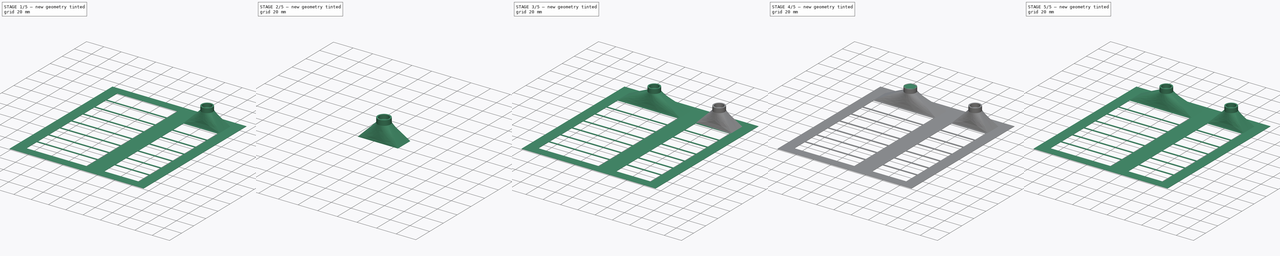
[diagram: build sequence overview — one tinted view per stage of 5, left to right]
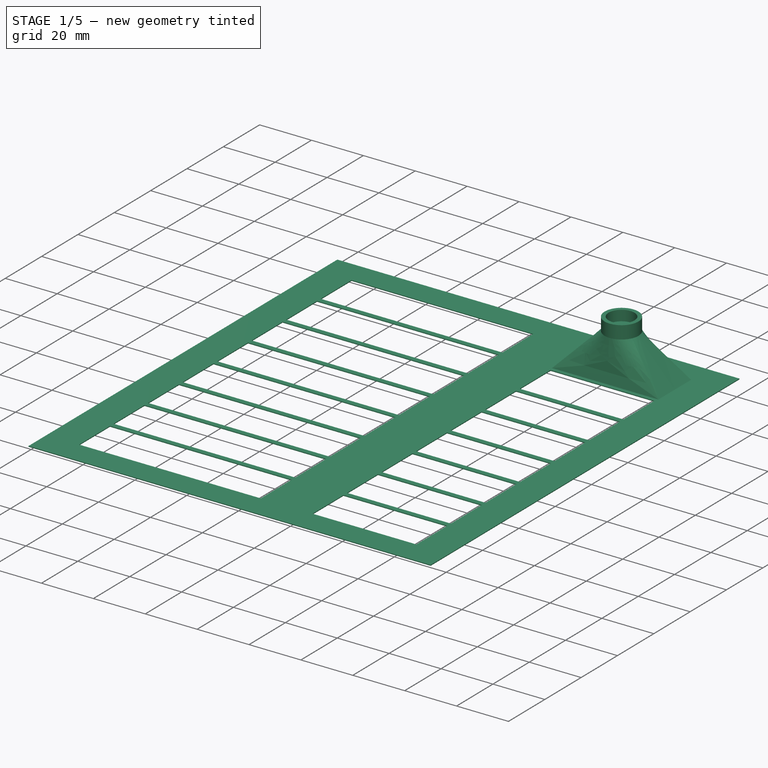
[diagram: stage 1 of 5 — iso view after this stage's code; geometry added in this stage tinted green]
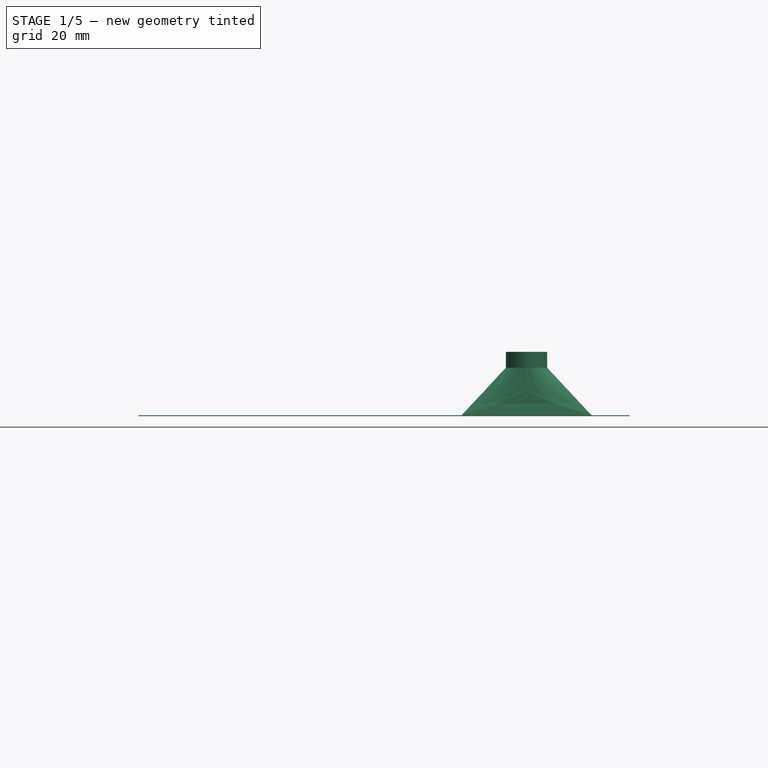
[diagram: stage 1 of 5 — front view after this stage's code; geometry added in this stage tinted green]
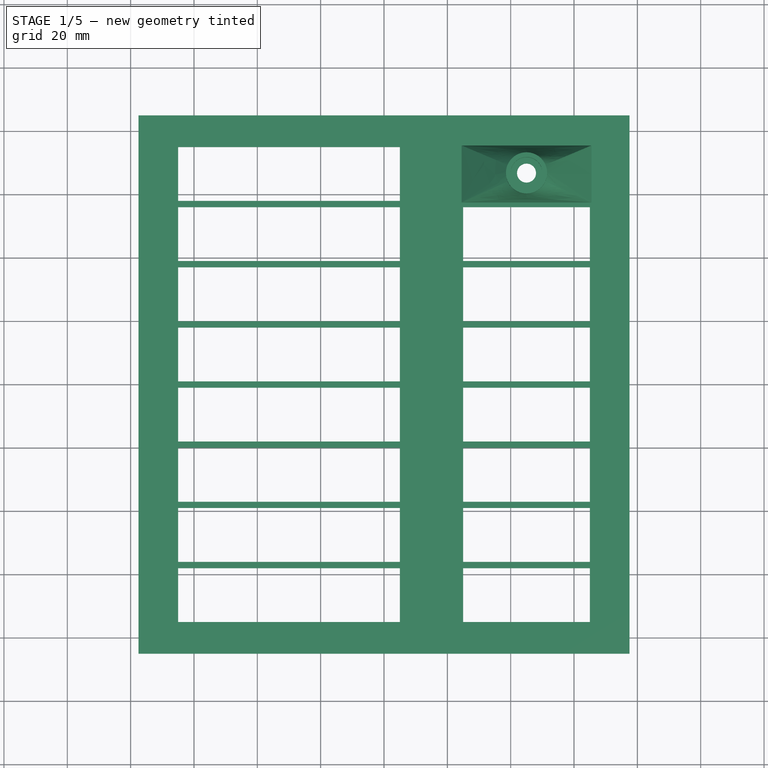
[diagram: stage 1 of 5 — top view after this stage's code; geometry added in this stage tinted green]
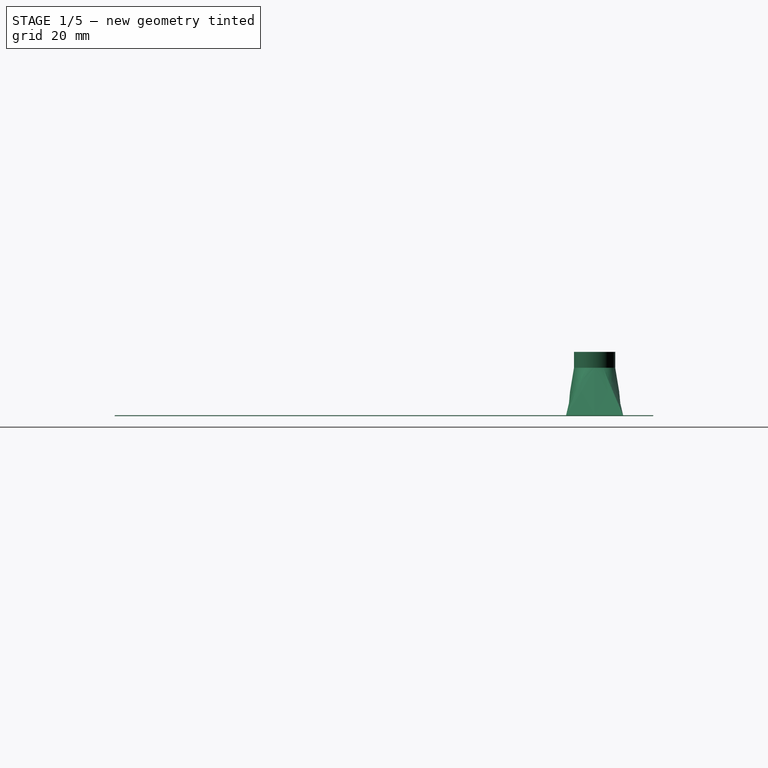
[diagram: stage 1 of 5 — right view after this stage's code; geometry added in this stage tinted green]
FCSTD DOCUMENT  (FreeCAD 0.20R26720 (Git))
Label: prize_lamp_holder
License: All rights reserved
LicenseURL: http://en.wikipedia.org/wiki/All_rights_reserved
objects: Sketcher::SketchObject×80, PartDesign::Pad×32, PartDesign::Body×17, PartDesign::ShapeBinder×16, PartDesign::AdditiveLoft×16, PartDesign::Pocket×16, PartDesign::Hole×16
note: 273 computed .brp shape members not serialized (recipe doc carries the construction recipe); baked Part::Feature solids carry a one-line shape summary decoded from their .brp

FEATURE [PartDesign::Body] Body012  label="Reflector012"
  Group = -> [ShapeBinder011,Sketch059,Sketch058,AdditiveLoft011,Sketch057,Pad023,Sketch056,Pocket011,Hole011]
  Origin = -> Origin012
  Placement = pos=(0,-57,0) rot=(0,0,1;0rad)
  Tip = -> Hole011
FEATURE [Sketcher::SketchObject] Sketch064
  FullyConstrained = true
  MapMode = 5
  Support = -> [XY_Plane024]
  sketch-geometry (72):
    g0: LineSegment StartX=-77.5 StartY=85 StartZ=0 EndX=77.5 EndY=85 EndZ=0
    g1: LineSegment StartX=77.5 StartY=85 StartZ=0 EndX=77.5 EndY=-85 EndZ=0
    g2: LineSegment StartX=77.5 StartY=-85 StartZ=0 EndX=-77.5 EndY=-85 EndZ=0
    g3: LineSegment StartX=-77.5 StartY=-85 StartZ=0 EndX=-77.5 EndY=85 EndZ=0
    g4: LineSegment StartX=-65 StartY=75 StartZ=0 EndX=65 EndY=75 EndZ=0
    g5: LineSegment StartX=65 StartY=75 StartZ=0 EndX=65 EndY=-75 EndZ=0
    g6: LineSegment StartX=65 StartY=-75 StartZ=0 EndX=-65 EndY=-75 EndZ=0
    g7: LineSegment StartX=-65 StartY=-75 StartZ=0 EndX=-65 EndY=75 EndZ=0
    g8: LineSegment StartX=-65 StartY=75 StartZ=0 EndX=5 EndY=75 EndZ=0
    g9: LineSegment StartX=5 StartY=75 StartZ=0 EndX=5 EndY=58 EndZ=0
    g10: LineSegment StartX=5 StartY=58 StartZ=0 EndX=-65 EndY=58 EndZ=0
    g11: LineSegment StartX=-65 StartY=58 StartZ=0 EndX=-65 EndY=75 EndZ=0
    g12: LineSegment StartX=25 StartY=75 StartZ=0 EndX=65 EndY=75 EndZ=0
    g13: LineSegment StartX=65 StartY=75 StartZ=0 EndX=65 EndY=58 EndZ=0
    g14: LineSegment StartX=65 StartY=58 StartZ=0 EndX=25 EndY=58 EndZ=0
    g15: LineSegment StartX=25 StartY=58 StartZ=0 EndX=25 EndY=75 EndZ=0
    g16: LineSegment StartX=-65 StartY=56 StartZ=0 EndX=5 EndY=56 EndZ=0
    g17: LineSegment StartX=5 StartY=56 StartZ=0 EndX=5 EndY=39 EndZ=0
    g18: LineSegment StartX=5 StartY=39 StartZ=0 EndX=-65 EndY=39 EndZ=0
    g19: LineSegment StartX=-65 StartY=39 StartZ=0 EndX=-65 EndY=56 EndZ=0
    g20: LineSegment StartX=25 StartY=56 StartZ=0 EndX=65 EndY=56 EndZ=0
    g21: LineSegment StartX=65 StartY=56 StartZ=0 EndX=65 EndY=39 EndZ=0
    g22: LineSegment StartX=65 StartY=39 StartZ=0 EndX=25 EndY=39 EndZ=0
    g23: LineSegment StartX=25 StartY=39 StartZ=0 EndX=25 EndY=56 EndZ=0
    g24: LineSegment StartX=-65 StartY=37 StartZ=0 EndX=5 EndY=37 EndZ=0
    g25: LineSegment StartX=5 StartY=37 StartZ=0 EndX=5 EndY=20 EndZ=0
    g26: LineSegment StartX=5 StartY=20 StartZ=0 EndX=-65 EndY=20 EndZ=0
    g27: LineSegment StartX=-65 StartY=20 StartZ=0 EndX=-65 EndY=37 EndZ=0
    g28: LineSegment StartX=25 StartY=37 StartZ=0 EndX=65 EndY=37 EndZ=0
    g29: LineSegment StartX=65 StartY=37 StartZ=0 EndX=65 EndY=20 EndZ=0
    g30: LineSegment StartX=65 StartY=20 StartZ=0 EndX=25 EndY=20 EndZ=0
    g31: LineSegment StartX=25 StartY=20 StartZ=0 EndX=25 EndY=37 EndZ=0
    g32: LineSegment StartX=-65 StartY=18 StartZ=0 EndX=5 EndY=18 EndZ=0
    g33: LineSegment StartX=5 StartY=18 StartZ=0 EndX=5 EndY=1 EndZ=0
    g34: LineSegment StartX=5 StartY=1 StartZ=0 EndX=-65 EndY=1 EndZ=0
    g35: LineSegment StartX=-65 StartY=1 StartZ=0 EndX=-65 EndY=18 EndZ=0
    g36: LineSegment StartX=25 StartY=18 StartZ=0 EndX=65 EndY=18 EndZ=0
    g37: LineSegment StartX=65 StartY=18 StartZ=0 EndX=65 EndY=1 EndZ=0
    g38: LineSegment StartX=65 StartY=1 StartZ=0 EndX=25 EndY=1 EndZ=0
    g39: LineSegment StartX=25 StartY=1 StartZ=0 EndX=25 EndY=18 EndZ=0
    g40: LineSegment StartX=-65 StartY=-1 StartZ=0 EndX=5 EndY=-1 EndZ=0
    g41: LineSegment StartX=5 StartY=-1 StartZ=0 EndX=5 EndY=-18 EndZ=0
    g42: LineSegment StartX=5 StartY=-18 StartZ=0 EndX=-65 EndY=-18 EndZ=0
    g43: LineSegment StartX=-65 StartY=-18 StartZ=0 EndX=-65 EndY=-1 EndZ=0
    g44: LineSegment StartX=25 StartY=-1 StartZ=0 EndX=65 EndY=-1 EndZ=0
    g45: LineSegment StartX=65 StartY=-1 StartZ=0 EndX=65 EndY=-18 EndZ=0
    g46: LineSegment StartX=65 StartY=-18 StartZ=0 EndX=25 EndY=-18 EndZ=0
    g47: LineSegment StartX=25 StartY=-18 StartZ=0 EndX=25 EndY=-1 EndZ=0
    g48: LineSegment StartX=-65 StartY=-20 StartZ=0 EndX=5 EndY=-20 EndZ=0
    g49: LineSegment StartX=5 StartY=-20 StartZ=0 EndX=5 EndY=-37 EndZ=0
    g50: LineSegment StartX=5 StartY=-37 StartZ=0 EndX=-65 EndY=-37 EndZ=0
    g51: LineSegment StartX=-65 StartY=-37 StartZ=0 EndX=-65 EndY=-20 EndZ=0
    g52: LineSegment StartX=25 StartY=-20 StartZ=0 EndX=65 EndY=-20 EndZ=0
    g53: LineSegment StartX=65 StartY=-20 StartZ=0 EndX=65 EndY=-37 EndZ=0
    g54: LineSegment StartX=65 StartY=-37 StartZ=0 EndX=25 EndY=-37 EndZ=0
    g55: LineSegment StartX=25 StartY=-37 StartZ=0 EndX=25 EndY=-20 EndZ=0
    g56: LineSegment StartX=-65 StartY=-39 StartZ=0 EndX=5 EndY=-39 EndZ=0
    g57: LineSegment StartX=5 StartY=-39 StartZ=0 EndX=5 EndY=-56 EndZ=0
    g58: LineSegment StartX=5 StartY=-56 StartZ=0 EndX=-65 EndY=-56 EndZ=0
    g59: LineSegment StartX=-65 StartY=-56 StartZ=0 EndX=-65 EndY=-39 EndZ=0
    g60: LineSegment StartX=25 StartY=-39 StartZ=0 EndX=65 EndY=-39 EndZ=0
    g61: LineSegment StartX=65 StartY=-39 StartZ=0 EndX=65 EndY=-56 EndZ=0
    g62: LineSegment StartX=65 StartY=-56 StartZ=0 EndX=25 EndY=-56 EndZ=0
    g63: LineSegment StartX=25 StartY=-56 StartZ=0 EndX=25 EndY=-39 EndZ=0
    g64: LineSegment StartX=-65 StartY=-58 StartZ=0 EndX=5 EndY=-58 EndZ=0
    g65: LineSegment StartX=5 StartY=-58 StartZ=0 EndX=5 EndY=-75 EndZ=0
    g66: LineSegment StartX=5 StartY=-75 StartZ=0 EndX=-65 EndY=-75 EndZ=0
    g67: LineSegment StartX=-65 StartY=-75 StartZ=0 EndX=-65 EndY=-58 EndZ=0
    g68: LineSegment StartX=25 StartY=-58 StartZ=0 EndX=65 EndY=-58 EndZ=0
    g69: LineSegment StartX=65 StartY=-58 StartZ=0 EndX=65 EndY=-75 EndZ=0
    g70: LineSegment StartX=65 StartY=-75 StartZ=0 EndX=25 EndY=-75 EndZ=0
    g71: LineSegment StartX=25 StartY=-75 StartZ=0 EndX=25 EndY=-58 EndZ=0
  constraints (212):
    c: Coincident(g0,g1)
    c: Coincident(g1,g2)
    c: Coincident(g2,g3)
    c: Coincident(g3,g0)
    c: Horizontal(g2)
    c: Vertical(g1)
    c: Symmetric(g0,g0,g-2)
    c: Symmetric(g0,g2,g-1)
    c: Distance(g0) = 155
    c: Distance(g1) = 170
    c: Coincident(g4,g5)
    c: Coincident(g5,g6)
    c: Coincident(g6,g7)
    c: Horizontal(g6)
    c: Vertical(g5)
    c: Symmetric(g4,g4,g-2)
    c: Symmetric(g4,g6,g-1)
    c: Distance(g4) = 130
    c: Distance(g5) = 150
    c: Coincident(g8,g9)
    c: Coincident(g9,g10)
    c: Coincident(g10,g11)
    c: Coincident(g11,g8)
    c: Horizontal(g8)
    c: Horizontal(g10)
    c: Vertical(g9)
    c: Vertical(g11)
    c: Distance(g8) = 70
    c: Distance(g9) = 17
    c: Coincident(g12,g13)
    c: Coincident(g13,g14)
    c: Coincident(g14,g15)
    c: Coincident(g15,g12)
    c: Horizontal(g12)
    c: Horizontal(g14)
    c: Vertical(g13)
    c: Vertical(g15)
    c: Distance(g12) = 40
    c: Distance(g13) = 17
    c: Coincident(g8,g4)
    c: Coincident(g12,g4)
    c: Vertical(g7)
    c: Equal(g7,g5)
    c: Coincident(g16,g17)
    c: Coincident(g17,g18)
    c: Coincident(g18,g19)
    c: Coincident(g19,g16)
    c: Horizontal(g16)
    c: Horizontal(g18)
    c: Vertical(g17)
    c: Vertical(g19)
    c: Equal(g8,g16) = 70
    c: Equal(g9,g17) = 20
    c: Coincident(g20,g21)
    c: Coincident(g21,g22)
    c: Coincident(g22,g23)
    c: Coincident(g23,g20)
    c: Horizontal(g20)
    c: Horizontal(g22)
    c: Vertical(g21)
    c: Vertical(g23)
    c: Equal(g12,g20) = 40
    c: Equal(g13,g21) = 20
    c: DistanceX(g16,g4) = 0
    c: DistanceX(g20,g4) = 0
    c: DistanceY(g16,g9) = 2
    c: DistanceY(g20,g14) = 2
    c: Coincident(g24,g25)
    c: Coincident(g25,g26)
    c: Coincident(g26,g27)
    c: Coincident(g27,g24)
    c: Horizontal(g24)
    c: Horizontal(g26)
    c: Vertical(g25)
    c: Vertical(g27)
    c: Equal(g8,g24) = 70
    c: Equal(g9,g25) = 20
    c: Coincident(g28,g29)
    c: Coincident(g29,g30)
    c: Coincident(g30,g31)
    c: Coincident(g31,g28)
    c: Horizontal(g28)
    c: Horizontal(g30)
    c: Vertical(g29)
    c: Vertical(g31)
    c: Equal(g12,g28) = 40
    c: Equal(g13,g29) = 20
    c: Coincident(g32,g33)
    c: Coincident(g33,g34)
    c: Coincident(g34,g35)
    c: Coincident(g35,g32)
    c: Horizontal(g32)
    c: Horizontal(g34)
    c: Vertical(g33)
    c: Vertical(g35)
    c: Equal(g24,g32) = 70
    c: Equal(g25,g33) = 20
    c: Coincident(g36,g37)
    c: Coincident(g37,g38)
    c: Coincident(g38,g39)
    c: Coincident(g39,g36)
    c: Horizontal(g36)
    c: Horizontal(g38)
    c: Vertical(g37)
    c: Vertical(g39)
    c: Equal(g28,g36) = 40
    c: Equal(g29,g37) = 20
    c: DistanceY(g32,g25) = 2
    c: DistanceY(g36,g30) = 2
    c: DistanceX(g4,g24) = 0
    c: DistanceX(g4,g28) = 0
    c: DistanceX(g4,g36) = 0
    c: DistanceY(g28,g22) = 2
    c: DistanceY(g24,g17) = 2
    c: DistanceX(g32,g4) = 0
    c: Coincident(g41,g42)
    c: Coincident(g42,g43)
    c: Coincident(g43,g40)
    c: Horizontal(g40)
    c: Horizontal(g42)
    c: Vertical(g41)
    c: Vertical(g43)
    c: Equal(g8,g40) = 70
    c: Equal(g9,g41) = 20
    c: Coincident(g44,g45)
    c: Coincident(g45,g46)
    c: Coincident(g46,g47)
    c: Coincident(g47,g44)
    c: Horizontal(g44)
    c: Horizontal(g46)
    c: Vertical(g45)
    c: Vertical(g47)
    c: Equal(g12,g44) = 40
    c: Equal(g13,g45) = 20
    c: Coincident(g48,g49)
    c: Coincident(g49,g50)
    c: Coincident(g50,g51)
    c: Coincident(g51,g48)
    c: Horizontal(g48)
    c: Horizontal(g50)
    c: Vertical(g49)
    c: Vertical(g51)
    c: Equal(g40,g48) = 70
    c: Equal(g41,g49) = 20
    c: Coincident(g52,g53)
    c: Coincident(g53,g54)
    c: Coincident(g54,g55)
    c: Coincident(g55,g52)
    c: Horizontal(g52)
    c: Horizontal(g54)
    c: Vertical(g53)
    c: Vertical(g55)
    c: Equal(g44,g52) = 40
    c: Equal(g45,g53) = 20
    c: DistanceY(g48,g41) = 2
    c: DistanceY(g52,g46) = 2
    c: Coincident(g56,g57)
    c: Coincident(g57,g58)
    c: Coincident(g58,g59)
    c: Coincident(g59,g56)
    c: Horizontal(g56)
    c: Horizontal(g58)
    c: Vertical(g57)
    c: Vertical(g59)
    c: Equal(g40,g56) = 70
    c: Equal(g41,g57) = 20
    c: Coincident(g60,g61)
    c: Coincident(g61,g62)
    c: Coincident(g62,g63)
    c: Coincident(g63,g60)
    c: Horizontal(g60)
    c: Horizontal(g62)
    c: Vertical(g61)
    c: Vertical(g63)
    c: Equal(g44,g60) = 40
    c: Equal(g45,g61) = 20
    c: Coincident(g64,g65)
    c: Coincident(g65,g66)
    c: Coincident(g66,g67)
    c: Coincident(g67,g64)
    c: Horizontal(g64)
    c: Horizontal(g66)
    c: Vertical(g65)
    c: Vertical(g67)
    c: Equal(g56,g64) = 70
    c: Equal(g57,g65) = 20
    c: Coincident(g68,g69)
    c: Coincident(g69,g70)
    c: Coincident(g70,g71)
    c: Coincident(g71,g68)
    c: Horizontal(g68)
    c: Horizontal(g70)
    c: Vertical(g69)
    c: Vertical(g71)
    c: Equal(g60,g68) = 40
    c: Equal(g61,g69) = 20
    c: DistanceY(g64,g57) = 2
    c: DistanceY(g68,g62) = 2
    c: DistanceY(g60,g54) = 2
    c: DistanceY(g56,g49) = 2
    c: DistanceX(g4,g48) = 0
    c: DistanceX(g56,g4) = 0
    c: DistanceX(g64,g4) = 0
    c: DistanceX(g4,g40) = 0
    c: DistanceY(g44,g38) = 2
    c: DistanceX(g4,g52) = 0
    c: DistanceX(g60,g4) = 0
    c: DistanceX(g68,g4) = 0
    c: Equal(g43,g41)
    c: Equal(g40,g42)
    c: DistanceY(g40,g34) = 2
    c: DistanceX(g44,g4) = 0
FEATURE [PartDesign::Pad] Pad025
  Direction = (0,0,1)
  Length = 0.3
  Length2 = 100
  Profile = -> Sketch064
  ReferenceAxis = -> Sketch064 [N_Axis]
  Type = 0
FEATURE [PartDesign::Body] Body013  label="Reflector013"
  Group = -> [ShapeBinder012,Sketch063,Sketch062,AdditiveLoft012,Sketch061,Pad024,Sketch060,Pocket012,Hole012]
  Origin = -> Origin013
  Placement = pos=(0,-76,0) rot=(0,0,1;0rad)
  Tip = -> Hole012
FEATURE [Sketcher::SketchObject] Sketch065
  FullyConstrained = true
  MapMode = 5
  Support = -> [XY_Plane026]
  sketch-geometry (72):
    g0: LineSegment StartX=-77.5 StartY=85 StartZ=0 EndX=77.5 EndY=85 EndZ=0
    g1: LineSegment StartX=77.5 StartY=85 StartZ=0 EndX=77.5 EndY=-85 EndZ=0
    g2: LineSegment StartX=77.5 StartY=-85 StartZ=0 EndX=-77.5 EndY=-85 EndZ=0
    g3: LineSegment StartX=-77.5 StartY=-85 StartZ=0 EndX=-77.5 EndY=85 EndZ=0
    g4: LineSegment StartX=-65 StartY=75 StartZ=0 EndX=65 EndY=75 EndZ=0
    g5: LineSegment StartX=65 StartY=75 StartZ=0 EndX=65 EndY=-75 EndZ=0
    g6: LineSegment StartX=65 StartY=-75 StartZ=0 EndX=-65 EndY=-75 EndZ=0
    g7: LineSegment StartX=-65 StartY=-75 StartZ=0 EndX=-65 EndY=75 EndZ=0
    g8: LineSegment StartX=-65 StartY=75 StartZ=0 EndX=5 EndY=75 EndZ=0
    g9: LineSegment StartX=5 StartY=75 StartZ=0 EndX=5 EndY=58 EndZ=0
    g10: LineSegment StartX=5 StartY=58 StartZ=0 EndX=-65 EndY=58 EndZ=0
    g11: LineSegment StartX=-65 StartY=58 StartZ=0 EndX=-65 EndY=75 EndZ=0
    g12: LineSegment StartX=25 StartY=75 StartZ=0 EndX=65 EndY=75 EndZ=0
    g13: LineSegment StartX=65 StartY=75 StartZ=0 EndX=65 EndY=58 EndZ=0
    g14: LineSegment StartX=65 StartY=58 StartZ=0 EndX=25 EndY=58 EndZ=0
    g15: LineSegment StartX=25 StartY=58 StartZ=0 EndX=25 EndY=75 EndZ=0
    g16: LineSegment StartX=-65 StartY=56 StartZ=0 EndX=5 EndY=56 EndZ=0
    g17: LineSegment StartX=5 StartY=56 StartZ=0 EndX=5 EndY=39 EndZ=0
    g18: LineSegment StartX=5 StartY=39 StartZ=0 EndX=-65 EndY=39 EndZ=0
    g19: LineSegment StartX=-65 StartY=39 StartZ=0 EndX=-65 EndY=56 EndZ=0
    g20: LineSegment StartX=25 StartY=56 StartZ=0 EndX=65 EndY=56 EndZ=0
    g21: LineSegment StartX=65 StartY=56 StartZ=0 EndX=65 EndY=39 EndZ=0
    g22: LineSegment StartX=65 StartY=39 StartZ=0 EndX=25 EndY=39 EndZ=0
    g23: LineSegment StartX=25 StartY=39 StartZ=0 EndX=25 EndY=56 EndZ=0
    g24: LineSegment StartX=-65 StartY=37 StartZ=0 EndX=5 EndY=37 EndZ=0
    g25: LineSegment StartX=5 StartY=37 StartZ=0 EndX=5 EndY=20 EndZ=0
    g26: LineSegment StartX=5 StartY=20 StartZ=0 EndX=-65 EndY=20 EndZ=0
    g27: LineSegment StartX=-65 StartY=20 StartZ=0 EndX=-65 EndY=37 EndZ=0
    g28: LineSegment StartX=25 StartY=37 StartZ=0 EndX=65 EndY=37 EndZ=0
    g29: LineSegment StartX=65 StartY=37 StartZ=0 EndX=65 EndY=20 EndZ=0
    g30: LineSegment StartX=65 StartY=20 StartZ=0 EndX=25 EndY=20 EndZ=0
    g31: LineSegment StartX=25 StartY=20 StartZ=0 EndX=25 EndY=37 EndZ=0
    g32: LineSegment StartX=-65 StartY=18 StartZ=0 EndX=5 EndY=18 EndZ=0
    g33: LineSegment StartX=5 StartY=18 StartZ=0 EndX=5 EndY=1 EndZ=0
    g34: LineSegment StartX=5 StartY=1 StartZ=0 EndX=-65 EndY=1 EndZ=0
    g35: LineSegment StartX=-65 StartY=1 StartZ=0 EndX=-65 EndY=18 EndZ=0
    g36: LineSegment StartX=25 StartY=18 StartZ=0 EndX=65 EndY=18 EndZ=0
    g37: LineSegment StartX=65 StartY=18 StartZ=0 EndX=65 EndY=1 EndZ=0
    g38: LineSegment StartX=65 StartY=1 StartZ=0 EndX=25 EndY=1 EndZ=0
    g39: LineSegment StartX=25 StartY=1 StartZ=0 EndX=25 EndY=18 EndZ=0
    g40: LineSegment StartX=-65 StartY=-1 StartZ=0 EndX=5 EndY=-1 EndZ=0
    g41: LineSegment StartX=5 StartY=-1 StartZ=0 EndX=5 EndY=-18 EndZ=0
    g42: LineSegment StartX=5 StartY=-18 StartZ=0 EndX=-65 EndY=-18 EndZ=0
    g43: LineSegment StartX=-65 StartY=-18 StartZ=0 EndX=-65 EndY=-1 EndZ=0
    g44: LineSegment StartX=25 StartY=-1 StartZ=0 EndX=65 EndY=-1 EndZ=0
    g45: LineSegment StartX=65 StartY=-1 StartZ=0 EndX=65 EndY=-18 EndZ=0
    g46: LineSegment StartX=65 StartY=-18 StartZ=0 EndX=25 EndY=-18 EndZ=0
    g47: LineSegment StartX=25 StartY=-18 StartZ=0 EndX=25 EndY=-1 EndZ=0
    g48: LineSegment StartX=-65 StartY=-20 StartZ=0 EndX=5 EndY=-20 EndZ=0
    g49: LineSegment StartX=5 StartY=-20 StartZ=0 EndX=5 EndY=-37 EndZ=0
    g50: LineSegment StartX=5 StartY=-37 StartZ=0 EndX=-65 EndY=-37 EndZ=0
    g51: LineSegment StartX=-65 StartY=-37 StartZ=0 EndX=-65 EndY=-20 EndZ=0
    g52: LineSegment StartX=25 StartY=-20 StartZ=0 EndX=65 EndY=-20 EndZ=0
    g53: LineSegment StartX=65 StartY=-20 StartZ=0 EndX=65 EndY=-37 EndZ=0
    g54: LineSegment StartX=65 StartY=-37 StartZ=0 EndX=25 EndY=-37 EndZ=0
    g55: LineSegment StartX=25 StartY=-37 StartZ=0 EndX=25 EndY=-20 EndZ=0
    g56: LineSegment StartX=-65 StartY=-39 StartZ=0 EndX=5 EndY=-39 EndZ=0
    g57: LineSegment StartX=5 StartY=-39 StartZ=0 EndX=5 EndY=-56 EndZ=0
    g58: LineSegment StartX=5 StartY=-56 StartZ=0 EndX=-65 EndY=-56 EndZ=0
    g59: LineSegment StartX=-65 StartY=-56 StartZ=0 EndX=-65 EndY=-39 EndZ=0
    g60: LineSegment StartX=25 StartY=-39 StartZ=0 EndX=65 EndY=-39 EndZ=0
    g61: LineSegment StartX=65 StartY=-39 StartZ=0 EndX=65 EndY=-56 EndZ=0
    g62: LineSegment StartX=65 StartY=-56 StartZ=0 EndX=25 EndY=-56 EndZ=0
    g63: LineSegment StartX=25 StartY=-56 StartZ=0 EndX=25 EndY=-39 EndZ=0
    g64: LineSegment StartX=-65 StartY=-58 StartZ=0 EndX=5 EndY=-58 EndZ=0
    g65: LineSegment StartX=5 StartY=-58 StartZ=0 EndX=5 EndY=-75 EndZ=0
    g66: LineSegment StartX=5 StartY=-75 StartZ=0 EndX=-65 EndY=-75 EndZ=0
    g67: LineSegment StartX=-65 StartY=-75 StartZ=0 EndX=-65 EndY=-58 EndZ=0
    g68: LineSegment StartX=25 StartY=-58 StartZ=0 EndX=65 EndY=-58 EndZ=0
    g69: LineSegment StartX=65 StartY=-58 StartZ=0 EndX=65 EndY=-75 EndZ=0
    g70: LineSegment StartX=65 StartY=-75 StartZ=0 EndX=25 EndY=-75 EndZ=0
    g71: LineSegment StartX=25 StartY=-75 StartZ=0 EndX=25 EndY=-58 EndZ=0
  constraints (212):
    c: Coincident(g0,g1)
    c: Coincident(g1,g2)
    c: Coincident(g2,g3)
    c: Coincident(g3,g0)
    c: Horizontal(g2)
    c: Vertical(g1)
    c: Symmetric(g0,g0,g-2)
    c: Symmetric(g0,g2,g-1)
    c: Distance(g0) = 155
    c: Distance(g1) = 170
    c: Coincident(g4,g5)
    c: Coincident(g5,g6)
    c: Coincident(g6,g7)
    c: Horizontal(g6)
    c: Vertical(g5)
    c: Symmetric(g4,g4,g-2)
    c: Symmetric(g4,g6,g-1)
    c: Distance(g4) = 130
    c: Distance(g5) = 150
    c: Coincident(g8,g9)
    c: Coincident(g9,g10)
    c: Coincident(g10,g11)
    c: Coincident(g11,g8)
    c: Horizontal(g8)
    c: Horizontal(g10)
    c: Vertical(g9)
    c: Vertical(g11)
    c: Distance(g8) = 70
    c: Distance(g9) = 17
    c: Coincident(g12,g13)
    c: Coincident(g13,g14)
    c: Coincident(g14,g15)
    c: Coincident(g15,g12)
    c: Horizontal(g12)
    c: Horizontal(g14)
    c: Vertical(g13)
    c: Vertical(g15)
    c: Distance(g12) = 40
    c: Distance(g13) = 17
    c: Coincident(g8,g4)
    c: Coincident(g12,g4)
    c: Vertical(g7)
    c: Equal(g7,g5)
    c: Coincident(g16,g17)
    c: Coincident(g17,g18)
    c: Coincident(g18,g19)
    c: Coincident(g19,g16)
    c: Horizontal(g16)
    c: Horizontal(g18)
    c: Vertical(g17)
    c: Vertical(g19)
    c: Equal(g8,g16) = 70
    c: Equal(g9,g17) = 20
    c: Coincident(g20,g21)
    c: Coincident(g21,g22)
    c: Coincident(g22,g23)
    c: Coincident(g23,g20)
    c: Horizontal(g20)
    c: Horizontal(g22)
    c: Vertical(g21)
    c: Vertical(g23)
    c: Equal(g12,g20) = 40
    c: Equal(g13,g21) = 20
    c: DistanceX(g16,g4) = 0
    c: DistanceX(g20,g4) = 0
    c: DistanceY(g16,g9) = 2
    c: DistanceY(g20,g14) = 2
    c: Coincident(g24,g25)
    c: Coincident(g25,g26)
    c: Coincident(g26,g27)
    c: Coincident(g27,g24)
    c: Horizontal(g24)
    c: Horizontal(g26)
    c: Vertical(g25)
    c: Vertical(g27)
    c: Equal(g8,g24) = 70
    c: Equal(g9,g25) = 20
    c: Coincident(g28,g29)
    c: Coincident(g29,g30)
    c: Coincident(g30,g31)
    c: Coincident(g31,g28)
    c: Horizontal(g28)
    c: Horizontal(g30)
    c: Vertical(g29)
    c: Vertical(g31)
    c: Equal(g12,g28) = 40
    c: Equal(g13,g29) = 20
    c: Coincident(g32,g33)
    c: Coincident(g33,g34)
    c: Coincident(g34,g35)
    c: Coincident(g35,g32)
    c: Horizontal(g32)
    c: Horizontal(g34)
    c: Vertical(g33)
    c: Vertical(g35)
    c: Equal(g24,g32) = 70
    c: Equal(g25,g33) = 20
    c: Coincident(g36,g37)
    c: Coincident(g37,g38)
    c: Coincident(g38,g39)
    c: Coincident(g39,g36)
    c: Horizontal(g36)
    c: Horizontal(g38)
    c: Vertical(g37)
    c: Vertical(g39)
    c: Equal(g28,g36) = 40
    c: Equal(g29,g37) = 20
    c: DistanceY(g32,g25) = 2
    c: DistanceY(g36,g30) = 2
    c: DistanceX(g4,g24) = 0
    c: DistanceX(g4,g28) = 0
    c: DistanceX(g4,g36) = 0
    c: DistanceY(g28,g22) = 2
    c: DistanceY(g24,g17) = 2
    c: DistanceX(g32,g4) = 0
    c: Coincident(g41,g42)
    c: Coincident(g42,g43)
    c: Coincident(g43,g40)
    c: Horizontal(g40)
    c: Horizontal(g42)
    c: Vertical(g41)
    c: Vertical(g43)
    c: Equal(g8,g40) = 70
    c: Equal(g9,g41) = 20
    c: Coincident(g44,g45)
    c: Coincident(g45,g46)
    c: Coincident(g46,g47)
    c: Coincident(g47,g44)
    c: Horizontal(g44)
    c: Horizontal(g46)
    c: Vertical(g45)
    c: Vertical(g47)
    c: Equal(g12,g44) = 40
    c: Equal(g13,g45) = 20
    c: Coincident(g48,g49)
    c: Coincident(g49,g50)
    c: Coincident(g50,g51)
    c: Coincident(g51,g48)
    c: Horizontal(g48)
    c: Horizontal(g50)
    c: Vertical(g49)
    c: Vertical(g51)
    c: Equal(g40,g48) = 70
    c: Equal(g41,g49) = 20
    c: Coincident(g52,g53)
    c: Coincident(g53,g54)
    c: Coincident(g54,g55)
    c: Coincident(g55,g52)
    c: Horizontal(g52)
    c: Horizontal(g54)
    c: Vertical(g53)
    c: Vertical(g55)
    c: Equal(g44,g52) = 40
    c: Equal(g45,g53) = 20
    c: DistanceY(g48,g41) = 2
    c: DistanceY(g52,g46) = 2
    c: Coincident(g56,g57)
    c: Coincident(g57,g58)
    c: Coincident(g58,g59)
    c: Coincident(g59,g56)
    c: Horizontal(g56)
    c: Horizontal(g58)
    c: Vertical(g57)
    c: Vertical(g59)
    c: Equal(g40,g56) = 70
    c: Equal(g41,g57) = 20
    c: Coincident(g60,g61)
    c: Coincident(g61,g62)
    c: Coincident(g62,g63)
    c: Coincident(g63,g60)
    c: Horizontal(g60)
    c: Horizontal(g62)
    c: Vertical(g61)
    c: Vertical(g63)
    c: Equal(g44,g60) = 40
    c: Equal(g45,g61) = 20
    c: Coincident(g64,g65)
    c: Coincident(g65,g66)
    c: Coincident(g66,g67)
    c: Coincident(g67,g64)
    c: Horizontal(g64)
    c: Horizontal(g66)
    c: Vertical(g65)
    c: Vertical(g67)
    c: Equal(g56,g64) = 70
    c: Equal(g57,g65) = 20
    c: Coincident(g68,g69)
    c: Coincident(g69,g70)
    c: Coincident(g70,g71)
    c: Coincident(g71,g68)
    c: Horizontal(g68)
    c: Horizontal(g70)
    c: Vertical(g69)
    c: Vertical(g71)
    c: Equal(g60,g68) = 40
    c: Equal(g61,g69) = 20
    c: DistanceY(g64,g57) = 2
    c: DistanceY(g68,g62) = 2
    c: DistanceY(g60,g54) = 2
    c: DistanceY(g56,g49) = 2
    c: DistanceX(g4,g48) = 0
    c: DistanceX(g56,g4) = 0
    c: DistanceX(g64,g4) = 0
    c: DistanceX(g4,g40) = 0
    c: DistanceY(g44,g38) = 2
    c: DistanceX(g4,g52) = 0
    c: DistanceX(g60,g4) = 0
    c: DistanceX(g68,g4) = 0
    c: Equal(g43,g41)
    c: Equal(g40,g42)
    c: DistanceY(g40,g34) = 2
    c: DistanceX(g44,g4) = 0
FEATURE [PartDesign::Pad] Pad027
  Direction = (0,0,1)
  Length = 0.3
  Length2 = 100
  Profile = -> Sketch065
  ReferenceAxis = -> Sketch065 [N_Axis]
  Type = 0
FEATURE [PartDesign::ShapeBinder] ShapeBinder013
  Placement = pos=(0,0,0.3) rot=(0,0,1;0rad)
  Support = -> [Pad027]
  TraceSupport = false
FEATURE [Sketcher::SketchObject] Sketch067
  ExternalGeometry = -> [ShapeBinder013]
  FullyConstrained = true
  MapMode = 5
  Placement = pos=(0,0,0.3) rot=(0,0,1;0rad)
  Support = -> [ShapeBinder013]
  sketch-geometry (8):
    g0: LineSegment StartX=24.5 StartY=75.5 StartZ=0 EndX=65.5 EndY=75.5 EndZ=0
    g1: LineSegment StartX=65.5 StartY=75.5 StartZ=0 EndX=65.5 EndY=57.5 EndZ=0
    g2: LineSegment StartX=65.5 StartY=57.5 StartZ=0 EndX=24.5 EndY=57.5 EndZ=0
    g3: LineSegment StartX=24.5 StartY=57.5 StartZ=0 EndX=24.5 EndY=75.5 EndZ=0
    g4: LineSegment StartX=25 StartY=75 StartZ=0 EndX=65 EndY=75 EndZ=0
    g5: LineSegment StartX=65 StartY=75 StartZ=0 EndX=65 EndY=58 EndZ=0
    g6: LineSegment StartX=65 StartY=58 StartZ=0 EndX=25 EndY=58 EndZ=0
    g7: LineSegment StartX=25 StartY=58 StartZ=0 EndX=25 EndY=75 EndZ=0
  constraints (22):
    c: Coincident(g0,g1)
    c: Coincident(g1,g2)
    c: Coincident(g2,g3)
    c: Coincident(g3,g0)
    c: Horizontal(g0)
    c: Horizontal(g2)
    c: Vertical(g1)
    c: Vertical(g3)
    c: DistanceX(g0,g-5) = 0.5
    c: DistanceY(g-5,g0) = 0.5
    c: DistanceX(g-4,g0) = 0.5
    c: DistanceY(g1,g-6) = 0.5
    c: Coincident(g4,g5)
    c: Coincident(g5,g6)
    c: Coincident(g6,g7)
    c: Coincident(g7,g4)
    c: Horizontal(g4)
    c: Horizontal(g6)
    c: Vertical(g5)
    c: Vertical(g7)
    c: Coincident(g4,g-5)
    c: Coincident(g5,g-6)
FEATURE [Sketcher::SketchObject] Sketch066
  AttachmentOffset = pos=(0,0,15) rot=(0,0,1;0rad)
  ExternalGeometry = -> [Sketch067,ShapeBinder013]
  FullyConstrained = true
  MapMode = 5
  Placement = pos=(0,0,15.3) rot=(0,0,1;0rad)
  Support = -> [ShapeBinder013]
  sketch-geometry (4):
    g0: LineSegment StartX=45 StartY=75 StartZ=0 EndX=45 EndY=58 EndZ=0
    g1: LineSegment StartX=25 StartY=66.5 StartZ=0 EndX=65 EndY=66.5 EndZ=0
    g2: Circle CenterX=45 CenterY=66.5 CenterZ=0 NormalX=0 NormalY=0 NormalZ=1 AngleXU=0 Radius=6.5
    g3: Circle CenterX=45 CenterY=66.5 CenterZ=0 NormalX=0 NormalY=0 NormalZ=1 AngleXU=0 Radius=6
  constraints (11):
    c: PointOnObject(g0,g-3)
    c: PointOnObject(g0,g-6)
    c: PointOnObject(g1,g-5)
    c: PointOnObject(g1,g-4)
    c: Symmetric(g-5,g-6,g1)
    c: Symmetric(g-5,g-4,g0)
    c: PointOnObject(g2,g0)
    c: Diameter(g2) = 13
    c: PointOnObject(g2,g1)
    c: Coincident(g3,g2)
    c: Diameter(g3) = 12
FEATURE [PartDesign::AdditiveLoft] AdditiveLoft013
  Closed = false
  Placement = pos=(0,0,0.3) rot=(0,0,1;0rad)
  Profile = -> Sketch066
  Ruled = false
  Sections = -> [Sketch067]
FEATURE [Sketcher::SketchObject] Sketch068
  ExternalGeometry = -> [AdditiveLoft013]
  FullyConstrained = true
  MapMode = 5
  Placement = pos=(0,0,15.3) rot=(0,0,1;0rad)
  Support = -> [AdditiveLoft013]
  sketch-geometry (1):
    g0: Circle CenterX=45 CenterY=66.5 CenterZ=0 NormalX=0 NormalY=0 NormalZ=1 AngleXU=0 Radius=6.5
  constraints (2):
    c: Coincident(g0,g-3)
    c: Diameter(g0) = 13
FEATURE [PartDesign::Pad] Pad026
  BaseFeature = -> AdditiveLoft013
  Direction = (0,0,1)
  Length = 5
  Length2 = 100
  Placement = pos=(0,0,0.3) rot=(0,0,1;0rad)
  Profile = -> Sketch068
  ReferenceAxis = -> Sketch068 [N_Axis]
  Type = 0
FEATURE [Sketcher::SketchObject] Sketch069
  ExternalGeometry = -> [Pad026]
  FullyConstrained = true
  MapMode = 5
  Placement = pos=(0,0,20.3) rot=(0,0,1;0rad)
  Support = -> [Pad026]
  sketch-geometry (1):
    g0: Circle CenterX=45 CenterY=66.5 CenterZ=0 NormalX=0 NormalY=0 NormalZ=1 AngleXU=0 Radius=5
  constraints (2):
    c: Coincident(g0,g-3)
    c: Diameter(g0) = 10
FEATURE [PartDesign::Pocket] Pocket013
  BaseFeature = -> Pad026
  Direction = (0,0,-1)
  Length = 4
  Length2 = 100
  Placement = pos=(0,0,0.3) rot=(0,0,1;0rad)
  Profile = -> Sketch069
  ReferenceAxis = -> Sketch069 [N_Axis]
  Type = 0
FEATURE [PartDesign::Hole] Hole013
  BaseFeature = -> Pocket013
  CustomThreadClearance = 0
  Depth = 25
  DepthType = 0
  Diameter = 6
  DrillForDepth = false
  DrillPoint = 1
  DrillPointAngle = 118
  HoleCutCountersinkAngle = 90
  HoleCutCustomValues = false
  HoleCutDepth = 0
  HoleCutDiameter = 6.1
  HoleCutType = 0
  ModelThread = false
  Placement = pos=(0,0,0.3) rot=(0,0,1;0rad)
  Profile = -> Pocket013 [Face16]
  Tapered = false
  TaperedAngle = 90
  ThreadClass = 0
  ThreadDepth = 25
  ThreadDepthType = 0
  ThreadDirection = 0
  ThreadFit = 0
  ThreadSize = 0
  ThreadType = 0
  Threaded = false
  UseCustomThreadClearance = false
FEATURE [PartDesign::Body] Body014  label="Reflector014"
  Group = -> [ShapeBinder013,Sketch067,Sketch066,AdditiveLoft013,Sketch068,Pad026,Sketch069,Pocket013,Hole013]
  Origin = -> Origin014
  Placement = pos=(0,-95,0) rot=(0,0,1;0rad)
  Tip = -> Hole013
FEATURE [Sketcher::SketchObject] Sketch070
  FullyConstrained = true
  MapMode = 5
  Support = -> [XY_Plane028]
  sketch-geometry (72):
    g0: LineSegment StartX=-77.5 StartY=85 StartZ=0 EndX=77.5 EndY=85 EndZ=0
    g1: LineSegment StartX=77.5 StartY=85 StartZ=0 EndX=77.5 EndY=-85 EndZ=0
    g2: LineSegment StartX=77.5 StartY=-85 StartZ=0 EndX=-77.5 EndY=-85 EndZ=0
    g3: LineSegment StartX=-77.5 StartY=-85 StartZ=0 EndX=-77.5 EndY=85 EndZ=0
    g4: LineSegment StartX=-65 StartY=75 StartZ=0 EndX=65 EndY=75 EndZ=0
    g5: LineSegment StartX=65 StartY=75 StartZ=0 EndX=65 EndY=-75 EndZ=0
    g6: LineSegment StartX=65 StartY=-75 StartZ=0 EndX=-65 EndY=-75 EndZ=0
    g7: LineSegment StartX=-65 StartY=-75 StartZ=0 EndX=-65 EndY=75 EndZ=0
    g8: LineSegment StartX=-65 StartY=75 StartZ=0 EndX=5 EndY=75 EndZ=0
    g9: LineSegment StartX=5 StartY=75 StartZ=0 EndX=5 EndY=58 EndZ=0
    g10: LineSegment StartX=5 StartY=58 StartZ=0 EndX=-65 EndY=58 EndZ=0
    g11: LineSegment StartX=-65 StartY=58 StartZ=0 EndX=-65 EndY=75 EndZ=0
    g12: LineSegment StartX=25 StartY=75 StartZ=0 EndX=65 EndY=75 EndZ=0
    g13: LineSegment StartX=65 StartY=75 StartZ=0 EndX=65 EndY=58 EndZ=0
    g14: LineSegment StartX=65 StartY=58 StartZ=0 EndX=25 EndY=58 EndZ=0
    g15: LineSegment StartX=25 StartY=58 StartZ=0 EndX=25 EndY=75 EndZ=0
    g16: LineSegment StartX=-65 StartY=56 StartZ=0 EndX=5 EndY=56 EndZ=0
    g17: LineSegment StartX=5 StartY=56 StartZ=0 EndX=5 EndY=39 EndZ=0
    g18: LineSegment StartX=5 StartY=39 StartZ=0 EndX=-65 EndY=39 EndZ=0
    g19: LineSegment StartX=-65 StartY=39 StartZ=0 EndX=-65 EndY=56 EndZ=0
    g20: LineSegment StartX=25 StartY=56 StartZ=0 EndX=65 EndY=56 EndZ=0
    g21: LineSegment StartX=65 StartY=56 StartZ=0 EndX=65 EndY=39 EndZ=0
    g22: LineSegment StartX=65 StartY=39 StartZ=0 EndX=25 EndY=39 EndZ=0
    g23: LineSegment StartX=25 StartY=39 StartZ=0 EndX=25 EndY=56 EndZ=0
    g24: LineSegment StartX=-65 StartY=37 StartZ=0 EndX=5 EndY=37 EndZ=0
    g25: LineSegment StartX=5 StartY=37 StartZ=0 EndX=5 EndY=20 EndZ=0
    g26: LineSegment StartX=5 StartY=20 StartZ=0 EndX=-65 EndY=20 EndZ=0
    g27: LineSegment StartX=-65 StartY=20 StartZ=0 EndX=-65 EndY=37 EndZ=0
    g28: LineSegment StartX=25 StartY=37 StartZ=0 EndX=65 EndY=37 EndZ=0
    g29: LineSegment StartX=65 StartY=37 StartZ=0 EndX=65 EndY=20 EndZ=0
    g30: LineSegment StartX=65 StartY=20 StartZ=0 EndX=25 EndY=20 EndZ=0
    g31: LineSegment StartX=25 StartY=20 StartZ=0 EndX=25 EndY=37 EndZ=0
    g32: LineSegment StartX=-65 StartY=18 StartZ=0 EndX=5 EndY=18 EndZ=0
    g33: LineSegment StartX=5 StartY=18 StartZ=0 EndX=5 EndY=1 EndZ=0
    g34: LineSegment StartX=5 StartY=1 StartZ=0 EndX=-65 EndY=1 EndZ=0
    g35: LineSegment StartX=-65 StartY=1 StartZ=0 EndX=-65 EndY=18 EndZ=0
    g36: LineSegment StartX=25 StartY=18 StartZ=0 EndX=65 EndY=18 EndZ=0
    g37: LineSegment StartX=65 StartY=18 StartZ=0 EndX=65 EndY=1 EndZ=0
    g38: LineSegment StartX=65 StartY=1 StartZ=0 EndX=25 EndY=1 EndZ=0
    g39: LineSegment StartX=25 StartY=1 StartZ=0 EndX=25 EndY=18 EndZ=0
    g40: LineSegment StartX=-65 StartY=-1 StartZ=0 EndX=5 EndY=-1 EndZ=0
    g41: LineSegment StartX=5 StartY=-1 StartZ=0 EndX=5 EndY=-18 EndZ=0
    g42: LineSegment StartX=5 StartY=-18 StartZ=0 EndX=-65 EndY=-18 EndZ=0
    g43: LineSegment StartX=-65 StartY=-18 StartZ=0 EndX=-65 EndY=-1 EndZ=0
    g44: LineSegment StartX=25 StartY=-1 StartZ=0 EndX=65 EndY=-1 EndZ=0
    g45: LineSegment StartX=65 StartY=-1 StartZ=0 EndX=65 EndY=-18 EndZ=0
    g46: LineSegment StartX=65 StartY=-18 StartZ=0 EndX=25 EndY=-18 EndZ=0
    g47: LineSegment StartX=25 StartY=-18 StartZ=0 EndX=25 EndY=-1 EndZ=0
    g48: LineSegment StartX=-65 StartY=-20 StartZ=0 EndX=5 EndY=-20 EndZ=0
    g49: LineSegment StartX=5 StartY=-20 StartZ=0 EndX=5 EndY=-37 EndZ=0
    g50: LineSegment StartX=5 StartY=-37 StartZ=0 EndX=-65 EndY=-37 EndZ=0
    g51: LineSegment StartX=-65 StartY=-37 StartZ=0 EndX=-65 EndY=-20 EndZ=0
    g52: LineSegment StartX=25 StartY=-20 StartZ=0 EndX=65 EndY=-20 EndZ=0
    g53: LineSegment StartX=65 StartY=-20 StartZ=0 EndX=65 EndY=-37 EndZ=0
    g54: LineSegment StartX=65 StartY=-37 StartZ=0 EndX=25 EndY=-37 EndZ=0
    g55: LineSegment StartX=25 StartY=-37 StartZ=0 EndX=25 EndY=-20 EndZ=0
    g56: LineSegment StartX=-65 StartY=-39 StartZ=0 EndX=5 EndY=-39 EndZ=0
    g57: LineSegment StartX=5 StartY=-39 StartZ=0 EndX=5 EndY=-56 EndZ=0
    g58: LineSegment StartX=5 StartY=-56 StartZ=0 EndX=-65 EndY=-56 EndZ=0
    g59: LineSegment StartX=-65 StartY=-56 StartZ=0 EndX=-65 EndY=-39 EndZ=0
    g60: LineSegment StartX=25 StartY=-39 StartZ=0 EndX=65 EndY=-39 EndZ=0
    g61: LineSegment StartX=65 StartY=-39 StartZ=0 EndX=65 EndY=-56 EndZ=0
    g62: LineSegment StartX=65 StartY=-56 StartZ=0 EndX=25 EndY=-56 EndZ=0
    g63: LineSegment StartX=25 StartY=-56 StartZ=0 EndX=25 EndY=-39 EndZ=0
    g64: LineSegment StartX=-65 StartY=-58 StartZ=0 EndX=5 EndY=-58 EndZ=0
    g65: LineSegment StartX=5 StartY=-58 StartZ=0 EndX=5 EndY=-75 EndZ=0
    g66: LineSegment StartX=5 StartY=-75 StartZ=0 EndX=-65 EndY=-75 EndZ=0
    g67: LineSegment StartX=-65 StartY=-75 StartZ=0 EndX=-65 EndY=-58 EndZ=0
    g68: LineSegment StartX=25 StartY=-58 StartZ=0 EndX=65 EndY=-58 EndZ=0
    g69: LineSegment StartX=65 StartY=-58 StartZ=0 EndX=65 EndY=-75 EndZ=0
    g70: LineSegment StartX=65 StartY=-75 StartZ=0 EndX=25 EndY=-75 EndZ=0
    g71: LineSegment StartX=25 StartY=-75 StartZ=0 EndX=25 EndY=-58 EndZ=0
  constraints (212):
    c: Coincident(g0,g1)
    c: Coincident(g1,g2)
    c: Coincident(g2,g3)
    c: Coincident(g3,g0)
    c: Horizontal(g2)
    c: Vertical(g1)
    c: Symmetric(g0,g0,g-2)
    c: Symmetric(g0,g2,g-1)
    c: Distance(g0) = 155
    c: Distance(g1) = 170
    c: Coincident(g4,g5)
    c: Coincident(g5,g6)
    c: Coincident(g6,g7)
    c: Horizontal(g6)
    c: Vertical(g5)
    c: Symmetric(g4,g4,g-2)
    c: Symmetric(g4,g6,g-1)
    c: Distance(g4) = 130
    c: Distance(g5) = 150
    c: Coincident(g8,g9)
    c: Coincident(g9,g10)
    c: Coincident(g10,g11)
    c: Coincident(g11,g8)
    c: Horizontal(g8)
    c: Horizontal(g10)
    c: Vertical(g9)
    c: Vertical(g11)
    c: Distance(g8) = 70
    c: Distance(g9) = 17
    c: Coincident(g12,g13)
    c: Coincident(g13,g14)
    c: Coincident(g14,g15)
    c: Coincident(g15,g12)
    c: Horizontal(g12)
    c: Horizontal(g14)
    c: Vertical(g13)
    c: Vertical(g15)
    c: Distance(g12) = 40
    c: Distance(g13) = 17
    c: Coincident(g8,g4)
    c: Coincident(g12,g4)
    c: Vertical(g7)
    c: Equal(g7,g5)
    c: Coincident(g16,g17)
    c: Coincident(g17,g18)
    c: Coincident(g18,g19)
    c: Coincident(g19,g16)
    c: Horizontal(g16)
    c: Horizontal(g18)
    c: Vertical(g17)
    c: Vertical(g19)
    c: Equal(g8,g16) = 70
    c: Equal(g9,g17) = 20
    c: Coincident(g20,g21)
    c: Coincident(g21,g22)
    c: Coincident(g22,g23)
    c: Coincident(g23,g20)
    c: Horizontal(g20)
    c: Horizontal(g22)
    c: Vertical(g21)
    c: Vertical(g23)
    c: Equal(g12,g20) = 40
    c: Equal(g13,g21) = 20
    c: DistanceX(g16,g4) = 0
    c: DistanceX(g20,g4) = 0
    c: DistanceY(g16,g9) = 2
    c: DistanceY(g20,g14) = 2
    c: Coincident(g24,g25)
    c: Coincident(g25,g26)
    c: Coincident(g26,g27)
    c: Coincident(g27,g24)
    c: Horizontal(g24)
    c: Horizontal(g26)
    c: Vertical(g25)
    c: Vertical(g27)
    c: Equal(g8,g24) = 70
    c: Equal(g9,g25) = 20
    c: Coincident(g28,g29)
    c: Coincident(g29,g30)
    c: Coincident(g30,g31)
    c: Coincident(g31,g28)
    c: Horizontal(g28)
    c: Horizontal(g30)
    c: Vertical(g29)
    c: Vertical(g31)
    c: Equal(g12,g28) = 40
    c: Equal(g13,g29) = 20
    c: Coincident(g32,g33)
    c: Coincident(g33,g34)
    c: Coincident(g34,g35)
    c: Coincident(g35,g32)
    c: Horizontal(g32)
    c: Horizontal(g34)
    c: Vertical(g33)
    c: Vertical(g35)
    c: Equal(g24,g32) = 70
    c: Equal(g25,g33) = 20
    c: Coincident(g36,g37)
    c: Coincident(g37,g38)
    c: Coincident(g38,g39)
    c: Coincident(g39,g36)
    c: Horizontal(g36)
    c: Horizontal(g38)
    c: Vertical(g37)
    c: Vertical(g39)
    c: Equal(g28,g36) = 40
    c: Equal(g29,g37) = 20
    c: DistanceY(g32,g25) = 2
    c: DistanceY(g36,g30) = 2
    c: DistanceX(g4,g24) = 0
    c: DistanceX(g4,g28) = 0
    c: DistanceX(g4,g36) = 0
    c: DistanceY(g28,g22) = 2
    c: DistanceY(g24,g17) = 2
    c: DistanceX(g32,g4) = 0
    c: Coincident(g41,g42)
    c: Coincident(g42,g43)
    c: Coincident(g43,g40)
    c: Horizontal(g40)
    c: Horizontal(g42)
    c: Vertical(g41)
    c: Vertical(g43)
    c: Equal(g8,g40) = 70
    c: Equal(g9,g41) = 20
    c: Coincident(g44,g45)
    c: Coincident(g45,g46)
    c: Coincident(g46,g47)
    c: Coincident(g47,g44)
    c: Horizontal(g44)
    c: Horizontal(g46)
    c: Vertical(g45)
    c: Vertical(g47)
    c: Equal(g12,g44) = 40
    c: Equal(g13,g45) = 20
    c: Coincident(g48,g49)
    c: Coincident(g49,g50)
    c: Coincident(g50,g51)
    c: Coincident(g51,g48)
    c: Horizontal(g48)
    c: Horizontal(g50)
    c: Vertical(g49)
    c: Vertical(g51)
    c: Equal(g40,g48) = 70
    c: Equal(g41,g49) = 20
    c: Coincident(g52,g53)
    c: Coincident(g53,g54)
    c: Coincident(g54,g55)
    c: Coincident(g55,g52)
    c: Horizontal(g52)
    c: Horizontal(g54)
    c: Vertical(g53)
    c: Vertical(g55)
    c: Equal(g44,g52) = 40
    c: Equal(g45,g53) = 20
    c: DistanceY(g48,g41) = 2
    c: DistanceY(g52,g46) = 2
    c: Coincident(g56,g57)
    c: Coincident(g57,g58)
    c: Coincident(g58,g59)
    c: Coincident(g59,g56)
    c: Horizontal(g56)
    c: Horizontal(g58)
    c: Vertical(g57)
    c: Vertical(g59)
    c: Equal(g40,g56) = 70
    c: Equal(g41,g57) = 20
    c: Coincident(g60,g61)
    c: Coincident(g61,g62)
    c: Coincident(g62,g63)
    c: Coincident(g63,g60)
    c: Horizontal(g60)
    c: Horizontal(g62)
    c: Vertical(g61)
    c: Vertical(g63)
    c: Equal(g44,g60) = 40
    c: Equal(g45,g61) = 20
    c: Coincident(g64,g65)
    c: Coincident(g65,g66)
    c: Coincident(g66,g67)
    c: Coincident(g67,g64)
    c: Horizontal(g64)
    c: Horizontal(g66)
    c: Vertical(g65)
    c: Vertical(g67)
    c: Equal(g56,g64) = 70
    c: Equal(g57,g65) = 20
    c: Coincident(g68,g69)
    c: Coincident(g69,g70)
    c: Coincident(g70,g71)
    c: Coincident(g71,g68)
    c: Horizontal(g68)
    c: Horizontal(g70)
    c: Vertical(g69)
    c: Vertical(g71)
    c: Equal(g60,g68) = 40
    c: Equal(g61,g69) = 20
    c: DistanceY(g64,g57) = 2
    c: DistanceY(g68,g62) = 2
    c: DistanceY(g60,g54) = 2
    c: DistanceY(g56,g49) = 2
    c: DistanceX(g4,g48) = 0
    c: DistanceX(g56,g4) = 0
    c: DistanceX(g64,g4) = 0
    c: DistanceX(g4,g40) = 0
    c: DistanceY(g44,g38) = 2
    c: DistanceX(g4,g52) = 0
    c: DistanceX(g60,g4) = 0
    c: DistanceX(g68,g4) = 0
    c: Equal(g43,g41)
    c: Equal(g40,g42)
    c: DistanceY(g40,g34) = 2
    c: DistanceX(g44,g4) = 0
FEATURE [PartDesign::Pad] Pad028
  Direction = (0,0,1)
  Length = 0.3
  Length2 = 100
  Profile = -> Sketch070
  ReferenceAxis = -> Sketch070 [N_Axis]
  Type = 0
FEATURE [PartDesign::ShapeBinder] ShapeBinder014
  Placement = pos=(0,0,0.3) rot=(0,0,1;0rad)
  Support = -> [Pad028]
  TraceSupport = false
FEATURE [Sketcher::SketchObject] Sketch072
  ExternalGeometry = -> [ShapeBinder014]
  FullyConstrained = true
  MapMode = 5
  Placement = pos=(0,0,0.3) rot=(0,0,1;0rad)
  Support = -> [ShapeBinder014]
  sketch-geometry (8):
    g0: LineSegment StartX=24.5 StartY=75.5 StartZ=0 EndX=65.5 EndY=75.5 EndZ=0
    g1: LineSegment StartX=65.5 StartY=75.5 StartZ=0 EndX=65.5 EndY=57.5 EndZ=0
    g2: LineSegment StartX=65.5 StartY=57.5 StartZ=0 EndX=24.5 EndY=57.5 EndZ=0
    g3: LineSegment StartX=24.5 StartY=57.5 StartZ=0 EndX=24.5 EndY=75.5 EndZ=0
    g4: LineSegment StartX=25 StartY=75 StartZ=0 EndX=65 EndY=75 EndZ=0
    g5: LineSegment StartX=65 StartY=75 StartZ=0 EndX=65 EndY=58 EndZ=0
    g6: LineSegment StartX=65 StartY=58 StartZ=0 EndX=25 EndY=58 EndZ=0
    g7: LineSegment StartX=25 StartY=58 StartZ=0 EndX=25 EndY=75 EndZ=0
  constraints (22):
    c: Coincident(g0,g1)
    c: Coincident(g1,g2)
    c: Coincident(g2,g3)
    c: Coincident(g3,g0)
    c: Horizontal(g0)
    c: Horizontal(g2)
    c: Vertical(g1)
    c: Vertical(g3)
    c: DistanceX(g0,g-5) = 0.5
    c: DistanceY(g-5,g0) = 0.5
    c: DistanceX(g-4,g0) = 0.5
    c: DistanceY(g1,g-6) = 0.5
    c: Coincident(g4,g5)
    c: Coincident(g5,g6)
    c: Coincident(g6,g7)
    c: Coincident(g7,g4)
    c: Horizontal(g4)
    c: Horizontal(g6)
    c: Vertical(g5)
    c: Vertical(g7)
    c: Coincident(g4,g-5)
    c: Coincident(g5,g-6)
FEATURE [Sketcher::SketchObject] Sketch071
  AttachmentOffset = pos=(0,0,15) rot=(0,0,1;0rad)
  ExternalGeometry = -> [Sketch072,ShapeBinder014]
  FullyConstrained = true
  MapMode = 5
  Placement = pos=(0,0,15.3) rot=(0,0,1;0rad)
  Support = -> [ShapeBinder014]
  sketch-geometry (4):
    g0: LineSegment StartX=45 StartY=75 StartZ=0 EndX=45 EndY=58 EndZ=0
    g1: LineSegment StartX=25 StartY=66.5 StartZ=0 EndX=65 EndY=66.5 EndZ=0
    g2: Circle CenterX=45 CenterY=66.5 CenterZ=0 NormalX=0 NormalY=0 NormalZ=1 AngleXU=0 Radius=6.5
    g3: Circle CenterX=45 CenterY=66.5 CenterZ=0 NormalX=0 NormalY=0 NormalZ=1 AngleXU=0 Radius=6
  constraints (11):
    c: PointOnObject(g0,g-3)
    c: PointOnObject(g0,g-6)
    c: PointOnObject(g1,g-5)
    c: PointOnObject(g1,g-4)
    c: Symmetric(g-5,g-6,g1)
    c: Symmetric(g-5,g-4,g0)
    c: PointOnObject(g2,g0)
    c: Diameter(g2) = 13
    c: PointOnObject(g2,g1)
    c: Coincident(g3,g2)
    c: Diameter(g3) = 12
FEATURE [PartDesign::AdditiveLoft] AdditiveLoft014
  Closed = false
  Placement = pos=(0,0,0.3) rot=(0,0,1;0rad)
  Profile = -> Sketch071
  Ruled = false
  Sections = -> [Sketch072]
FEATURE [Sketcher::SketchObject] Sketch073
  ExternalGeometry = -> [AdditiveLoft014]
  FullyConstrained = true
  MapMode = 5
  Placement = pos=(0,0,15.3) rot=(0,0,1;0rad)
  Support = -> [AdditiveLoft014]
  sketch-geometry (1):
    g0: Circle CenterX=45 CenterY=66.5 CenterZ=0 NormalX=0 NormalY=0 NormalZ=1 AngleXU=0 Radius=6.5
  constraints (2):
    c: Coincident(g0,g-3)
    c: Diameter(g0) = 13
FEATURE [PartDesign::Pad] Pad029
  BaseFeature = -> AdditiveLoft014
  Direction = (0,0,1)
  Length = 5
  Length2 = 100
  Placement = pos=(0,0,0.3) rot=(0,0,1;0rad)
  Profile = -> Sketch073
  ReferenceAxis = -> Sketch073 [N_Axis]
  Type = 0
FEATURE [Sketcher::SketchObject] Sketch074
  ExternalGeometry = -> [Pad029]
  FullyConstrained = true
  MapMode = 5
  Placement = pos=(0,0,20.3) rot=(0,0,1;0rad)
  Support = -> [Pad029]
  sketch-geometry (1):
    g0: Circle CenterX=45 CenterY=66.5 CenterZ=0 NormalX=0 NormalY=0 NormalZ=1 AngleXU=0 Radius=5
  constraints (2):
    c: Coincident(g0,g-3)
    c: Diameter(g0) = 10
FEATURE [PartDesign::Pocket] Pocket014
  BaseFeature = -> Pad029
  Direction = (0,0,-1)
  Length = 4
  Length2 = 100
  Placement = pos=(0,0,0.3) rot=(0,0,1;0rad)
  Profile = -> Sketch074
  ReferenceAxis = -> Sketch074 [N_Axis]
  Type = 0
FEATURE [PartDesign::Hole] Hole014
  BaseFeature = -> Pocket014
  CustomThreadClearance = 0
  Depth = 25
  DepthType = 0
  Diameter = 6
  DrillForDepth = false
  DrillPoint = 1
  DrillPointAngle = 118
  HoleCutCountersinkAngle = 90
  HoleCutCustomValues = false
  HoleCutDepth = 0
  HoleCutDiameter = 6.1
  HoleCutType = 0
  ModelThread = false
  Placement = pos=(0,0,0.3) rot=(0,0,1;0rad)
  Profile = -> Pocket014 [Face16]
  Tapered = false
  TaperedAngle = 90
  ThreadClass = 0
  ThreadDepth = 25
  ThreadDepthType = 0
  ThreadDirection = 0
  ThreadFit = 0
  ThreadSize = 0
  ThreadType = 0
  Threaded = false
  UseCustomThreadClearance = false
FEATURE [PartDesign::Body] Body015  label="Reflector015"
  Group = -> [ShapeBinder014,Sketch072,Sketch071,AdditiveLoft014,Sketch073,Pad029,Sketch074,Pocket014,Hole014]
  Origin = -> Origin015
  Placement = pos=(0,-114,0) rot=(0,0,1;0rad)
  Tip = -> Hole014
FEATURE [Sketcher::SketchObject] Sketch075
  FullyConstrained = true
  MapMode = 5
  Support = -> [XY_Plane031]
  sketch-geometry (72):
    g0: LineSegment StartX=-77.5 StartY=85 StartZ=0 EndX=77.5 EndY=85 EndZ=0
    g1: LineSegment StartX=77.5 StartY=85 StartZ=0 EndX=77.5 EndY=-85 EndZ=0
    g2: LineSegment StartX=77.5 StartY=-85 StartZ=0 EndX=-77.5 EndY=-85 EndZ=0
    g3: LineSegment StartX=-77.5 StartY=-85 StartZ=0 EndX=-77.5 EndY=85 EndZ=0
    g4: LineSegment StartX=-65 StartY=75 StartZ=0 EndX=65 EndY=75 EndZ=0
    g5: LineSegment StartX=65 StartY=75 StartZ=0 EndX=65 EndY=-75 EndZ=0
    g6: LineSegment StartX=65 StartY=-75 StartZ=0 EndX=-65 EndY=-75 EndZ=0
    g7: LineSegment StartX=-65 StartY=-75 StartZ=0 EndX=-65 EndY=75 EndZ=0
    g8: LineSegment StartX=-65 StartY=75 StartZ=0 EndX=5 EndY=75 EndZ=0
    g9: LineSegment StartX=5 StartY=75 StartZ=0 EndX=5 EndY=58 EndZ=0
    g10: LineSegment StartX=5 StartY=58 StartZ=0 EndX=-65 EndY=58 EndZ=0
    g11: LineSegment StartX=-65 StartY=58 StartZ=0 EndX=-65 EndY=75 EndZ=0
    g12: LineSegment StartX=25 StartY=75 StartZ=0 EndX=65 EndY=75 EndZ=0
    g13: LineSegment StartX=65 StartY=75 StartZ=0 EndX=65 EndY=58 EndZ=0
    g14: LineSegment StartX=65 StartY=58 StartZ=0 EndX=25 EndY=58 EndZ=0
    g15: LineSegment StartX=25 StartY=58 StartZ=0 EndX=25 EndY=75 EndZ=0
    g16: LineSegment StartX=-65 StartY=56 StartZ=0 EndX=5 EndY=56 EndZ=0
    g17: LineSegment StartX=5 StartY=56 StartZ=0 EndX=5 EndY=39 EndZ=0
    g18: LineSegment StartX=5 StartY=39 StartZ=0 EndX=-65 EndY=39 EndZ=0
    g19: LineSegment StartX=-65 StartY=39 StartZ=0 EndX=-65 EndY=56 EndZ=0
    g20: LineSegment StartX=25 StartY=56 StartZ=0 EndX=65 EndY=56 EndZ=0
    g21: LineSegment StartX=65 StartY=56 StartZ=0 EndX=65 EndY=39 EndZ=0
    g22: LineSegment StartX=65 StartY=39 StartZ=0 EndX=25 EndY=39 EndZ=0
    g23: LineSegment StartX=25 StartY=39 StartZ=0 EndX=25 EndY=56 EndZ=0
    g24: LineSegment StartX=-65 StartY=37 StartZ=0 EndX=5 EndY=37 EndZ=0
    g25: LineSegment StartX=5 StartY=37 StartZ=0 EndX=5 EndY=20 EndZ=0
    g26: LineSegment StartX=5 StartY=20 StartZ=0 EndX=-65 EndY=20 EndZ=0
    g27: LineSegment StartX=-65 StartY=20 StartZ=0 EndX=-65 EndY=37 EndZ=0
    g28: LineSegment StartX=25 StartY=37 StartZ=0 EndX=65 EndY=37 EndZ=0
    g29: LineSegment StartX=65 StartY=37 StartZ=0 EndX=65 EndY=20 EndZ=0
    g30: LineSegment StartX=65 StartY=20 StartZ=0 EndX=25 EndY=20 EndZ=0
    g31: LineSegment StartX=25 StartY=20 StartZ=0 EndX=25 EndY=37 EndZ=0
    g32: LineSegment StartX=-65 StartY=18 StartZ=0 EndX=5 EndY=18 EndZ=0
    g33: LineSegment StartX=5 StartY=18 StartZ=0 EndX=5 EndY=1 EndZ=0
    g34: LineSegment StartX=5 StartY=1 StartZ=0 EndX=-65 EndY=1 EndZ=0
    g35: LineSegment StartX=-65 StartY=1 StartZ=0 EndX=-65 EndY=18 EndZ=0
    g36: LineSegment StartX=25 StartY=18 StartZ=0 EndX=65 EndY=18 EndZ=0
    g37: LineSegment StartX=65 StartY=18 StartZ=0 EndX=65 EndY=1 EndZ=0
    g38: LineSegment StartX=65 StartY=1 StartZ=0 EndX=25 EndY=1 EndZ=0
    g39: LineSegment StartX=25 StartY=1 StartZ=0 EndX=25 EndY=18 EndZ=0
    g40: LineSegment StartX=-65 StartY=-1 StartZ=0 EndX=5 EndY=-1 EndZ=0
    g41: LineSegment StartX=5 StartY=-1 StartZ=0 EndX=5 EndY=-18 EndZ=0
    g42: LineSegment StartX=5 StartY=-18 StartZ=0 EndX=-65 EndY=-18 EndZ=0
    g43: LineSegment StartX=-65 StartY=-18 StartZ=0 EndX=-65 EndY=-1 EndZ=0
    g44: LineSegment StartX=25 StartY=-1 StartZ=0 EndX=65 EndY=-1 EndZ=0
    g45: LineSegment StartX=65 StartY=-1 StartZ=0 EndX=65 EndY=-18 EndZ=0
    g46: LineSegment StartX=65 StartY=-18 StartZ=0 EndX=25 EndY=-18 EndZ=0
    g47: LineSegment StartX=25 StartY=-18 StartZ=0 EndX=25 EndY=-1 EndZ=0
    g48: LineSegment StartX=-65 StartY=-20 StartZ=0 EndX=5 EndY=-20 EndZ=0
    g49: LineSegment StartX=5 StartY=-20 StartZ=0 EndX=5 EndY=-37 EndZ=0
    g50: LineSegment StartX=5 StartY=-37 StartZ=0 EndX=-65 EndY=-37 EndZ=0
    g51: LineSegment StartX=-65 StartY=-37 StartZ=0 EndX=-65 EndY=-20 EndZ=0
    g52: LineSegment StartX=25 StartY=-20 StartZ=0 EndX=65 EndY=-20 EndZ=0
    g53: LineSegment StartX=65 StartY=-20 StartZ=0 EndX=65 EndY=-37 EndZ=0
    g54: LineSegment StartX=65 StartY=-37 StartZ=0 EndX=25 EndY=-37 EndZ=0
    g55: LineSegment StartX=25 StartY=-37 StartZ=0 EndX=25 EndY=-20 EndZ=0
    g56: LineSegment StartX=-65 StartY=-39 StartZ=0 EndX=5 EndY=-39 EndZ=0
    g57: LineSegment StartX=5 StartY=-39 StartZ=0 EndX=5 EndY=-56 EndZ=0
    g58: LineSegment StartX=5 StartY=-56 StartZ=0 EndX=-65 EndY=-56 EndZ=0
    g59: LineSegment StartX=-65 StartY=-56 StartZ=0 EndX=-65 EndY=-39 EndZ=0
    g60: LineSegment StartX=25 StartY=-39 StartZ=0 EndX=65 EndY=-39 EndZ=0
    g61: LineSegment StartX=65 StartY=-39 StartZ=0 EndX=65 EndY=-56 EndZ=0
    g62: LineSegment StartX=65 StartY=-56 StartZ=0 EndX=25 EndY=-56 EndZ=0
    g63: LineSegment StartX=25 StartY=-56 StartZ=0 EndX=25 EndY=-39 EndZ=0
    g64: LineSegment StartX=-65 StartY=-58 StartZ=0 EndX=5 EndY=-58 EndZ=0
    g65: LineSegment StartX=5 StartY=-58 StartZ=0 EndX=5 EndY=-75 EndZ=0
    g66: LineSegment StartX=5 StartY=-75 StartZ=0 EndX=-65 EndY=-75 EndZ=0
    g67: LineSegment StartX=-65 StartY=-75 StartZ=0 EndX=-65 EndY=-58 EndZ=0
    g68: LineSegment StartX=25 StartY=-58 StartZ=0 EndX=65 EndY=-58 EndZ=0
    g69: LineSegment StartX=65 StartY=-58 StartZ=0 EndX=65 EndY=-75 EndZ=0
    g70: LineSegment StartX=65 StartY=-75 StartZ=0 EndX=25 EndY=-75 EndZ=0
    g71: LineSegment StartX=25 StartY=-75 StartZ=0 EndX=25 EndY=-58 EndZ=0
  constraints (212):
    c: Coincident(g0,g1)
    c: Coincident(g1,g2)
    c: Coincident(g2,g3)
    c: Coincident(g3,g0)
    c: Horizontal(g2)
    c: Vertical(g1)
    c: Symmetric(g0,g0,g-2)
    c: Symmetric(g0,g2,g-1)
    c: Distance(g0) = 155
    c: Distance(g1) = 170
    c: Coincident(g4,g5)
    c: Coincident(g5,g6)
    c: Coincident(g6,g7)
    c: Horizontal(g6)
    c: Vertical(g5)
    c: Symmetric(g4,g4,g-2)
    c: Symmetric(g4,g6,g-1)
    c: Distance(g4) = 130
    c: Distance(g5) = 150
    c: Coincident(g8,g9)
    c: Coincident(g9,g10)
    c: Coincident(g10,g11)
    c: Coincident(g11,g8)
    c: Horizontal(g8)
    c: Horizontal(g10)
    c: Vertical(g9)
    c: Vertical(g11)
    c: Distance(g8) = 70
    c: Distance(g9) = 17
    c: Coincident(g12,g13)
    c: Coincident(g13,g14)
    c: Coincident(g14,g15)
    c: Coincident(g15,g12)
    c: Horizontal(g12)
    c: Horizontal(g14)
    c: Vertical(g13)
    c: Vertical(g15)
    c: Distance(g12) = 40
    c: Distance(g13) = 17
    c: Coincident(g8,g4)
    c: Coincident(g12,g4)
    c: Vertical(g7)
    c: Equal(g7,g5)
    c: Coincident(g16,g17)
    c: Coincident(g17,g18)
    c: Coincident(g18,g19)
    c: Coincident(g19,g16)
    c: Horizontal(g16)
    c: Horizontal(g18)
    c: Vertical(g17)
    c: Vertical(g19)
    c: Equal(g8,g16) = 70
    c: Equal(g9,g17) = 20
    c: Coincident(g20,g21)
    c: Coincident(g21,g22)
    c: Coincident(g22,g23)
    c: Coincident(g23,g20)
    c: Horizontal(g20)
    c: Horizontal(g22)
    c: Vertical(g21)
    c: Vertical(g23)
    c: Equal(g12,g20) = 40
    c: Equal(g13,g21) = 20
    c: DistanceX(g16,g4) = 0
    c: DistanceX(g20,g4) = 0
    c: DistanceY(g16,g9) = 2
    c: DistanceY(g20,g14) = 2
    c: Coincident(g24,g25)
    c: Coincident(g25,g26)
    c: Coincident(g26,g27)
    c: Coincident(g27,g24)
    c: Horizontal(g24)
    c: Horizontal(g26)
    c: Vertical(g25)
    c: Vertical(g27)
    c: Equal(g8,g24) = 70
    c: Equal(g9,g25) = 20
    c: Coincident(g28,g29)
    c: Coincident(g29,g30)
    c: Coincident(g30,g31)
    c: Coincident(g31,g28)
    c: Horizontal(g28)
    c: Horizontal(g30)
    c: Vertical(g29)
    c: Vertical(g31)
    c: Equal(g12,g28) = 40
    c: Equal(g13,g29) = 20
    c: Coincident(g32,g33)
    c: Coincident(g33,g34)
    c: Coincident(g34,g35)
    c: Coincident(g35,g32)
    c: Horizontal(g32)
    c: Horizontal(g34)
    c: Vertical(g33)
    c: Vertical(g35)
    c: Equal(g24,g32) = 70
    c: Equal(g25,g33) = 20
    c: Coincident(g36,g37)
    c: Coincident(g37,g38)
    c: Coincident(g38,g39)
    c: Coincident(g39,g36)
    c: Horizontal(g36)
    c: Horizontal(g38)
    c: Vertical(g37)
    c: Vertical(g39)
    c: Equal(g28,g36) = 40
    c: Equal(g29,g37) = 20
    c: DistanceY(g32,g25) = 2
    c: DistanceY(g36,g30) = 2
    c: DistanceX(g4,g24) = 0
    c: DistanceX(g4,g28) = 0
    c: DistanceX(g4,g36) = 0
    c: DistanceY(g28,g22) = 2
    c: DistanceY(g24,g17) = 2
    c: DistanceX(g32,g4) = 0
    c: Coincident(g41,g42)
    c: Coincident(g42,g43)
    c: Coincident(g43,g40)
    c: Horizontal(g40)
    c: Horizontal(g42)
    c: Vertical(g41)
    c: Vertical(g43)
    c: Equal(g8,g40) = 70
    c: Equal(g9,g41) = 20
    c: Coincident(g44,g45)
    c: Coincident(g45,g46)
    c: Coincident(g46,g47)
    c: Coincident(g47,g44)
    c: Horizontal(g44)
    c: Horizontal(g46)
    c: Vertical(g45)
    c: Vertical(g47)
    c: Equal(g12,g44) = 40
    c: Equal(g13,g45) = 20
    c: Coincident(g48,g49)
    c: Coincident(g49,g50)
    c: Coincident(g50,g51)
    c: Coincident(g51,g48)
    c: Horizontal(g48)
    c: Horizontal(g50)
    c: Vertical(g49)
    c: Vertical(g51)
    c: Equal(g40,g48) = 70
    c: Equal(g41,g49) = 20
    c: Coincident(g52,g53)
    c: Coincident(g53,g54)
    c: Coincident(g54,g55)
    c: Coincident(g55,g52)
    c: Horizontal(g52)
    c: Horizontal(g54)
    c: Vertical(g53)
    c: Vertical(g55)
    c: Equal(g44,g52) = 40
    c: Equal(g45,g53) = 20
    c: DistanceY(g48,g41) = 2
    c: DistanceY(g52,g46) = 2
    c: Coincident(g56,g57)
    c: Coincident(g57,g58)
    c: Coincident(g58,g59)
    c: Coincident(g59,g56)
    c: Horizontal(g56)
    c: Horizontal(g58)
    c: Vertical(g57)
    c: Vertical(g59)
    c: Equal(g40,g56) = 70
    c: Equal(g41,g57) = 20
    c: Coincident(g60,g61)
    c: Coincident(g61,g62)
    c: Coincident(g62,g63)
    c: Coincident(g63,g60)
    c: Horizontal(g60)
    c: Horizontal(g62)
    c: Vertical(g61)
    c: Vertical(g63)
    c: Equal(g44,g60) = 40
    c: Equal(g45,g61) = 20
    c: Coincident(g64,g65)
    c: Coincident(g65,g66)
    c: Coincident(g66,g67)
    c: Coincident(g67,g64)
    c: Horizontal(g64)
    c: Horizontal(g66)
    c: Vertical(g65)
    c: Vertical(g67)
    c: Equal(g56,g64) = 70
    c: Equal(g57,g65) = 20
    c: Coincident(g68,g69)
    c: Coincident(g69,g70)
    c: Coincident(g70,g71)
    c: Coincident(g71,g68)
    c: Horizontal(g68)
    c: Horizontal(g70)
    c: Vertical(g69)
    c: Vertical(g71)
    c: Equal(g60,g68) = 40
    c: Equal(g61,g69) = 20
    c: DistanceY(g64,g57) = 2
    c: DistanceY(g68,g62) = 2
    c: DistanceY(g60,g54) = 2
    c: DistanceY(g56,g49) = 2
    c: DistanceX(g4,g48) = 0
    c: DistanceX(g56,g4) = 0
    c: DistanceX(g64,g4) = 0
    c: DistanceX(g4,g40) = 0
    c: DistanceY(g44,g38) = 2
    c: DistanceX(g4,g52) = 0
    c: DistanceX(g60,g4) = 0
    c: DistanceX(g68,g4) = 0
    c: Equal(g43,g41)
    c: Equal(g40,g42)
    c: DistanceY(g40,g34) = 2
    c: DistanceX(g44,g4) = 0
FEATURE [PartDesign::Pad] Pad031
  Direction = (0,0,1)
  Length = 0.3
  Length2 = 100
  Profile = -> Sketch075
  ReferenceAxis = -> Sketch075 [N_Axis]
  Type = 0
FEATURE [PartDesign::ShapeBinder] ShapeBinder015
  Placement = pos=(0,0,0.3) rot=(0,0,1;0rad)
  Support = -> [Pad031]
  TraceSupport = false
FEATURE [Sketcher::SketchObject] Sketch077
  ExternalGeometry = -> [ShapeBinder015]
  FullyConstrained = true
  MapMode = 5
  Placement = pos=(0,0,0.3) rot=(0,0,1;0rad)
  Support = -> [ShapeBinder015]
  sketch-geometry (8):
    g0: LineSegment StartX=24.5 StartY=75.5 StartZ=0 EndX=65.5 EndY=75.5 EndZ=0
    g1: LineSegment StartX=65.5 StartY=75.5 StartZ=0 EndX=65.5 EndY=57.5 EndZ=0
    g2: LineSegment StartX=65.5 StartY=57.5 StartZ=0 EndX=24.5 EndY=57.5 EndZ=0
    g3: LineSegment StartX=24.5 StartY=57.5 StartZ=0 EndX=24.5 EndY=75.5 EndZ=0
    g4: LineSegment StartX=25 StartY=75 StartZ=0 EndX=65 EndY=75 EndZ=0
    g5: LineSegment StartX=65 StartY=75 StartZ=0 EndX=65 EndY=58 EndZ=0
    g6: LineSegment StartX=65 StartY=58 StartZ=0 EndX=25 EndY=58 EndZ=0
    g7: LineSegment StartX=25 StartY=58 StartZ=0 EndX=25 EndY=75 EndZ=0
  constraints (22):
    c: Coincident(g0,g1)
    c: Coincident(g1,g2)
    c: Coincident(g2,g3)
    c: Coincident(g3,g0)
    c: Horizontal(g0)
    c: Horizontal(g2)
    c: Vertical(g1)
    c: Vertical(g3)
    c: DistanceX(g0,g-5) = 0.5
    c: DistanceY(g-5,g0) = 0.5
    c: DistanceX(g-4,g0) = 0.5
    c: DistanceY(g1,g-6) = 0.5
    c: Coincident(g4,g5)
    c: Coincident(g5,g6)
    c: Coincident(g6,g7)
    c: Coincident(g7,g4)
    c: Horizontal(g4)
    c: Horizontal(g6)
    c: Vertical(g5)
    c: Vertical(g7)
    c: Coincident(g4,g-5)
    c: Coincident(g5,g-6)
FEATURE [Sketcher::SketchObject] Sketch076
  AttachmentOffset = pos=(0,0,15) rot=(0,0,1;0rad)
  ExternalGeometry = -> [Sketch077,ShapeBinder015]
  FullyConstrained = true
  MapMode = 5
  Placement = pos=(0,0,15.3) rot=(0,0,1;0rad)
  Support = -> [ShapeBinder015]
  sketch-geometry (4):
    g0: LineSegment StartX=45 StartY=75 StartZ=0 EndX=45 EndY=58 EndZ=0
    g1: LineSegment StartX=25 StartY=66.5 StartZ=0 EndX=65 EndY=66.5 EndZ=0
    g2: Circle CenterX=45 CenterY=66.5 CenterZ=0 NormalX=0 NormalY=0 NormalZ=1 AngleXU=0 Radius=6.5
    g3: Circle CenterX=45 CenterY=66.5 CenterZ=0 NormalX=0 NormalY=0 NormalZ=1 AngleXU=0 Radius=6
  constraints (11):
    c: PointOnObject(g0,g-3)
    c: PointOnObject(g0,g-6)
    c: PointOnObject(g1,g-5)
    c: PointOnObject(g1,g-4)
    c: Symmetric(g-5,g-6,g1)
    c: Symmetric(g-5,g-4,g0)
    c: PointOnObject(g2,g0)
    c: Diameter(g2) = 13
    c: PointOnObject(g2,g1)
    c: Coincident(g3,g2)
    c: Diameter(g3) = 12
FEATURE [PartDesign::AdditiveLoft] AdditiveLoft015
  Closed = false
  Placement = pos=(0,0,0.3) rot=(0,0,1;0rad)
  Profile = -> Sketch076
  Ruled = false
  Sections = -> [Sketch077]
FEATURE [Sketcher::SketchObject] Sketch078
  ExternalGeometry = -> [AdditiveLoft015]
  FullyConstrained = true
  MapMode = 5
  Placement = pos=(0,0,15.3) rot=(0,0,1;0rad)
  Support = -> [AdditiveLoft015]
  sketch-geometry (1):
    g0: Circle CenterX=45 CenterY=66.5 CenterZ=0 NormalX=0 NormalY=0 NormalZ=1 AngleXU=0 Radius=6.5
  constraints (2):
    c: Coincident(g0,g-3)
    c: Diameter(g0) = 13
FEATURE [PartDesign::Pad] Pad030
  BaseFeature = -> AdditiveLoft015
  Direction = (0,0,1)
  Length = 5
  Length2 = 100
  Placement = pos=(0,0,0.3) rot=(0,0,1;0rad)
  Profile = -> Sketch078
  ReferenceAxis = -> Sketch078 [N_Axis]
  Type = 0
FEATURE [Sketcher::SketchObject] Sketch079
  ExternalGeometry = -> [Pad030]
  FullyConstrained = true
  MapMode = 5
  Placement = pos=(0,0,20.3) rot=(0,0,1;0rad)
  Support = -> [Pad030]
  sketch-geometry (1):
    g0: Circle CenterX=45 CenterY=66.5 CenterZ=0 NormalX=0 NormalY=0 NormalZ=1 AngleXU=0 Radius=5
  constraints (2):
    c: Coincident(g0,g-3)
    c: Diameter(g0) = 10
FEATURE [PartDesign::Pocket] Pocket015
  BaseFeature = -> Pad030
  Direction = (0,0,-1)
  Length = 4
  Length2 = 100
  Placement = pos=(0,0,0.3) rot=(0,0,1;0rad)
  Profile = -> Sketch079
  ReferenceAxis = -> Sketch079 [N_Axis]
  Type = 0
FEATURE [PartDesign::Hole] Hole015
  BaseFeature = -> Pocket015
  CustomThreadClearance = 0
  Depth = 25
  DepthType = 0
  Diameter = 6
  DrillForDepth = false
  DrillPoint = 1
  DrillPointAngle = 118
  HoleCutCountersinkAngle = 90
  HoleCutCustomValues = false
  HoleCutDepth = 0
  HoleCutDiameter = 6.1
  HoleCutType = 0
  ModelThread = false
  Placement = pos=(0,0,0.3) rot=(0,0,1;0rad)
  Profile = -> Pocket015 [Face16]
  Tapered = false
  TaperedAngle = 90
  ThreadClass = 0
  ThreadDepth = 25
  ThreadDepthType = 0
  ThreadDirection = 0
  ThreadFit = 0
  ThreadSize = 0
  ThreadType = 0
  Threaded = false
  UseCustomThreadClearance = false
FEATURE [PartDesign::Body] Body016  label="Reflector016"
  Group = -> [ShapeBinder015,Sketch077,Sketch076,AdditiveLoft015,Sketch078,Pad030,Sketch079,Pocket015,Hole015]
  Origin = -> Origin016
  Placement = pos=(0,-133,0) rot=(0,0,1;0rad)
  Tip = -> Hole015
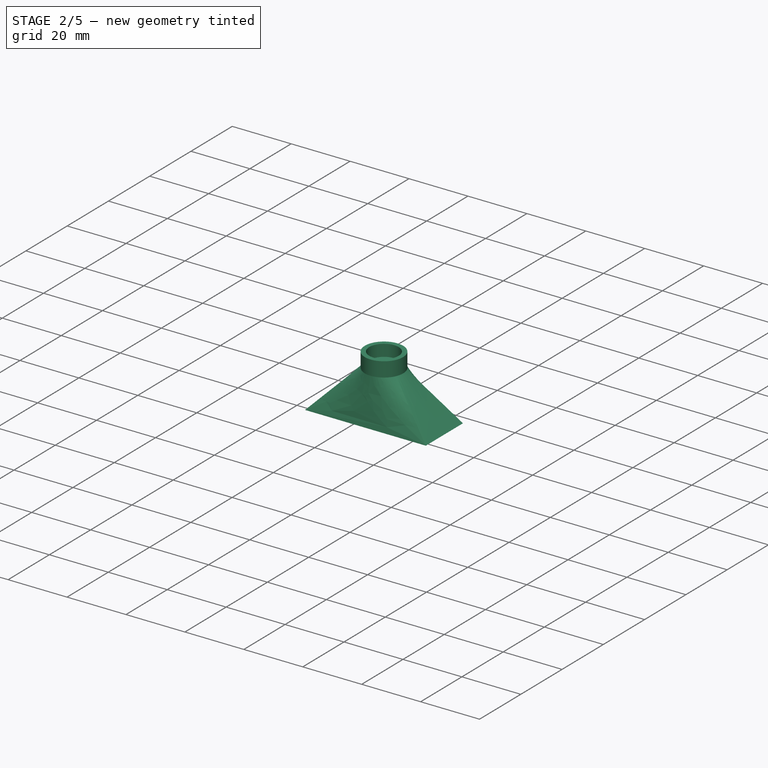
[diagram: stage 2 of 5 — iso view after this stage's code; geometry added in this stage tinted green]
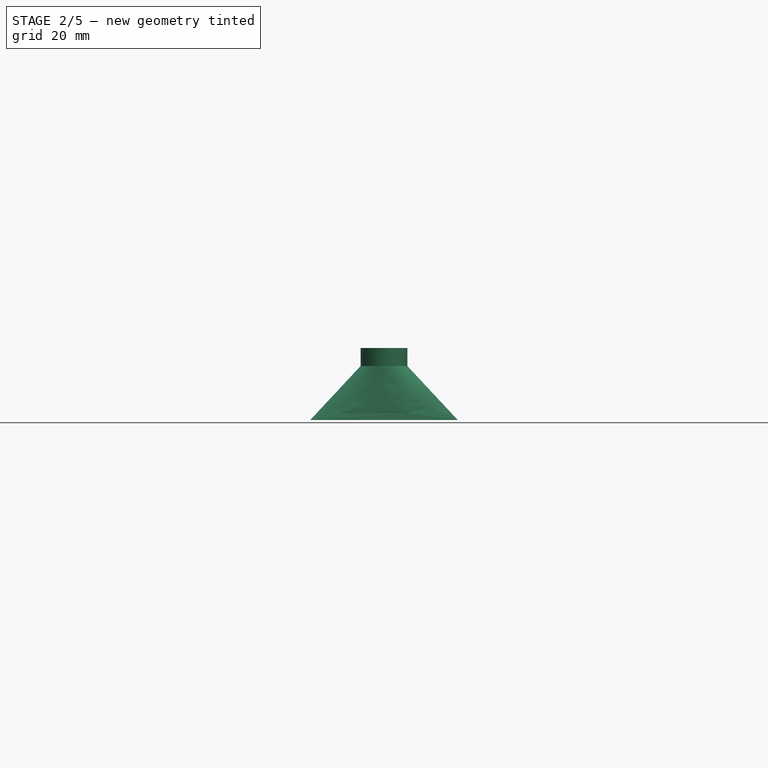
[diagram: stage 2 of 5 — front view after this stage's code; geometry added in this stage tinted green]
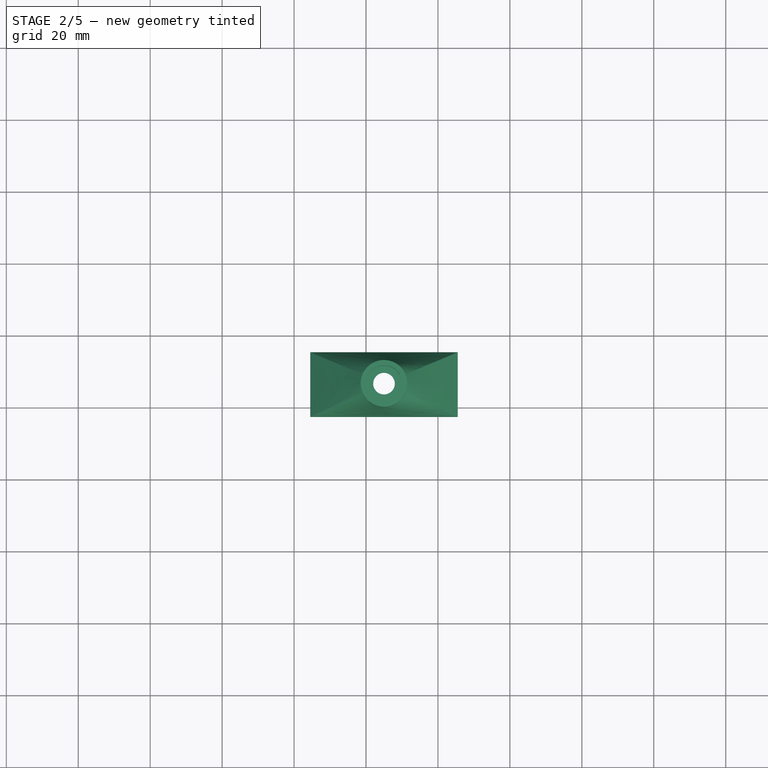
[diagram: stage 2 of 5 — top view after this stage's code; geometry added in this stage tinted green]
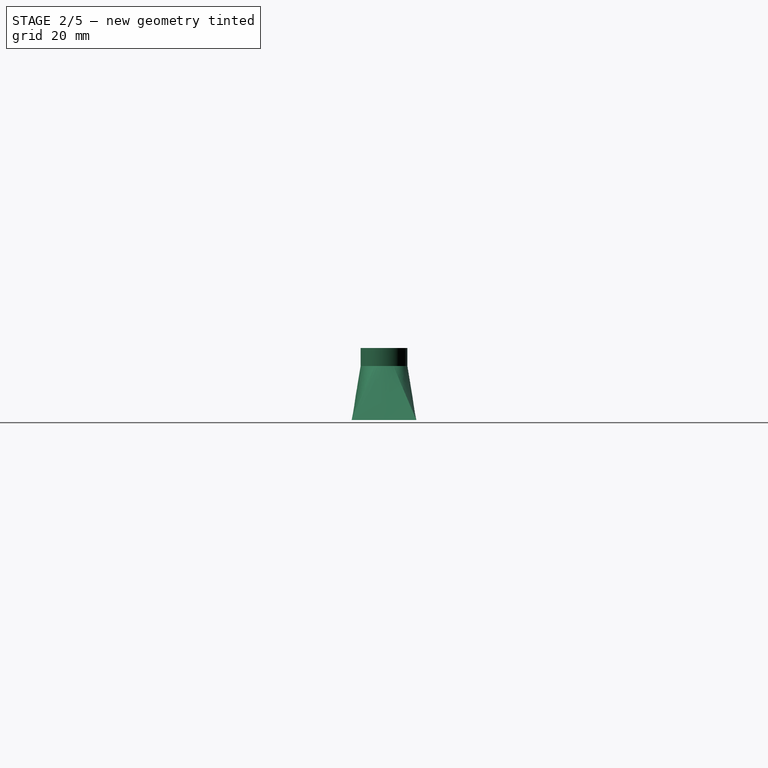
[diagram: stage 2 of 5 — right view after this stage's code; geometry added in this stage tinted green]
FEATURE [Sketcher::SketchObject] Sketch045
  FullyConstrained = true
  MapMode = 5
  Support = -> [XY_Plane018]
  sketch-geometry (72):
    g0: LineSegment StartX=-77.5 StartY=85 StartZ=0 EndX=77.5 EndY=85 EndZ=0
    g1: LineSegment StartX=77.5 StartY=85 StartZ=0 EndX=77.5 EndY=-85 EndZ=0
    g2: LineSegment StartX=77.5 StartY=-85 StartZ=0 EndX=-77.5 EndY=-85 EndZ=0
    g3: LineSegment StartX=-77.5 StartY=-85 StartZ=0 EndX=-77.5 EndY=85 EndZ=0
    g4: LineSegment StartX=-65 StartY=75 StartZ=0 EndX=65 EndY=75 EndZ=0
    g5: LineSegment StartX=65 StartY=75 StartZ=0 EndX=65 EndY=-75 EndZ=0
    g6: LineSegment StartX=65 StartY=-75 StartZ=0 EndX=-65 EndY=-75 EndZ=0
    g7: LineSegment StartX=-65 StartY=-75 StartZ=0 EndX=-65 EndY=75 EndZ=0
    g8: LineSegment StartX=-65 StartY=75 StartZ=0 EndX=5 EndY=75 EndZ=0
    g9: LineSegment StartX=5 StartY=75 StartZ=0 EndX=5 EndY=58 EndZ=0
    g10: LineSegment StartX=5 StartY=58 StartZ=0 EndX=-65 EndY=58 EndZ=0
    g11: LineSegment StartX=-65 StartY=58 StartZ=0 EndX=-65 EndY=75 EndZ=0
    g12: LineSegment StartX=25 StartY=75 StartZ=0 EndX=65 EndY=75 EndZ=0
    g13: LineSegment StartX=65 StartY=75 StartZ=0 EndX=65 EndY=58 EndZ=0
    g14: LineSegment StartX=65 StartY=58 StartZ=0 EndX=25 EndY=58 EndZ=0
    g15: LineSegment StartX=25 StartY=58 StartZ=0 EndX=25 EndY=75 EndZ=0
    g16: LineSegment StartX=-65 StartY=56 StartZ=0 EndX=5 EndY=56 EndZ=0
    g17: LineSegment StartX=5 StartY=56 StartZ=0 EndX=5 EndY=39 EndZ=0
    g18: LineSegment StartX=5 StartY=39 StartZ=0 EndX=-65 EndY=39 EndZ=0
    g19: LineSegment StartX=-65 StartY=39 StartZ=0 EndX=-65 EndY=56 EndZ=0
    g20: LineSegment StartX=25 StartY=56 StartZ=0 EndX=65 EndY=56 EndZ=0
    g21: LineSegment StartX=65 StartY=56 StartZ=0 EndX=65 EndY=39 EndZ=0
    g22: LineSegment StartX=65 StartY=39 StartZ=0 EndX=25 EndY=39 EndZ=0
    g23: LineSegment StartX=25 StartY=39 StartZ=0 EndX=25 EndY=56 EndZ=0
    g24: LineSegment StartX=-65 StartY=37 StartZ=0 EndX=5 EndY=37 EndZ=0
    g25: LineSegment StartX=5 StartY=37 StartZ=0 EndX=5 EndY=20 EndZ=0
    g26: LineSegment StartX=5 StartY=20 StartZ=0 EndX=-65 EndY=20 EndZ=0
    g27: LineSegment StartX=-65 StartY=20 StartZ=0 EndX=-65 EndY=37 EndZ=0
    g28: LineSegment StartX=25 StartY=37 StartZ=0 EndX=65 EndY=37 EndZ=0
    g29: LineSegment StartX=65 StartY=37 StartZ=0 EndX=65 EndY=20 EndZ=0
    g30: LineSegment StartX=65 StartY=20 StartZ=0 EndX=25 EndY=20 EndZ=0
    g31: LineSegment StartX=25 StartY=20 StartZ=0 EndX=25 EndY=37 EndZ=0
    g32: LineSegment StartX=-65 StartY=18 StartZ=0 EndX=5 EndY=18 EndZ=0
    g33: LineSegment StartX=5 StartY=18 StartZ=0 EndX=5 EndY=1 EndZ=0
    g34: LineSegment StartX=5 StartY=1 StartZ=0 EndX=-65 EndY=1 EndZ=0
    g35: LineSegment StartX=-65 StartY=1 StartZ=0 EndX=-65 EndY=18 EndZ=0
    g36: LineSegment StartX=25 StartY=18 StartZ=0 EndX=65 EndY=18 EndZ=0
    g37: LineSegment StartX=65 StartY=18 StartZ=0 EndX=65 EndY=1 EndZ=0
    g38: LineSegment StartX=65 StartY=1 StartZ=0 EndX=25 EndY=1 EndZ=0
    g39: LineSegment StartX=25 StartY=1 StartZ=0 EndX=25 EndY=18 EndZ=0
    g40: LineSegment StartX=-65 StartY=-1 StartZ=0 EndX=5 EndY=-1 EndZ=0
    g41: LineSegment StartX=5 StartY=-1 StartZ=0 EndX=5 EndY=-18 EndZ=0
    g42: LineSegment StartX=5 StartY=-18 StartZ=0 EndX=-65 EndY=-18 EndZ=0
    g43: LineSegment StartX=-65 StartY=-18 StartZ=0 EndX=-65 EndY=-1 EndZ=0
    g44: LineSegment StartX=25 StartY=-1 StartZ=0 EndX=65 EndY=-1 EndZ=0
    g45: LineSegment StartX=65 StartY=-1 StartZ=0 EndX=65 EndY=-18 EndZ=0
    g46: LineSegment StartX=65 StartY=-18 StartZ=0 EndX=25 EndY=-18 EndZ=0
    g47: LineSegment StartX=25 StartY=-18 StartZ=0 EndX=25 EndY=-1 EndZ=0
    g48: LineSegment StartX=-65 StartY=-20 StartZ=0 EndX=5 EndY=-20 EndZ=0
    g49: LineSegment StartX=5 StartY=-20 StartZ=0 EndX=5 EndY=-37 EndZ=0
    g50: LineSegment StartX=5 StartY=-37 StartZ=0 EndX=-65 EndY=-37 EndZ=0
    g51: LineSegment StartX=-65 StartY=-37 StartZ=0 EndX=-65 EndY=-20 EndZ=0
    g52: LineSegment StartX=25 StartY=-20 StartZ=0 EndX=65 EndY=-20 EndZ=0
    g53: LineSegment StartX=65 StartY=-20 StartZ=0 EndX=65 EndY=-37 EndZ=0
    g54: LineSegment StartX=65 StartY=-37 StartZ=0 EndX=25 EndY=-37 EndZ=0
    g55: LineSegment StartX=25 StartY=-37 StartZ=0 EndX=25 EndY=-20 EndZ=0
    g56: LineSegment StartX=-65 StartY=-39 StartZ=0 EndX=5 EndY=-39 EndZ=0
    g57: LineSegment StartX=5 StartY=-39 StartZ=0 EndX=5 EndY=-56 EndZ=0
    g58: LineSegment StartX=5 StartY=-56 StartZ=0 EndX=-65 EndY=-56 EndZ=0
    g59: LineSegment StartX=-65 StartY=-56 StartZ=0 EndX=-65 EndY=-39 EndZ=0
    g60: LineSegment StartX=25 StartY=-39 StartZ=0 EndX=65 EndY=-39 EndZ=0
    g61: LineSegment StartX=65 StartY=-39 StartZ=0 EndX=65 EndY=-56 EndZ=0
    g62: LineSegment StartX=65 StartY=-56 StartZ=0 EndX=25 EndY=-56 EndZ=0
    g63: LineSegment StartX=25 StartY=-56 StartZ=0 EndX=25 EndY=-39 EndZ=0
    g64: LineSegment StartX=-65 StartY=-58 StartZ=0 EndX=5 EndY=-58 EndZ=0
    g65: LineSegment StartX=5 StartY=-58 StartZ=0 EndX=5 EndY=-75 EndZ=0
    g66: LineSegment StartX=5 StartY=-75 StartZ=0 EndX=-65 EndY=-75 EndZ=0
    g67: LineSegment StartX=-65 StartY=-75 StartZ=0 EndX=-65 EndY=-58 EndZ=0
    g68: LineSegment StartX=25 StartY=-58 StartZ=0 EndX=65 EndY=-58 EndZ=0
    g69: LineSegment StartX=65 StartY=-58 StartZ=0 EndX=65 EndY=-75 EndZ=0
    g70: LineSegment StartX=65 StartY=-75 StartZ=0 EndX=25 EndY=-75 EndZ=0
    g71: LineSegment StartX=25 StartY=-75 StartZ=0 EndX=25 EndY=-58 EndZ=0
  constraints (212):
    c: Coincident(g0,g1)
    c: Coincident(g1,g2)
    c: Coincident(g2,g3)
    c: Coincident(g3,g0)
    c: Horizontal(g2)
    c: Vertical(g1)
    c: Symmetric(g0,g0,g-2)
    c: Symmetric(g0,g2,g-1)
    c: Distance(g0) = 155
    c: Distance(g1) = 170
    c: Coincident(g4,g5)
    c: Coincident(g5,g6)
    c: Coincident(g6,g7)
    c: Horizontal(g6)
    c: Vertical(g5)
    c: Symmetric(g4,g4,g-2)
    c: Symmetric(g4,g6,g-1)
    c: Distance(g4) = 130
    c: Distance(g5) = 150
    c: Coincident(g8,g9)
    c: Coincident(g9,g10)
    c: Coincident(g10,g11)
    c: Coincident(g11,g8)
    c: Horizontal(g8)
    c: Horizontal(g10)
    c: Vertical(g9)
    c: Vertical(g11)
    c: Distance(g8) = 70
    c: Distance(g9) = 17
    c: Coincident(g12,g13)
    c: Coincident(g13,g14)
    c: Coincident(g14,g15)
    c: Coincident(g15,g12)
    c: Horizontal(g12)
    c: Horizontal(g14)
    c: Vertical(g13)
    c: Vertical(g15)
    c: Distance(g12) = 40
    c: Distance(g13) = 17
    c: Coincident(g8,g4)
    c: Coincident(g12,g4)
    c: Vertical(g7)
    c: Equal(g7,g5)
    c: Coincident(g16,g17)
    c: Coincident(g17,g18)
    c: Coincident(g18,g19)
    c: Coincident(g19,g16)
    c: Horizontal(g16)
    c: Horizontal(g18)
    c: Vertical(g17)
    c: Vertical(g19)
    c: Equal(g8,g16) = 70
    c: Equal(g9,g17) = 20
    c: Coincident(g20,g21)
    c: Coincident(g21,g22)
    c: Coincident(g22,g23)
    c: Coincident(g23,g20)
    c: Horizontal(g20)
    c: Horizontal(g22)
    c: Vertical(g21)
    c: Vertical(g23)
    c: Equal(g12,g20) = 40
    c: Equal(g13,g21) = 20
    c: DistanceX(g16,g4) = 0
    c: DistanceX(g20,g4) = 0
    c: DistanceY(g16,g9) = 2
    c: DistanceY(g20,g14) = 2
    c: Coincident(g24,g25)
    c: Coincident(g25,g26)
    c: Coincident(g26,g27)
    c: Coincident(g27,g24)
    c: Horizontal(g24)
    c: Horizontal(g26)
    c: Vertical(g25)
    c: Vertical(g27)
    c: Equal(g8,g24) = 70
    c: Equal(g9,g25) = 20
    c: Coincident(g28,g29)
    c: Coincident(g29,g30)
    c: Coincident(g30,g31)
    c: Coincident(g31,g28)
    c: Horizontal(g28)
    c: Horizontal(g30)
    c: Vertical(g29)
    c: Vertical(g31)
    c: Equal(g12,g28) = 40
    c: Equal(g13,g29) = 20
    c: Coincident(g32,g33)
    c: Coincident(g33,g34)
    c: Coincident(g34,g35)
    c: Coincident(g35,g32)
    c: Horizontal(g32)
    c: Horizontal(g34)
    c: Vertical(g33)
    c: Vertical(g35)
    c: Equal(g24,g32) = 70
    c: Equal(g25,g33) = 20
    c: Coincident(g36,g37)
    c: Coincident(g37,g38)
    c: Coincident(g38,g39)
    c: Coincident(g39,g36)
    c: Horizontal(g36)
    c: Horizontal(g38)
    c: Vertical(g37)
    c: Vertical(g39)
    c: Equal(g28,g36) = 40
    c: Equal(g29,g37) = 20
    c: DistanceY(g32,g25) = 2
    c: DistanceY(g36,g30) = 2
    c: DistanceX(g4,g24) = 0
    c: DistanceX(g4,g28) = 0
    c: DistanceX(g4,g36) = 0
    c: DistanceY(g28,g22) = 2
    c: DistanceY(g24,g17) = 2
    c: DistanceX(g32,g4) = 0
    c: Coincident(g41,g42)
    c: Coincident(g42,g43)
    c: Coincident(g43,g40)
    c: Horizontal(g40)
    c: Horizontal(g42)
    c: Vertical(g41)
    c: Vertical(g43)
    c: Equal(g8,g40) = 70
    c: Equal(g9,g41) = 20
    c: Coincident(g44,g45)
    c: Coincident(g45,g46)
    c: Coincident(g46,g47)
    c: Coincident(g47,g44)
    c: Horizontal(g44)
    c: Horizontal(g46)
    c: Vertical(g45)
    c: Vertical(g47)
    c: Equal(g12,g44) = 40
    c: Equal(g13,g45) = 20
    c: Coincident(g48,g49)
    c: Coincident(g49,g50)
    c: Coincident(g50,g51)
    c: Coincident(g51,g48)
    c: Horizontal(g48)
    c: Horizontal(g50)
    c: Vertical(g49)
    c: Vertical(g51)
    c: Equal(g40,g48) = 70
    c: Equal(g41,g49) = 20
    c: Coincident(g52,g53)
    c: Coincident(g53,g54)
    c: Coincident(g54,g55)
    c: Coincident(g55,g52)
    c: Horizontal(g52)
    c: Horizontal(g54)
    c: Vertical(g53)
    c: Vertical(g55)
    c: Equal(g44,g52) = 40
    c: Equal(g45,g53) = 20
    c: DistanceY(g48,g41) = 2
    c: DistanceY(g52,g46) = 2
    c: Coincident(g56,g57)
    c: Coincident(g57,g58)
    c: Coincident(g58,g59)
    c: Coincident(g59,g56)
    c: Horizontal(g56)
    c: Horizontal(g58)
    c: Vertical(g57)
    c: Vertical(g59)
    c: Equal(g40,g56) = 70
    c: Equal(g41,g57) = 20
    c: Coincident(g60,g61)
    c: Coincident(g61,g62)
    c: Coincident(g62,g63)
    c: Coincident(g63,g60)
    c: Horizontal(g60)
    c: Horizontal(g62)
    c: Vertical(g61)
    c: Vertical(g63)
    c: Equal(g44,g60) = 40
    c: Equal(g45,g61) = 20
    c: Coincident(g64,g65)
    c: Coincident(g65,g66)
    c: Coincident(g66,g67)
    c: Coincident(g67,g64)
    c: Horizontal(g64)
    c: Horizontal(g66)
    c: Vertical(g65)
    c: Vertical(g67)
    c: Equal(g56,g64) = 70
    c: Equal(g57,g65) = 20
    c: Coincident(g68,g69)
    c: Coincident(g69,g70)
    c: Coincident(g70,g71)
    c: Coincident(g71,g68)
    c: Horizontal(g68)
    c: Horizontal(g70)
    c: Vertical(g69)
    c: Vertical(g71)
    c: Equal(g60,g68) = 40
    c: Equal(g61,g69) = 20
    c: DistanceY(g64,g57) = 2
    c: DistanceY(g68,g62) = 2
    c: DistanceY(g60,g54) = 2
    c: DistanceY(g56,g49) = 2
    c: DistanceX(g4,g48) = 0
    c: DistanceX(g56,g4) = 0
    c: DistanceX(g64,g4) = 0
    c: DistanceX(g4,g40) = 0
    c: DistanceY(g44,g38) = 2
    c: DistanceX(g4,g52) = 0
    c: DistanceX(g60,g4) = 0
    c: DistanceX(g68,g4) = 0
    c: Equal(g43,g41)
    c: Equal(g40,g42)
    c: DistanceY(g40,g34) = 2
    c: DistanceX(g44,g4) = 0
FEATURE [PartDesign::Pad] Pad018
  Direction = (0,0,1)
  Length = 0.3
  Length2 = 100
  Profile = -> Sketch045
  ReferenceAxis = -> Sketch045 [N_Axis]
  Type = 0
FEATURE [PartDesign::ShapeBinder] ShapeBinder009
  Placement = pos=(0,0,0.3) rot=(0,0,1;0rad)
  Support = -> [Pad018]
  TraceSupport = false
FEATURE [Sketcher::SketchObject] Sketch049
  ExternalGeometry = -> [ShapeBinder009]
  FullyConstrained = true
  MapMode = 5
  Placement = pos=(0,0,0.3) rot=(0,0,1;0rad)
  Support = -> [ShapeBinder009]
  sketch-geometry (8):
    g0: LineSegment StartX=24.5 StartY=75.5 StartZ=0 EndX=65.5 EndY=75.5 EndZ=0
    g1: LineSegment StartX=65.5 StartY=75.5 StartZ=0 EndX=65.5 EndY=57.5 EndZ=0
    g2: LineSegment StartX=65.5 StartY=57.5 StartZ=0 EndX=24.5 EndY=57.5 EndZ=0
    g3: LineSegment StartX=24.5 StartY=57.5 StartZ=0 EndX=24.5 EndY=75.5 EndZ=0
    g4: LineSegment StartX=25 StartY=75 StartZ=0 EndX=65 EndY=75 EndZ=0
    g5: LineSegment StartX=65 StartY=75 StartZ=0 EndX=65 EndY=58 EndZ=0
    g6: LineSegment StartX=65 StartY=58 StartZ=0 EndX=25 EndY=58 EndZ=0
    g7: LineSegment StartX=25 StartY=58 StartZ=0 EndX=25 EndY=75 EndZ=0
  constraints (22):
    c: Coincident(g0,g1)
    c: Coincident(g1,g2)
    c: Coincident(g2,g3)
    c: Coincident(g3,g0)
    c: Horizontal(g0)
    c: Horizontal(g2)
    c: Vertical(g1)
    c: Vertical(g3)
    c: DistanceX(g0,g-5) = 0.5
    c: DistanceY(g-5,g0) = 0.5
    c: DistanceX(g-4,g0) = 0.5
    c: DistanceY(g1,g-6) = 0.5
    c: Coincident(g4,g5)
    c: Coincident(g5,g6)
    c: Coincident(g6,g7)
    c: Coincident(g7,g4)
    c: Horizontal(g4)
    c: Horizontal(g6)
    c: Vertical(g5)
    c: Vertical(g7)
    c: Coincident(g4,g-5)
    c: Coincident(g5,g-6)
FEATURE [Sketcher::SketchObject] Sketch048
  AttachmentOffset = pos=(0,0,15) rot=(0,0,1;0rad)
  ExternalGeometry = -> [Sketch049,ShapeBinder009]
  FullyConstrained = true
  MapMode = 5
  Placement = pos=(0,0,15.3) rot=(0,0,1;0rad)
  Support = -> [ShapeBinder009]
  sketch-geometry (4):
    g0: LineSegment StartX=45 StartY=75 StartZ=0 EndX=45 EndY=58 EndZ=0
    g1: LineSegment StartX=25 StartY=66.5 StartZ=0 EndX=65 EndY=66.5 EndZ=0
    g2: Circle CenterX=45 CenterY=66.5 CenterZ=0 NormalX=0 NormalY=0 NormalZ=1 AngleXU=0 Radius=6.5
    g3: Circle CenterX=45 CenterY=66.5 CenterZ=0 NormalX=0 NormalY=0 NormalZ=1 AngleXU=0 Radius=6
  constraints (11):
    c: PointOnObject(g0,g-3)
    c: PointOnObject(g0,g-6)
    c: PointOnObject(g1,g-5)
    c: PointOnObject(g1,g-4)
    c: Symmetric(g-5,g-6,g1)
    c: Symmetric(g-5,g-4,g0)
    c: PointOnObject(g2,g0)
    c: Diameter(g2) = 13
    c: PointOnObject(g2,g1)
    c: Coincident(g3,g2)
    c: Diameter(g3) = 12
FEATURE [PartDesign::AdditiveLoft] AdditiveLoft009
  Closed = false
  Placement = pos=(0,0,0.3) rot=(0,0,1;0rad)
  Profile = -> Sketch048
  Ruled = false
  Sections = -> [Sketch049]
FEATURE [PartDesign::Body] Body010  label="Reflector010"
  Group = -> [ShapeBinder009,Sketch049,Sketch048,AdditiveLoft009,Sketch047,Pad019,Sketch046,Pocket009,Hole009]
  Origin = -> Origin010
  Placement = pos=(0,-19,0) rot=(0,0,1;0rad)
  Tip = -> Hole009
FEATURE [Sketcher::SketchObject] Sketch050
  FullyConstrained = true
  MapMode = 5
  Support = -> [XY_Plane020]
  sketch-geometry (72):
    g0: LineSegment StartX=-77.5 StartY=85 StartZ=0 EndX=77.5 EndY=85 EndZ=0
    g1: LineSegment StartX=77.5 StartY=85 StartZ=0 EndX=77.5 EndY=-85 EndZ=0
    g2: LineSegment StartX=77.5 StartY=-85 StartZ=0 EndX=-77.5 EndY=-85 EndZ=0
    g3: LineSegment StartX=-77.5 StartY=-85 StartZ=0 EndX=-77.5 EndY=85 EndZ=0
    g4: LineSegment StartX=-65 StartY=75 StartZ=0 EndX=65 EndY=75 EndZ=0
    g5: LineSegment StartX=65 StartY=75 StartZ=0 EndX=65 EndY=-75 EndZ=0
    g6: LineSegment StartX=65 StartY=-75 StartZ=0 EndX=-65 EndY=-75 EndZ=0
    g7: LineSegment StartX=-65 StartY=-75 StartZ=0 EndX=-65 EndY=75 EndZ=0
    g8: LineSegment StartX=-65 StartY=75 StartZ=0 EndX=5 EndY=75 EndZ=0
    g9: LineSegment StartX=5 StartY=75 StartZ=0 EndX=5 EndY=58 EndZ=0
    g10: LineSegment StartX=5 StartY=58 StartZ=0 EndX=-65 EndY=58 EndZ=0
    g11: LineSegment StartX=-65 StartY=58 StartZ=0 EndX=-65 EndY=75 EndZ=0
    g12: LineSegment StartX=25 StartY=75 StartZ=0 EndX=65 EndY=75 EndZ=0
    g13: LineSegment StartX=65 StartY=75 StartZ=0 EndX=65 EndY=58 EndZ=0
    g14: LineSegment StartX=65 StartY=58 StartZ=0 EndX=25 EndY=58 EndZ=0
    g15: LineSegment StartX=25 StartY=58 StartZ=0 EndX=25 EndY=75 EndZ=0
    g16: LineSegment StartX=-65 StartY=56 StartZ=0 EndX=5 EndY=56 EndZ=0
    g17: LineSegment StartX=5 StartY=56 StartZ=0 EndX=5 EndY=39 EndZ=0
    g18: LineSegment StartX=5 StartY=39 StartZ=0 EndX=-65 EndY=39 EndZ=0
    g19: LineSegment StartX=-65 StartY=39 StartZ=0 EndX=-65 EndY=56 EndZ=0
    g20: LineSegment StartX=25 StartY=56 StartZ=0 EndX=65 EndY=56 EndZ=0
    g21: LineSegment StartX=65 StartY=56 StartZ=0 EndX=65 EndY=39 EndZ=0
    g22: LineSegment StartX=65 StartY=39 StartZ=0 EndX=25 EndY=39 EndZ=0
    g23: LineSegment StartX=25 StartY=39 StartZ=0 EndX=25 EndY=56 EndZ=0
    g24: LineSegment StartX=-65 StartY=37 StartZ=0 EndX=5 EndY=37 EndZ=0
    g25: LineSegment StartX=5 StartY=37 StartZ=0 EndX=5 EndY=20 EndZ=0
    g26: LineSegment StartX=5 StartY=20 StartZ=0 EndX=-65 EndY=20 EndZ=0
    g27: LineSegment StartX=-65 StartY=20 StartZ=0 EndX=-65 EndY=37 EndZ=0
    g28: LineSegment StartX=25 StartY=37 StartZ=0 EndX=65 EndY=37 EndZ=0
    g29: LineSegment StartX=65 StartY=37 StartZ=0 EndX=65 EndY=20 EndZ=0
    g30: LineSegment StartX=65 StartY=20 StartZ=0 EndX=25 EndY=20 EndZ=0
    g31: LineSegment StartX=25 StartY=20 StartZ=0 EndX=25 EndY=37 EndZ=0
    g32: LineSegment StartX=-65 StartY=18 StartZ=0 EndX=5 EndY=18 EndZ=0
    g33: LineSegment StartX=5 StartY=18 StartZ=0 EndX=5 EndY=1 EndZ=0
    g34: LineSegment StartX=5 StartY=1 StartZ=0 EndX=-65 EndY=1 EndZ=0
    g35: LineSegment StartX=-65 StartY=1 StartZ=0 EndX=-65 EndY=18 EndZ=0
    g36: LineSegment StartX=25 StartY=18 StartZ=0 EndX=65 EndY=18 EndZ=0
    g37: LineSegment StartX=65 StartY=18 StartZ=0 EndX=65 EndY=1 EndZ=0
    g38: LineSegment StartX=65 StartY=1 StartZ=0 EndX=25 EndY=1 EndZ=0
    g39: LineSegment StartX=25 StartY=1 StartZ=0 EndX=25 EndY=18 EndZ=0
    g40: LineSegment StartX=-65 StartY=-1 StartZ=0 EndX=5 EndY=-1 EndZ=0
    g41: LineSegment StartX=5 StartY=-1 StartZ=0 EndX=5 EndY=-18 EndZ=0
    g42: LineSegment StartX=5 StartY=-18 StartZ=0 EndX=-65 EndY=-18 EndZ=0
    g43: LineSegment StartX=-65 StartY=-18 StartZ=0 EndX=-65 EndY=-1 EndZ=0
    g44: LineSegment StartX=25 StartY=-1 StartZ=0 EndX=65 EndY=-1 EndZ=0
    g45: LineSegment StartX=65 StartY=-1 StartZ=0 EndX=65 EndY=-18 EndZ=0
    g46: LineSegment StartX=65 StartY=-18 StartZ=0 EndX=25 EndY=-18 EndZ=0
    g47: LineSegment StartX=25 StartY=-18 StartZ=0 EndX=25 EndY=-1 EndZ=0
    g48: LineSegment StartX=-65 StartY=-20 StartZ=0 EndX=5 EndY=-20 EndZ=0
    g49: LineSegment StartX=5 StartY=-20 StartZ=0 EndX=5 EndY=-37 EndZ=0
    g50: LineSegment StartX=5 StartY=-37 StartZ=0 EndX=-65 EndY=-37 EndZ=0
    g51: LineSegment StartX=-65 StartY=-37 StartZ=0 EndX=-65 EndY=-20 EndZ=0
    g52: LineSegment StartX=25 StartY=-20 StartZ=0 EndX=65 EndY=-20 EndZ=0
    g53: LineSegment StartX=65 StartY=-20 StartZ=0 EndX=65 EndY=-37 EndZ=0
    g54: LineSegment StartX=65 StartY=-37 StartZ=0 EndX=25 EndY=-37 EndZ=0
    g55: LineSegment StartX=25 StartY=-37 StartZ=0 EndX=25 EndY=-20 EndZ=0
    g56: LineSegment StartX=-65 StartY=-39 StartZ=0 EndX=5 EndY=-39 EndZ=0
    g57: LineSegment StartX=5 StartY=-39 StartZ=0 EndX=5 EndY=-56 EndZ=0
    g58: LineSegment StartX=5 StartY=-56 StartZ=0 EndX=-65 EndY=-56 EndZ=0
    g59: LineSegment StartX=-65 StartY=-56 StartZ=0 EndX=-65 EndY=-39 EndZ=0
    g60: LineSegment StartX=25 StartY=-39 StartZ=0 EndX=65 EndY=-39 EndZ=0
    g61: LineSegment StartX=65 StartY=-39 StartZ=0 EndX=65 EndY=-56 EndZ=0
    g62: LineSegment StartX=65 StartY=-56 StartZ=0 EndX=25 EndY=-56 EndZ=0
    g63: LineSegment StartX=25 StartY=-56 StartZ=0 EndX=25 EndY=-39 EndZ=0
    g64: LineSegment StartX=-65 StartY=-58 StartZ=0 EndX=5 EndY=-58 EndZ=0
    g65: LineSegment StartX=5 StartY=-58 StartZ=0 EndX=5 EndY=-75 EndZ=0
    g66: LineSegment StartX=5 StartY=-75 StartZ=0 EndX=-65 EndY=-75 EndZ=0
    g67: LineSegment StartX=-65 StartY=-75 StartZ=0 EndX=-65 EndY=-58 EndZ=0
    g68: LineSegment StartX=25 StartY=-58 StartZ=0 EndX=65 EndY=-58 EndZ=0
    g69: LineSegment StartX=65 StartY=-58 StartZ=0 EndX=65 EndY=-75 EndZ=0
    g70: LineSegment StartX=65 StartY=-75 StartZ=0 EndX=25 EndY=-75 EndZ=0
    g71: LineSegment StartX=25 StartY=-75 StartZ=0 EndX=25 EndY=-58 EndZ=0
  constraints (212):
    c: Coincident(g0,g1)
    c: Coincident(g1,g2)
    c: Coincident(g2,g3)
    c: Coincident(g3,g0)
    c: Horizontal(g2)
    c: Vertical(g1)
    c: Symmetric(g0,g0,g-2)
    c: Symmetric(g0,g2,g-1)
    c: Distance(g0) = 155
    c: Distance(g1) = 170
    c: Coincident(g4,g5)
    c: Coincident(g5,g6)
    c: Coincident(g6,g7)
    c: Horizontal(g6)
    c: Vertical(g5)
    c: Symmetric(g4,g4,g-2)
    c: Symmetric(g4,g6,g-1)
    c: Distance(g4) = 130
    c: Distance(g5) = 150
    c: Coincident(g8,g9)
    c: Coincident(g9,g10)
    c: Coincident(g10,g11)
    c: Coincident(g11,g8)
    c: Horizontal(g8)
    c: Horizontal(g10)
    c: Vertical(g9)
    c: Vertical(g11)
    c: Distance(g8) = 70
    c: Distance(g9) = 17
    c: Coincident(g12,g13)
    c: Coincident(g13,g14)
    c: Coincident(g14,g15)
    c: Coincident(g15,g12)
    c: Horizontal(g12)
    c: Horizontal(g14)
    c: Vertical(g13)
    c: Vertical(g15)
    c: Distance(g12) = 40
    c: Distance(g13) = 17
    c: Coincident(g8,g4)
    c: Coincident(g12,g4)
    c: Vertical(g7)
    c: Equal(g7,g5)
    c: Coincident(g16,g17)
    c: Coincident(g17,g18)
    c: Coincident(g18,g19)
    c: Coincident(g19,g16)
    c: Horizontal(g16)
    c: Horizontal(g18)
    c: Vertical(g17)
    c: Vertical(g19)
    c: Equal(g8,g16) = 70
    c: Equal(g9,g17) = 20
    c: Coincident(g20,g21)
    c: Coincident(g21,g22)
    c: Coincident(g22,g23)
    c: Coincident(g23,g20)
    c: Horizontal(g20)
    c: Horizontal(g22)
    c: Vertical(g21)
    c: Vertical(g23)
    c: Equal(g12,g20) = 40
    c: Equal(g13,g21) = 20
    c: DistanceX(g16,g4) = 0
    c: DistanceX(g20,g4) = 0
    c: DistanceY(g16,g9) = 2
    c: DistanceY(g20,g14) = 2
    c: Coincident(g24,g25)
    c: Coincident(g25,g26)
    c: Coincident(g26,g27)
    c: Coincident(g27,g24)
    c: Horizontal(g24)
    c: Horizontal(g26)
    c: Vertical(g25)
    c: Vertical(g27)
    c: Equal(g8,g24) = 70
    c: Equal(g9,g25) = 20
    c: Coincident(g28,g29)
    c: Coincident(g29,g30)
    c: Coincident(g30,g31)
    c: Coincident(g31,g28)
    c: Horizontal(g28)
    c: Horizontal(g30)
    c: Vertical(g29)
    c: Vertical(g31)
    c: Equal(g12,g28) = 40
    c: Equal(g13,g29) = 20
    c: Coincident(g32,g33)
    c: Coincident(g33,g34)
    c: Coincident(g34,g35)
    c: Coincident(g35,g32)
    c: Horizontal(g32)
    c: Horizontal(g34)
    c: Vertical(g33)
    c: Vertical(g35)
    c: Equal(g24,g32) = 70
    c: Equal(g25,g33) = 20
    c: Coincident(g36,g37)
    c: Coincident(g37,g38)
    c: Coincident(g38,g39)
    c: Coincident(g39,g36)
    c: Horizontal(g36)
    c: Horizontal(g38)
    c: Vertical(g37)
    c: Vertical(g39)
    c: Equal(g28,g36) = 40
    c: Equal(g29,g37) = 20
    c: DistanceY(g32,g25) = 2
    c: DistanceY(g36,g30) = 2
    c: DistanceX(g4,g24) = 0
    c: DistanceX(g4,g28) = 0
    c: DistanceX(g4,g36) = 0
    c: DistanceY(g28,g22) = 2
    c: DistanceY(g24,g17) = 2
    c: DistanceX(g32,g4) = 0
    c: Coincident(g41,g42)
    c: Coincident(g42,g43)
    c: Coincident(g43,g40)
    c: Horizontal(g40)
    c: Horizontal(g42)
    c: Vertical(g41)
    c: Vertical(g43)
    c: Equal(g8,g40) = 70
    c: Equal(g9,g41) = 20
    c: Coincident(g44,g45)
    c: Coincident(g45,g46)
    c: Coincident(g46,g47)
    c: Coincident(g47,g44)
    c: Horizontal(g44)
    c: Horizontal(g46)
    c: Vertical(g45)
    c: Vertical(g47)
    c: Equal(g12,g44) = 40
    c: Equal(g13,g45) = 20
    c: Coincident(g48,g49)
    c: Coincident(g49,g50)
    c: Coincident(g50,g51)
    c: Coincident(g51,g48)
    c: Horizontal(g48)
    c: Horizontal(g50)
    c: Vertical(g49)
    c: Vertical(g51)
    c: Equal(g40,g48) = 70
    c: Equal(g41,g49) = 20
    c: Coincident(g52,g53)
    c: Coincident(g53,g54)
    c: Coincident(g54,g55)
    c: Coincident(g55,g52)
    c: Horizontal(g52)
    c: Horizontal(g54)
    c: Vertical(g53)
    c: Vertical(g55)
    c: Equal(g44,g52) = 40
    c: Equal(g45,g53) = 20
    c: DistanceY(g48,g41) = 2
    c: DistanceY(g52,g46) = 2
    c: Coincident(g56,g57)
    c: Coincident(g57,g58)
    c: Coincident(g58,g59)
    c: Coincident(g59,g56)
    c: Horizontal(g56)
    c: Horizontal(g58)
    c: Vertical(g57)
    c: Vertical(g59)
    c: Equal(g40,g56) = 70
    c: Equal(g41,g57) = 20
    c: Coincident(g60,g61)
    c: Coincident(g61,g62)
    c: Coincident(g62,g63)
    c: Coincident(g63,g60)
    c: Horizontal(g60)
    c: Horizontal(g62)
    c: Vertical(g61)
    c: Vertical(g63)
    c: Equal(g44,g60) = 40
    c: Equal(g45,g61) = 20
    c: Coincident(g64,g65)
    c: Coincident(g65,g66)
    c: Coincident(g66,g67)
    c: Coincident(g67,g64)
    c: Horizontal(g64)
    c: Horizontal(g66)
    c: Vertical(g65)
    c: Vertical(g67)
    c: Equal(g56,g64) = 70
    c: Equal(g57,g65) = 20
    c: Coincident(g68,g69)
    c: Coincident(g69,g70)
    c: Coincident(g70,g71)
    c: Coincident(g71,g68)
    c: Horizontal(g68)
    c: Horizontal(g70)
    c: Vertical(g69)
    c: Vertical(g71)
    c: Equal(g60,g68) = 40
    c: Equal(g61,g69) = 20
    c: DistanceY(g64,g57) = 2
    c: DistanceY(g68,g62) = 2
    c: DistanceY(g60,g54) = 2
    c: DistanceY(g56,g49) = 2
    c: DistanceX(g4,g48) = 0
    c: DistanceX(g56,g4) = 0
    c: DistanceX(g64,g4) = 0
    c: DistanceX(g4,g40) = 0
    c: DistanceY(g44,g38) = 2
    c: DistanceX(g4,g52) = 0
    c: DistanceX(g60,g4) = 0
    c: DistanceX(g68,g4) = 0
    c: Equal(g43,g41)
    c: Equal(g40,g42)
    c: DistanceY(g40,g34) = 2
    c: DistanceX(g44,g4) = 0
FEATURE [PartDesign::Pad] Pad020
  Direction = (0,0,1)
  Length = 0.3
  Length2 = 100
  Profile = -> Sketch050
  ReferenceAxis = -> Sketch050 [N_Axis]
  Type = 0
FEATURE [PartDesign::ShapeBinder] ShapeBinder010
  Placement = pos=(0,0,0.3) rot=(0,0,1;0rad)
  Support = -> [Pad020]
  TraceSupport = false
FEATURE [Sketcher::SketchObject] Sketch054
  ExternalGeometry = -> [ShapeBinder010]
  FullyConstrained = true
  MapMode = 5
  Placement = pos=(0,0,0.3) rot=(0,0,1;0rad)
  Support = -> [ShapeBinder010]
  sketch-geometry (8):
    g0: LineSegment StartX=24.5 StartY=75.5 StartZ=0 EndX=65.5 EndY=75.5 EndZ=0
    g1: LineSegment StartX=65.5 StartY=75.5 StartZ=0 EndX=65.5 EndY=57.5 EndZ=0
    g2: LineSegment StartX=65.5 StartY=57.5 StartZ=0 EndX=24.5 EndY=57.5 EndZ=0
    g3: LineSegment StartX=24.5 StartY=57.5 StartZ=0 EndX=24.5 EndY=75.5 EndZ=0
    g4: LineSegment StartX=25 StartY=75 StartZ=0 EndX=65 EndY=75 EndZ=0
    g5: LineSegment StartX=65 StartY=75 StartZ=0 EndX=65 EndY=58 EndZ=0
    g6: LineSegment StartX=65 StartY=58 StartZ=0 EndX=25 EndY=58 EndZ=0
    g7: LineSegment StartX=25 StartY=58 StartZ=0 EndX=25 EndY=75 EndZ=0
  constraints (22):
    c: Coincident(g0,g1)
    c: Coincident(g1,g2)
    c: Coincident(g2,g3)
    c: Coincident(g3,g0)
    c: Horizontal(g0)
    c: Horizontal(g2)
    c: Vertical(g1)
    c: Vertical(g3)
    c: DistanceX(g0,g-5) = 0.5
    c: DistanceY(g-5,g0) = 0.5
    c: DistanceX(g-4,g0) = 0.5
    c: DistanceY(g1,g-6) = 0.5
    c: Coincident(g4,g5)
    c: Coincident(g5,g6)
    c: Coincident(g6,g7)
    c: Coincident(g7,g4)
    c: Horizontal(g4)
    c: Horizontal(g6)
    c: Vertical(g5)
    c: Vertical(g7)
    c: Coincident(g4,g-5)
    c: Coincident(g5,g-6)
FEATURE [Sketcher::SketchObject] Sketch053
  AttachmentOffset = pos=(0,0,15) rot=(0,0,1;0rad)
  ExternalGeometry = -> [Sketch054,ShapeBinder010]
  FullyConstrained = true
  MapMode = 5
  Placement = pos=(0,0,15.3) rot=(0,0,1;0rad)
  Support = -> [ShapeBinder010]
  sketch-geometry (4):
    g0: LineSegment StartX=45 StartY=75 StartZ=0 EndX=45 EndY=58 EndZ=0
    g1: LineSegment StartX=25 StartY=66.5 StartZ=0 EndX=65 EndY=66.5 EndZ=0
    g2: Circle CenterX=45 CenterY=66.5 CenterZ=0 NormalX=0 NormalY=0 NormalZ=1 AngleXU=0 Radius=6.5
    g3: Circle CenterX=45 CenterY=66.5 CenterZ=0 NormalX=0 NormalY=0 NormalZ=1 AngleXU=0 Radius=6
  constraints (11):
    c: PointOnObject(g0,g-3)
    c: PointOnObject(g0,g-6)
    c: PointOnObject(g1,g-5)
    c: PointOnObject(g1,g-4)
    c: Symmetric(g-5,g-6,g1)
    c: Symmetric(g-5,g-4,g0)
    c: PointOnObject(g2,g0)
    c: Diameter(g2) = 13
    c: PointOnObject(g2,g1)
    c: Coincident(g3,g2)
    c: Diameter(g3) = 12
FEATURE [PartDesign::AdditiveLoft] AdditiveLoft010
  Closed = false
  Placement = pos=(0,0,0.3) rot=(0,0,1;0rad)
  Profile = -> Sketch053
  Ruled = false
  Sections = -> [Sketch054]
FEATURE [Sketcher::SketchObject] Sketch052
  ExternalGeometry = -> [AdditiveLoft010]
  FullyConstrained = true
  MapMode = 5
  Placement = pos=(0,0,15.3) rot=(0,0,1;0rad)
  Support = -> [AdditiveLoft010]
  sketch-geometry (1):
    g0: Circle CenterX=45 CenterY=66.5 CenterZ=0 NormalX=0 NormalY=0 NormalZ=1 AngleXU=0 Radius=6.5
  constraints (2):
    c: Coincident(g0,g-3)
    c: Diameter(g0) = 13
FEATURE [PartDesign::Pad] Pad021
  BaseFeature = -> AdditiveLoft010
  Direction = (0,0,1)
  Length = 5
  Length2 = 100
  Placement = pos=(0,0,0.3) rot=(0,0,1;0rad)
  Profile = -> Sketch052
  ReferenceAxis = -> Sketch052 [N_Axis]
  Type = 0
FEATURE [Sketcher::SketchObject] Sketch051
  ExternalGeometry = -> [Pad021]
  FullyConstrained = true
  MapMode = 5
  Placement = pos=(0,0,20.3) rot=(0,0,1;0rad)
  Support = -> [Pad021]
  sketch-geometry (1):
    g0: Circle CenterX=45 CenterY=66.5 CenterZ=0 NormalX=0 NormalY=0 NormalZ=1 AngleXU=0 Radius=5
  constraints (2):
    c: Coincident(g0,g-3)
    c: Diameter(g0) = 10
FEATURE [PartDesign::Pocket] Pocket010
  BaseFeature = -> Pad021
  Direction = (0,0,-1)
  Length = 4
  Length2 = 100
  Placement = pos=(0,0,0.3) rot=(0,0,1;0rad)
  Profile = -> Sketch051
  ReferenceAxis = -> Sketch051 [N_Axis]
  Type = 0
FEATURE [PartDesign::Hole] Hole010
  BaseFeature = -> Pocket010
  CustomThreadClearance = 0
  Depth = 25
  DepthType = 0
  Diameter = 6
  DrillForDepth = false
  DrillPoint = 1
  DrillPointAngle = 118
  HoleCutCountersinkAngle = 90
  HoleCutCustomValues = false
  HoleCutDepth = 0
  HoleCutDiameter = 6.1
  HoleCutType = 0
  ModelThread = false
  Placement = pos=(0,0,0.3) rot=(0,0,1;0rad)
  Profile = -> Pocket010 [Face16]
  Tapered = false
  TaperedAngle = 90
  ThreadClass = 0
  ThreadDepth = 25
  ThreadDepthType = 0
  ThreadDirection = 0
  ThreadFit = 0
  ThreadSize = 0
  ThreadType = 0
  Threaded = false
  UseCustomThreadClearance = false
FEATURE [PartDesign::Body] Body011  label="Reflector011"
  Group = -> [ShapeBinder010,Sketch054,Sketch053,AdditiveLoft010,Sketch052,Pad021,Sketch051,Pocket010,Hole010]
  Origin = -> Origin011
  Placement = pos=(0,-38,0) rot=(0,0,1;0rad)
  Tip = -> Hole010
FEATURE [Sketcher::SketchObject] Sketch055
  FullyConstrained = true
  MapMode = 5
  Support = -> [XY_Plane022]
  sketch-geometry (72):
    g0: LineSegment StartX=-77.5 StartY=85 StartZ=0 EndX=77.5 EndY=85 EndZ=0
    g1: LineSegment StartX=77.5 StartY=85 StartZ=0 EndX=77.5 EndY=-85 EndZ=0
    g2: LineSegment StartX=77.5 StartY=-85 StartZ=0 EndX=-77.5 EndY=-85 EndZ=0
    g3: LineSegment StartX=-77.5 StartY=-85 StartZ=0 EndX=-77.5 EndY=85 EndZ=0
    g4: LineSegment StartX=-65 StartY=75 StartZ=0 EndX=65 EndY=75 EndZ=0
    g5: LineSegment StartX=65 StartY=75 StartZ=0 EndX=65 EndY=-75 EndZ=0
    g6: LineSegment StartX=65 StartY=-75 StartZ=0 EndX=-65 EndY=-75 EndZ=0
    g7: LineSegment StartX=-65 StartY=-75 StartZ=0 EndX=-65 EndY=75 EndZ=0
    g8: LineSegment StartX=-65 StartY=75 StartZ=0 EndX=5 EndY=75 EndZ=0
    g9: LineSegment StartX=5 StartY=75 StartZ=0 EndX=5 EndY=58 EndZ=0
    g10: LineSegment StartX=5 StartY=58 StartZ=0 EndX=-65 EndY=58 EndZ=0
    g11: LineSegment StartX=-65 StartY=58 StartZ=0 EndX=-65 EndY=75 EndZ=0
    g12: LineSegment StartX=25 StartY=75 StartZ=0 EndX=65 EndY=75 EndZ=0
    g13: LineSegment StartX=65 StartY=75 StartZ=0 EndX=65 EndY=58 EndZ=0
    g14: LineSegment StartX=65 StartY=58 StartZ=0 EndX=25 EndY=58 EndZ=0
    g15: LineSegment StartX=25 StartY=58 StartZ=0 EndX=25 EndY=75 EndZ=0
    g16: LineSegment StartX=-65 StartY=56 StartZ=0 EndX=5 EndY=56 EndZ=0
    g17: LineSegment StartX=5 StartY=56 StartZ=0 EndX=5 EndY=39 EndZ=0
    g18: LineSegment StartX=5 StartY=39 StartZ=0 EndX=-65 EndY=39 EndZ=0
    g19: LineSegment StartX=-65 StartY=39 StartZ=0 EndX=-65 EndY=56 EndZ=0
    g20: LineSegment StartX=25 StartY=56 StartZ=0 EndX=65 EndY=56 EndZ=0
    g21: LineSegment StartX=65 StartY=56 StartZ=0 EndX=65 EndY=39 EndZ=0
    g22: LineSegment StartX=65 StartY=39 StartZ=0 EndX=25 EndY=39 EndZ=0
    g23: LineSegment StartX=25 StartY=39 StartZ=0 EndX=25 EndY=56 EndZ=0
    g24: LineSegment StartX=-65 StartY=37 StartZ=0 EndX=5 EndY=37 EndZ=0
    g25: LineSegment StartX=5 StartY=37 StartZ=0 EndX=5 EndY=20 EndZ=0
    g26: LineSegment StartX=5 StartY=20 StartZ=0 EndX=-65 EndY=20 EndZ=0
    g27: LineSegment StartX=-65 StartY=20 StartZ=0 EndX=-65 EndY=37 EndZ=0
    g28: LineSegment StartX=25 StartY=37 StartZ=0 EndX=65 EndY=37 EndZ=0
    g29: LineSegment StartX=65 StartY=37 StartZ=0 EndX=65 EndY=20 EndZ=0
    g30: LineSegment StartX=65 StartY=20 StartZ=0 EndX=25 EndY=20 EndZ=0
    g31: LineSegment StartX=25 StartY=20 StartZ=0 EndX=25 EndY=37 EndZ=0
    g32: LineSegment StartX=-65 StartY=18 StartZ=0 EndX=5 EndY=18 EndZ=0
    g33: LineSegment StartX=5 StartY=18 StartZ=0 EndX=5 EndY=1 EndZ=0
    g34: LineSegment StartX=5 StartY=1 StartZ=0 EndX=-65 EndY=1 EndZ=0
    g35: LineSegment StartX=-65 StartY=1 StartZ=0 EndX=-65 EndY=18 EndZ=0
    g36: LineSegment StartX=25 StartY=18 StartZ=0 EndX=65 EndY=18 EndZ=0
    g37: LineSegment StartX=65 StartY=18 StartZ=0 EndX=65 EndY=1 EndZ=0
    g38: LineSegment StartX=65 StartY=1 StartZ=0 EndX=25 EndY=1 EndZ=0
    g39: LineSegment StartX=25 StartY=1 StartZ=0 EndX=25 EndY=18 EndZ=0
    g40: LineSegment StartX=-65 StartY=-1 StartZ=0 EndX=5 EndY=-1 EndZ=0
    g41: LineSegment StartX=5 StartY=-1 StartZ=0 EndX=5 EndY=-18 EndZ=0
    g42: LineSegment StartX=5 StartY=-18 StartZ=0 EndX=-65 EndY=-18 EndZ=0
    g43: LineSegment StartX=-65 StartY=-18 StartZ=0 EndX=-65 EndY=-1 EndZ=0
    g44: LineSegment StartX=25 StartY=-1 StartZ=0 EndX=65 EndY=-1 EndZ=0
    g45: LineSegment StartX=65 StartY=-1 StartZ=0 EndX=65 EndY=-18 EndZ=0
    g46: LineSegment StartX=65 StartY=-18 StartZ=0 EndX=25 EndY=-18 EndZ=0
    g47: LineSegment StartX=25 StartY=-18 StartZ=0 EndX=25 EndY=-1 EndZ=0
    g48: LineSegment StartX=-65 StartY=-20 StartZ=0 EndX=5 EndY=-20 EndZ=0
    g49: LineSegment StartX=5 StartY=-20 StartZ=0 EndX=5 EndY=-37 EndZ=0
    g50: LineSegment StartX=5 StartY=-37 StartZ=0 EndX=-65 EndY=-37 EndZ=0
    g51: LineSegment StartX=-65 StartY=-37 StartZ=0 EndX=-65 EndY=-20 EndZ=0
    g52: LineSegment StartX=25 StartY=-20 StartZ=0 EndX=65 EndY=-20 EndZ=0
    g53: LineSegment StartX=65 StartY=-20 StartZ=0 EndX=65 EndY=-37 EndZ=0
    g54: LineSegment StartX=65 StartY=-37 StartZ=0 EndX=25 EndY=-37 EndZ=0
    g55: LineSegment StartX=25 StartY=-37 StartZ=0 EndX=25 EndY=-20 EndZ=0
    g56: LineSegment StartX=-65 StartY=-39 StartZ=0 EndX=5 EndY=-39 EndZ=0
    g57: LineSegment StartX=5 StartY=-39 StartZ=0 EndX=5 EndY=-56 EndZ=0
    g58: LineSegment StartX=5 StartY=-56 StartZ=0 EndX=-65 EndY=-56 EndZ=0
    g59: LineSegment StartX=-65 StartY=-56 StartZ=0 EndX=-65 EndY=-39 EndZ=0
    g60: LineSegment StartX=25 StartY=-39 StartZ=0 EndX=65 EndY=-39 EndZ=0
    g61: LineSegment StartX=65 StartY=-39 StartZ=0 EndX=65 EndY=-56 EndZ=0
    g62: LineSegment StartX=65 StartY=-56 StartZ=0 EndX=25 EndY=-56 EndZ=0
    g63: LineSegment StartX=25 StartY=-56 StartZ=0 EndX=25 EndY=-39 EndZ=0
    g64: LineSegment StartX=-65 StartY=-58 StartZ=0 EndX=5 EndY=-58 EndZ=0
    g65: LineSegment StartX=5 StartY=-58 StartZ=0 EndX=5 EndY=-75 EndZ=0
    g66: LineSegment StartX=5 StartY=-75 StartZ=0 EndX=-65 EndY=-75 EndZ=0
    g67: LineSegment StartX=-65 StartY=-75 StartZ=0 EndX=-65 EndY=-58 EndZ=0
    g68: LineSegment StartX=25 StartY=-58 StartZ=0 EndX=65 EndY=-58 EndZ=0
    g69: LineSegment StartX=65 StartY=-58 StartZ=0 EndX=65 EndY=-75 EndZ=0
    g70: LineSegment StartX=65 StartY=-75 StartZ=0 EndX=25 EndY=-75 EndZ=0
    g71: LineSegment StartX=25 StartY=-75 StartZ=0 EndX=25 EndY=-58 EndZ=0
  constraints (212):
    c: Coincident(g0,g1)
    c: Coincident(g1,g2)
    c: Coincident(g2,g3)
    c: Coincident(g3,g0)
    c: Horizontal(g2)
    c: Vertical(g1)
    c: Symmetric(g0,g0,g-2)
    c: Symmetric(g0,g2,g-1)
    c: Distance(g0) = 155
    c: Distance(g1) = 170
    c: Coincident(g4,g5)
    c: Coincident(g5,g6)
    c: Coincident(g6,g7)
    c: Horizontal(g6)
    c: Vertical(g5)
    c: Symmetric(g4,g4,g-2)
    c: Symmetric(g4,g6,g-1)
    c: Distance(g4) = 130
    c: Distance(g5) = 150
    c: Coincident(g8,g9)
    c: Coincident(g9,g10)
    c: Coincident(g10,g11)
    c: Coincident(g11,g8)
    c: Horizontal(g8)
    c: Horizontal(g10)
    c: Vertical(g9)
    c: Vertical(g11)
    c: Distance(g8) = 70
    c: Distance(g9) = 17
    c: Coincident(g12,g13)
    c: Coincident(g13,g14)
    c: Coincident(g14,g15)
    c: Coincident(g15,g12)
    c: Horizontal(g12)
    c: Horizontal(g14)
    c: Vertical(g13)
    c: Vertical(g15)
    c: Distance(g12) = 40
    c: Distance(g13) = 17
    c: Coincident(g8,g4)
    c: Coincident(g12,g4)
    c: Vertical(g7)
    c: Equal(g7,g5)
    c: Coincident(g16,g17)
    c: Coincident(g17,g18)
    c: Coincident(g18,g19)
    c: Coincident(g19,g16)
    c: Horizontal(g16)
    c: Horizontal(g18)
    c: Vertical(g17)
    c: Vertical(g19)
    c: Equal(g8,g16) = 70
    c: Equal(g9,g17) = 20
    c: Coincident(g20,g21)
    c: Coincident(g21,g22)
    c: Coincident(g22,g23)
    c: Coincident(g23,g20)
    c: Horizontal(g20)
    c: Horizontal(g22)
    c: Vertical(g21)
    c: Vertical(g23)
    c: Equal(g12,g20) = 40
    c: Equal(g13,g21) = 20
    c: DistanceX(g16,g4) = 0
    c: DistanceX(g20,g4) = 0
    c: DistanceY(g16,g9) = 2
    c: DistanceY(g20,g14) = 2
    c: Coincident(g24,g25)
    c: Coincident(g25,g26)
    c: Coincident(g26,g27)
    c: Coincident(g27,g24)
    c: Horizontal(g24)
    c: Horizontal(g26)
    c: Vertical(g25)
    c: Vertical(g27)
    c: Equal(g8,g24) = 70
    c: Equal(g9,g25) = 20
    c: Coincident(g28,g29)
    c: Coincident(g29,g30)
    c: Coincident(g30,g31)
    c: Coincident(g31,g28)
    c: Horizontal(g28)
    c: Horizontal(g30)
    c: Vertical(g29)
    c: Vertical(g31)
    c: Equal(g12,g28) = 40
    c: Equal(g13,g29) = 20
    c: Coincident(g32,g33)
    c: Coincident(g33,g34)
    c: Coincident(g34,g35)
    c: Coincident(g35,g32)
    c: Horizontal(g32)
    c: Horizontal(g34)
    c: Vertical(g33)
    c: Vertical(g35)
    c: Equal(g24,g32) = 70
    c: Equal(g25,g33) = 20
    c: Coincident(g36,g37)
    c: Coincident(g37,g38)
    c: Coincident(g38,g39)
    c: Coincident(g39,g36)
    c: Horizontal(g36)
    c: Horizontal(g38)
    c: Vertical(g37)
    c: Vertical(g39)
    c: Equal(g28,g36) = 40
    c: Equal(g29,g37) = 20
    c: DistanceY(g32,g25) = 2
    c: DistanceY(g36,g30) = 2
    c: DistanceX(g4,g24) = 0
    c: DistanceX(g4,g28) = 0
    c: DistanceX(g4,g36) = 0
    c: DistanceY(g28,g22) = 2
    c: DistanceY(g24,g17) = 2
    c: DistanceX(g32,g4) = 0
    c: Coincident(g41,g42)
    c: Coincident(g42,g43)
    c: Coincident(g43,g40)
    c: Horizontal(g40)
    c: Horizontal(g42)
    c: Vertical(g41)
    c: Vertical(g43)
    c: Equal(g8,g40) = 70
    c: Equal(g9,g41) = 20
    c: Coincident(g44,g45)
    c: Coincident(g45,g46)
    c: Coincident(g46,g47)
    c: Coincident(g47,g44)
    c: Horizontal(g44)
    c: Horizontal(g46)
    c: Vertical(g45)
    c: Vertical(g47)
    c: Equal(g12,g44) = 40
    c: Equal(g13,g45) = 20
    c: Coincident(g48,g49)
    c: Coincident(g49,g50)
    c: Coincident(g50,g51)
    c: Coincident(g51,g48)
    c: Horizontal(g48)
    c: Horizontal(g50)
    c: Vertical(g49)
    c: Vertical(g51)
    c: Equal(g40,g48) = 70
    c: Equal(g41,g49) = 20
    c: Coincident(g52,g53)
    c: Coincident(g53,g54)
    c: Coincident(g54,g55)
    c: Coincident(g55,g52)
    c: Horizontal(g52)
    c: Horizontal(g54)
    c: Vertical(g53)
    c: Vertical(g55)
    c: Equal(g44,g52) = 40
    c: Equal(g45,g53) = 20
    c: DistanceY(g48,g41) = 2
    c: DistanceY(g52,g46) = 2
    c: Coincident(g56,g57)
    c: Coincident(g57,g58)
    c: Coincident(g58,g59)
    c: Coincident(g59,g56)
    c: Horizontal(g56)
    c: Horizontal(g58)
    c: Vertical(g57)
    c: Vertical(g59)
    c: Equal(g40,g56) = 70
    c: Equal(g41,g57) = 20
    c: Coincident(g60,g61)
    c: Coincident(g61,g62)
    c: Coincident(g62,g63)
    c: Coincident(g63,g60)
    c: Horizontal(g60)
    c: Horizontal(g62)
    c: Vertical(g61)
    c: Vertical(g63)
    c: Equal(g44,g60) = 40
    c: Equal(g45,g61) = 20
    c: Coincident(g64,g65)
    c: Coincident(g65,g66)
    c: Coincident(g66,g67)
    c: Coincident(g67,g64)
    c: Horizontal(g64)
    c: Horizontal(g66)
    c: Vertical(g65)
    c: Vertical(g67)
    c: Equal(g56,g64) = 70
    c: Equal(g57,g65) = 20
    c: Coincident(g68,g69)
    c: Coincident(g69,g70)
    c: Coincident(g70,g71)
    c: Coincident(g71,g68)
    c: Horizontal(g68)
    c: Horizontal(g70)
    c: Vertical(g69)
    c: Vertical(g71)
    c: Equal(g60,g68) = 40
    c: Equal(g61,g69) = 20
    c: DistanceY(g64,g57) = 2
    c: DistanceY(g68,g62) = 2
    c: DistanceY(g60,g54) = 2
    c: DistanceY(g56,g49) = 2
    c: DistanceX(g4,g48) = 0
    c: DistanceX(g56,g4) = 0
    c: DistanceX(g64,g4) = 0
    c: DistanceX(g4,g40) = 0
    c: DistanceY(g44,g38) = 2
    c: DistanceX(g4,g52) = 0
    c: DistanceX(g60,g4) = 0
    c: DistanceX(g68,g4) = 0
    c: Equal(g43,g41)
    c: Equal(g40,g42)
    c: DistanceY(g40,g34) = 2
    c: DistanceX(g44,g4) = 0
FEATURE [PartDesign::Pad] Pad022
  Direction = (0,0,1)
  Length = 0.3
  Length2 = 100
  Profile = -> Sketch055
  ReferenceAxis = -> Sketch055 [N_Axis]
  Type = 0
FEATURE [PartDesign::ShapeBinder] ShapeBinder011
  Placement = pos=(0,0,0.3) rot=(0,0,1;0rad)
  Support = -> [Pad022]
  TraceSupport = false
FEATURE [Sketcher::SketchObject] Sketch059
  ExternalGeometry = -> [ShapeBinder011]
  FullyConstrained = true
  MapMode = 5
  Placement = pos=(0,0,0.3) rot=(0,0,1;0rad)
  Support = -> [ShapeBinder011]
  sketch-geometry (8):
    g0: LineSegment StartX=24.5 StartY=75.5 StartZ=0 EndX=65.5 EndY=75.5 EndZ=0
    g1: LineSegment StartX=65.5 StartY=75.5 StartZ=0 EndX=65.5 EndY=57.5 EndZ=0
    g2: LineSegment StartX=65.5 StartY=57.5 StartZ=0 EndX=24.5 EndY=57.5 EndZ=0
    g3: LineSegment StartX=24.5 StartY=57.5 StartZ=0 EndX=24.5 EndY=75.5 EndZ=0
    g4: LineSegment StartX=25 StartY=75 StartZ=0 EndX=65 EndY=75 EndZ=0
    g5: LineSegment StartX=65 StartY=75 StartZ=0 EndX=65 EndY=58 EndZ=0
    g6: LineSegment StartX=65 StartY=58 StartZ=0 EndX=25 EndY=58 EndZ=0
    g7: LineSegment StartX=25 StartY=58 StartZ=0 EndX=25 EndY=75 EndZ=0
  constraints (22):
    c: Coincident(g0,g1)
    c: Coincident(g1,g2)
    c: Coincident(g2,g3)
    c: Coincident(g3,g0)
    c: Horizontal(g0)
    c: Horizontal(g2)
    c: Vertical(g1)
    c: Vertical(g3)
    c: DistanceX(g0,g-5) = 0.5
    c: DistanceY(g-5,g0) = 0.5
    c: DistanceX(g-4,g0) = 0.5
    c: DistanceY(g1,g-6) = 0.5
    c: Coincident(g4,g5)
    c: Coincident(g5,g6)
    c: Coincident(g6,g7)
    c: Coincident(g7,g4)
    c: Horizontal(g4)
    c: Horizontal(g6)
    c: Vertical(g5)
    c: Vertical(g7)
    c: Coincident(g4,g-5)
    c: Coincident(g5,g-6)
FEATURE [Sketcher::SketchObject] Sketch058
  AttachmentOffset = pos=(0,0,15) rot=(0,0,1;0rad)
  ExternalGeometry = -> [Sketch059,ShapeBinder011]
  FullyConstrained = true
  MapMode = 5
  Placement = pos=(0,0,15.3) rot=(0,0,1;0rad)
  Support = -> [ShapeBinder011]
  sketch-geometry (4):
    g0: LineSegment StartX=45 StartY=75 StartZ=0 EndX=45 EndY=58 EndZ=0
    g1: LineSegment StartX=25 StartY=66.5 StartZ=0 EndX=65 EndY=66.5 EndZ=0
    g2: Circle CenterX=45 CenterY=66.5 CenterZ=0 NormalX=0 NormalY=0 NormalZ=1 AngleXU=0 Radius=6.5
    g3: Circle CenterX=45 CenterY=66.5 CenterZ=0 NormalX=0 NormalY=0 NormalZ=1 AngleXU=0 Radius=6
  constraints (11):
    c: PointOnObject(g0,g-3)
    c: PointOnObject(g0,g-6)
    c: PointOnObject(g1,g-5)
    c: PointOnObject(g1,g-4)
    c: Symmetric(g-5,g-6,g1)
    c: Symmetric(g-5,g-4,g0)
    c: PointOnObject(g2,g0)
    c: Diameter(g2) = 13
    c: PointOnObject(g2,g1)
    c: Coincident(g3,g2)
    c: Diameter(g3) = 12
FEATURE [PartDesign::AdditiveLoft] AdditiveLoft011
  Closed = false
  Placement = pos=(0,0,0.3) rot=(0,0,1;0rad)
  Profile = -> Sketch058
  Ruled = false
  Sections = -> [Sketch059]
FEATURE [Sketcher::SketchObject] Sketch057
  ExternalGeometry = -> [AdditiveLoft011]
  FullyConstrained = true
  MapMode = 5
  Placement = pos=(0,0,15.3) rot=(0,0,1;0rad)
  Support = -> [AdditiveLoft011]
  sketch-geometry (1):
    g0: Circle CenterX=45 CenterY=66.5 CenterZ=0 NormalX=0 NormalY=0 NormalZ=1 AngleXU=0 Radius=6.5
  constraints (2):
    c: Coincident(g0,g-3)
    c: Diameter(g0) = 13
FEATURE [PartDesign::Pad] Pad023
  BaseFeature = -> AdditiveLoft011
  Direction = (0,0,1)
  Length = 5
  Length2 = 100
  Placement = pos=(0,0,0.3) rot=(0,0,1;0rad)
  Profile = -> Sketch057
  ReferenceAxis = -> Sketch057 [N_Axis]
  Type = 0
FEATURE [Sketcher::SketchObject] Sketch056
  ExternalGeometry = -> [Pad023]
  FullyConstrained = true
  MapMode = 5
  Placement = pos=(0,0,20.3) rot=(0,0,1;0rad)
  Support = -> [Pad023]
  sketch-geometry (1):
    g0: Circle CenterX=45 CenterY=66.5 CenterZ=0 NormalX=0 NormalY=0 NormalZ=1 AngleXU=0 Radius=5
  constraints (2):
    c: Coincident(g0,g-3)
    c: Diameter(g0) = 10
FEATURE [PartDesign::Pocket] Pocket011
  BaseFeature = -> Pad023
  Direction = (0,0,-1)
  Length = 4
  Length2 = 100
  Placement = pos=(0,0,0.3) rot=(0,0,1;0rad)
  Profile = -> Sketch056
  ReferenceAxis = -> Sketch056 [N_Axis]
  Type = 0
FEATURE [PartDesign::Hole] Hole011
  BaseFeature = -> Pocket011
  CustomThreadClearance = 0
  Depth = 25
  DepthType = 0
  Diameter = 6
  DrillForDepth = false
  DrillPoint = 1
  DrillPointAngle = 118
  HoleCutCountersinkAngle = 90
  HoleCutCustomValues = false
  HoleCutDepth = 0
  HoleCutDiameter = 6.1
  HoleCutType = 0
  ModelThread = false
  Placement = pos=(0,0,0.3) rot=(0,0,1;0rad)
  Profile = -> Pocket011 [Face16]
  Tapered = false
  TaperedAngle = 90
  ThreadClass = 0
  ThreadDepth = 25
  ThreadDepthType = 0
  ThreadDirection = 0
  ThreadFit = 0
  ThreadSize = 0
  ThreadType = 0
  Threaded = false
  UseCustomThreadClearance = false
FEATURE [PartDesign::ShapeBinder] ShapeBinder012
  Placement = pos=(0,0,0.3) rot=(0,0,1;0rad)
  Support = -> [Pad025]
  TraceSupport = false
FEATURE [Sketcher::SketchObject] Sketch063
  ExternalGeometry = -> [ShapeBinder012]
  FullyConstrained = true
  MapMode = 5
  Placement = pos=(0,0,0.3) rot=(0,0,1;0rad)
  Support = -> [ShapeBinder012]
  sketch-geometry (8):
    g0: LineSegment StartX=24.5 StartY=75.5 StartZ=0 EndX=65.5 EndY=75.5 EndZ=0
    g1: LineSegment StartX=65.5 StartY=75.5 StartZ=0 EndX=65.5 EndY=57.5 EndZ=0
    g2: LineSegment StartX=65.5 StartY=57.5 StartZ=0 EndX=24.5 EndY=57.5 EndZ=0
    g3: LineSegment StartX=24.5 StartY=57.5 StartZ=0 EndX=24.5 EndY=75.5 EndZ=0
    g4: LineSegment StartX=25 StartY=75 StartZ=0 EndX=65 EndY=75 EndZ=0
    g5: LineSegment StartX=65 StartY=75 StartZ=0 EndX=65 EndY=58 EndZ=0
    g6: LineSegment StartX=65 StartY=58 StartZ=0 EndX=25 EndY=58 EndZ=0
    g7: LineSegment StartX=25 StartY=58 StartZ=0 EndX=25 EndY=75 EndZ=0
  constraints (22):
    c: Coincident(g0,g1)
    c: Coincident(g1,g2)
    c: Coincident(g2,g3)
    c: Coincident(g3,g0)
    c: Horizontal(g0)
    c: Horizontal(g2)
    c: Vertical(g1)
    c: Vertical(g3)
    c: DistanceX(g0,g-5) = 0.5
    c: DistanceY(g-5,g0) = 0.5
    c: DistanceX(g-4,g0) = 0.5
    c: DistanceY(g1,g-6) = 0.5
    c: Coincident(g4,g5)
    c: Coincident(g5,g6)
    c: Coincident(g6,g7)
    c: Coincident(g7,g4)
    c: Horizontal(g4)
    c: Horizontal(g6)
    c: Vertical(g5)
    c: Vertical(g7)
    c: Coincident(g4,g-5)
    c: Coincident(g5,g-6)
FEATURE [Sketcher::SketchObject] Sketch062
  AttachmentOffset = pos=(0,0,15) rot=(0,0,1;0rad)
  ExternalGeometry = -> [Sketch063,ShapeBinder012]
  FullyConstrained = true
  MapMode = 5
  Placement = pos=(0,0,15.3) rot=(0,0,1;0rad)
  Support = -> [ShapeBinder012]
  sketch-geometry (4):
    g0: LineSegment StartX=45 StartY=75 StartZ=0 EndX=45 EndY=58 EndZ=0
    g1: LineSegment StartX=25 StartY=66.5 StartZ=0 EndX=65 EndY=66.5 EndZ=0
    g2: Circle CenterX=45 CenterY=66.5 CenterZ=0 NormalX=0 NormalY=0 NormalZ=1 AngleXU=0 Radius=6.5
    g3: Circle CenterX=45 CenterY=66.5 CenterZ=0 NormalX=0 NormalY=0 NormalZ=1 AngleXU=0 Radius=6
  constraints (11):
    c: PointOnObject(g0,g-3)
    c: PointOnObject(g0,g-6)
    c: PointOnObject(g1,g-5)
    c: PointOnObject(g1,g-4)
    c: Symmetric(g-5,g-6,g1)
    c: Symmetric(g-5,g-4,g0)
    c: PointOnObject(g2,g0)
    c: Diameter(g2) = 13
    c: PointOnObject(g2,g1)
    c: Coincident(g3,g2)
    c: Diameter(g3) = 12
FEATURE [PartDesign::AdditiveLoft] AdditiveLoft012
  Closed = false
  Placement = pos=(0,0,0.3) rot=(0,0,1;0rad)
  Profile = -> Sketch062
  Ruled = false
  Sections = -> [Sketch063]
FEATURE [Sketcher::SketchObject] Sketch061
  ExternalGeometry = -> [AdditiveLoft012]
  FullyConstrained = true
  MapMode = 5
  Placement = pos=(0,0,15.3) rot=(0,0,1;0rad)
  Support = -> [AdditiveLoft012]
  sketch-geometry (1):
    g0: Circle CenterX=45 CenterY=66.5 CenterZ=0 NormalX=0 NormalY=0 NormalZ=1 AngleXU=0 Radius=6.5
  constraints (2):
    c: Coincident(g0,g-3)
    c: Diameter(g0) = 13
FEATURE [PartDesign::Pad] Pad024
  BaseFeature = -> AdditiveLoft012
  Direction = (0,0,1)
  Length = 5
  Length2 = 100
  Placement = pos=(0,0,0.3) rot=(0,0,1;0rad)
  Profile = -> Sketch061
  ReferenceAxis = -> Sketch061 [N_Axis]
  Type = 0
FEATURE [Sketcher::SketchObject] Sketch060
  ExternalGeometry = -> [Pad024]
  FullyConstrained = true
  MapMode = 5
  Placement = pos=(0,0,20.3) rot=(0,0,1;0rad)
  Support = -> [Pad024]
  sketch-geometry (1):
    g0: Circle CenterX=45 CenterY=66.5 CenterZ=0 NormalX=0 NormalY=0 NormalZ=1 AngleXU=0 Radius=5
  constraints (2):
    c: Coincident(g0,g-3)
    c: Diameter(g0) = 10
FEATURE [PartDesign::Pocket] Pocket012
  BaseFeature = -> Pad024
  Direction = (0,0,-1)
  Length = 4
  Length2 = 100
  Placement = pos=(0,0,0.3) rot=(0,0,1;0rad)
  Profile = -> Sketch060
  ReferenceAxis = -> Sketch060 [N_Axis]
  Type = 0
FEATURE [PartDesign::Hole] Hole012
  BaseFeature = -> Pocket012
  CustomThreadClearance = 0
  Depth = 25
  DepthType = 0
  Diameter = 6
  DrillForDepth = false
  DrillPoint = 1
  DrillPointAngle = 118
  HoleCutCountersinkAngle = 90
  HoleCutCustomValues = false
  HoleCutDepth = 0
  HoleCutDiameter = 6.1
  HoleCutType = 0
  ModelThread = false
  Placement = pos=(0,0,0.3) rot=(0,0,1;0rad)
  Profile = -> Pocket012 [Face16]
  Tapered = false
  TaperedAngle = 90
  ThreadClass = 0
  ThreadDepth = 25
  ThreadDepthType = 0
  ThreadDirection = 0
  ThreadFit = 0
  ThreadSize = 0
  ThreadType = 0
  Threaded = false
  UseCustomThreadClearance = false
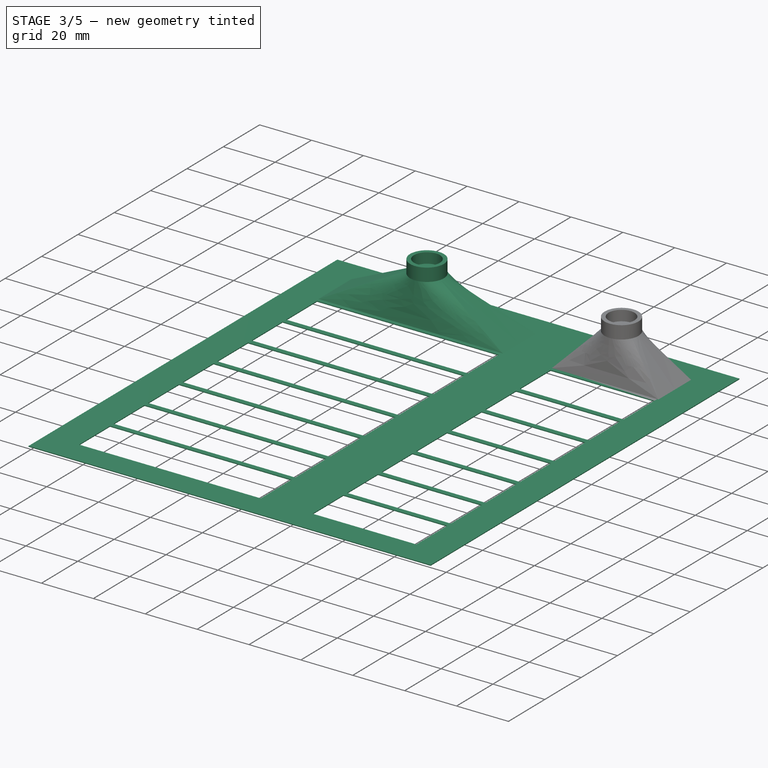
[diagram: stage 3 of 5 — iso view after this stage's code; geometry added in this stage tinted green]
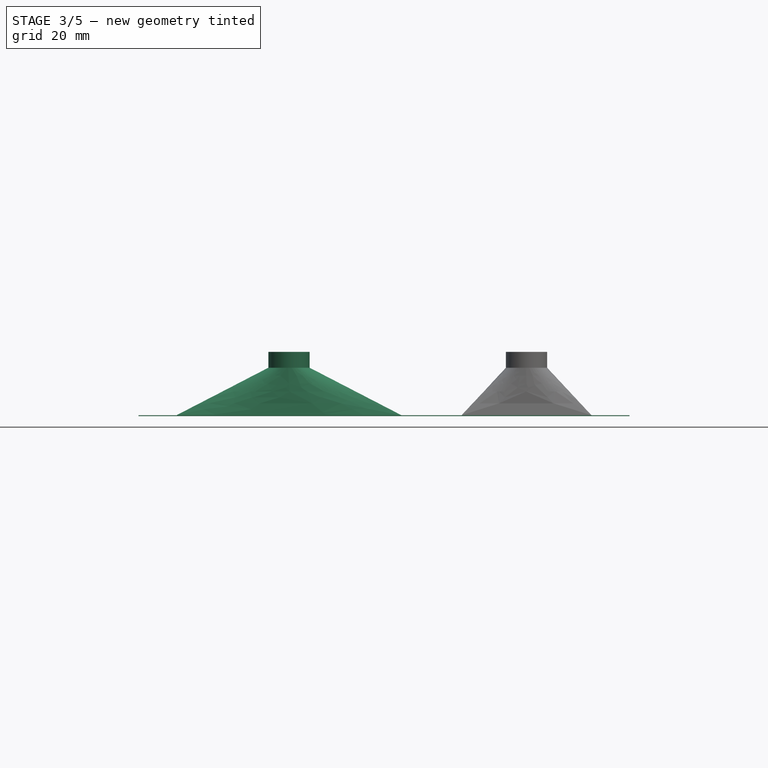
[diagram: stage 3 of 5 — front view after this stage's code; geometry added in this stage tinted green]
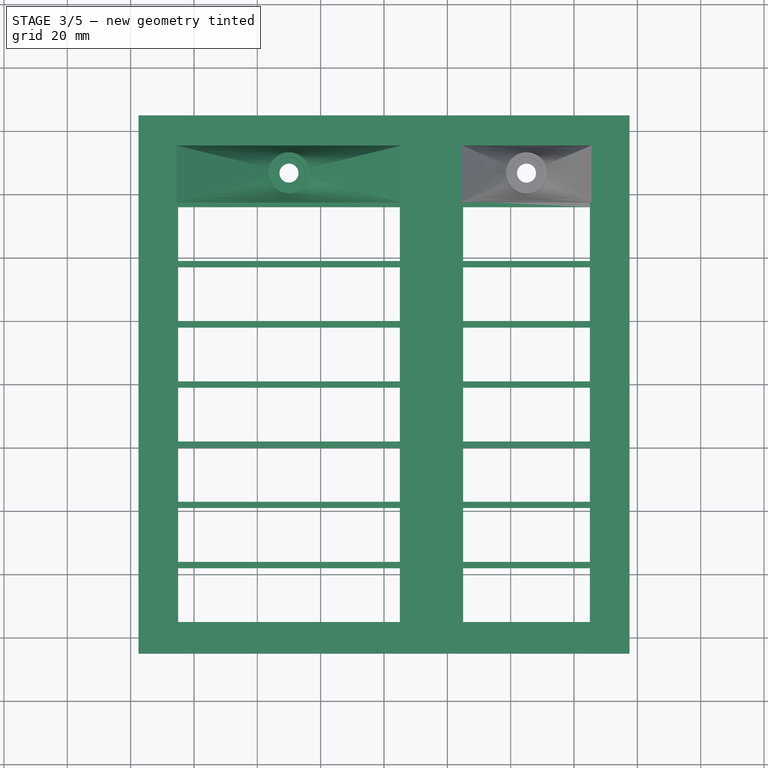
[diagram: stage 3 of 5 — top view after this stage's code; geometry added in this stage tinted green]
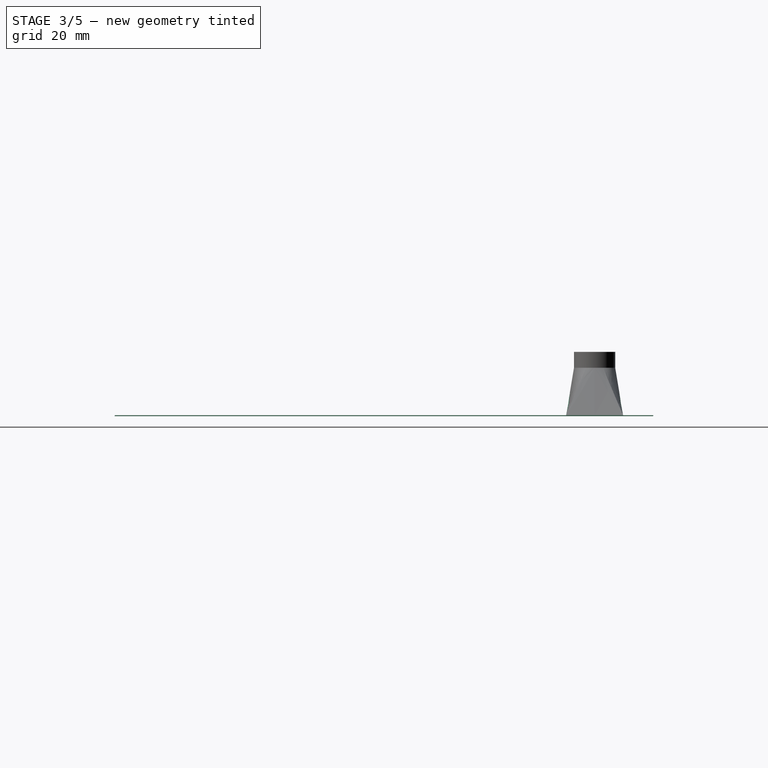
[diagram: stage 3 of 5 — right view after this stage's code; geometry added in this stage tinted green]
FEATURE [PartDesign::Body] Body001  label="Reflector001"
  Group = -> [ShapeBinder,Sketch001,Sketch002,AdditiveLoft,Sketch003,Pad001,Sketch004,Pocket,Hole]
  Origin = -> Origin001
  Tip = -> Hole
FEATURE [Sketcher::SketchObject] Sketch006
  FullyConstrained = true
  MapMode = 5
  Support = -> [XY_Plane002]
  sketch-geometry (72):
    g0: LineSegment StartX=-77.5 StartY=85 StartZ=0 EndX=77.5 EndY=85 EndZ=0
    g1: LineSegment StartX=77.5 StartY=85 StartZ=0 EndX=77.5 EndY=-85 EndZ=0
    g2: LineSegment StartX=77.5 StartY=-85 StartZ=0 EndX=-77.5 EndY=-85 EndZ=0
    g3: LineSegment StartX=-77.5 StartY=-85 StartZ=0 EndX=-77.5 EndY=85 EndZ=0
    g4: LineSegment StartX=-65 StartY=75 StartZ=0 EndX=65 EndY=75 EndZ=0
    g5: LineSegment StartX=65 StartY=75 StartZ=0 EndX=65 EndY=-75 EndZ=0
    g6: LineSegment StartX=65 StartY=-75 StartZ=0 EndX=-65 EndY=-75 EndZ=0
    g7: LineSegment StartX=-65 StartY=-75 StartZ=0 EndX=-65 EndY=75 EndZ=0
    g8: LineSegment StartX=-65 StartY=75 StartZ=0 EndX=5 EndY=75 EndZ=0
    g9: LineSegment StartX=5 StartY=75 StartZ=0 EndX=5 EndY=58 EndZ=0
    g10: LineSegment StartX=5 StartY=58 StartZ=0 EndX=-65 EndY=58 EndZ=0
    g11: LineSegment StartX=-65 StartY=58 StartZ=0 EndX=-65 EndY=75 EndZ=0
    g12: LineSegment StartX=25 StartY=75 StartZ=0 EndX=65 EndY=75 EndZ=0
    g13: LineSegment StartX=65 StartY=75 StartZ=0 EndX=65 EndY=58 EndZ=0
    g14: LineSegment StartX=65 StartY=58 StartZ=0 EndX=25 EndY=58 EndZ=0
    g15: LineSegment StartX=25 StartY=58 StartZ=0 EndX=25 EndY=75 EndZ=0
    g16: LineSegment StartX=-65 StartY=56 StartZ=0 EndX=5 EndY=56 EndZ=0
    g17: LineSegment StartX=5 StartY=56 StartZ=0 EndX=5 EndY=39 EndZ=0
    g18: LineSegment StartX=5 StartY=39 StartZ=0 EndX=-65 EndY=39 EndZ=0
    g19: LineSegment StartX=-65 StartY=39 StartZ=0 EndX=-65 EndY=56 EndZ=0
    g20: LineSegment StartX=25 StartY=56 StartZ=0 EndX=65 EndY=56 EndZ=0
    g21: LineSegment StartX=65 StartY=56 StartZ=0 EndX=65 EndY=39 EndZ=0
    g22: LineSegment StartX=65 StartY=39 StartZ=0 EndX=25 EndY=39 EndZ=0
    g23: LineSegment StartX=25 StartY=39 StartZ=0 EndX=25 EndY=56 EndZ=0
    g24: LineSegment StartX=-65 StartY=37 StartZ=0 EndX=5 EndY=37 EndZ=0
    g25: LineSegment StartX=5 StartY=37 StartZ=0 EndX=5 EndY=20 EndZ=0
    g26: LineSegment StartX=5 StartY=20 StartZ=0 EndX=-65 EndY=20 EndZ=0
    g27: LineSegment StartX=-65 StartY=20 StartZ=0 EndX=-65 EndY=37 EndZ=0
    g28: LineSegment StartX=25 StartY=37 StartZ=0 EndX=65 EndY=37 EndZ=0
    g29: LineSegment StartX=65 StartY=37 StartZ=0 EndX=65 EndY=20 EndZ=0
    g30: LineSegment StartX=65 StartY=20 StartZ=0 EndX=25 EndY=20 EndZ=0
    g31: LineSegment StartX=25 StartY=20 StartZ=0 EndX=25 EndY=37 EndZ=0
    g32: LineSegment StartX=-65 StartY=18 StartZ=0 EndX=5 EndY=18 EndZ=0
    g33: LineSegment StartX=5 StartY=18 StartZ=0 EndX=5 EndY=1 EndZ=0
    g34: LineSegment StartX=5 StartY=1 StartZ=0 EndX=-65 EndY=1 EndZ=0
    g35: LineSegment StartX=-65 StartY=1 StartZ=0 EndX=-65 EndY=18 EndZ=0
    g36: LineSegment StartX=25 StartY=18 StartZ=0 EndX=65 EndY=18 EndZ=0
    g37: LineSegment StartX=65 StartY=18 StartZ=0 EndX=65 EndY=1 EndZ=0
    g38: LineSegment StartX=65 StartY=1 StartZ=0 EndX=25 EndY=1 EndZ=0
    g39: LineSegment StartX=25 StartY=1 StartZ=0 EndX=25 EndY=18 EndZ=0
    g40: LineSegment StartX=-65 StartY=-1 StartZ=0 EndX=5 EndY=-1 EndZ=0
    g41: LineSegment StartX=5 StartY=-1 StartZ=0 EndX=5 EndY=-18 EndZ=0
    g42: LineSegment StartX=5 StartY=-18 StartZ=0 EndX=-65 EndY=-18 EndZ=0
    g43: LineSegment StartX=-65 StartY=-18 StartZ=0 EndX=-65 EndY=-1 EndZ=0
    g44: LineSegment StartX=25 StartY=-1 StartZ=0 EndX=65 EndY=-1 EndZ=0
    g45: LineSegment StartX=65 StartY=-1 StartZ=0 EndX=65 EndY=-18 EndZ=0
    g46: LineSegment StartX=65 StartY=-18 StartZ=0 EndX=25 EndY=-18 EndZ=0
    g47: LineSegment StartX=25 StartY=-18 StartZ=0 EndX=25 EndY=-1 EndZ=0
    g48: LineSegment StartX=-65 StartY=-20 StartZ=0 EndX=5 EndY=-20 EndZ=0
    g49: LineSegment StartX=5 StartY=-20 StartZ=0 EndX=5 EndY=-37 EndZ=0
    g50: LineSegment StartX=5 StartY=-37 StartZ=0 EndX=-65 EndY=-37 EndZ=0
    g51: LineSegment StartX=-65 StartY=-37 StartZ=0 EndX=-65 EndY=-20 EndZ=0
    g52: LineSegment StartX=25 StartY=-20 StartZ=0 EndX=65 EndY=-20 EndZ=0
    g53: LineSegment StartX=65 StartY=-20 StartZ=0 EndX=65 EndY=-37 EndZ=0
    g54: LineSegment StartX=65 StartY=-37 StartZ=0 EndX=25 EndY=-37 EndZ=0
    g55: LineSegment StartX=25 StartY=-37 StartZ=0 EndX=25 EndY=-20 EndZ=0
    g56: LineSegment StartX=-65 StartY=-39 StartZ=0 EndX=5 EndY=-39 EndZ=0
    g57: LineSegment StartX=5 StartY=-39 StartZ=0 EndX=5 EndY=-56 EndZ=0
    g58: LineSegment StartX=5 StartY=-56 StartZ=0 EndX=-65 EndY=-56 EndZ=0
    g59: LineSegment StartX=-65 StartY=-56 StartZ=0 EndX=-65 EndY=-39 EndZ=0
    g60: LineSegment StartX=25 StartY=-39 StartZ=0 EndX=65 EndY=-39 EndZ=0
    g61: LineSegment StartX=65 StartY=-39 StartZ=0 EndX=65 EndY=-56 EndZ=0
    g62: LineSegment StartX=65 StartY=-56 StartZ=0 EndX=25 EndY=-56 EndZ=0
    g63: LineSegment StartX=25 StartY=-56 StartZ=0 EndX=25 EndY=-39 EndZ=0
    g64: LineSegment StartX=-65 StartY=-58 StartZ=0 EndX=5 EndY=-58 EndZ=0
    g65: LineSegment StartX=5 StartY=-58 StartZ=0 EndX=5 EndY=-75 EndZ=0
    g66: LineSegment StartX=5 StartY=-75 StartZ=0 EndX=-65 EndY=-75 EndZ=0
    g67: LineSegment StartX=-65 StartY=-75 StartZ=0 EndX=-65 EndY=-58 EndZ=0
    g68: LineSegment StartX=25 StartY=-58 StartZ=0 EndX=65 EndY=-58 EndZ=0
    g69: LineSegment StartX=65 StartY=-58 StartZ=0 EndX=65 EndY=-75 EndZ=0
    g70: LineSegment StartX=65 StartY=-75 StartZ=0 EndX=25 EndY=-75 EndZ=0
    g71: LineSegment StartX=25 StartY=-75 StartZ=0 EndX=25 EndY=-58 EndZ=0
  constraints (212):
    c: Coincident(g0,g1)
    c: Coincident(g1,g2)
    c: Coincident(g2,g3)
    c: Coincident(g3,g0)
    c: Horizontal(g2)
    c: Vertical(g1)
    c: Symmetric(g0,g0,g-2)
    c: Symmetric(g0,g2,g-1)
    c: Distance(g0) = 155
    c: Distance(g1) = 170
    c: Coincident(g4,g5)
    c: Coincident(g5,g6)
    c: Coincident(g6,g7)
    c: Horizontal(g6)
    c: Vertical(g5)
    c: Symmetric(g4,g4,g-2)
    c: Symmetric(g4,g6,g-1)
    c: Distance(g4) = 130
    c: Distance(g5) = 150
    c: Coincident(g8,g9)
    c: Coincident(g9,g10)
    c: Coincident(g10,g11)
    c: Coincident(g11,g8)
    c: Horizontal(g8)
    c: Horizontal(g10)
    c: Vertical(g9)
    c: Vertical(g11)
    c: Distance(g8) = 70
    c: Distance(g9) = 17
    c: Coincident(g12,g13)
    c: Coincident(g13,g14)
    c: Coincident(g14,g15)
    c: Coincident(g15,g12)
    c: Horizontal(g12)
    c: Horizontal(g14)
    c: Vertical(g13)
    c: Vertical(g15)
    c: Distance(g12) = 40
    c: Distance(g13) = 17
    c: Coincident(g8,g4)
    c: Coincident(g12,g4)
    c: Vertical(g7)
    c: Equal(g7,g5)
    c: Coincident(g16,g17)
    c: Coincident(g17,g18)
    c: Coincident(g18,g19)
    c: Coincident(g19,g16)
    c: Horizontal(g16)
    c: Horizontal(g18)
    c: Vertical(g17)
    c: Vertical(g19)
    c: Equal(g8,g16) = 70
    c: Equal(g9,g17) = 20
    c: Coincident(g20,g21)
    c: Coincident(g21,g22)
    c: Coincident(g22,g23)
    c: Coincident(g23,g20)
    c: Horizontal(g20)
    c: Horizontal(g22)
    c: Vertical(g21)
    c: Vertical(g23)
    c: Equal(g12,g20) = 40
    c: Equal(g13,g21) = 20
    c: DistanceX(g16,g4) = 0
    c: DistanceX(g20,g4) = 0
    c: DistanceY(g16,g9) = 2
    c: DistanceY(g20,g14) = 2
    c: Coincident(g24,g25)
    c: Coincident(g25,g26)
    c: Coincident(g26,g27)
    c: Coincident(g27,g24)
    c: Horizontal(g24)
    c: Horizontal(g26)
    c: Vertical(g25)
    c: Vertical(g27)
    c: Equal(g8,g24) = 70
    c: Equal(g9,g25) = 20
    c: Coincident(g28,g29)
    c: Coincident(g29,g30)
    c: Coincident(g30,g31)
    c: Coincident(g31,g28)
    c: Horizontal(g28)
    c: Horizontal(g30)
    c: Vertical(g29)
    c: Vertical(g31)
    c: Equal(g12,g28) = 40
    c: Equal(g13,g29) = 20
    c: Coincident(g32,g33)
    c: Coincident(g33,g34)
    c: Coincident(g34,g35)
    c: Coincident(g35,g32)
    c: Horizontal(g32)
    c: Horizontal(g34)
    c: Vertical(g33)
    c: Vertical(g35)
    c: Equal(g24,g32) = 70
    c: Equal(g25,g33) = 20
    c: Coincident(g36,g37)
    c: Coincident(g37,g38)
    c: Coincident(g38,g39)
    c: Coincident(g39,g36)
    c: Horizontal(g36)
    c: Horizontal(g38)
    c: Vertical(g37)
    c: Vertical(g39)
    c: Equal(g28,g36) = 40
    c: Equal(g29,g37) = 20
    c: DistanceY(g32,g25) = 2
    c: DistanceY(g36,g30) = 2
    c: DistanceX(g4,g24) = 0
    c: DistanceX(g4,g28) = 0
    c: DistanceX(g4,g36) = 0
    c: DistanceY(g28,g22) = 2
    c: DistanceY(g24,g17) = 2
    c: DistanceX(g32,g4) = 0
    c: Coincident(g41,g42)
    c: Coincident(g42,g43)
    c: Coincident(g43,g40)
    c: Horizontal(g40)
    c: Horizontal(g42)
    c: Vertical(g41)
    c: Vertical(g43)
    c: Equal(g8,g40) = 70
    c: Equal(g9,g41) = 20
    c: Coincident(g44,g45)
    c: Coincident(g45,g46)
    c: Coincident(g46,g47)
    c: Coincident(g47,g44)
    c: Horizontal(g44)
    c: Horizontal(g46)
    c: Vertical(g45)
    c: Vertical(g47)
    c: Equal(g12,g44) = 40
    c: Equal(g13,g45) = 20
    c: Coincident(g48,g49)
    c: Coincident(g49,g50)
    c: Coincident(g50,g51)
    c: Coincident(g51,g48)
    c: Horizontal(g48)
    c: Horizontal(g50)
    c: Vertical(g49)
    c: Vertical(g51)
    c: Equal(g40,g48) = 70
    c: Equal(g41,g49) = 20
    c: Coincident(g52,g53)
    c: Coincident(g53,g54)
    c: Coincident(g54,g55)
    c: Coincident(g55,g52)
    c: Horizontal(g52)
    c: Horizontal(g54)
    c: Vertical(g53)
    c: Vertical(g55)
    c: Equal(g44,g52) = 40
    c: Equal(g45,g53) = 20
    c: DistanceY(g48,g41) = 2
    c: DistanceY(g52,g46) = 2
    c: Coincident(g56,g57)
    c: Coincident(g57,g58)
    c: Coincident(g58,g59)
    c: Coincident(g59,g56)
    c: Horizontal(g56)
    c: Horizontal(g58)
    c: Vertical(g57)
    c: Vertical(g59)
    c: Equal(g40,g56) = 70
    c: Equal(g41,g57) = 20
    c: Coincident(g60,g61)
    c: Coincident(g61,g62)
    c: Coincident(g62,g63)
    c: Coincident(g63,g60)
    c: Horizontal(g60)
    c: Horizontal(g62)
    c: Vertical(g61)
    c: Vertical(g63)
    c: Equal(g44,g60) = 40
    c: Equal(g45,g61) = 20
    c: Coincident(g64,g65)
    c: Coincident(g65,g66)
    c: Coincident(g66,g67)
    c: Coincident(g67,g64)
    c: Horizontal(g64)
    c: Horizontal(g66)
    c: Vertical(g65)
    c: Vertical(g67)
    c: Equal(g56,g64) = 70
    c: Equal(g57,g65) = 20
    c: Coincident(g68,g69)
    c: Coincident(g69,g70)
    c: Coincident(g70,g71)
    c: Coincident(g71,g68)
    c: Horizontal(g68)
    c: Horizontal(g70)
    c: Vertical(g69)
    c: Vertical(g71)
    c: Equal(g60,g68) = 40
    c: Equal(g61,g69) = 20
    c: DistanceY(g64,g57) = 2
    c: DistanceY(g68,g62) = 2
    c: DistanceY(g60,g54) = 2
    c: DistanceY(g56,g49) = 2
    c: DistanceX(g4,g48) = 0
    c: DistanceX(g56,g4) = 0
    c: DistanceX(g64,g4) = 0
    c: DistanceX(g4,g40) = 0
    c: DistanceY(g44,g38) = 2
    c: DistanceX(g4,g52) = 0
    c: DistanceX(g60,g4) = 0
    c: DistanceX(g68,g4) = 0
    c: Equal(g43,g41)
    c: Equal(g40,g42)
    c: DistanceY(g40,g34) = 2
    c: DistanceX(g44,g4) = 0
FEATURE [PartDesign::Pad] Pad002
  Direction = (0,0,1)
  Length = 0.3
  Length2 = 100
  Profile = -> Sketch006
  ReferenceAxis = -> Sketch006 [N_Axis]
  Type = 0
FEATURE [PartDesign::Body] Body006  label="Reflector006"
  Group = -> [ShapeBinder005,Sketch025,Sketch026,AdditiveLoft005,Sketch029,Pad010,Sketch027,Pocket005,Hole005]
  Origin = -> Origin006
  Placement = pos=(0,-95,0) rot=(0,0,1;0rad)
  Tip = -> Hole005
  expr: .Placement.Base.y = -19 * 5
FEATURE [Sketcher::SketchObject] Sketch033
  FullyConstrained = true
  MapMode = 5
  Support = -> [XY_Plane013]
  sketch-geometry (72):
    g0: LineSegment StartX=-77.5 StartY=85 StartZ=0 EndX=77.5 EndY=85 EndZ=0
    g1: LineSegment StartX=77.5 StartY=85 StartZ=0 EndX=77.5 EndY=-85 EndZ=0
    g2: LineSegment StartX=77.5 StartY=-85 StartZ=0 EndX=-77.5 EndY=-85 EndZ=0
    g3: LineSegment StartX=-77.5 StartY=-85 StartZ=0 EndX=-77.5 EndY=85 EndZ=0
    g4: LineSegment StartX=-65 StartY=75 StartZ=0 EndX=65 EndY=75 EndZ=0
    g5: LineSegment StartX=65 StartY=75 StartZ=0 EndX=65 EndY=-75 EndZ=0
    g6: LineSegment StartX=65 StartY=-75 StartZ=0 EndX=-65 EndY=-75 EndZ=0
    g7: LineSegment StartX=-65 StartY=-75 StartZ=0 EndX=-65 EndY=75 EndZ=0
    g8: LineSegment StartX=-65 StartY=75 StartZ=0 EndX=5 EndY=75 EndZ=0
    g9: LineSegment StartX=5 StartY=75 StartZ=0 EndX=5 EndY=58 EndZ=0
    g10: LineSegment StartX=5 StartY=58 StartZ=0 EndX=-65 EndY=58 EndZ=0
    g11: LineSegment StartX=-65 StartY=58 StartZ=0 EndX=-65 EndY=75 EndZ=0
    g12: LineSegment StartX=25 StartY=75 StartZ=0 EndX=65 EndY=75 EndZ=0
    g13: LineSegment StartX=65 StartY=75 StartZ=0 EndX=65 EndY=58 EndZ=0
    g14: LineSegment StartX=65 StartY=58 StartZ=0 EndX=25 EndY=58 EndZ=0
    g15: LineSegment StartX=25 StartY=58 StartZ=0 EndX=25 EndY=75 EndZ=0
    g16: LineSegment StartX=-65 StartY=56 StartZ=0 EndX=5 EndY=56 EndZ=0
    g17: LineSegment StartX=5 StartY=56 StartZ=0 EndX=5 EndY=39 EndZ=0
    g18: LineSegment StartX=5 StartY=39 StartZ=0 EndX=-65 EndY=39 EndZ=0
    g19: LineSegment StartX=-65 StartY=39 StartZ=0 EndX=-65 EndY=56 EndZ=0
    g20: LineSegment StartX=25 StartY=56 StartZ=0 EndX=65 EndY=56 EndZ=0
    g21: LineSegment StartX=65 StartY=56 StartZ=0 EndX=65 EndY=39 EndZ=0
    g22: LineSegment StartX=65 StartY=39 StartZ=0 EndX=25 EndY=39 EndZ=0
    g23: LineSegment StartX=25 StartY=39 StartZ=0 EndX=25 EndY=56 EndZ=0
    g24: LineSegment StartX=-65 StartY=37 StartZ=0 EndX=5 EndY=37 EndZ=0
    g25: LineSegment StartX=5 StartY=37 StartZ=0 EndX=5 EndY=20 EndZ=0
    g26: LineSegment StartX=5 StartY=20 StartZ=0 EndX=-65 EndY=20 EndZ=0
    g27: LineSegment StartX=-65 StartY=20 StartZ=0 EndX=-65 EndY=37 EndZ=0
    g28: LineSegment StartX=25 StartY=37 StartZ=0 EndX=65 EndY=37 EndZ=0
    g29: LineSegment StartX=65 StartY=37 StartZ=0 EndX=65 EndY=20 EndZ=0
    g30: LineSegment StartX=65 StartY=20 StartZ=0 EndX=25 EndY=20 EndZ=0
    g31: LineSegment StartX=25 StartY=20 StartZ=0 EndX=25 EndY=37 EndZ=0
    g32: LineSegment StartX=-65 StartY=18 StartZ=0 EndX=5 EndY=18 EndZ=0
    g33: LineSegment StartX=5 StartY=18 StartZ=0 EndX=5 EndY=1 EndZ=0
    g34: LineSegment StartX=5 StartY=1 StartZ=0 EndX=-65 EndY=1 EndZ=0
    g35: LineSegment StartX=-65 StartY=1 StartZ=0 EndX=-65 EndY=18 EndZ=0
    g36: LineSegment StartX=25 StartY=18 StartZ=0 EndX=65 EndY=18 EndZ=0
    g37: LineSegment StartX=65 StartY=18 StartZ=0 EndX=65 EndY=1 EndZ=0
    g38: LineSegment StartX=65 StartY=1 StartZ=0 EndX=25 EndY=1 EndZ=0
    g39: LineSegment StartX=25 StartY=1 StartZ=0 EndX=25 EndY=18 EndZ=0
    g40: LineSegment StartX=-65 StartY=-1 StartZ=0 EndX=5 EndY=-1 EndZ=0
    g41: LineSegment StartX=5 StartY=-1 StartZ=0 EndX=5 EndY=-18 EndZ=0
    g42: LineSegment StartX=5 StartY=-18 StartZ=0 EndX=-65 EndY=-18 EndZ=0
    g43: LineSegment StartX=-65 StartY=-18 StartZ=0 EndX=-65 EndY=-1 EndZ=0
    g44: LineSegment StartX=25 StartY=-1 StartZ=0 EndX=65 EndY=-1 EndZ=0
    g45: LineSegment StartX=65 StartY=-1 StartZ=0 EndX=65 EndY=-18 EndZ=0
    g46: LineSegment StartX=65 StartY=-18 StartZ=0 EndX=25 EndY=-18 EndZ=0
    g47: LineSegment StartX=25 StartY=-18 StartZ=0 EndX=25 EndY=-1 EndZ=0
    g48: LineSegment StartX=-65 StartY=-20 StartZ=0 EndX=5 EndY=-20 EndZ=0
    g49: LineSegment StartX=5 StartY=-20 StartZ=0 EndX=5 EndY=-37 EndZ=0
    g50: LineSegment StartX=5 StartY=-37 StartZ=0 EndX=-65 EndY=-37 EndZ=0
    g51: LineSegment StartX=-65 StartY=-37 StartZ=0 EndX=-65 EndY=-20 EndZ=0
    g52: LineSegment StartX=25 StartY=-20 StartZ=0 EndX=65 EndY=-20 EndZ=0
    g53: LineSegment StartX=65 StartY=-20 StartZ=0 EndX=65 EndY=-37 EndZ=0
    g54: LineSegment StartX=65 StartY=-37 StartZ=0 EndX=25 EndY=-37 EndZ=0
    g55: LineSegment StartX=25 StartY=-37 StartZ=0 EndX=25 EndY=-20 EndZ=0
    g56: LineSegment StartX=-65 StartY=-39 StartZ=0 EndX=5 EndY=-39 EndZ=0
    g57: LineSegment StartX=5 StartY=-39 StartZ=0 EndX=5 EndY=-56 EndZ=0
    g58: LineSegment StartX=5 StartY=-56 StartZ=0 EndX=-65 EndY=-56 EndZ=0
    g59: LineSegment StartX=-65 StartY=-56 StartZ=0 EndX=-65 EndY=-39 EndZ=0
    g60: LineSegment StartX=25 StartY=-39 StartZ=0 EndX=65 EndY=-39 EndZ=0
    g61: LineSegment StartX=65 StartY=-39 StartZ=0 EndX=65 EndY=-56 EndZ=0
    g62: LineSegment StartX=65 StartY=-56 StartZ=0 EndX=25 EndY=-56 EndZ=0
    g63: LineSegment StartX=25 StartY=-56 StartZ=0 EndX=25 EndY=-39 EndZ=0
    g64: LineSegment StartX=-65 StartY=-58 StartZ=0 EndX=5 EndY=-58 EndZ=0
    g65: LineSegment StartX=5 StartY=-58 StartZ=0 EndX=5 EndY=-75 EndZ=0
    g66: LineSegment StartX=5 StartY=-75 StartZ=0 EndX=-65 EndY=-75 EndZ=0
    g67: LineSegment StartX=-65 StartY=-75 StartZ=0 EndX=-65 EndY=-58 EndZ=0
    g68: LineSegment StartX=25 StartY=-58 StartZ=0 EndX=65 EndY=-58 EndZ=0
    g69: LineSegment StartX=65 StartY=-58 StartZ=0 EndX=65 EndY=-75 EndZ=0
    g70: LineSegment StartX=65 StartY=-75 StartZ=0 EndX=25 EndY=-75 EndZ=0
    g71: LineSegment StartX=25 StartY=-75 StartZ=0 EndX=25 EndY=-58 EndZ=0
  constraints (212):
    c: Coincident(g0,g1)
    c: Coincident(g1,g2)
    c: Coincident(g2,g3)
    c: Coincident(g3,g0)
    c: Horizontal(g2)
    c: Vertical(g1)
    c: Symmetric(g0,g0,g-2)
    c: Symmetric(g0,g2,g-1)
    c: Distance(g0) = 155
    c: Distance(g1) = 170
    c: Coincident(g4,g5)
    c: Coincident(g5,g6)
    c: Coincident(g6,g7)
    c: Horizontal(g6)
    c: Vertical(g5)
    c: Symmetric(g4,g4,g-2)
    c: Symmetric(g4,g6,g-1)
    c: Distance(g4) = 130
    c: Distance(g5) = 150
    c: Coincident(g8,g9)
    c: Coincident(g9,g10)
    c: Coincident(g10,g11)
    c: Coincident(g11,g8)
    c: Horizontal(g8)
    c: Horizontal(g10)
    c: Vertical(g9)
    c: Vertical(g11)
    c: Distance(g8) = 70
    c: Distance(g9) = 17
    c: Coincident(g12,g13)
    c: Coincident(g13,g14)
    c: Coincident(g14,g15)
    c: Coincident(g15,g12)
    c: Horizontal(g12)
    c: Horizontal(g14)
    c: Vertical(g13)
    c: Vertical(g15)
    c: Distance(g12) = 40
    c: Distance(g13) = 17
    c: Coincident(g8,g4)
    c: Coincident(g12,g4)
    c: Vertical(g7)
    c: Equal(g7,g5)
    c: Coincident(g16,g17)
    c: Coincident(g17,g18)
    c: Coincident(g18,g19)
    c: Coincident(g19,g16)
    c: Horizontal(g16)
    c: Horizontal(g18)
    c: Vertical(g17)
    c: Vertical(g19)
    c: Equal(g8,g16) = 70
    c: Equal(g9,g17) = 20
    c: Coincident(g20,g21)
    c: Coincident(g21,g22)
    c: Coincident(g22,g23)
    c: Coincident(g23,g20)
    c: Horizontal(g20)
    c: Horizontal(g22)
    c: Vertical(g21)
    c: Vertical(g23)
    c: Equal(g12,g20) = 40
    c: Equal(g13,g21) = 20
    c: DistanceX(g16,g4) = 0
    c: DistanceX(g20,g4) = 0
    c: DistanceY(g16,g9) = 2
    c: DistanceY(g20,g14) = 2
    c: Coincident(g24,g25)
    c: Coincident(g25,g26)
    c: Coincident(g26,g27)
    c: Coincident(g27,g24)
    c: Horizontal(g24)
    c: Horizontal(g26)
    c: Vertical(g25)
    c: Vertical(g27)
    c: Equal(g8,g24) = 70
    c: Equal(g9,g25) = 20
    c: Coincident(g28,g29)
    c: Coincident(g29,g30)
    c: Coincident(g30,g31)
    c: Coincident(g31,g28)
    c: Horizontal(g28)
    c: Horizontal(g30)
    c: Vertical(g29)
    c: Vertical(g31)
    c: Equal(g12,g28) = 40
    c: Equal(g13,g29) = 20
    c: Coincident(g32,g33)
    c: Coincident(g33,g34)
    c: Coincident(g34,g35)
    c: Coincident(g35,g32)
    c: Horizontal(g32)
    c: Horizontal(g34)
    c: Vertical(g33)
    c: Vertical(g35)
    c: Equal(g24,g32) = 70
    c: Equal(g25,g33) = 20
    c: Coincident(g36,g37)
    c: Coincident(g37,g38)
    c: Coincident(g38,g39)
    c: Coincident(g39,g36)
    c: Horizontal(g36)
    c: Horizontal(g38)
    c: Vertical(g37)
    c: Vertical(g39)
    c: Equal(g28,g36) = 40
    c: Equal(g29,g37) = 20
    c: DistanceY(g32,g25) = 2
    c: DistanceY(g36,g30) = 2
    c: DistanceX(g4,g24) = 0
    c: DistanceX(g4,g28) = 0
    c: DistanceX(g4,g36) = 0
    c: DistanceY(g28,g22) = 2
    c: DistanceY(g24,g17) = 2
    c: DistanceX(g32,g4) = 0
    c: Coincident(g41,g42)
    c: Coincident(g42,g43)
    c: Coincident(g43,g40)
    c: Horizontal(g40)
    c: Horizontal(g42)
    c: Vertical(g41)
    c: Vertical(g43)
    c: Equal(g8,g40) = 70
    c: Equal(g9,g41) = 20
    c: Coincident(g44,g45)
    c: Coincident(g45,g46)
    c: Coincident(g46,g47)
    c: Coincident(g47,g44)
    c: Horizontal(g44)
    c: Horizontal(g46)
    c: Vertical(g45)
    c: Vertical(g47)
    c: Equal(g12,g44) = 40
    c: Equal(g13,g45) = 20
    c: Coincident(g48,g49)
    c: Coincident(g49,g50)
    c: Coincident(g50,g51)
    c: Coincident(g51,g48)
    c: Horizontal(g48)
    c: Horizontal(g50)
    c: Vertical(g49)
    c: Vertical(g51)
    c: Equal(g40,g48) = 70
    c: Equal(g41,g49) = 20
    c: Coincident(g52,g53)
    c: Coincident(g53,g54)
    c: Coincident(g54,g55)
    c: Coincident(g55,g52)
    c: Horizontal(g52)
    c: Horizontal(g54)
    c: Vertical(g53)
    c: Vertical(g55)
    c: Equal(g44,g52) = 40
    c: Equal(g45,g53) = 20
    c: DistanceY(g48,g41) = 2
    c: DistanceY(g52,g46) = 2
    c: Coincident(g56,g57)
    c: Coincident(g57,g58)
    c: Coincident(g58,g59)
    c: Coincident(g59,g56)
    c: Horizontal(g56)
    c: Horizontal(g58)
    c: Vertical(g57)
    c: Vertical(g59)
    c: Equal(g40,g56) = 70
    c: Equal(g41,g57) = 20
    c: Coincident(g60,g61)
    c: Coincident(g61,g62)
    c: Coincident(g62,g63)
    c: Coincident(g63,g60)
    c: Horizontal(g60)
    c: Horizontal(g62)
    c: Vertical(g61)
    c: Vertical(g63)
    c: Equal(g44,g60) = 40
    c: Equal(g45,g61) = 20
    c: Coincident(g64,g65)
    c: Coincident(g65,g66)
    c: Coincident(g66,g67)
    c: Coincident(g67,g64)
    c: Horizontal(g64)
    c: Horizontal(g66)
    c: Vertical(g65)
    c: Vertical(g67)
    c: Equal(g56,g64) = 70
    c: Equal(g57,g65) = 20
    c: Coincident(g68,g69)
    c: Coincident(g69,g70)
    c: Coincident(g70,g71)
    c: Coincident(g71,g68)
    c: Horizontal(g68)
    c: Horizontal(g70)
    c: Vertical(g69)
    c: Vertical(g71)
    c: Equal(g60,g68) = 40
    c: Equal(g61,g69) = 20
    c: DistanceY(g64,g57) = 2
    c: DistanceY(g68,g62) = 2
    c: DistanceY(g60,g54) = 2
    c: DistanceY(g56,g49) = 2
    c: DistanceX(g4,g48) = 0
    c: DistanceX(g56,g4) = 0
    c: DistanceX(g64,g4) = 0
    c: DistanceX(g4,g40) = 0
    c: DistanceY(g44,g38) = 2
    c: DistanceX(g4,g52) = 0
    c: DistanceX(g60,g4) = 0
    c: DistanceX(g68,g4) = 0
    c: Equal(g43,g41)
    c: Equal(g40,g42)
    c: DistanceY(g40,g34) = 2
    c: DistanceX(g44,g4) = 0
FEATURE [PartDesign::Pad] Pad013
  Direction = (0,0,1)
  Length = 0.3
  Length2 = 100
  Profile = -> Sketch033
  ReferenceAxis = -> Sketch033 [N_Axis]
  Type = 0
FEATURE [PartDesign::ShapeBinder] ShapeBinder006
  Placement = pos=(0,0,0.3) rot=(0,0,1;0rad)
  Support = -> [Pad013]
  TraceSupport = false
FEATURE [Sketcher::SketchObject] Sketch030
  ExternalGeometry = -> [ShapeBinder006]
  FullyConstrained = true
  MapMode = 5
  Placement = pos=(0,0,0.3) rot=(0,0,1;0rad)
  Support = -> [ShapeBinder006]
  sketch-geometry (8):
    g0: LineSegment StartX=-65.5 StartY=75.5 StartZ=0 EndX=5.5 EndY=75.5 EndZ=0
    g1: LineSegment StartX=5.5 StartY=75.5 StartZ=0 EndX=5.5 EndY=57.5 EndZ=0
    g2: LineSegment StartX=5.5 StartY=57.5 StartZ=0 EndX=-65.5 EndY=57.5 EndZ=0
    g3: LineSegment StartX=-65.5 StartY=57.5 StartZ=0 EndX=-65.5 EndY=75.5 EndZ=0
    g4: LineSegment StartX=-65 StartY=75 StartZ=0 EndX=5 EndY=75 EndZ=0
    g5: LineSegment StartX=5 StartY=75 StartZ=0 EndX=5 EndY=58 EndZ=0
    g6: LineSegment StartX=5 StartY=58 StartZ=0 EndX=-65 EndY=58 EndZ=0
    g7: LineSegment StartX=-65 StartY=58 StartZ=0 EndX=-65 EndY=75 EndZ=0
  constraints (22):
    c: Coincident(g0,g1)
    c: Coincident(g1,g2)
    c: Coincident(g2,g3)
    c: Coincident(g3,g0)
    c: Horizontal(g0)
    c: Horizontal(g2)
    c: Vertical(g1)
    c: Vertical(g3)
    c: DistanceY(g-4,g0) = 0.5
    c: DistanceX(g0,g-4) = 0.5
    c: DistanceY(g2,g-6) = 0.5
    c: DistanceX(g-5,g0) = 0.5
    c: Coincident(g4,g5)
    c: Coincident(g5,g6)
    c: Coincident(g6,g7)
    c: Coincident(g7,g4)
    c: Horizontal(g4)
    c: Horizontal(g6)
    c: Vertical(g5)
    c: Vertical(g7)
    c: Coincident(g4,g-4)
    c: Coincident(g5,g-6)
FEATURE [Sketcher::SketchObject] Sketch034
  AttachmentOffset = pos=(0,0,15) rot=(0,0,1;0rad)
  ExternalGeometry = -> [Sketch030]
  FullyConstrained = true
  MapMode = 5
  Placement = pos=(0,0,15.3) rot=(0,0,1;0rad)
  Support = -> [ShapeBinder006]
  sketch-geometry (4):
    g0: LineSegment StartX=-65.5 StartY=66.5 StartZ=0 EndX=5.5 EndY=66.5 EndZ=0
    g1: LineSegment StartX=-30 StartY=75.5 StartZ=0 EndX=-30 EndY=57.5 EndZ=0
    g2: Circle CenterX=-30 CenterY=66.5 CenterZ=0 NormalX=0 NormalY=0 NormalZ=1 AngleXU=0 Radius=6.5
    g3: Circle CenterX=-30 CenterY=66.5 CenterZ=0 NormalX=0 NormalY=0 NormalZ=1 AngleXU=0 Radius=6
  constraints (11):
    c: Symmetric(g-6,g-5,g1)
    c: Symmetric(g-6,g-6,g0)
    c: PointOnObject(g1,g-4)
    c: PointOnObject(g1,g-3)
    c: PointOnObject(g0,g-6)
    c: PointOnObject(g0,g-5)
    c: PointOnObject(g2,g0)
    c: PointOnObject(g2,g1)
    c: Diameter(g2) = 13
    c: Coincident(g3,g2)
    c: Diameter(g3) = 12
FEATURE [PartDesign::AdditiveLoft] AdditiveLoft006
  Closed = false
  Placement = pos=(0,0,0.3) rot=(0,0,1;0rad)
  Profile = -> Sketch030
  Ruled = false
  Sections = -> [Sketch034]
FEATURE [PartDesign::Body] Body007  label="Reflector007"
  Group = -> [ShapeBinder006,Sketch030,Sketch034,AdditiveLoft006,Sketch032,Pad012,Sketch031,Pocket006,Hole006]
  Origin = -> Origin007
  Placement = pos=(0,-114,0) rot=(0,0,1;0rad)
  Tip = -> Hole006
  expr: .Placement.Base.y = -19 * 6
FEATURE [Sketcher::SketchObject] Sketch036
  FullyConstrained = true
  MapMode = 5
  Support = -> [XY_Plane014]
  sketch-geometry (72):
    g0: LineSegment StartX=-77.5 StartY=85 StartZ=0 EndX=77.5 EndY=85 EndZ=0
    g1: LineSegment StartX=77.5 StartY=85 StartZ=0 EndX=77.5 EndY=-85 EndZ=0
    g2: LineSegment StartX=77.5 StartY=-85 StartZ=0 EndX=-77.5 EndY=-85 EndZ=0
    g3: LineSegment StartX=-77.5 StartY=-85 StartZ=0 EndX=-77.5 EndY=85 EndZ=0
    g4: LineSegment StartX=-65 StartY=75 StartZ=0 EndX=65 EndY=75 EndZ=0
    g5: LineSegment StartX=65 StartY=75 StartZ=0 EndX=65 EndY=-75 EndZ=0
    g6: LineSegment StartX=65 StartY=-75 StartZ=0 EndX=-65 EndY=-75 EndZ=0
    g7: LineSegment StartX=-65 StartY=-75 StartZ=0 EndX=-65 EndY=75 EndZ=0
    g8: LineSegment StartX=-65 StartY=75 StartZ=0 EndX=5 EndY=75 EndZ=0
    g9: LineSegment StartX=5 StartY=75 StartZ=0 EndX=5 EndY=58 EndZ=0
    g10: LineSegment StartX=5 StartY=58 StartZ=0 EndX=-65 EndY=58 EndZ=0
    g11: LineSegment StartX=-65 StartY=58 StartZ=0 EndX=-65 EndY=75 EndZ=0
    g12: LineSegment StartX=25 StartY=75 StartZ=0 EndX=65 EndY=75 EndZ=0
    g13: LineSegment StartX=65 StartY=75 StartZ=0 EndX=65 EndY=58 EndZ=0
    g14: LineSegment StartX=65 StartY=58 StartZ=0 EndX=25 EndY=58 EndZ=0
    g15: LineSegment StartX=25 StartY=58 StartZ=0 EndX=25 EndY=75 EndZ=0
    g16: LineSegment StartX=-65 StartY=56 StartZ=0 EndX=5 EndY=56 EndZ=0
    g17: LineSegment StartX=5 StartY=56 StartZ=0 EndX=5 EndY=39 EndZ=0
    g18: LineSegment StartX=5 StartY=39 StartZ=0 EndX=-65 EndY=39 EndZ=0
    g19: LineSegment StartX=-65 StartY=39 StartZ=0 EndX=-65 EndY=56 EndZ=0
    g20: LineSegment StartX=25 StartY=56 StartZ=0 EndX=65 EndY=56 EndZ=0
    g21: LineSegment StartX=65 StartY=56 StartZ=0 EndX=65 EndY=39 EndZ=0
    g22: LineSegment StartX=65 StartY=39 StartZ=0 EndX=25 EndY=39 EndZ=0
    g23: LineSegment StartX=25 StartY=39 StartZ=0 EndX=25 EndY=56 EndZ=0
    g24: LineSegment StartX=-65 StartY=37 StartZ=0 EndX=5 EndY=37 EndZ=0
    g25: LineSegment StartX=5 StartY=37 StartZ=0 EndX=5 EndY=20 EndZ=0
    g26: LineSegment StartX=5 StartY=20 StartZ=0 EndX=-65 EndY=20 EndZ=0
    g27: LineSegment StartX=-65 StartY=20 StartZ=0 EndX=-65 EndY=37 EndZ=0
    g28: LineSegment StartX=25 StartY=37 StartZ=0 EndX=65 EndY=37 EndZ=0
    g29: LineSegment StartX=65 StartY=37 StartZ=0 EndX=65 EndY=20 EndZ=0
    g30: LineSegment StartX=65 StartY=20 StartZ=0 EndX=25 EndY=20 EndZ=0
    g31: LineSegment StartX=25 StartY=20 StartZ=0 EndX=25 EndY=37 EndZ=0
    g32: LineSegment StartX=-65 StartY=18 StartZ=0 EndX=5 EndY=18 EndZ=0
    g33: LineSegment StartX=5 StartY=18 StartZ=0 EndX=5 EndY=1 EndZ=0
    g34: LineSegment StartX=5 StartY=1 StartZ=0 EndX=-65 EndY=1 EndZ=0
    g35: LineSegment StartX=-65 StartY=1 StartZ=0 EndX=-65 EndY=18 EndZ=0
    g36: LineSegment StartX=25 StartY=18 StartZ=0 EndX=65 EndY=18 EndZ=0
    g37: LineSegment StartX=65 StartY=18 StartZ=0 EndX=65 EndY=1 EndZ=0
    g38: LineSegment StartX=65 StartY=1 StartZ=0 EndX=25 EndY=1 EndZ=0
    g39: LineSegment StartX=25 StartY=1 StartZ=0 EndX=25 EndY=18 EndZ=0
    g40: LineSegment StartX=-65 StartY=-1 StartZ=0 EndX=5 EndY=-1 EndZ=0
    g41: LineSegment StartX=5 StartY=-1 StartZ=0 EndX=5 EndY=-18 EndZ=0
    g42: LineSegment StartX=5 StartY=-18 StartZ=0 EndX=-65 EndY=-18 EndZ=0
    g43: LineSegment StartX=-65 StartY=-18 StartZ=0 EndX=-65 EndY=-1 EndZ=0
    g44: LineSegment StartX=25 StartY=-1 StartZ=0 EndX=65 EndY=-1 EndZ=0
    g45: LineSegment StartX=65 StartY=-1 StartZ=0 EndX=65 EndY=-18 EndZ=0
    g46: LineSegment StartX=65 StartY=-18 StartZ=0 EndX=25 EndY=-18 EndZ=0
    g47: LineSegment StartX=25 StartY=-18 StartZ=0 EndX=25 EndY=-1 EndZ=0
    g48: LineSegment StartX=-65 StartY=-20 StartZ=0 EndX=5 EndY=-20 EndZ=0
    g49: LineSegment StartX=5 StartY=-20 StartZ=0 EndX=5 EndY=-37 EndZ=0
    g50: LineSegment StartX=5 StartY=-37 StartZ=0 EndX=-65 EndY=-37 EndZ=0
    g51: LineSegment StartX=-65 StartY=-37 StartZ=0 EndX=-65 EndY=-20 EndZ=0
    g52: LineSegment StartX=25 StartY=-20 StartZ=0 EndX=65 EndY=-20 EndZ=0
    g53: LineSegment StartX=65 StartY=-20 StartZ=0 EndX=65 EndY=-37 EndZ=0
    g54: LineSegment StartX=65 StartY=-37 StartZ=0 EndX=25 EndY=-37 EndZ=0
    g55: LineSegment StartX=25 StartY=-37 StartZ=0 EndX=25 EndY=-20 EndZ=0
    g56: LineSegment StartX=-65 StartY=-39 StartZ=0 EndX=5 EndY=-39 EndZ=0
    g57: LineSegment StartX=5 StartY=-39 StartZ=0 EndX=5 EndY=-56 EndZ=0
    g58: LineSegment StartX=5 StartY=-56 StartZ=0 EndX=-65 EndY=-56 EndZ=0
    g59: LineSegment StartX=-65 StartY=-56 StartZ=0 EndX=-65 EndY=-39 EndZ=0
    g60: LineSegment StartX=25 StartY=-39 StartZ=0 EndX=65 EndY=-39 EndZ=0
    g61: LineSegment StartX=65 StartY=-39 StartZ=0 EndX=65 EndY=-56 EndZ=0
    g62: LineSegment StartX=65 StartY=-56 StartZ=0 EndX=25 EndY=-56 EndZ=0
    g63: LineSegment StartX=25 StartY=-56 StartZ=0 EndX=25 EndY=-39 EndZ=0
    g64: LineSegment StartX=-65 StartY=-58 StartZ=0 EndX=5 EndY=-58 EndZ=0
    g65: LineSegment StartX=5 StartY=-58 StartZ=0 EndX=5 EndY=-75 EndZ=0
    g66: LineSegment StartX=5 StartY=-75 StartZ=0 EndX=-65 EndY=-75 EndZ=0
    g67: LineSegment StartX=-65 StartY=-75 StartZ=0 EndX=-65 EndY=-58 EndZ=0
    g68: LineSegment StartX=25 StartY=-58 StartZ=0 EndX=65 EndY=-58 EndZ=0
    g69: LineSegment StartX=65 StartY=-58 StartZ=0 EndX=65 EndY=-75 EndZ=0
    g70: LineSegment StartX=65 StartY=-75 StartZ=0 EndX=25 EndY=-75 EndZ=0
    g71: LineSegment StartX=25 StartY=-75 StartZ=0 EndX=25 EndY=-58 EndZ=0
  constraints (212):
    c: Coincident(g0,g1)
    c: Coincident(g1,g2)
    c: Coincident(g2,g3)
    c: Coincident(g3,g0)
    c: Horizontal(g2)
    c: Vertical(g1)
    c: Symmetric(g0,g0,g-2)
    c: Symmetric(g0,g2,g-1)
    c: Distance(g0) = 155
    c: Distance(g1) = 170
    c: Coincident(g4,g5)
    c: Coincident(g5,g6)
    c: Coincident(g6,g7)
    c: Horizontal(g6)
    c: Vertical(g5)
    c: Symmetric(g4,g4,g-2)
    c: Symmetric(g4,g6,g-1)
    c: Distance(g4) = 130
    c: Distance(g5) = 150
    c: Coincident(g8,g9)
    c: Coincident(g9,g10)
    c: Coincident(g10,g11)
    c: Coincident(g11,g8)
    c: Horizontal(g8)
    c: Horizontal(g10)
    c: Vertical(g9)
    c: Vertical(g11)
    c: Distance(g8) = 70
    c: Distance(g9) = 17
    c: Coincident(g12,g13)
    c: Coincident(g13,g14)
    c: Coincident(g14,g15)
    c: Coincident(g15,g12)
    c: Horizontal(g12)
    c: Horizontal(g14)
    c: Vertical(g13)
    c: Vertical(g15)
    c: Distance(g12) = 40
    c: Distance(g13) = 17
    c: Coincident(g8,g4)
    c: Coincident(g12,g4)
    c: Vertical(g7)
    c: Equal(g7,g5)
    c: Coincident(g16,g17)
    c: Coincident(g17,g18)
    c: Coincident(g18,g19)
    c: Coincident(g19,g16)
    c: Horizontal(g16)
    c: Horizontal(g18)
    c: Vertical(g17)
    c: Vertical(g19)
    c: Equal(g8,g16) = 70
    c: Equal(g9,g17) = 20
    c: Coincident(g20,g21)
    c: Coincident(g21,g22)
    c: Coincident(g22,g23)
    c: Coincident(g23,g20)
    c: Horizontal(g20)
    c: Horizontal(g22)
    c: Vertical(g21)
    c: Vertical(g23)
    c: Equal(g12,g20) = 40
    c: Equal(g13,g21) = 20
    c: DistanceX(g16,g4) = 0
    c: DistanceX(g20,g4) = 0
    c: DistanceY(g16,g9) = 2
    c: DistanceY(g20,g14) = 2
    c: Coincident(g24,g25)
    c: Coincident(g25,g26)
    c: Coincident(g26,g27)
    c: Coincident(g27,g24)
    c: Horizontal(g24)
    c: Horizontal(g26)
    c: Vertical(g25)
    c: Vertical(g27)
    c: Equal(g8,g24) = 70
    c: Equal(g9,g25) = 20
    c: Coincident(g28,g29)
    c: Coincident(g29,g30)
    c: Coincident(g30,g31)
    c: Coincident(g31,g28)
    c: Horizontal(g28)
    c: Horizontal(g30)
    c: Vertical(g29)
    c: Vertical(g31)
    c: Equal(g12,g28) = 40
    c: Equal(g13,g29) = 20
    c: Coincident(g32,g33)
    c: Coincident(g33,g34)
    c: Coincident(g34,g35)
    c: Coincident(g35,g32)
    c: Horizontal(g32)
    c: Horizontal(g34)
    c: Vertical(g33)
    c: Vertical(g35)
    c: Equal(g24,g32) = 70
    c: Equal(g25,g33) = 20
    c: Coincident(g36,g37)
    c: Coincident(g37,g38)
    c: Coincident(g38,g39)
    c: Coincident(g39,g36)
    c: Horizontal(g36)
    c: Horizontal(g38)
    c: Vertical(g37)
    c: Vertical(g39)
    c: Equal(g28,g36) = 40
    c: Equal(g29,g37) = 20
    c: DistanceY(g32,g25) = 2
    c: DistanceY(g36,g30) = 2
    c: DistanceX(g4,g24) = 0
    c: DistanceX(g4,g28) = 0
    c: DistanceX(g4,g36) = 0
    c: DistanceY(g28,g22) = 2
    c: DistanceY(g24,g17) = 2
    c: DistanceX(g32,g4) = 0
    c: Coincident(g41,g42)
    c: Coincident(g42,g43)
    c: Coincident(g43,g40)
    c: Horizontal(g40)
    c: Horizontal(g42)
    c: Vertical(g41)
    c: Vertical(g43)
    c: Equal(g8,g40) = 70
    c: Equal(g9,g41) = 20
    c: Coincident(g44,g45)
    c: Coincident(g45,g46)
    c: Coincident(g46,g47)
    c: Coincident(g47,g44)
    c: Horizontal(g44)
    c: Horizontal(g46)
    c: Vertical(g45)
    c: Vertical(g47)
    c: Equal(g12,g44) = 40
    c: Equal(g13,g45) = 20
    c: Coincident(g48,g49)
    c: Coincident(g49,g50)
    c: Coincident(g50,g51)
    c: Coincident(g51,g48)
    c: Horizontal(g48)
    c: Horizontal(g50)
    c: Vertical(g49)
    c: Vertical(g51)
    c: Equal(g40,g48) = 70
    c: Equal(g41,g49) = 20
    c: Coincident(g52,g53)
    c: Coincident(g53,g54)
    c: Coincident(g54,g55)
    c: Coincident(g55,g52)
    c: Horizontal(g52)
    c: Horizontal(g54)
    c: Vertical(g53)
    c: Vertical(g55)
    c: Equal(g44,g52) = 40
    c: Equal(g45,g53) = 20
    c: DistanceY(g48,g41) = 2
    c: DistanceY(g52,g46) = 2
    c: Coincident(g56,g57)
    c: Coincident(g57,g58)
    c: Coincident(g58,g59)
    c: Coincident(g59,g56)
    c: Horizontal(g56)
    c: Horizontal(g58)
    c: Vertical(g57)
    c: Vertical(g59)
    c: Equal(g40,g56) = 70
    c: Equal(g41,g57) = 20
    c: Coincident(g60,g61)
    c: Coincident(g61,g62)
    c: Coincident(g62,g63)
    c: Coincident(g63,g60)
    c: Horizontal(g60)
    c: Horizontal(g62)
    c: Vertical(g61)
    c: Vertical(g63)
    c: Equal(g44,g60) = 40
    c: Equal(g45,g61) = 20
    c: Coincident(g64,g65)
    c: Coincident(g65,g66)
    c: Coincident(g66,g67)
    c: Coincident(g67,g64)
    c: Horizontal(g64)
    c: Horizontal(g66)
    c: Vertical(g65)
    c: Vertical(g67)
    c: Equal(g56,g64) = 70
    c: Equal(g57,g65) = 20
    c: Coincident(g68,g69)
    c: Coincident(g69,g70)
    c: Coincident(g70,g71)
    c: Coincident(g71,g68)
    c: Horizontal(g68)
    c: Horizontal(g70)
    c: Vertical(g69)
    c: Vertical(g71)
    c: Equal(g60,g68) = 40
    c: Equal(g61,g69) = 20
    c: DistanceY(g64,g57) = 2
    c: DistanceY(g68,g62) = 2
    c: DistanceY(g60,g54) = 2
    c: DistanceY(g56,g49) = 2
    c: DistanceX(g4,g48) = 0
    c: DistanceX(g56,g4) = 0
    c: DistanceX(g64,g4) = 0
    c: DistanceX(g4,g40) = 0
    c: DistanceY(g44,g38) = 2
    c: DistanceX(g4,g52) = 0
    c: DistanceX(g60,g4) = 0
    c: DistanceX(g68,g4) = 0
    c: Equal(g43,g41)
    c: Equal(g40,g42)
    c: DistanceY(g40,g34) = 2
    c: DistanceX(g44,g4) = 0
FEATURE [PartDesign::Pad] Pad014
  Direction = (0,0,1)
  Length = 0.3
  Length2 = 100
  Profile = -> Sketch036
  ReferenceAxis = -> Sketch036 [N_Axis]
  Type = 0
FEATURE [PartDesign::ShapeBinder] ShapeBinder007
  Placement = pos=(0,0,0.3) rot=(0,0,1;0rad)
  Support = -> [Pad014]
  TraceSupport = false
FEATURE [Sketcher::SketchObject] Sketch038
  ExternalGeometry = -> [ShapeBinder007]
  FullyConstrained = true
  MapMode = 5
  Placement = pos=(0,0,0.3) rot=(0,0,1;0rad)
  Support = -> [ShapeBinder007]
  sketch-geometry (8):
    g0: LineSegment StartX=-65.5 StartY=75.5 StartZ=0 EndX=5.5 EndY=75.5 EndZ=0
    g1: LineSegment StartX=5.5 StartY=75.5 StartZ=0 EndX=5.5 EndY=57.5 EndZ=0
    g2: LineSegment StartX=5.5 StartY=57.5 StartZ=0 EndX=-65.5 EndY=57.5 EndZ=0
    g3: LineSegment StartX=-65.5 StartY=57.5 StartZ=0 EndX=-65.5 EndY=75.5 EndZ=0
    g4: LineSegment StartX=-65 StartY=75 StartZ=0 EndX=5 EndY=75 EndZ=0
    g5: LineSegment StartX=5 StartY=75 StartZ=0 EndX=5 EndY=58 EndZ=0
    g6: LineSegment StartX=5 StartY=58 StartZ=0 EndX=-65 EndY=58 EndZ=0
    g7: LineSegment StartX=-65 StartY=58 StartZ=0 EndX=-65 EndY=75 EndZ=0
  constraints (22):
    c: Coincident(g0,g1)
    c: Coincident(g1,g2)
    c: Coincident(g2,g3)
    c: Coincident(g3,g0)
    c: Horizontal(g0)
    c: Horizontal(g2)
    c: Vertical(g1)
    c: Vertical(g3)
    c: DistanceY(g-4,g0) = 0.5
    c: DistanceX(g0,g-4) = 0.5
    c: DistanceY(g2,g-6) = 0.5
    c: DistanceX(g-5,g0) = 0.5
    c: Coincident(g4,g5)
    c: Coincident(g5,g6)
    c: Coincident(g6,g7)
    c: Coincident(g7,g4)
    c: Horizontal(g4)
    c: Horizontal(g6)
    c: Vertical(g5)
    c: Vertical(g7)
    c: Coincident(g4,g-4)
    c: Coincident(g5,g-6)
FEATURE [Sketcher::SketchObject] Sketch037
  AttachmentOffset = pos=(0,0,15) rot=(0,0,1;0rad)
  ExternalGeometry = -> [Sketch038]
  FullyConstrained = true
  MapMode = 5
  Placement = pos=(0,0,15.3) rot=(0,0,1;0rad)
  Support = -> [ShapeBinder007]
  sketch-geometry (4):
    g0: LineSegment StartX=-65.5 StartY=66.5 StartZ=0 EndX=5.5 EndY=66.5 EndZ=0
    g1: LineSegment StartX=-30 StartY=75.5 StartZ=0 EndX=-30 EndY=57.5 EndZ=0
    g2: Circle CenterX=-30 CenterY=66.5 CenterZ=0 NormalX=0 NormalY=0 NormalZ=1 AngleXU=0 Radius=6.5
    g3: Circle CenterX=-30 CenterY=66.5 CenterZ=0 NormalX=0 NormalY=0 NormalZ=1 AngleXU=0 Radius=6
  constraints (11):
    c: Symmetric(g-6,g-5,g1)
    c: Symmetric(g-6,g-6,g0)
    c: PointOnObject(g1,g-4)
    c: PointOnObject(g1,g-3)
    c: PointOnObject(g0,g-6)
    c: PointOnObject(g0,g-5)
    c: PointOnObject(g2,g0)
    c: PointOnObject(g2,g1)
    c: Diameter(g2) = 13
    c: Coincident(g3,g2)
    c: Diameter(g3) = 12
FEATURE [PartDesign::AdditiveLoft] AdditiveLoft007
  Closed = false
  Placement = pos=(0,0,0.3) rot=(0,0,1;0rad)
  Profile = -> Sketch038
  Ruled = false
  Sections = -> [Sketch037]
FEATURE [Sketcher::SketchObject] Sketch035
  ExternalGeometry = -> [AdditiveLoft007]
  FullyConstrained = true
  MapMode = 5
  Placement = pos=(0,0,15.3) rot=(0,0,1;0rad)
  Support = -> [AdditiveLoft007]
  sketch-geometry (1):
    g0: Circle CenterX=-30 CenterY=66.5 CenterZ=0 NormalX=0 NormalY=0 NormalZ=1 AngleXU=0 Radius=6.5
  constraints (2):
    c: Coincident(g0,g-3)
    c: Diameter(g0) = 13
FEATURE [PartDesign::Pad] Pad015
  BaseFeature = -> AdditiveLoft007
  Direction = (0,0,1)
  Length = 5
  Length2 = 100
  Placement = pos=(0,0,0.3) rot=(0,0,1;0rad)
  Profile = -> Sketch035
  ReferenceAxis = -> Sketch035 [N_Axis]
  Type = 0
FEATURE [Sketcher::SketchObject] Sketch039
  ExternalGeometry = -> [Pad015]
  FullyConstrained = true
  MapMode = 5
  Placement = pos=(0,0,20.3) rot=(0,0,1;0rad)
  Support = -> [Pad015]
  sketch-geometry (1):
    g0: Circle CenterX=-30 CenterY=66.5 CenterZ=0 NormalX=0 NormalY=0 NormalZ=1 AngleXU=0 Radius=5
  constraints (2):
    c: Coincident(g0,g-3)
    c: Diameter(g0) = 10
FEATURE [PartDesign::Pocket] Pocket007
  BaseFeature = -> Pad015
  Direction = (0,0,-1)
  Length = 4
  Length2 = 100
  Placement = pos=(0,0,0.3) rot=(0,0,1;0rad)
  Profile = -> Sketch039
  ReferenceAxis = -> Sketch039 [N_Axis]
  Type = 0
FEATURE [PartDesign::Hole] Hole007
  BaseFeature = -> Pocket007
  CustomThreadClearance = 0
  Depth = 25
  DepthType = 0
  Diameter = 6
  DrillForDepth = false
  DrillPoint = 1
  DrillPointAngle = 118
  HoleCutCountersinkAngle = 90
  HoleCutCustomValues = false
  HoleCutDepth = 0
  HoleCutDiameter = 6.1
  HoleCutType = 0
  ModelThread = false
  Placement = pos=(0,0,0.3) rot=(0,0,1;0rad)
  Profile = -> Pocket007 [Face16]
  Tapered = false
  TaperedAngle = 90
  ThreadClass = 0
  ThreadDepth = 25
  ThreadDepthType = 0
  ThreadDirection = 0
  ThreadFit = 0
  ThreadSize = 0
  ThreadType = 0
  Threaded = false
  UseCustomThreadClearance = false
FEATURE [PartDesign::Body] Body008  label="Reflector008"
  Group = -> [ShapeBinder007,Sketch038,Sketch037,AdditiveLoft007,Sketch035,Pad015,Sketch039,Pocket007,Hole007]
  Origin = -> Origin008
  Placement = pos=(0,-133,0) rot=(0,0,1;0rad)
  Tip = -> Hole007
  expr: .Placement.Base.y = -19 * 7
FEATURE [PartDesign::ShapeBinder] ShapeBinder008
  Placement = pos=(0,0,0.3) rot=(0,0,1;0rad)
  Support = -> [Pad002]
  TraceSupport = false
FEATURE [Sketcher::SketchObject] Sketch040
  ExternalGeometry = -> [ShapeBinder008]
  FullyConstrained = true
  MapMode = 5
  Placement = pos=(0,0,0.3) rot=(0,0,1;0rad)
  Support = -> [ShapeBinder008]
  sketch-geometry (8):
    g0: LineSegment StartX=24.5 StartY=75.5 StartZ=0 EndX=65.5 EndY=75.5 EndZ=0
    g1: LineSegment StartX=65.5 StartY=75.5 StartZ=0 EndX=65.5 EndY=57.5 EndZ=0
    g2: LineSegment StartX=65.5 StartY=57.5 StartZ=0 EndX=24.5 EndY=57.5 EndZ=0
    g3: LineSegment StartX=24.5 StartY=57.5 StartZ=0 EndX=24.5 EndY=75.5 EndZ=0
    g4: LineSegment StartX=25 StartY=75 StartZ=0 EndX=65 EndY=75 EndZ=0
    g5: LineSegment StartX=65 StartY=75 StartZ=0 EndX=65 EndY=58 EndZ=0
    g6: LineSegment StartX=65 StartY=58 StartZ=0 EndX=25 EndY=58 EndZ=0
    g7: LineSegment StartX=25 StartY=58 StartZ=0 EndX=25 EndY=75 EndZ=0
  constraints (22):
    c: Coincident(g0,g1)
    c: Coincident(g1,g2)
    c: Coincident(g2,g3)
    c: Coincident(g3,g0)
    c: Horizontal(g0)
    c: Horizontal(g2)
    c: Vertical(g1)
    c: Vertical(g3)
    c: DistanceX(g0,g-5) = 0.5
    c: DistanceY(g-5,g0) = 0.5
    c: DistanceX(g-4,g0) = 0.5
    c: DistanceY(g1,g-6) = 0.5
    c: Coincident(g4,g5)
    c: Coincident(g5,g6)
    c: Coincident(g6,g7)
    c: Coincident(g7,g4)
    c: Horizontal(g4)
    c: Horizontal(g6)
    c: Vertical(g5)
    c: Vertical(g7)
    c: Coincident(g4,g-5)
    c: Coincident(g5,g-6)
FEATURE [Sketcher::SketchObject] Sketch041
  AttachmentOffset = pos=(0,0,15) rot=(0,0,1;0rad)
  ExternalGeometry = -> [Sketch040,ShapeBinder008]
  FullyConstrained = true
  MapMode = 5
  Placement = pos=(0,0,15.3) rot=(0,0,1;0rad)
  Support = -> [ShapeBinder008]
  sketch-geometry (4):
    g0: LineSegment StartX=45 StartY=75 StartZ=0 EndX=45 EndY=58 EndZ=0
    g1: LineSegment StartX=25 StartY=66.5 StartZ=0 EndX=65 EndY=66.5 EndZ=0
    g2: Circle CenterX=45 CenterY=66.5 CenterZ=0 NormalX=0 NormalY=0 NormalZ=1 AngleXU=0 Radius=6.5
    g3: Circle CenterX=45 CenterY=66.5 CenterZ=0 NormalX=0 NormalY=0 NormalZ=1 AngleXU=0 Radius=6
  constraints (11):
    c: PointOnObject(g0,g-3)
    c: PointOnObject(g0,g-6)
    c: PointOnObject(g1,g-5)
    c: PointOnObject(g1,g-4)
    c: Symmetric(g-5,g-6,g1)
    c: Symmetric(g-5,g-4,g0)
    c: PointOnObject(g2,g0)
    c: Diameter(g2) = 13
    c: PointOnObject(g2,g1)
    c: Coincident(g3,g2)
    c: Diameter(g3) = 12
FEATURE [PartDesign::AdditiveLoft] AdditiveLoft008
  Closed = false
  Placement = pos=(0,0,0.3) rot=(0,0,1;0rad)
  Profile = -> Sketch041
  Ruled = false
  Sections = -> [Sketch040]
FEATURE [Sketcher::SketchObject] Sketch042
  ExternalGeometry = -> [AdditiveLoft008]
  FullyConstrained = true
  MapMode = 5
  Placement = pos=(0,0,15.3) rot=(0,0,1;0rad)
  Support = -> [AdditiveLoft008]
  sketch-geometry (1):
    g0: Circle CenterX=45 CenterY=66.5 CenterZ=0 NormalX=0 NormalY=0 NormalZ=1 AngleXU=0 Radius=6.5
  constraints (2):
    c: Coincident(g0,g-3)
    c: Diameter(g0) = 13
FEATURE [PartDesign::Pad] Pad016
  BaseFeature = -> AdditiveLoft008
  Direction = (0,0,1)
  Length = 5
  Length2 = 100
  Placement = pos=(0,0,0.3) rot=(0,0,1;0rad)
  Profile = -> Sketch042
  ReferenceAxis = -> Sketch042 [N_Axis]
  Type = 0
FEATURE [Sketcher::SketchObject] Sketch043
  ExternalGeometry = -> [Pad016]
  FullyConstrained = true
  MapMode = 5
  Placement = pos=(0,0,20.3) rot=(0,0,1;0rad)
  Support = -> [Pad016]
  sketch-geometry (1):
    g0: Circle CenterX=45 CenterY=66.5 CenterZ=0 NormalX=0 NormalY=0 NormalZ=1 AngleXU=0 Radius=5
  constraints (2):
    c: Coincident(g0,g-3)
    c: Diameter(g0) = 10
FEATURE [PartDesign::Pocket] Pocket008
  BaseFeature = -> Pad016
  Direction = (0,0,-1)
  Length = 4
  Length2 = 100
  Placement = pos=(0,0,0.3) rot=(0,0,1;0rad)
  Profile = -> Sketch043
  ReferenceAxis = -> Sketch043 [N_Axis]
  Type = 0
FEATURE [PartDesign::Hole] Hole008
  BaseFeature = -> Pocket008
  CustomThreadClearance = 0
  Depth = 25
  DepthType = 0
  Diameter = 6
  DrillForDepth = false
  DrillPoint = 1
  DrillPointAngle = 118
  HoleCutCountersinkAngle = 90
  HoleCutCustomValues = false
  HoleCutDepth = 0
  HoleCutDiameter = 6.1
  HoleCutType = 0
  ModelThread = false
  Placement = pos=(0,0,0.3) rot=(0,0,1;0rad)
  Profile = -> Pocket008 [Face16]
  Tapered = false
  TaperedAngle = 90
  ThreadClass = 0
  ThreadDepth = 25
  ThreadDepthType = 0
  ThreadDirection = 0
  ThreadFit = 0
  ThreadSize = 0
  ThreadType = 0
  Threaded = false
  UseCustomThreadClearance = false
FEATURE [PartDesign::Body] Body009  label="Reflector009"
  Group = -> [ShapeBinder008,Sketch040,Sketch041,AdditiveLoft008,Sketch042,Pad016,Sketch043,Pocket008,Hole008]
  Origin = -> Origin009
  Tip = -> Hole008
FEATURE [Sketcher::SketchObject] Sketch044
  FullyConstrained = true
  MapMode = 5
  Support = -> [XY_Plane017]
  sketch-geometry (72):
    g0: LineSegment StartX=-77.5 StartY=85 StartZ=0 EndX=77.5 EndY=85 EndZ=0
    g1: LineSegment StartX=77.5 StartY=85 StartZ=0 EndX=77.5 EndY=-85 EndZ=0
    g2: LineSegment StartX=77.5 StartY=-85 StartZ=0 EndX=-77.5 EndY=-85 EndZ=0
    g3: LineSegment StartX=-77.5 StartY=-85 StartZ=0 EndX=-77.5 EndY=85 EndZ=0
    g4: LineSegment StartX=-65 StartY=75 StartZ=0 EndX=65 EndY=75 EndZ=0
    g5: LineSegment StartX=65 StartY=75 StartZ=0 EndX=65 EndY=-75 EndZ=0
    g6: LineSegment StartX=65 StartY=-75 StartZ=0 EndX=-65 EndY=-75 EndZ=0
    g7: LineSegment StartX=-65 StartY=-75 StartZ=0 EndX=-65 EndY=75 EndZ=0
    g8: LineSegment StartX=-65 StartY=75 StartZ=0 EndX=5 EndY=75 EndZ=0
    g9: LineSegment StartX=5 StartY=75 StartZ=0 EndX=5 EndY=58 EndZ=0
    g10: LineSegment StartX=5 StartY=58 StartZ=0 EndX=-65 EndY=58 EndZ=0
    g11: LineSegment StartX=-65 StartY=58 StartZ=0 EndX=-65 EndY=75 EndZ=0
    g12: LineSegment StartX=25 StartY=75 StartZ=0 EndX=65 EndY=75 EndZ=0
    g13: LineSegment StartX=65 StartY=75 StartZ=0 EndX=65 EndY=58 EndZ=0
    g14: LineSegment StartX=65 StartY=58 StartZ=0 EndX=25 EndY=58 EndZ=0
    g15: LineSegment StartX=25 StartY=58 StartZ=0 EndX=25 EndY=75 EndZ=0
    g16: LineSegment StartX=-65 StartY=56 StartZ=0 EndX=5 EndY=56 EndZ=0
    g17: LineSegment StartX=5 StartY=56 StartZ=0 EndX=5 EndY=39 EndZ=0
    g18: LineSegment StartX=5 StartY=39 StartZ=0 EndX=-65 EndY=39 EndZ=0
    g19: LineSegment StartX=-65 StartY=39 StartZ=0 EndX=-65 EndY=56 EndZ=0
    g20: LineSegment StartX=25 StartY=56 StartZ=0 EndX=65 EndY=56 EndZ=0
    g21: LineSegment StartX=65 StartY=56 StartZ=0 EndX=65 EndY=39 EndZ=0
    g22: LineSegment StartX=65 StartY=39 StartZ=0 EndX=25 EndY=39 EndZ=0
    g23: LineSegment StartX=25 StartY=39 StartZ=0 EndX=25 EndY=56 EndZ=0
    g24: LineSegment StartX=-65 StartY=37 StartZ=0 EndX=5 EndY=37 EndZ=0
    g25: LineSegment StartX=5 StartY=37 StartZ=0 EndX=5 EndY=20 EndZ=0
    g26: LineSegment StartX=5 StartY=20 StartZ=0 EndX=-65 EndY=20 EndZ=0
    g27: LineSegment StartX=-65 StartY=20 StartZ=0 EndX=-65 EndY=37 EndZ=0
    g28: LineSegment StartX=25 StartY=37 StartZ=0 EndX=65 EndY=37 EndZ=0
    g29: LineSegment StartX=65 StartY=37 StartZ=0 EndX=65 EndY=20 EndZ=0
    g30: LineSegment StartX=65 StartY=20 StartZ=0 EndX=25 EndY=20 EndZ=0
    g31: LineSegment StartX=25 StartY=20 StartZ=0 EndX=25 EndY=37 EndZ=0
    g32: LineSegment StartX=-65 StartY=18 StartZ=0 EndX=5 EndY=18 EndZ=0
    g33: LineSegment StartX=5 StartY=18 StartZ=0 EndX=5 EndY=1 EndZ=0
    g34: LineSegment StartX=5 StartY=1 StartZ=0 EndX=-65 EndY=1 EndZ=0
    g35: LineSegment StartX=-65 StartY=1 StartZ=0 EndX=-65 EndY=18 EndZ=0
    g36: LineSegment StartX=25 StartY=18 StartZ=0 EndX=65 EndY=18 EndZ=0
    g37: LineSegment StartX=65 StartY=18 StartZ=0 EndX=65 EndY=1 EndZ=0
    g38: LineSegment StartX=65 StartY=1 StartZ=0 EndX=25 EndY=1 EndZ=0
    g39: LineSegment StartX=25 StartY=1 StartZ=0 EndX=25 EndY=18 EndZ=0
    g40: LineSegment StartX=-65 StartY=-1 StartZ=0 EndX=5 EndY=-1 EndZ=0
    g41: LineSegment StartX=5 StartY=-1 StartZ=0 EndX=5 EndY=-18 EndZ=0
    g42: LineSegment StartX=5 StartY=-18 StartZ=0 EndX=-65 EndY=-18 EndZ=0
    g43: LineSegment StartX=-65 StartY=-18 StartZ=0 EndX=-65 EndY=-1 EndZ=0
    g44: LineSegment StartX=25 StartY=-1 StartZ=0 EndX=65 EndY=-1 EndZ=0
    g45: LineSegment StartX=65 StartY=-1 StartZ=0 EndX=65 EndY=-18 EndZ=0
    g46: LineSegment StartX=65 StartY=-18 StartZ=0 EndX=25 EndY=-18 EndZ=0
    g47: LineSegment StartX=25 StartY=-18 StartZ=0 EndX=25 EndY=-1 EndZ=0
    g48: LineSegment StartX=-65 StartY=-20 StartZ=0 EndX=5 EndY=-20 EndZ=0
    g49: LineSegment StartX=5 StartY=-20 StartZ=0 EndX=5 EndY=-37 EndZ=0
    g50: LineSegment StartX=5 StartY=-37 StartZ=0 EndX=-65 EndY=-37 EndZ=0
    g51: LineSegment StartX=-65 StartY=-37 StartZ=0 EndX=-65 EndY=-20 EndZ=0
    g52: LineSegment StartX=25 StartY=-20 StartZ=0 EndX=65 EndY=-20 EndZ=0
    g53: LineSegment StartX=65 StartY=-20 StartZ=0 EndX=65 EndY=-37 EndZ=0
    g54: LineSegment StartX=65 StartY=-37 StartZ=0 EndX=25 EndY=-37 EndZ=0
    g55: LineSegment StartX=25 StartY=-37 StartZ=0 EndX=25 EndY=-20 EndZ=0
    g56: LineSegment StartX=-65 StartY=-39 StartZ=0 EndX=5 EndY=-39 EndZ=0
    g57: LineSegment StartX=5 StartY=-39 StartZ=0 EndX=5 EndY=-56 EndZ=0
    g58: LineSegment StartX=5 StartY=-56 StartZ=0 EndX=-65 EndY=-56 EndZ=0
    g59: LineSegment StartX=-65 StartY=-56 StartZ=0 EndX=-65 EndY=-39 EndZ=0
    g60: LineSegment StartX=25 StartY=-39 StartZ=0 EndX=65 EndY=-39 EndZ=0
    g61: LineSegment StartX=65 StartY=-39 StartZ=0 EndX=65 EndY=-56 EndZ=0
    g62: LineSegment StartX=65 StartY=-56 StartZ=0 EndX=25 EndY=-56 EndZ=0
    g63: LineSegment StartX=25 StartY=-56 StartZ=0 EndX=25 EndY=-39 EndZ=0
    g64: LineSegment StartX=-65 StartY=-58 StartZ=0 EndX=5 EndY=-58 EndZ=0
    g65: LineSegment StartX=5 StartY=-58 StartZ=0 EndX=5 EndY=-75 EndZ=0
    g66: LineSegment StartX=5 StartY=-75 StartZ=0 EndX=-65 EndY=-75 EndZ=0
    g67: LineSegment StartX=-65 StartY=-75 StartZ=0 EndX=-65 EndY=-58 EndZ=0
    g68: LineSegment StartX=25 StartY=-58 StartZ=0 EndX=65 EndY=-58 EndZ=0
    g69: LineSegment StartX=65 StartY=-58 StartZ=0 EndX=65 EndY=-75 EndZ=0
    g70: LineSegment StartX=65 StartY=-75 StartZ=0 EndX=25 EndY=-75 EndZ=0
    g71: LineSegment StartX=25 StartY=-75 StartZ=0 EndX=25 EndY=-58 EndZ=0
  constraints (212):
    c: Coincident(g0,g1)
    c: Coincident(g1,g2)
    c: Coincident(g2,g3)
    c: Coincident(g3,g0)
    c: Horizontal(g2)
    c: Vertical(g1)
    c: Symmetric(g0,g0,g-2)
    c: Symmetric(g0,g2,g-1)
    c: Distance(g0) = 155
    c: Distance(g1) = 170
    c: Coincident(g4,g5)
    c: Coincident(g5,g6)
    c: Coincident(g6,g7)
    c: Horizontal(g6)
    c: Vertical(g5)
    c: Symmetric(g4,g4,g-2)
    c: Symmetric(g4,g6,g-1)
    c: Distance(g4) = 130
    c: Distance(g5) = 150
    c: Coincident(g8,g9)
    c: Coincident(g9,g10)
    c: Coincident(g10,g11)
    c: Coincident(g11,g8)
    c: Horizontal(g8)
    c: Horizontal(g10)
    c: Vertical(g9)
    c: Vertical(g11)
    c: Distance(g8) = 70
    c: Distance(g9) = 17
    c: Coincident(g12,g13)
    c: Coincident(g13,g14)
    c: Coincident(g14,g15)
    c: Coincident(g15,g12)
    c: Horizontal(g12)
    c: Horizontal(g14)
    c: Vertical(g13)
    c: Vertical(g15)
    c: Distance(g12) = 40
    c: Distance(g13) = 17
    c: Coincident(g8,g4)
    c: Coincident(g12,g4)
    c: Vertical(g7)
    c: Equal(g7,g5)
    c: Coincident(g16,g17)
    c: Coincident(g17,g18)
    c: Coincident(g18,g19)
    c: Coincident(g19,g16)
    c: Horizontal(g16)
    c: Horizontal(g18)
    c: Vertical(g17)
    c: Vertical(g19)
    c: Equal(g8,g16) = 70
    c: Equal(g9,g17) = 20
    c: Coincident(g20,g21)
    c: Coincident(g21,g22)
    c: Coincident(g22,g23)
    c: Coincident(g23,g20)
    c: Horizontal(g20)
    c: Horizontal(g22)
    c: Vertical(g21)
    c: Vertical(g23)
    c: Equal(g12,g20) = 40
    c: Equal(g13,g21) = 20
    c: DistanceX(g16,g4) = 0
    c: DistanceX(g20,g4) = 0
    c: DistanceY(g16,g9) = 2
    c: DistanceY(g20,g14) = 2
    c: Coincident(g24,g25)
    c: Coincident(g25,g26)
    c: Coincident(g26,g27)
    c: Coincident(g27,g24)
    c: Horizontal(g24)
    c: Horizontal(g26)
    c: Vertical(g25)
    c: Vertical(g27)
    c: Equal(g8,g24) = 70
    c: Equal(g9,g25) = 20
    c: Coincident(g28,g29)
    c: Coincident(g29,g30)
    c: Coincident(g30,g31)
    c: Coincident(g31,g28)
    c: Horizontal(g28)
    c: Horizontal(g30)
    c: Vertical(g29)
    c: Vertical(g31)
    c: Equal(g12,g28) = 40
    c: Equal(g13,g29) = 20
    c: Coincident(g32,g33)
    c: Coincident(g33,g34)
    c: Coincident(g34,g35)
    c: Coincident(g35,g32)
    c: Horizontal(g32)
    c: Horizontal(g34)
    c: Vertical(g33)
    c: Vertical(g35)
    c: Equal(g24,g32) = 70
    c: Equal(g25,g33) = 20
    c: Coincident(g36,g37)
    c: Coincident(g37,g38)
    c: Coincident(g38,g39)
    c: Coincident(g39,g36)
    c: Horizontal(g36)
    c: Horizontal(g38)
    c: Vertical(g37)
    c: Vertical(g39)
    c: Equal(g28,g36) = 40
    c: Equal(g29,g37) = 20
    c: DistanceY(g32,g25) = 2
    c: DistanceY(g36,g30) = 2
    c: DistanceX(g4,g24) = 0
    c: DistanceX(g4,g28) = 0
    c: DistanceX(g4,g36) = 0
    c: DistanceY(g28,g22) = 2
    c: DistanceY(g24,g17) = 2
    c: DistanceX(g32,g4) = 0
    c: Coincident(g41,g42)
    c: Coincident(g42,g43)
    c: Coincident(g43,g40)
    c: Horizontal(g40)
    c: Horizontal(g42)
    c: Vertical(g41)
    c: Vertical(g43)
    c: Equal(g8,g40) = 70
    c: Equal(g9,g41) = 20
    c: Coincident(g44,g45)
    c: Coincident(g45,g46)
    c: Coincident(g46,g47)
    c: Coincident(g47,g44)
    c: Horizontal(g44)
    c: Horizontal(g46)
    c: Vertical(g45)
    c: Vertical(g47)
    c: Equal(g12,g44) = 40
    c: Equal(g13,g45) = 20
    c: Coincident(g48,g49)
    c: Coincident(g49,g50)
    c: Coincident(g50,g51)
    c: Coincident(g51,g48)
    c: Horizontal(g48)
    c: Horizontal(g50)
    c: Vertical(g49)
    c: Vertical(g51)
    c: Equal(g40,g48) = 70
    c: Equal(g41,g49) = 20
    c: Coincident(g52,g53)
    c: Coincident(g53,g54)
    c: Coincident(g54,g55)
    c: Coincident(g55,g52)
    c: Horizontal(g52)
    c: Horizontal(g54)
    c: Vertical(g53)
    c: Vertical(g55)
    c: Equal(g44,g52) = 40
    c: Equal(g45,g53) = 20
    c: DistanceY(g48,g41) = 2
    c: DistanceY(g52,g46) = 2
    c: Coincident(g56,g57)
    c: Coincident(g57,g58)
    c: Coincident(g58,g59)
    c: Coincident(g59,g56)
    c: Horizontal(g56)
    c: Horizontal(g58)
    c: Vertical(g57)
    c: Vertical(g59)
    c: Equal(g40,g56) = 70
    c: Equal(g41,g57) = 20
    c: Coincident(g60,g61)
    c: Coincident(g61,g62)
    c: Coincident(g62,g63)
    c: Coincident(g63,g60)
    c: Horizontal(g60)
    c: Horizontal(g62)
    c: Vertical(g61)
    c: Vertical(g63)
    c: Equal(g44,g60) = 40
    c: Equal(g45,g61) = 20
    c: Coincident(g64,g65)
    c: Coincident(g65,g66)
    c: Coincident(g66,g67)
    c: Coincident(g67,g64)
    c: Horizontal(g64)
    c: Horizontal(g66)
    c: Vertical(g65)
    c: Vertical(g67)
    c: Equal(g56,g64) = 70
    c: Equal(g57,g65) = 20
    c: Coincident(g68,g69)
    c: Coincident(g69,g70)
    c: Coincident(g70,g71)
    c: Coincident(g71,g68)
    c: Horizontal(g68)
    c: Horizontal(g70)
    c: Vertical(g69)
    c: Vertical(g71)
    c: Equal(g60,g68) = 40
    c: Equal(g61,g69) = 20
    c: DistanceY(g64,g57) = 2
    c: DistanceY(g68,g62) = 2
    c: DistanceY(g60,g54) = 2
    c: DistanceY(g56,g49) = 2
    c: DistanceX(g4,g48) = 0
    c: DistanceX(g56,g4) = 0
    c: DistanceX(g64,g4) = 0
    c: DistanceX(g4,g40) = 0
    c: DistanceY(g44,g38) = 2
    c: DistanceX(g4,g52) = 0
    c: DistanceX(g60,g4) = 0
    c: DistanceX(g68,g4) = 0
    c: Equal(g43,g41)
    c: Equal(g40,g42)
    c: DistanceY(g40,g34) = 2
    c: DistanceX(g44,g4) = 0
FEATURE [PartDesign::Pad] Pad017
  Direction = (0,0,1)
  Length = 0.3
  Length2 = 100
  Profile = -> Sketch044
  ReferenceAxis = -> Sketch044 [N_Axis]
  Type = 0
FEATURE [Sketcher::SketchObject] Sketch047
  ExternalGeometry = -> [AdditiveLoft009]
  FullyConstrained = true
  MapMode = 5
  Placement = pos=(0,0,15.3) rot=(0,0,1;0rad)
  Support = -> [AdditiveLoft009]
  sketch-geometry (1):
    g0: Circle CenterX=45 CenterY=66.5 CenterZ=0 NormalX=0 NormalY=0 NormalZ=1 AngleXU=0 Radius=6.5
  constraints (2):
    c: Coincident(g0,g-3)
    c: Diameter(g0) = 13
FEATURE [PartDesign::Pad] Pad019
  BaseFeature = -> AdditiveLoft009
  Direction = (0,0,1)
  Length = 5
  Length2 = 100
  Placement = pos=(0,0,0.3) rot=(0,0,1;0rad)
  Profile = -> Sketch047
  ReferenceAxis = -> Sketch047 [N_Axis]
  Type = 0
FEATURE [Sketcher::SketchObject] Sketch046
  ExternalGeometry = -> [Pad019]
  FullyConstrained = true
  MapMode = 5
  Placement = pos=(0,0,20.3) rot=(0,0,1;0rad)
  Support = -> [Pad019]
  sketch-geometry (1):
    g0: Circle CenterX=45 CenterY=66.5 CenterZ=0 NormalX=0 NormalY=0 NormalZ=1 AngleXU=0 Radius=5
  constraints (2):
    c: Coincident(g0,g-3)
    c: Diameter(g0) = 10
FEATURE [PartDesign::Pocket] Pocket009
  BaseFeature = -> Pad019
  Direction = (0,0,-1)
  Length = 4
  Length2 = 100
  Placement = pos=(0,0,0.3) rot=(0,0,1;0rad)
  Profile = -> Sketch046
  ReferenceAxis = -> Sketch046 [N_Axis]
  Type = 0
FEATURE [PartDesign::Hole] Hole009
  BaseFeature = -> Pocket009
  CustomThreadClearance = 0
  Depth = 25
  DepthType = 0
  Diameter = 6
  DrillForDepth = false
  DrillPoint = 1
  DrillPointAngle = 118
  HoleCutCountersinkAngle = 90
  HoleCutCustomValues = false
  HoleCutDepth = 0
  HoleCutDiameter = 6.1
  HoleCutType = 0
  ModelThread = false
  Placement = pos=(0,0,0.3) rot=(0,0,1;0rad)
  Profile = -> Pocket009 [Face16]
  Tapered = false
  TaperedAngle = 90
  ThreadClass = 0
  ThreadDepth = 25
  ThreadDepthType = 0
  ThreadDirection = 0
  ThreadFit = 0
  ThreadSize = 0
  ThreadType = 0
  Threaded = false
  UseCustomThreadClearance = false
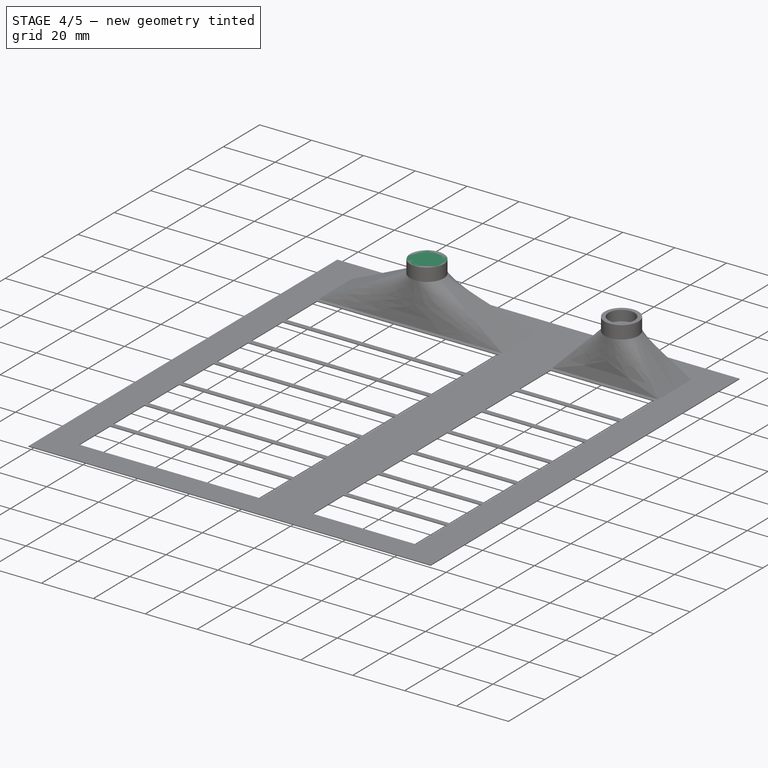
[diagram: stage 4 of 5 — iso view after this stage's code; geometry added in this stage tinted green]
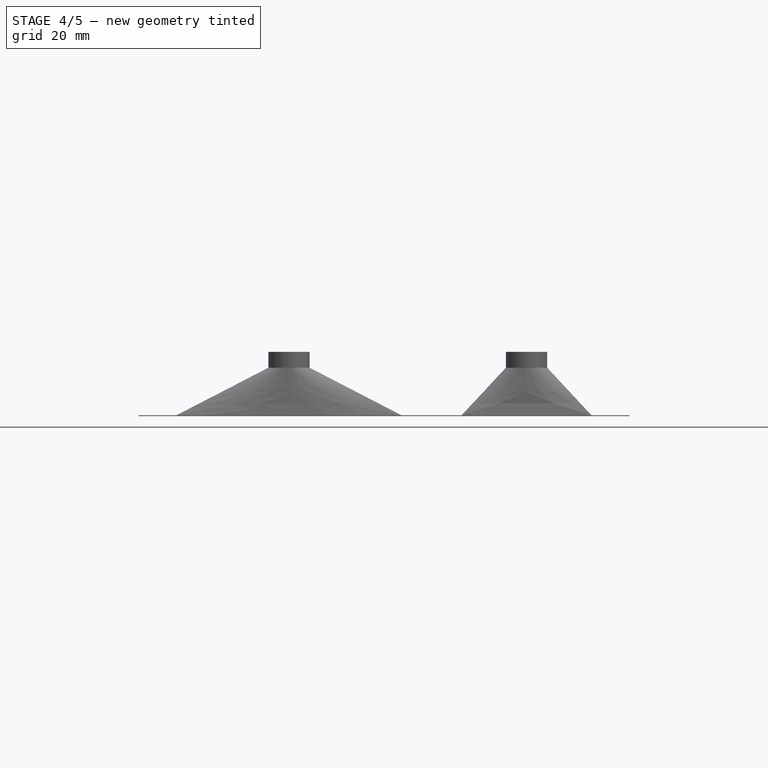
[diagram: stage 4 of 5 — front view after this stage's code; geometry added in this stage tinted green]
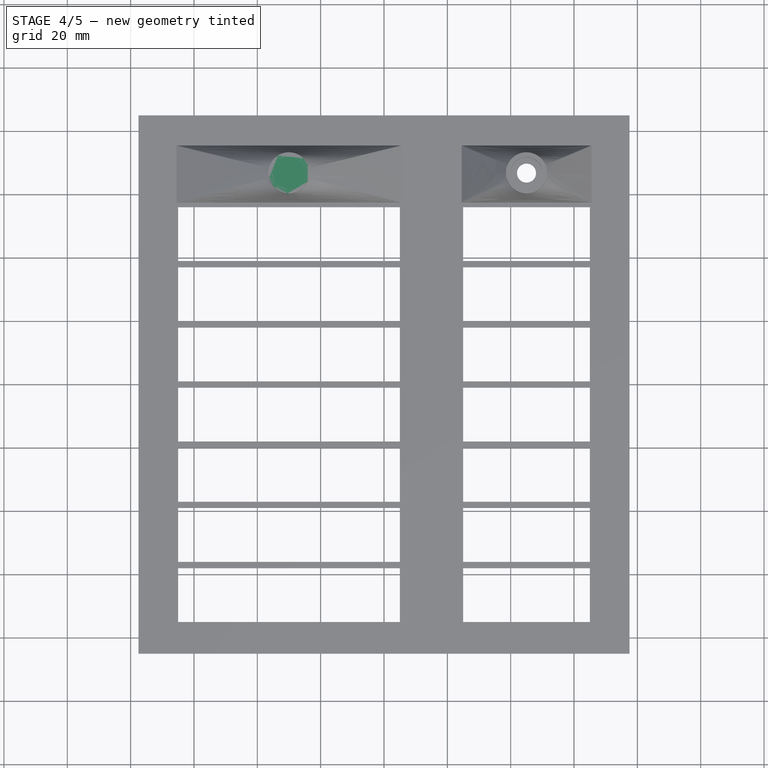
[diagram: stage 4 of 5 — top view after this stage's code; geometry added in this stage tinted green]
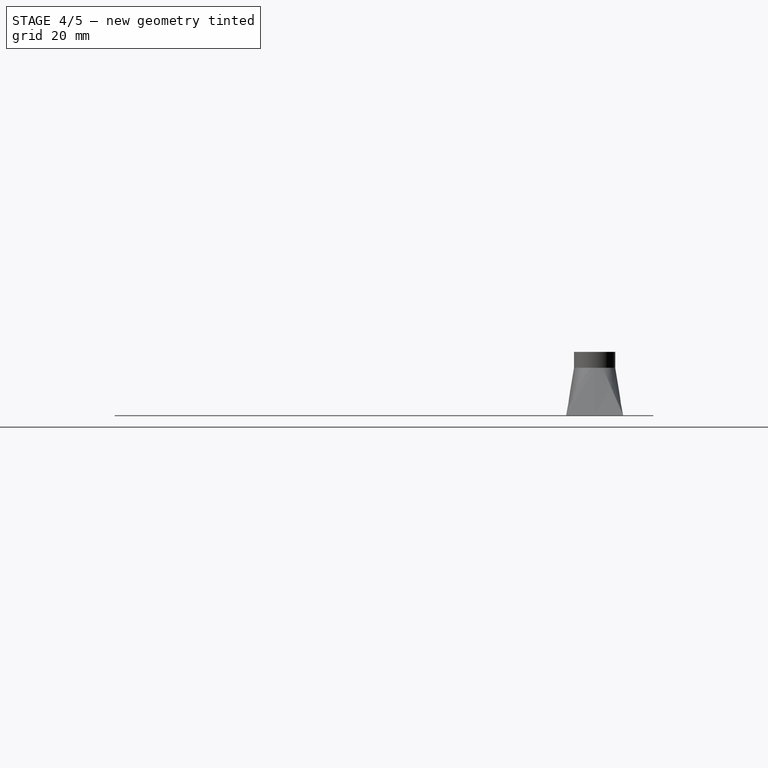
[diagram: stage 4 of 5 — right view after this stage's code; geometry added in this stage tinted green]
FEATURE [PartDesign::Body] Body003  label="Reflector003"
  Group = -> [ShapeBinder002,Sketch014,Sketch011,AdditiveLoft002,Sketch013,Pad005,Sketch012,Pocket002,Hole002]
  Origin = -> Origin003
  Placement = pos=(0,-38,0) rot=(0,0,1;0rad)
  Tip = -> Hole002
  expr: .Placement.Base.y = -19 * 2
FEATURE [Sketcher::SketchObject] Sketch017
  FullyConstrained = true
  MapMode = 5
  Support = -> [XY_Plane006]
  sketch-geometry (72):
    g0: LineSegment StartX=-77.5 StartY=85 StartZ=0 EndX=77.5 EndY=85 EndZ=0
    g1: LineSegment StartX=77.5 StartY=85 StartZ=0 EndX=77.5 EndY=-85 EndZ=0
    g2: LineSegment StartX=77.5 StartY=-85 StartZ=0 EndX=-77.5 EndY=-85 EndZ=0
    g3: LineSegment StartX=-77.5 StartY=-85 StartZ=0 EndX=-77.5 EndY=85 EndZ=0
    g4: LineSegment StartX=-65 StartY=75 StartZ=0 EndX=65 EndY=75 EndZ=0
    g5: LineSegment StartX=65 StartY=75 StartZ=0 EndX=65 EndY=-75 EndZ=0
    g6: LineSegment StartX=65 StartY=-75 StartZ=0 EndX=-65 EndY=-75 EndZ=0
    g7: LineSegment StartX=-65 StartY=-75 StartZ=0 EndX=-65 EndY=75 EndZ=0
    g8: LineSegment StartX=-65 StartY=75 StartZ=0 EndX=5 EndY=75 EndZ=0
    g9: LineSegment StartX=5 StartY=75 StartZ=0 EndX=5 EndY=58 EndZ=0
    g10: LineSegment StartX=5 StartY=58 StartZ=0 EndX=-65 EndY=58 EndZ=0
    g11: LineSegment StartX=-65 StartY=58 StartZ=0 EndX=-65 EndY=75 EndZ=0
    g12: LineSegment StartX=25 StartY=75 StartZ=0 EndX=65 EndY=75 EndZ=0
    g13: LineSegment StartX=65 StartY=75 StartZ=0 EndX=65 EndY=58 EndZ=0
    g14: LineSegment StartX=65 StartY=58 StartZ=0 EndX=25 EndY=58 EndZ=0
    g15: LineSegment StartX=25 StartY=58 StartZ=0 EndX=25 EndY=75 EndZ=0
    g16: LineSegment StartX=-65 StartY=56 StartZ=0 EndX=5 EndY=56 EndZ=0
    g17: LineSegment StartX=5 StartY=56 StartZ=0 EndX=5 EndY=39 EndZ=0
    g18: LineSegment StartX=5 StartY=39 StartZ=0 EndX=-65 EndY=39 EndZ=0
    g19: LineSegment StartX=-65 StartY=39 StartZ=0 EndX=-65 EndY=56 EndZ=0
    g20: LineSegment StartX=25 StartY=56 StartZ=0 EndX=65 EndY=56 EndZ=0
    g21: LineSegment StartX=65 StartY=56 StartZ=0 EndX=65 EndY=39 EndZ=0
    g22: LineSegment StartX=65 StartY=39 StartZ=0 EndX=25 EndY=39 EndZ=0
    g23: LineSegment StartX=25 StartY=39 StartZ=0 EndX=25 EndY=56 EndZ=0
    g24: LineSegment StartX=-65 StartY=37 StartZ=0 EndX=5 EndY=37 EndZ=0
    g25: LineSegment StartX=5 StartY=37 StartZ=0 EndX=5 EndY=20 EndZ=0
    g26: LineSegment StartX=5 StartY=20 StartZ=0 EndX=-65 EndY=20 EndZ=0
    g27: LineSegment StartX=-65 StartY=20 StartZ=0 EndX=-65 EndY=37 EndZ=0
    g28: LineSegment StartX=25 StartY=37 StartZ=0 EndX=65 EndY=37 EndZ=0
    g29: LineSegment StartX=65 StartY=37 StartZ=0 EndX=65 EndY=20 EndZ=0
    g30: LineSegment StartX=65 StartY=20 StartZ=0 EndX=25 EndY=20 EndZ=0
    g31: LineSegment StartX=25 StartY=20 StartZ=0 EndX=25 EndY=37 EndZ=0
    g32: LineSegment StartX=-65 StartY=18 StartZ=0 EndX=5 EndY=18 EndZ=0
    g33: LineSegment StartX=5 StartY=18 StartZ=0 EndX=5 EndY=1 EndZ=0
    g34: LineSegment StartX=5 StartY=1 StartZ=0 EndX=-65 EndY=1 EndZ=0
    g35: LineSegment StartX=-65 StartY=1 StartZ=0 EndX=-65 EndY=18 EndZ=0
    g36: LineSegment StartX=25 StartY=18 StartZ=0 EndX=65 EndY=18 EndZ=0
    g37: LineSegment StartX=65 StartY=18 StartZ=0 EndX=65 EndY=1 EndZ=0
    g38: LineSegment StartX=65 StartY=1 StartZ=0 EndX=25 EndY=1 EndZ=0
    g39: LineSegment StartX=25 StartY=1 StartZ=0 EndX=25 EndY=18 EndZ=0
    g40: LineSegment StartX=-65 StartY=-1 StartZ=0 EndX=5 EndY=-1 EndZ=0
    g41: LineSegment StartX=5 StartY=-1 StartZ=0 EndX=5 EndY=-18 EndZ=0
    g42: LineSegment StartX=5 StartY=-18 StartZ=0 EndX=-65 EndY=-18 EndZ=0
    g43: LineSegment StartX=-65 StartY=-18 StartZ=0 EndX=-65 EndY=-1 EndZ=0
    g44: LineSegment StartX=25 StartY=-1 StartZ=0 EndX=65 EndY=-1 EndZ=0
    g45: LineSegment StartX=65 StartY=-1 StartZ=0 EndX=65 EndY=-18 EndZ=0
    g46: LineSegment StartX=65 StartY=-18 StartZ=0 EndX=25 EndY=-18 EndZ=0
    g47: LineSegment StartX=25 StartY=-18 StartZ=0 EndX=25 EndY=-1 EndZ=0
    g48: LineSegment StartX=-65 StartY=-20 StartZ=0 EndX=5 EndY=-20 EndZ=0
    g49: LineSegment StartX=5 StartY=-20 StartZ=0 EndX=5 EndY=-37 EndZ=0
    g50: LineSegment StartX=5 StartY=-37 StartZ=0 EndX=-65 EndY=-37 EndZ=0
    g51: LineSegment StartX=-65 StartY=-37 StartZ=0 EndX=-65 EndY=-20 EndZ=0
    g52: LineSegment StartX=25 StartY=-20 StartZ=0 EndX=65 EndY=-20 EndZ=0
    g53: LineSegment StartX=65 StartY=-20 StartZ=0 EndX=65 EndY=-37 EndZ=0
    g54: LineSegment StartX=65 StartY=-37 StartZ=0 EndX=25 EndY=-37 EndZ=0
    g55: LineSegment StartX=25 StartY=-37 StartZ=0 EndX=25 EndY=-20 EndZ=0
    g56: LineSegment StartX=-65 StartY=-39 StartZ=0 EndX=5 EndY=-39 EndZ=0
    g57: LineSegment StartX=5 StartY=-39 StartZ=0 EndX=5 EndY=-56 EndZ=0
    g58: LineSegment StartX=5 StartY=-56 StartZ=0 EndX=-65 EndY=-56 EndZ=0
    g59: LineSegment StartX=-65 StartY=-56 StartZ=0 EndX=-65 EndY=-39 EndZ=0
    g60: LineSegment StartX=25 StartY=-39 StartZ=0 EndX=65 EndY=-39 EndZ=0
    g61: LineSegment StartX=65 StartY=-39 StartZ=0 EndX=65 EndY=-56 EndZ=0
    g62: LineSegment StartX=65 StartY=-56 StartZ=0 EndX=25 EndY=-56 EndZ=0
    g63: LineSegment StartX=25 StartY=-56 StartZ=0 EndX=25 EndY=-39 EndZ=0
    g64: LineSegment StartX=-65 StartY=-58 StartZ=0 EndX=5 EndY=-58 EndZ=0
    g65: LineSegment StartX=5 StartY=-58 StartZ=0 EndX=5 EndY=-75 EndZ=0
    g66: LineSegment StartX=5 StartY=-75 StartZ=0 EndX=-65 EndY=-75 EndZ=0
    g67: LineSegment StartX=-65 StartY=-75 StartZ=0 EndX=-65 EndY=-58 EndZ=0
    g68: LineSegment StartX=25 StartY=-58 StartZ=0 EndX=65 EndY=-58 EndZ=0
    g69: LineSegment StartX=65 StartY=-58 StartZ=0 EndX=65 EndY=-75 EndZ=0
    g70: LineSegment StartX=65 StartY=-75 StartZ=0 EndX=25 EndY=-75 EndZ=0
    g71: LineSegment StartX=25 StartY=-75 StartZ=0 EndX=25 EndY=-58 EndZ=0
  constraints (212):
    c: Coincident(g0,g1)
    c: Coincident(g1,g2)
    c: Coincident(g2,g3)
    c: Coincident(g3,g0)
    c: Horizontal(g2)
    c: Vertical(g1)
    c: Symmetric(g0,g0,g-2)
    c: Symmetric(g0,g2,g-1)
    c: Distance(g0) = 155
    c: Distance(g1) = 170
    c: Coincident(g4,g5)
    c: Coincident(g5,g6)
    c: Coincident(g6,g7)
    c: Horizontal(g6)
    c: Vertical(g5)
    c: Symmetric(g4,g4,g-2)
    c: Symmetric(g4,g6,g-1)
    c: Distance(g4) = 130
    c: Distance(g5) = 150
    c: Coincident(g8,g9)
    c: Coincident(g9,g10)
    c: Coincident(g10,g11)
    c: Coincident(g11,g8)
    c: Horizontal(g8)
    c: Horizontal(g10)
    c: Vertical(g9)
    c: Vertical(g11)
    c: Distance(g8) = 70
    c: Distance(g9) = 17
    c: Coincident(g12,g13)
    c: Coincident(g13,g14)
    c: Coincident(g14,g15)
    c: Coincident(g15,g12)
    c: Horizontal(g12)
    c: Horizontal(g14)
    c: Vertical(g13)
    c: Vertical(g15)
    c: Distance(g12) = 40
    c: Distance(g13) = 17
    c: Coincident(g8,g4)
    c: Coincident(g12,g4)
    c: Vertical(g7)
    c: Equal(g7,g5)
    c: Coincident(g16,g17)
    c: Coincident(g17,g18)
    c: Coincident(g18,g19)
    c: Coincident(g19,g16)
    c: Horizontal(g16)
    c: Horizontal(g18)
    c: Vertical(g17)
    c: Vertical(g19)
    c: Equal(g8,g16) = 70
    c: Equal(g9,g17) = 20
    c: Coincident(g20,g21)
    c: Coincident(g21,g22)
    c: Coincident(g22,g23)
    c: Coincident(g23,g20)
    c: Horizontal(g20)
    c: Horizontal(g22)
    c: Vertical(g21)
    c: Vertical(g23)
    c: Equal(g12,g20) = 40
    c: Equal(g13,g21) = 20
    c: DistanceX(g16,g4) = 0
    c: DistanceX(g20,g4) = 0
    c: DistanceY(g16,g9) = 2
    c: DistanceY(g20,g14) = 2
    c: Coincident(g24,g25)
    c: Coincident(g25,g26)
    c: Coincident(g26,g27)
    c: Coincident(g27,g24)
    c: Horizontal(g24)
    c: Horizontal(g26)
    c: Vertical(g25)
    c: Vertical(g27)
    c: Equal(g8,g24) = 70
    c: Equal(g9,g25) = 20
    c: Coincident(g28,g29)
    c: Coincident(g29,g30)
    c: Coincident(g30,g31)
    c: Coincident(g31,g28)
    c: Horizontal(g28)
    c: Horizontal(g30)
    c: Vertical(g29)
    c: Vertical(g31)
    c: Equal(g12,g28) = 40
    c: Equal(g13,g29) = 20
    c: Coincident(g32,g33)
    c: Coincident(g33,g34)
    c: Coincident(g34,g35)
    c: Coincident(g35,g32)
    c: Horizontal(g32)
    c: Horizontal(g34)
    c: Vertical(g33)
    c: Vertical(g35)
    c: Equal(g24,g32) = 70
    c: Equal(g25,g33) = 20
    c: Coincident(g36,g37)
    c: Coincident(g37,g38)
    c: Coincident(g38,g39)
    c: Coincident(g39,g36)
    c: Horizontal(g36)
    c: Horizontal(g38)
    c: Vertical(g37)
    c: Vertical(g39)
    c: Equal(g28,g36) = 40
    c: Equal(g29,g37) = 20
    c: DistanceY(g32,g25) = 2
    c: DistanceY(g36,g30) = 2
    c: DistanceX(g4,g24) = 0
    c: DistanceX(g4,g28) = 0
    c: DistanceX(g4,g36) = 0
    c: DistanceY(g28,g22) = 2
    c: DistanceY(g24,g17) = 2
    c: DistanceX(g32,g4) = 0
    c: Coincident(g41,g42)
    c: Coincident(g42,g43)
    c: Coincident(g43,g40)
    c: Horizontal(g40)
    c: Horizontal(g42)
    c: Vertical(g41)
    c: Vertical(g43)
    c: Equal(g8,g40) = 70
    c: Equal(g9,g41) = 20
    c: Coincident(g44,g45)
    c: Coincident(g45,g46)
    c: Coincident(g46,g47)
    c: Coincident(g47,g44)
    c: Horizontal(g44)
    c: Horizontal(g46)
    c: Vertical(g45)
    c: Vertical(g47)
    c: Equal(g12,g44) = 40
    c: Equal(g13,g45) = 20
    c: Coincident(g48,g49)
    c: Coincident(g49,g50)
    c: Coincident(g50,g51)
    c: Coincident(g51,g48)
    c: Horizontal(g48)
    c: Horizontal(g50)
    c: Vertical(g49)
    c: Vertical(g51)
    c: Equal(g40,g48) = 70
    c: Equal(g41,g49) = 20
    c: Coincident(g52,g53)
    c: Coincident(g53,g54)
    c: Coincident(g54,g55)
    c: Coincident(g55,g52)
    c: Horizontal(g52)
    c: Horizontal(g54)
    c: Vertical(g53)
    c: Vertical(g55)
    c: Equal(g44,g52) = 40
    c: Equal(g45,g53) = 20
    c: DistanceY(g48,g41) = 2
    c: DistanceY(g52,g46) = 2
    c: Coincident(g56,g57)
    c: Coincident(g57,g58)
    c: Coincident(g58,g59)
    c: Coincident(g59,g56)
    c: Horizontal(g56)
    c: Horizontal(g58)
    c: Vertical(g57)
    c: Vertical(g59)
    c: Equal(g40,g56) = 70
    c: Equal(g41,g57) = 20
    c: Coincident(g60,g61)
    c: Coincident(g61,g62)
    c: Coincident(g62,g63)
    c: Coincident(g63,g60)
    c: Horizontal(g60)
    c: Horizontal(g62)
    c: Vertical(g61)
    c: Vertical(g63)
    c: Equal(g44,g60) = 40
    c: Equal(g45,g61) = 20
    c: Coincident(g64,g65)
    c: Coincident(g65,g66)
    c: Coincident(g66,g67)
    c: Coincident(g67,g64)
    c: Horizontal(g64)
    c: Horizontal(g66)
    c: Vertical(g65)
    c: Vertical(g67)
    c: Equal(g56,g64) = 70
    c: Equal(g57,g65) = 20
    c: Coincident(g68,g69)
    c: Coincident(g69,g70)
    c: Coincident(g70,g71)
    c: Coincident(g71,g68)
    c: Horizontal(g68)
    c: Horizontal(g70)
    c: Vertical(g69)
    c: Vertical(g71)
    c: Equal(g60,g68) = 40
    c: Equal(g61,g69) = 20
    c: DistanceY(g64,g57) = 2
    c: DistanceY(g68,g62) = 2
    c: DistanceY(g60,g54) = 2
    c: DistanceY(g56,g49) = 2
    c: DistanceX(g4,g48) = 0
    c: DistanceX(g56,g4) = 0
    c: DistanceX(g64,g4) = 0
    c: DistanceX(g4,g40) = 0
    c: DistanceY(g44,g38) = 2
    c: DistanceX(g4,g52) = 0
    c: DistanceX(g60,g4) = 0
    c: DistanceX(g68,g4) = 0
    c: Equal(g43,g41)
    c: Equal(g40,g42)
    c: DistanceY(g40,g34) = 2
    c: DistanceX(g44,g4) = 0
FEATURE [PartDesign::Pad] Pad006
  Direction = (0,0,1)
  Length = 0.3
  Length2 = 100
  Profile = -> Sketch017
  ReferenceAxis = -> Sketch017 [N_Axis]
  Type = 0
FEATURE [PartDesign::ShapeBinder] ShapeBinder003
  Placement = pos=(0,0,0.3) rot=(0,0,1;0rad)
  Support = -> [Pad006]
  TraceSupport = false
FEATURE [Sketcher::SketchObject] Sketch018
  ExternalGeometry = -> [ShapeBinder003]
  FullyConstrained = true
  MapMode = 5
  Placement = pos=(0,0,0.3) rot=(0,0,1;0rad)
  Support = -> [ShapeBinder003]
  sketch-geometry (8):
    g0: LineSegment StartX=-65.5 StartY=75.5 StartZ=0 EndX=5.5 EndY=75.5 EndZ=0
    g1: LineSegment StartX=5.5 StartY=75.5 StartZ=0 EndX=5.5 EndY=57.5 EndZ=0
    g2: LineSegment StartX=5.5 StartY=57.5 StartZ=0 EndX=-65.5 EndY=57.5 EndZ=0
    g3: LineSegment StartX=-65.5 StartY=57.5 StartZ=0 EndX=-65.5 EndY=75.5 EndZ=0
    g4: LineSegment StartX=-65 StartY=75 StartZ=0 EndX=5 EndY=75 EndZ=0
    g5: LineSegment StartX=5 StartY=75 StartZ=0 EndX=5 EndY=58 EndZ=0
    g6: LineSegment StartX=5 StartY=58 StartZ=0 EndX=-65 EndY=58 EndZ=0
    g7: LineSegment StartX=-65 StartY=58 StartZ=0 EndX=-65 EndY=75 EndZ=0
  constraints (22):
    c: Coincident(g0,g1)
    c: Coincident(g1,g2)
    c: Coincident(g2,g3)
    c: Coincident(g3,g0)
    c: Horizontal(g0)
    c: Horizontal(g2)
    c: Vertical(g1)
    c: Vertical(g3)
    c: DistanceY(g-4,g0) = 0.5
    c: DistanceX(g0,g-4) = 0.5
    c: DistanceY(g2,g-6) = 0.5
    c: DistanceX(g-5,g0) = 0.5
    c: Coincident(g4,g5)
    c: Coincident(g5,g6)
    c: Coincident(g6,g7)
    c: Coincident(g7,g4)
    c: Horizontal(g4)
    c: Horizontal(g6)
    c: Vertical(g5)
    c: Vertical(g7)
    c: Coincident(g4,g-4)
    c: Coincident(g5,g-6)
FEATURE [Sketcher::SketchObject] Sketch019
  AttachmentOffset = pos=(0,0,15) rot=(0,0,1;0rad)
  ExternalGeometry = -> [Sketch018]
  FullyConstrained = true
  MapMode = 5
  Placement = pos=(0,0,15.3) rot=(0,0,1;0rad)
  Support = -> [ShapeBinder003]
  sketch-geometry (4):
    g0: LineSegment StartX=-65.5 StartY=66.5 StartZ=0 EndX=5.5 EndY=66.5 EndZ=0
    g1: LineSegment StartX=-30 StartY=75.5 StartZ=0 EndX=-30 EndY=57.5 EndZ=0
    g2: Circle CenterX=-30 CenterY=66.5 CenterZ=0 NormalX=0 NormalY=0 NormalZ=1 AngleXU=0 Radius=6.5
    g3: Circle CenterX=-30 CenterY=66.5 CenterZ=0 NormalX=0 NormalY=0 NormalZ=1 AngleXU=0 Radius=6
  constraints (11):
    c: Symmetric(g-6,g-5,g1)
    c: Symmetric(g-6,g-6,g0)
    c: PointOnObject(g1,g-4)
    c: PointOnObject(g1,g-3)
    c: PointOnObject(g0,g-6)
    c: PointOnObject(g0,g-5)
    c: PointOnObject(g2,g0)
    c: PointOnObject(g2,g1)
    c: Diameter(g2) = 13
    c: Coincident(g3,g2)
    c: Diameter(g3) = 12
FEATURE [PartDesign::AdditiveLoft] AdditiveLoft003
  Closed = false
  Placement = pos=(0,0,0.3) rot=(0,0,1;0rad)
  Profile = -> Sketch018
  Ruled = false
  Sections = -> [Sketch019]
FEATURE [Sketcher::SketchObject] Sketch015
  ExternalGeometry = -> [AdditiveLoft003]
  FullyConstrained = true
  MapMode = 5
  Placement = pos=(0,0,15.3) rot=(0,0,1;0rad)
  Support = -> [AdditiveLoft003]
  sketch-geometry (1):
    g0: Circle CenterX=-30 CenterY=66.5 CenterZ=0 NormalX=0 NormalY=0 NormalZ=1 AngleXU=0 Radius=6.5
  constraints (2):
    c: Coincident(g0,g-3)
    c: Diameter(g0) = 13
FEATURE [PartDesign::Pad] Pad007
  BaseFeature = -> AdditiveLoft003
  Direction = (0,0,1)
  Length = 5
  Length2 = 100
  Placement = pos=(0,0,0.3) rot=(0,0,1;0rad)
  Profile = -> Sketch015
  ReferenceAxis = -> Sketch015 [N_Axis]
  Type = 0
FEATURE [PartDesign::Body] Body004  label="Reflector004"
  Group = -> [ShapeBinder003,Sketch018,Sketch019,AdditiveLoft003,Sketch015,Pad007,Sketch016,Pocket003,Hole003]
  Origin = -> Origin004
  Placement = pos=(0,-57,0) rot=(0,0,1;0rad)
  Tip = -> Hole003
  expr: .Placement.Base.y = -19 * 3
FEATURE [Sketcher::SketchObject] Sketch023
  FullyConstrained = true
  MapMode = 5
  Support = -> [XY_Plane009]
  sketch-geometry (72):
    g0: LineSegment StartX=-77.5 StartY=85 StartZ=0 EndX=77.5 EndY=85 EndZ=0
    g1: LineSegment StartX=77.5 StartY=85 StartZ=0 EndX=77.5 EndY=-85 EndZ=0
    g2: LineSegment StartX=77.5 StartY=-85 StartZ=0 EndX=-77.5 EndY=-85 EndZ=0
    g3: LineSegment StartX=-77.5 StartY=-85 StartZ=0 EndX=-77.5 EndY=85 EndZ=0
    g4: LineSegment StartX=-65 StartY=75 StartZ=0 EndX=65 EndY=75 EndZ=0
    g5: LineSegment StartX=65 StartY=75 StartZ=0 EndX=65 EndY=-75 EndZ=0
    g6: LineSegment StartX=65 StartY=-75 StartZ=0 EndX=-65 EndY=-75 EndZ=0
    g7: LineSegment StartX=-65 StartY=-75 StartZ=0 EndX=-65 EndY=75 EndZ=0
    g8: LineSegment StartX=-65 StartY=75 StartZ=0 EndX=5 EndY=75 EndZ=0
    g9: LineSegment StartX=5 StartY=75 StartZ=0 EndX=5 EndY=58 EndZ=0
    g10: LineSegment StartX=5 StartY=58 StartZ=0 EndX=-65 EndY=58 EndZ=0
    g11: LineSegment StartX=-65 StartY=58 StartZ=0 EndX=-65 EndY=75 EndZ=0
    g12: LineSegment StartX=25 StartY=75 StartZ=0 EndX=65 EndY=75 EndZ=0
    g13: LineSegment StartX=65 StartY=75 StartZ=0 EndX=65 EndY=58 EndZ=0
    g14: LineSegment StartX=65 StartY=58 StartZ=0 EndX=25 EndY=58 EndZ=0
    g15: LineSegment StartX=25 StartY=58 StartZ=0 EndX=25 EndY=75 EndZ=0
    g16: LineSegment StartX=-65 StartY=56 StartZ=0 EndX=5 EndY=56 EndZ=0
    g17: LineSegment StartX=5 StartY=56 StartZ=0 EndX=5 EndY=39 EndZ=0
    g18: LineSegment StartX=5 StartY=39 StartZ=0 EndX=-65 EndY=39 EndZ=0
    g19: LineSegment StartX=-65 StartY=39 StartZ=0 EndX=-65 EndY=56 EndZ=0
    g20: LineSegment StartX=25 StartY=56 StartZ=0 EndX=65 EndY=56 EndZ=0
    g21: LineSegment StartX=65 StartY=56 StartZ=0 EndX=65 EndY=39 EndZ=0
    g22: LineSegment StartX=65 StartY=39 StartZ=0 EndX=25 EndY=39 EndZ=0
    g23: LineSegment StartX=25 StartY=39 StartZ=0 EndX=25 EndY=56 EndZ=0
    g24: LineSegment StartX=-65 StartY=37 StartZ=0 EndX=5 EndY=37 EndZ=0
    g25: LineSegment StartX=5 StartY=37 StartZ=0 EndX=5 EndY=20 EndZ=0
    g26: LineSegment StartX=5 StartY=20 StartZ=0 EndX=-65 EndY=20 EndZ=0
    g27: LineSegment StartX=-65 StartY=20 StartZ=0 EndX=-65 EndY=37 EndZ=0
    g28: LineSegment StartX=25 StartY=37 StartZ=0 EndX=65 EndY=37 EndZ=0
    g29: LineSegment StartX=65 StartY=37 StartZ=0 EndX=65 EndY=20 EndZ=0
    g30: LineSegment StartX=65 StartY=20 StartZ=0 EndX=25 EndY=20 EndZ=0
    g31: LineSegment StartX=25 StartY=20 StartZ=0 EndX=25 EndY=37 EndZ=0
    g32: LineSegment StartX=-65 StartY=18 StartZ=0 EndX=5 EndY=18 EndZ=0
    g33: LineSegment StartX=5 StartY=18 StartZ=0 EndX=5 EndY=1 EndZ=0
    g34: LineSegment StartX=5 StartY=1 StartZ=0 EndX=-65 EndY=1 EndZ=0
    g35: LineSegment StartX=-65 StartY=1 StartZ=0 EndX=-65 EndY=18 EndZ=0
    g36: LineSegment StartX=25 StartY=18 StartZ=0 EndX=65 EndY=18 EndZ=0
    g37: LineSegment StartX=65 StartY=18 StartZ=0 EndX=65 EndY=1 EndZ=0
    g38: LineSegment StartX=65 StartY=1 StartZ=0 EndX=25 EndY=1 EndZ=0
    g39: LineSegment StartX=25 StartY=1 StartZ=0 EndX=25 EndY=18 EndZ=0
    g40: LineSegment StartX=-65 StartY=-1 StartZ=0 EndX=5 EndY=-1 EndZ=0
    g41: LineSegment StartX=5 StartY=-1 StartZ=0 EndX=5 EndY=-18 EndZ=0
    g42: LineSegment StartX=5 StartY=-18 StartZ=0 EndX=-65 EndY=-18 EndZ=0
    g43: LineSegment StartX=-65 StartY=-18 StartZ=0 EndX=-65 EndY=-1 EndZ=0
    g44: LineSegment StartX=25 StartY=-1 StartZ=0 EndX=65 EndY=-1 EndZ=0
    g45: LineSegment StartX=65 StartY=-1 StartZ=0 EndX=65 EndY=-18 EndZ=0
    g46: LineSegment StartX=65 StartY=-18 StartZ=0 EndX=25 EndY=-18 EndZ=0
    g47: LineSegment StartX=25 StartY=-18 StartZ=0 EndX=25 EndY=-1 EndZ=0
    g48: LineSegment StartX=-65 StartY=-20 StartZ=0 EndX=5 EndY=-20 EndZ=0
    g49: LineSegment StartX=5 StartY=-20 StartZ=0 EndX=5 EndY=-37 EndZ=0
    g50: LineSegment StartX=5 StartY=-37 StartZ=0 EndX=-65 EndY=-37 EndZ=0
    g51: LineSegment StartX=-65 StartY=-37 StartZ=0 EndX=-65 EndY=-20 EndZ=0
    g52: LineSegment StartX=25 StartY=-20 StartZ=0 EndX=65 EndY=-20 EndZ=0
    g53: LineSegment StartX=65 StartY=-20 StartZ=0 EndX=65 EndY=-37 EndZ=0
    g54: LineSegment StartX=65 StartY=-37 StartZ=0 EndX=25 EndY=-37 EndZ=0
    g55: LineSegment StartX=25 StartY=-37 StartZ=0 EndX=25 EndY=-20 EndZ=0
    g56: LineSegment StartX=-65 StartY=-39 StartZ=0 EndX=5 EndY=-39 EndZ=0
    g57: LineSegment StartX=5 StartY=-39 StartZ=0 EndX=5 EndY=-56 EndZ=0
    g58: LineSegment StartX=5 StartY=-56 StartZ=0 EndX=-65 EndY=-56 EndZ=0
    g59: LineSegment StartX=-65 StartY=-56 StartZ=0 EndX=-65 EndY=-39 EndZ=0
    g60: LineSegment StartX=25 StartY=-39 StartZ=0 EndX=65 EndY=-39 EndZ=0
    g61: LineSegment StartX=65 StartY=-39 StartZ=0 EndX=65 EndY=-56 EndZ=0
    g62: LineSegment StartX=65 StartY=-56 StartZ=0 EndX=25 EndY=-56 EndZ=0
    g63: LineSegment StartX=25 StartY=-56 StartZ=0 EndX=25 EndY=-39 EndZ=0
    g64: LineSegment StartX=-65 StartY=-58 StartZ=0 EndX=5 EndY=-58 EndZ=0
    g65: LineSegment StartX=5 StartY=-58 StartZ=0 EndX=5 EndY=-75 EndZ=0
    g66: LineSegment StartX=5 StartY=-75 StartZ=0 EndX=-65 EndY=-75 EndZ=0
    g67: LineSegment StartX=-65 StartY=-75 StartZ=0 EndX=-65 EndY=-58 EndZ=0
    g68: LineSegment StartX=25 StartY=-58 StartZ=0 EndX=65 EndY=-58 EndZ=0
    g69: LineSegment StartX=65 StartY=-58 StartZ=0 EndX=65 EndY=-75 EndZ=0
    g70: LineSegment StartX=65 StartY=-75 StartZ=0 EndX=25 EndY=-75 EndZ=0
    g71: LineSegment StartX=25 StartY=-75 StartZ=0 EndX=25 EndY=-58 EndZ=0
  constraints (212):
    c: Coincident(g0,g1)
    c: Coincident(g1,g2)
    c: Coincident(g2,g3)
    c: Coincident(g3,g0)
    c: Horizontal(g2)
    c: Vertical(g1)
    c: Symmetric(g0,g0,g-2)
    c: Symmetric(g0,g2,g-1)
    c: Distance(g0) = 155
    c: Distance(g1) = 170
    c: Coincident(g4,g5)
    c: Coincident(g5,g6)
    c: Coincident(g6,g7)
    c: Horizontal(g6)
    c: Vertical(g5)
    c: Symmetric(g4,g4,g-2)
    c: Symmetric(g4,g6,g-1)
    c: Distance(g4) = 130
    c: Distance(g5) = 150
    c: Coincident(g8,g9)
    c: Coincident(g9,g10)
    c: Coincident(g10,g11)
    c: Coincident(g11,g8)
    c: Horizontal(g8)
    c: Horizontal(g10)
    c: Vertical(g9)
    c: Vertical(g11)
    c: Distance(g8) = 70
    c: Distance(g9) = 17
    c: Coincident(g12,g13)
    c: Coincident(g13,g14)
    c: Coincident(g14,g15)
    c: Coincident(g15,g12)
    c: Horizontal(g12)
    c: Horizontal(g14)
    c: Vertical(g13)
    c: Vertical(g15)
    c: Distance(g12) = 40
    c: Distance(g13) = 17
    c: Coincident(g8,g4)
    c: Coincident(g12,g4)
    c: Vertical(g7)
    c: Equal(g7,g5)
    c: Coincident(g16,g17)
    c: Coincident(g17,g18)
    c: Coincident(g18,g19)
    c: Coincident(g19,g16)
    c: Horizontal(g16)
    c: Horizontal(g18)
    c: Vertical(g17)
    c: Vertical(g19)
    c: Equal(g8,g16) = 70
    c: Equal(g9,g17) = 20
    c: Coincident(g20,g21)
    c: Coincident(g21,g22)
    c: Coincident(g22,g23)
    c: Coincident(g23,g20)
    c: Horizontal(g20)
    c: Horizontal(g22)
    c: Vertical(g21)
    c: Vertical(g23)
    c: Equal(g12,g20) = 40
    c: Equal(g13,g21) = 20
    c: DistanceX(g16,g4) = 0
    c: DistanceX(g20,g4) = 0
    c: DistanceY(g16,g9) = 2
    c: DistanceY(g20,g14) = 2
    c: Coincident(g24,g25)
    c: Coincident(g25,g26)
    c: Coincident(g26,g27)
    c: Coincident(g27,g24)
    c: Horizontal(g24)
    c: Horizontal(g26)
    c: Vertical(g25)
    c: Vertical(g27)
    c: Equal(g8,g24) = 70
    c: Equal(g9,g25) = 20
    c: Coincident(g28,g29)
    c: Coincident(g29,g30)
    c: Coincident(g30,g31)
    c: Coincident(g31,g28)
    c: Horizontal(g28)
    c: Horizontal(g30)
    c: Vertical(g29)
    c: Vertical(g31)
    c: Equal(g12,g28) = 40
    c: Equal(g13,g29) = 20
    c: Coincident(g32,g33)
    c: Coincident(g33,g34)
    c: Coincident(g34,g35)
    c: Coincident(g35,g32)
    c: Horizontal(g32)
    c: Horizontal(g34)
    c: Vertical(g33)
    c: Vertical(g35)
    c: Equal(g24,g32) = 70
    c: Equal(g25,g33) = 20
    c: Coincident(g36,g37)
    c: Coincident(g37,g38)
    c: Coincident(g38,g39)
    c: Coincident(g39,g36)
    c: Horizontal(g36)
    c: Horizontal(g38)
    c: Vertical(g37)
    c: Vertical(g39)
    c: Equal(g28,g36) = 40
    c: Equal(g29,g37) = 20
    c: DistanceY(g32,g25) = 2
    c: DistanceY(g36,g30) = 2
    c: DistanceX(g4,g24) = 0
    c: DistanceX(g4,g28) = 0
    c: DistanceX(g4,g36) = 0
    c: DistanceY(g28,g22) = 2
    c: DistanceY(g24,g17) = 2
    c: DistanceX(g32,g4) = 0
    c: Coincident(g41,g42)
    c: Coincident(g42,g43)
    c: Coincident(g43,g40)
    c: Horizontal(g40)
    c: Horizontal(g42)
    c: Vertical(g41)
    c: Vertical(g43)
    c: Equal(g8,g40) = 70
    c: Equal(g9,g41) = 20
    c: Coincident(g44,g45)
    c: Coincident(g45,g46)
    c: Coincident(g46,g47)
    c: Coincident(g47,g44)
    c: Horizontal(g44)
    c: Horizontal(g46)
    c: Vertical(g45)
    c: Vertical(g47)
    c: Equal(g12,g44) = 40
    c: Equal(g13,g45) = 20
    c: Coincident(g48,g49)
    c: Coincident(g49,g50)
    c: Coincident(g50,g51)
    c: Coincident(g51,g48)
    c: Horizontal(g48)
    c: Horizontal(g50)
    c: Vertical(g49)
    c: Vertical(g51)
    c: Equal(g40,g48) = 70
    c: Equal(g41,g49) = 20
    c: Coincident(g52,g53)
    c: Coincident(g53,g54)
    c: Coincident(g54,g55)
    c: Coincident(g55,g52)
    c: Horizontal(g52)
    c: Horizontal(g54)
    c: Vertical(g53)
    c: Vertical(g55)
    c: Equal(g44,g52) = 40
    c: Equal(g45,g53) = 20
    c: DistanceY(g48,g41) = 2
    c: DistanceY(g52,g46) = 2
    c: Coincident(g56,g57)
    c: Coincident(g57,g58)
    c: Coincident(g58,g59)
    c: Coincident(g59,g56)
    c: Horizontal(g56)
    c: Horizontal(g58)
    c: Vertical(g57)
    c: Vertical(g59)
    c: Equal(g40,g56) = 70
    c: Equal(g41,g57) = 20
    c: Coincident(g60,g61)
    c: Coincident(g61,g62)
    c: Coincident(g62,g63)
    c: Coincident(g63,g60)
    c: Horizontal(g60)
    c: Horizontal(g62)
    c: Vertical(g61)
    c: Vertical(g63)
    c: Equal(g44,g60) = 40
    c: Equal(g45,g61) = 20
    c: Coincident(g64,g65)
    c: Coincident(g65,g66)
    c: Coincident(g66,g67)
    c: Coincident(g67,g64)
    c: Horizontal(g64)
    c: Horizontal(g66)
    c: Vertical(g65)
    c: Vertical(g67)
    c: Equal(g56,g64) = 70
    c: Equal(g57,g65) = 20
    c: Coincident(g68,g69)
    c: Coincident(g69,g70)
    c: Coincident(g70,g71)
    c: Coincident(g71,g68)
    c: Horizontal(g68)
    c: Horizontal(g70)
    c: Vertical(g69)
    c: Vertical(g71)
    c: Equal(g60,g68) = 40
    c: Equal(g61,g69) = 20
    c: DistanceY(g64,g57) = 2
    c: DistanceY(g68,g62) = 2
    c: DistanceY(g60,g54) = 2
    c: DistanceY(g56,g49) = 2
    c: DistanceX(g4,g48) = 0
    c: DistanceX(g56,g4) = 0
    c: DistanceX(g64,g4) = 0
    c: DistanceX(g4,g40) = 0
    c: DistanceY(g44,g38) = 2
    c: DistanceX(g4,g52) = 0
    c: DistanceX(g60,g4) = 0
    c: DistanceX(g68,g4) = 0
    c: Equal(g43,g41)
    c: Equal(g40,g42)
    c: DistanceY(g40,g34) = 2
    c: DistanceX(g44,g4) = 0
FEATURE [PartDesign::Pad] Pad008
  Direction = (0,0,1)
  Length = 0.3
  Length2 = 100
  Profile = -> Sketch023
  ReferenceAxis = -> Sketch023 [N_Axis]
  Type = 0
FEATURE [PartDesign::ShapeBinder] ShapeBinder004
  Placement = pos=(0,0,0.3) rot=(0,0,1;0rad)
  Support = -> [Pad008]
  TraceSupport = false
FEATURE [Sketcher::SketchObject] Sketch024
  ExternalGeometry = -> [ShapeBinder004]
  FullyConstrained = true
  MapMode = 5
  Placement = pos=(0,0,0.3) rot=(0,0,1;0rad)
  Support = -> [ShapeBinder004]
  sketch-geometry (8):
    g0: LineSegment StartX=-65.5 StartY=75.5 StartZ=0 EndX=5.5 EndY=75.5 EndZ=0
    g1: LineSegment StartX=5.5 StartY=75.5 StartZ=0 EndX=5.5 EndY=57.5 EndZ=0
    g2: LineSegment StartX=5.5 StartY=57.5 StartZ=0 EndX=-65.5 EndY=57.5 EndZ=0
    g3: LineSegment StartX=-65.5 StartY=57.5 StartZ=0 EndX=-65.5 EndY=75.5 EndZ=0
    g4: LineSegment StartX=-65 StartY=75 StartZ=0 EndX=5 EndY=75 EndZ=0
    g5: LineSegment StartX=5 StartY=75 StartZ=0 EndX=5 EndY=58 EndZ=0
    g6: LineSegment StartX=5 StartY=58 StartZ=0 EndX=-65 EndY=58 EndZ=0
    g7: LineSegment StartX=-65 StartY=58 StartZ=0 EndX=-65 EndY=75 EndZ=0
  constraints (22):
    c: Coincident(g0,g1)
    c: Coincident(g1,g2)
    c: Coincident(g2,g3)
    c: Coincident(g3,g0)
    c: Horizontal(g0)
    c: Horizontal(g2)
    c: Vertical(g1)
    c: Vertical(g3)
    c: DistanceY(g-4,g0) = 0.5
    c: DistanceX(g0,g-4) = 0.5
    c: DistanceY(g2,g-6) = 0.5
    c: DistanceX(g-5,g0) = 0.5
    c: Coincident(g4,g5)
    c: Coincident(g5,g6)
    c: Coincident(g6,g7)
    c: Coincident(g7,g4)
    c: Horizontal(g4)
    c: Horizontal(g6)
    c: Vertical(g5)
    c: Vertical(g7)
    c: Coincident(g4,g-4)
    c: Coincident(g5,g-6)
FEATURE [Sketcher::SketchObject] Sketch020
  AttachmentOffset = pos=(0,0,15) rot=(0,0,1;0rad)
  ExternalGeometry = -> [Sketch024]
  FullyConstrained = true
  MapMode = 5
  Placement = pos=(0,0,15.3) rot=(0,0,1;0rad)
  Support = -> [ShapeBinder004]
  sketch-geometry (4):
    g0: LineSegment StartX=-65.5 StartY=66.5 StartZ=0 EndX=5.5 EndY=66.5 EndZ=0
    g1: LineSegment StartX=-30 StartY=75.5 StartZ=0 EndX=-30 EndY=57.5 EndZ=0
    g2: Circle CenterX=-30 CenterY=66.5 CenterZ=0 NormalX=0 NormalY=0 NormalZ=1 AngleXU=0 Radius=6.5
    g3: Circle CenterX=-30 CenterY=66.5 CenterZ=0 NormalX=0 NormalY=0 NormalZ=1 AngleXU=0 Radius=6
  constraints (11):
    c: Symmetric(g-6,g-5,g1)
    c: Symmetric(g-6,g-6,g0)
    c: PointOnObject(g1,g-4)
    c: PointOnObject(g1,g-3)
    c: PointOnObject(g0,g-6)
    c: PointOnObject(g0,g-5)
    c: PointOnObject(g2,g0)
    c: PointOnObject(g2,g1)
    c: Diameter(g2) = 13
    c: Coincident(g3,g2)
    c: Diameter(g3) = 12
FEATURE [PartDesign::AdditiveLoft] AdditiveLoft004
  Closed = false
  Placement = pos=(0,0,0.3) rot=(0,0,1;0rad)
  Profile = -> Sketch024
  Ruled = false
  Sections = -> [Sketch020]
FEATURE [Sketcher::SketchObject] Sketch021
  ExternalGeometry = -> [AdditiveLoft004]
  FullyConstrained = true
  MapMode = 5
  Placement = pos=(0,0,15.3) rot=(0,0,1;0rad)
  Support = -> [AdditiveLoft004]
  sketch-geometry (1):
    g0: Circle CenterX=-30 CenterY=66.5 CenterZ=0 NormalX=0 NormalY=0 NormalZ=1 AngleXU=0 Radius=6.5
  constraints (2):
    c: Coincident(g0,g-3)
    c: Diameter(g0) = 13
FEATURE [PartDesign::Pad] Pad009
  BaseFeature = -> AdditiveLoft004
  Direction = (0,0,1)
  Length = 5
  Length2 = 100
  Placement = pos=(0,0,0.3) rot=(0,0,1;0rad)
  Profile = -> Sketch021
  ReferenceAxis = -> Sketch021 [N_Axis]
  Type = 0
FEATURE [Sketcher::SketchObject] Sketch022
  ExternalGeometry = -> [Pad009]
  FullyConstrained = true
  MapMode = 5
  Placement = pos=(0,0,20.3) rot=(0,0,1;0rad)
  Support = -> [Pad009]
  sketch-geometry (1):
    g0: Circle CenterX=-30 CenterY=66.5 CenterZ=0 NormalX=0 NormalY=0 NormalZ=1 AngleXU=0 Radius=5
  constraints (2):
    c: Coincident(g0,g-3)
    c: Diameter(g0) = 10
FEATURE [PartDesign::Pocket] Pocket004
  BaseFeature = -> Pad009
  Direction = (0,0,-1)
  Length = 4
  Length2 = 100
  Placement = pos=(0,0,0.3) rot=(0,0,1;0rad)
  Profile = -> Sketch022
  ReferenceAxis = -> Sketch022 [N_Axis]
  Type = 0
FEATURE [PartDesign::Hole] Hole004
  BaseFeature = -> Pocket004
  CustomThreadClearance = 0
  Depth = 25
  DepthType = 0
  Diameter = 6
  DrillForDepth = false
  DrillPoint = 1
  DrillPointAngle = 118
  HoleCutCountersinkAngle = 90
  HoleCutCustomValues = false
  HoleCutDepth = 0
  HoleCutDiameter = 6.1
  HoleCutType = 0
  ModelThread = false
  Placement = pos=(0,0,0.3) rot=(0,0,1;0rad)
  Profile = -> Pocket004 [Face16]
  Tapered = false
  TaperedAngle = 90
  ThreadClass = 0
  ThreadDepth = 25
  ThreadDepthType = 0
  ThreadDirection = 0
  ThreadFit = 0
  ThreadSize = 0
  ThreadType = 0
  Threaded = false
  UseCustomThreadClearance = false
FEATURE [PartDesign::Body] Body005  label="Reflector005"
  Group = -> [ShapeBinder004,Sketch024,Sketch020,AdditiveLoft004,Sketch021,Pad009,Sketch022,Pocket004,Hole004]
  Origin = -> Origin005
  Placement = pos=(0,-76,0) rot=(0,0,1;0rad)
  Tip = -> Hole004
  expr: .Placement.Base.y = -19 * 4
FEATURE [Sketcher::SketchObject] Sketch028
  FullyConstrained = true
  MapMode = 5
  Support = -> [XY_Plane011]
  sketch-geometry (72):
    g0: LineSegment StartX=-77.5 StartY=85 StartZ=0 EndX=77.5 EndY=85 EndZ=0
    g1: LineSegment StartX=77.5 StartY=85 StartZ=0 EndX=77.5 EndY=-85 EndZ=0
    g2: LineSegment StartX=77.5 StartY=-85 StartZ=0 EndX=-77.5 EndY=-85 EndZ=0
    g3: LineSegment StartX=-77.5 StartY=-85 StartZ=0 EndX=-77.5 EndY=85 EndZ=0
    g4: LineSegment StartX=-65 StartY=75 StartZ=0 EndX=65 EndY=75 EndZ=0
    g5: LineSegment StartX=65 StartY=75 StartZ=0 EndX=65 EndY=-75 EndZ=0
    g6: LineSegment StartX=65 StartY=-75 StartZ=0 EndX=-65 EndY=-75 EndZ=0
    g7: LineSegment StartX=-65 StartY=-75 StartZ=0 EndX=-65 EndY=75 EndZ=0
    g8: LineSegment StartX=-65 StartY=75 StartZ=0 EndX=5 EndY=75 EndZ=0
    g9: LineSegment StartX=5 StartY=75 StartZ=0 EndX=5 EndY=58 EndZ=0
    g10: LineSegment StartX=5 StartY=58 StartZ=0 EndX=-65 EndY=58 EndZ=0
    g11: LineSegment StartX=-65 StartY=58 StartZ=0 EndX=-65 EndY=75 EndZ=0
    g12: LineSegment StartX=25 StartY=75 StartZ=0 EndX=65 EndY=75 EndZ=0
    g13: LineSegment StartX=65 StartY=75 StartZ=0 EndX=65 EndY=58 EndZ=0
    g14: LineSegment StartX=65 StartY=58 StartZ=0 EndX=25 EndY=58 EndZ=0
    g15: LineSegment StartX=25 StartY=58 StartZ=0 EndX=25 EndY=75 EndZ=0
    g16: LineSegment StartX=-65 StartY=56 StartZ=0 EndX=5 EndY=56 EndZ=0
    g17: LineSegment StartX=5 StartY=56 StartZ=0 EndX=5 EndY=39 EndZ=0
    g18: LineSegment StartX=5 StartY=39 StartZ=0 EndX=-65 EndY=39 EndZ=0
    g19: LineSegment StartX=-65 StartY=39 StartZ=0 EndX=-65 EndY=56 EndZ=0
    g20: LineSegment StartX=25 StartY=56 StartZ=0 EndX=65 EndY=56 EndZ=0
    g21: LineSegment StartX=65 StartY=56 StartZ=0 EndX=65 EndY=39 EndZ=0
    g22: LineSegment StartX=65 StartY=39 StartZ=0 EndX=25 EndY=39 EndZ=0
    g23: LineSegment StartX=25 StartY=39 StartZ=0 EndX=25 EndY=56 EndZ=0
    g24: LineSegment StartX=-65 StartY=37 StartZ=0 EndX=5 EndY=37 EndZ=0
    g25: LineSegment StartX=5 StartY=37 StartZ=0 EndX=5 EndY=20 EndZ=0
    g26: LineSegment StartX=5 StartY=20 StartZ=0 EndX=-65 EndY=20 EndZ=0
    g27: LineSegment StartX=-65 StartY=20 StartZ=0 EndX=-65 EndY=37 EndZ=0
    g28: LineSegment StartX=25 StartY=37 StartZ=0 EndX=65 EndY=37 EndZ=0
    g29: LineSegment StartX=65 StartY=37 StartZ=0 EndX=65 EndY=20 EndZ=0
    g30: LineSegment StartX=65 StartY=20 StartZ=0 EndX=25 EndY=20 EndZ=0
    g31: LineSegment StartX=25 StartY=20 StartZ=0 EndX=25 EndY=37 EndZ=0
    g32: LineSegment StartX=-65 StartY=18 StartZ=0 EndX=5 EndY=18 EndZ=0
    g33: LineSegment StartX=5 StartY=18 StartZ=0 EndX=5 EndY=1 EndZ=0
    g34: LineSegment StartX=5 StartY=1 StartZ=0 EndX=-65 EndY=1 EndZ=0
    g35: LineSegment StartX=-65 StartY=1 StartZ=0 EndX=-65 EndY=18 EndZ=0
    g36: LineSegment StartX=25 StartY=18 StartZ=0 EndX=65 EndY=18 EndZ=0
    g37: LineSegment StartX=65 StartY=18 StartZ=0 EndX=65 EndY=1 EndZ=0
    g38: LineSegment StartX=65 StartY=1 StartZ=0 EndX=25 EndY=1 EndZ=0
    g39: LineSegment StartX=25 StartY=1 StartZ=0 EndX=25 EndY=18 EndZ=0
    g40: LineSegment StartX=-65 StartY=-1 StartZ=0 EndX=5 EndY=-1 EndZ=0
    g41: LineSegment StartX=5 StartY=-1 StartZ=0 EndX=5 EndY=-18 EndZ=0
    g42: LineSegment StartX=5 StartY=-18 StartZ=0 EndX=-65 EndY=-18 EndZ=0
    g43: LineSegment StartX=-65 StartY=-18 StartZ=0 EndX=-65 EndY=-1 EndZ=0
    g44: LineSegment StartX=25 StartY=-1 StartZ=0 EndX=65 EndY=-1 EndZ=0
    g45: LineSegment StartX=65 StartY=-1 StartZ=0 EndX=65 EndY=-18 EndZ=0
    g46: LineSegment StartX=65 StartY=-18 StartZ=0 EndX=25 EndY=-18 EndZ=0
    g47: LineSegment StartX=25 StartY=-18 StartZ=0 EndX=25 EndY=-1 EndZ=0
    g48: LineSegment StartX=-65 StartY=-20 StartZ=0 EndX=5 EndY=-20 EndZ=0
    g49: LineSegment StartX=5 StartY=-20 StartZ=0 EndX=5 EndY=-37 EndZ=0
    g50: LineSegment StartX=5 StartY=-37 StartZ=0 EndX=-65 EndY=-37 EndZ=0
    g51: LineSegment StartX=-65 StartY=-37 StartZ=0 EndX=-65 EndY=-20 EndZ=0
    g52: LineSegment StartX=25 StartY=-20 StartZ=0 EndX=65 EndY=-20 EndZ=0
    g53: LineSegment StartX=65 StartY=-20 StartZ=0 EndX=65 EndY=-37 EndZ=0
    g54: LineSegment StartX=65 StartY=-37 StartZ=0 EndX=25 EndY=-37 EndZ=0
    g55: LineSegment StartX=25 StartY=-37 StartZ=0 EndX=25 EndY=-20 EndZ=0
    g56: LineSegment StartX=-65 StartY=-39 StartZ=0 EndX=5 EndY=-39 EndZ=0
    g57: LineSegment StartX=5 StartY=-39 StartZ=0 EndX=5 EndY=-56 EndZ=0
    g58: LineSegment StartX=5 StartY=-56 StartZ=0 EndX=-65 EndY=-56 EndZ=0
    g59: LineSegment StartX=-65 StartY=-56 StartZ=0 EndX=-65 EndY=-39 EndZ=0
    g60: LineSegment StartX=25 StartY=-39 StartZ=0 EndX=65 EndY=-39 EndZ=0
    g61: LineSegment StartX=65 StartY=-39 StartZ=0 EndX=65 EndY=-56 EndZ=0
    g62: LineSegment StartX=65 StartY=-56 StartZ=0 EndX=25 EndY=-56 EndZ=0
    g63: LineSegment StartX=25 StartY=-56 StartZ=0 EndX=25 EndY=-39 EndZ=0
    g64: LineSegment StartX=-65 StartY=-58 StartZ=0 EndX=5 EndY=-58 EndZ=0
    g65: LineSegment StartX=5 StartY=-58 StartZ=0 EndX=5 EndY=-75 EndZ=0
    g66: LineSegment StartX=5 StartY=-75 StartZ=0 EndX=-65 EndY=-75 EndZ=0
    g67: LineSegment StartX=-65 StartY=-75 StartZ=0 EndX=-65 EndY=-58 EndZ=0
    g68: LineSegment StartX=25 StartY=-58 StartZ=0 EndX=65 EndY=-58 EndZ=0
    g69: LineSegment StartX=65 StartY=-58 StartZ=0 EndX=65 EndY=-75 EndZ=0
    g70: LineSegment StartX=65 StartY=-75 StartZ=0 EndX=25 EndY=-75 EndZ=0
    g71: LineSegment StartX=25 StartY=-75 StartZ=0 EndX=25 EndY=-58 EndZ=0
  constraints (212):
    c: Coincident(g0,g1)
    c: Coincident(g1,g2)
    c: Coincident(g2,g3)
    c: Coincident(g3,g0)
    c: Horizontal(g2)
    c: Vertical(g1)
    c: Symmetric(g0,g0,g-2)
    c: Symmetric(g0,g2,g-1)
    c: Distance(g0) = 155
    c: Distance(g1) = 170
    c: Coincident(g4,g5)
    c: Coincident(g5,g6)
    c: Coincident(g6,g7)
    c: Horizontal(g6)
    c: Vertical(g5)
    c: Symmetric(g4,g4,g-2)
    c: Symmetric(g4,g6,g-1)
    c: Distance(g4) = 130
    c: Distance(g5) = 150
    c: Coincident(g8,g9)
    c: Coincident(g9,g10)
    c: Coincident(g10,g11)
    c: Coincident(g11,g8)
    c: Horizontal(g8)
    c: Horizontal(g10)
    c: Vertical(g9)
    c: Vertical(g11)
    c: Distance(g8) = 70
    c: Distance(g9) = 17
    c: Coincident(g12,g13)
    c: Coincident(g13,g14)
    c: Coincident(g14,g15)
    c: Coincident(g15,g12)
    c: Horizontal(g12)
    c: Horizontal(g14)
    c: Vertical(g13)
    c: Vertical(g15)
    c: Distance(g12) = 40
    c: Distance(g13) = 17
    c: Coincident(g8,g4)
    c: Coincident(g12,g4)
    c: Vertical(g7)
    c: Equal(g7,g5)
    c: Coincident(g16,g17)
    c: Coincident(g17,g18)
    c: Coincident(g18,g19)
    c: Coincident(g19,g16)
    c: Horizontal(g16)
    c: Horizontal(g18)
    c: Vertical(g17)
    c: Vertical(g19)
    c: Equal(g8,g16) = 70
    c: Equal(g9,g17) = 20
    c: Coincident(g20,g21)
    c: Coincident(g21,g22)
    c: Coincident(g22,g23)
    c: Coincident(g23,g20)
    c: Horizontal(g20)
    c: Horizontal(g22)
    c: Vertical(g21)
    c: Vertical(g23)
    c: Equal(g12,g20) = 40
    c: Equal(g13,g21) = 20
    c: DistanceX(g16,g4) = 0
    c: DistanceX(g20,g4) = 0
    c: DistanceY(g16,g9) = 2
    c: DistanceY(g20,g14) = 2
    c: Coincident(g24,g25)
    c: Coincident(g25,g26)
    c: Coincident(g26,g27)
    c: Coincident(g27,g24)
    c: Horizontal(g24)
    c: Horizontal(g26)
    c: Vertical(g25)
    c: Vertical(g27)
    c: Equal(g8,g24) = 70
    c: Equal(g9,g25) = 20
    c: Coincident(g28,g29)
    c: Coincident(g29,g30)
    c: Coincident(g30,g31)
    c: Coincident(g31,g28)
    c: Horizontal(g28)
    c: Horizontal(g30)
    c: Vertical(g29)
    c: Vertical(g31)
    c: Equal(g12,g28) = 40
    c: Equal(g13,g29) = 20
    c: Coincident(g32,g33)
    c: Coincident(g33,g34)
    c: Coincident(g34,g35)
    c: Coincident(g35,g32)
    c: Horizontal(g32)
    c: Horizontal(g34)
    c: Vertical(g33)
    c: Vertical(g35)
    c: Equal(g24,g32) = 70
    c: Equal(g25,g33) = 20
    c: Coincident(g36,g37)
    c: Coincident(g37,g38)
    c: Coincident(g38,g39)
    c: Coincident(g39,g36)
    c: Horizontal(g36)
    c: Horizontal(g38)
    c: Vertical(g37)
    c: Vertical(g39)
    c: Equal(g28,g36) = 40
    c: Equal(g29,g37) = 20
    c: DistanceY(g32,g25) = 2
    c: DistanceY(g36,g30) = 2
    c: DistanceX(g4,g24) = 0
    c: DistanceX(g4,g28) = 0
    c: DistanceX(g4,g36) = 0
    c: DistanceY(g28,g22) = 2
    c: DistanceY(g24,g17) = 2
    c: DistanceX(g32,g4) = 0
    c: Coincident(g41,g42)
    c: Coincident(g42,g43)
    c: Coincident(g43,g40)
    c: Horizontal(g40)
    c: Horizontal(g42)
    c: Vertical(g41)
    c: Vertical(g43)
    c: Equal(g8,g40) = 70
    c: Equal(g9,g41) = 20
    c: Coincident(g44,g45)
    c: Coincident(g45,g46)
    c: Coincident(g46,g47)
    c: Coincident(g47,g44)
    c: Horizontal(g44)
    c: Horizontal(g46)
    c: Vertical(g45)
    c: Vertical(g47)
    c: Equal(g12,g44) = 40
    c: Equal(g13,g45) = 20
    c: Coincident(g48,g49)
    c: Coincident(g49,g50)
    c: Coincident(g50,g51)
    c: Coincident(g51,g48)
    c: Horizontal(g48)
    c: Horizontal(g50)
    c: Vertical(g49)
    c: Vertical(g51)
    c: Equal(g40,g48) = 70
    c: Equal(g41,g49) = 20
    c: Coincident(g52,g53)
    c: Coincident(g53,g54)
    c: Coincident(g54,g55)
    c: Coincident(g55,g52)
    c: Horizontal(g52)
    c: Horizontal(g54)
    c: Vertical(g53)
    c: Vertical(g55)
    c: Equal(g44,g52) = 40
    c: Equal(g45,g53) = 20
    c: DistanceY(g48,g41) = 2
    c: DistanceY(g52,g46) = 2
    c: Coincident(g56,g57)
    c: Coincident(g57,g58)
    c: Coincident(g58,g59)
    c: Coincident(g59,g56)
    c: Horizontal(g56)
    c: Horizontal(g58)
    c: Vertical(g57)
    c: Vertical(g59)
    c: Equal(g40,g56) = 70
    c: Equal(g41,g57) = 20
    c: Coincident(g60,g61)
    c: Coincident(g61,g62)
    c: Coincident(g62,g63)
    c: Coincident(g63,g60)
    c: Horizontal(g60)
    c: Horizontal(g62)
    c: Vertical(g61)
    c: Vertical(g63)
    c: Equal(g44,g60) = 40
    c: Equal(g45,g61) = 20
    c: Coincident(g64,g65)
    c: Coincident(g65,g66)
    c: Coincident(g66,g67)
    c: Coincident(g67,g64)
    c: Horizontal(g64)
    c: Horizontal(g66)
    c: Vertical(g65)
    c: Vertical(g67)
    c: Equal(g56,g64) = 70
    c: Equal(g57,g65) = 20
    c: Coincident(g68,g69)
    c: Coincident(g69,g70)
    c: Coincident(g70,g71)
    c: Coincident(g71,g68)
    c: Horizontal(g68)
    c: Horizontal(g70)
    c: Vertical(g69)
    c: Vertical(g71)
    c: Equal(g60,g68) = 40
    c: Equal(g61,g69) = 20
    c: DistanceY(g64,g57) = 2
    c: DistanceY(g68,g62) = 2
    c: DistanceY(g60,g54) = 2
    c: DistanceY(g56,g49) = 2
    c: DistanceX(g4,g48) = 0
    c: DistanceX(g56,g4) = 0
    c: DistanceX(g64,g4) = 0
    c: DistanceX(g4,g40) = 0
    c: DistanceY(g44,g38) = 2
    c: DistanceX(g4,g52) = 0
    c: DistanceX(g60,g4) = 0
    c: DistanceX(g68,g4) = 0
    c: Equal(g43,g41)
    c: Equal(g40,g42)
    c: DistanceY(g40,g34) = 2
    c: DistanceX(g44,g4) = 0
FEATURE [PartDesign::Pad] Pad011
  Direction = (0,0,1)
  Length = 0.3
  Length2 = 100
  Profile = -> Sketch028
  ReferenceAxis = -> Sketch028 [N_Axis]
  Type = 0
FEATURE [PartDesign::ShapeBinder] ShapeBinder005
  Placement = pos=(0,0,0.3) rot=(0,0,1;0rad)
  Support = -> [Pad011]
  TraceSupport = false
FEATURE [Sketcher::SketchObject] Sketch025
  ExternalGeometry = -> [ShapeBinder005]
  FullyConstrained = true
  MapMode = 5
  Placement = pos=(0,0,0.3) rot=(0,0,1;0rad)
  Support = -> [ShapeBinder005]
  sketch-geometry (8):
    g0: LineSegment StartX=-65.5 StartY=75.5 StartZ=0 EndX=5.5 EndY=75.5 EndZ=0
    g1: LineSegment StartX=5.5 StartY=75.5 StartZ=0 EndX=5.5 EndY=57.5 EndZ=0
    g2: LineSegment StartX=5.5 StartY=57.5 StartZ=0 EndX=-65.5 EndY=57.5 EndZ=0
    g3: LineSegment StartX=-65.5 StartY=57.5 StartZ=0 EndX=-65.5 EndY=75.5 EndZ=0
    g4: LineSegment StartX=-65 StartY=75 StartZ=0 EndX=5 EndY=75 EndZ=0
    g5: LineSegment StartX=5 StartY=75 StartZ=0 EndX=5 EndY=58 EndZ=0
    g6: LineSegment StartX=5 StartY=58 StartZ=0 EndX=-65 EndY=58 EndZ=0
    g7: LineSegment StartX=-65 StartY=58 StartZ=0 EndX=-65 EndY=75 EndZ=0
  constraints (22):
    c: Coincident(g0,g1)
    c: Coincident(g1,g2)
    c: Coincident(g2,g3)
    c: Coincident(g3,g0)
    c: Horizontal(g0)
    c: Horizontal(g2)
    c: Vertical(g1)
    c: Vertical(g3)
    c: DistanceY(g-4,g0) = 0.5
    c: DistanceX(g0,g-4) = 0.5
    c: DistanceY(g2,g-6) = 0.5
    c: DistanceX(g-5,g0) = 0.5
    c: Coincident(g4,g5)
    c: Coincident(g5,g6)
    c: Coincident(g6,g7)
    c: Coincident(g7,g4)
    c: Horizontal(g4)
    c: Horizontal(g6)
    c: Vertical(g5)
    c: Vertical(g7)
    c: Coincident(g4,g-4)
    c: Coincident(g5,g-6)
FEATURE [Sketcher::SketchObject] Sketch026
  AttachmentOffset = pos=(0,0,15) rot=(0,0,1;0rad)
  ExternalGeometry = -> [Sketch025]
  FullyConstrained = true
  MapMode = 5
  Placement = pos=(0,0,15.3) rot=(0,0,1;0rad)
  Support = -> [ShapeBinder005]
  sketch-geometry (4):
    g0: LineSegment StartX=-65.5 StartY=66.5 StartZ=0 EndX=5.5 EndY=66.5 EndZ=0
    g1: LineSegment StartX=-30 StartY=75.5 StartZ=0 EndX=-30 EndY=57.5 EndZ=0
    g2: Circle CenterX=-30 CenterY=66.5 CenterZ=0 NormalX=0 NormalY=0 NormalZ=1 AngleXU=0 Radius=6.5
    g3: Circle CenterX=-30 CenterY=66.5 CenterZ=0 NormalX=0 NormalY=0 NormalZ=1 AngleXU=0 Radius=6
  constraints (11):
    c: Symmetric(g-6,g-5,g1)
    c: Symmetric(g-6,g-6,g0)
    c: PointOnObject(g1,g-4)
    c: PointOnObject(g1,g-3)
    c: PointOnObject(g0,g-6)
    c: PointOnObject(g0,g-5)
    c: PointOnObject(g2,g0)
    c: PointOnObject(g2,g1)
    c: Diameter(g2) = 13
    c: Coincident(g3,g2)
    c: Diameter(g3) = 12
FEATURE [PartDesign::AdditiveLoft] AdditiveLoft005
  Closed = false
  Placement = pos=(0,0,0.3) rot=(0,0,1;0rad)
  Profile = -> Sketch025
  Ruled = false
  Sections = -> [Sketch026]
FEATURE [Sketcher::SketchObject] Sketch029
  ExternalGeometry = -> [AdditiveLoft005]
  FullyConstrained = true
  MapMode = 5
  Placement = pos=(0,0,15.3) rot=(0,0,1;0rad)
  Support = -> [AdditiveLoft005]
  sketch-geometry (1):
    g0: Circle CenterX=-30 CenterY=66.5 CenterZ=0 NormalX=0 NormalY=0 NormalZ=1 AngleXU=0 Radius=6.5
  constraints (2):
    c: Coincident(g0,g-3)
    c: Diameter(g0) = 13
FEATURE [PartDesign::Pad] Pad010
  BaseFeature = -> AdditiveLoft005
  Direction = (0,0,1)
  Length = 5
  Length2 = 100
  Placement = pos=(0,0,0.3) rot=(0,0,1;0rad)
  Profile = -> Sketch029
  ReferenceAxis = -> Sketch029 [N_Axis]
  Type = 0
FEATURE [Sketcher::SketchObject] Sketch027
  ExternalGeometry = -> [Pad010]
  FullyConstrained = true
  MapMode = 5
  Placement = pos=(0,0,20.3) rot=(0,0,1;0rad)
  Support = -> [Pad010]
  sketch-geometry (1):
    g0: Circle CenterX=-30 CenterY=66.5 CenterZ=0 NormalX=0 NormalY=0 NormalZ=1 AngleXU=0 Radius=5
  constraints (2):
    c: Coincident(g0,g-3)
    c: Diameter(g0) = 10
FEATURE [PartDesign::Pocket] Pocket005
  BaseFeature = -> Pad010
  Direction = (0,0,-1)
  Length = 4
  Length2 = 100
  Placement = pos=(0,0,0.3) rot=(0,0,1;0rad)
  Profile = -> Sketch027
  ReferenceAxis = -> Sketch027 [N_Axis]
  Type = 0
FEATURE [PartDesign::Hole] Hole005
  BaseFeature = -> Pocket005
  CustomThreadClearance = 0
  Depth = 25
  DepthType = 0
  Diameter = 6
  DrillForDepth = false
  DrillPoint = 1
  DrillPointAngle = 118
  HoleCutCountersinkAngle = 90
  HoleCutCustomValues = false
  HoleCutDepth = 0
  HoleCutDiameter = 6.1
  HoleCutType = 0
  ModelThread = false
  Placement = pos=(0,0,0.3) rot=(0,0,1;0rad)
  Profile = -> Pocket005 [Face16]
  Tapered = false
  TaperedAngle = 90
  ThreadClass = 0
  ThreadDepth = 25
  ThreadDepthType = 0
  ThreadDirection = 0
  ThreadFit = 0
  ThreadSize = 0
  ThreadType = 0
  Threaded = false
  UseCustomThreadClearance = false
FEATURE [Sketcher::SketchObject] Sketch032
  ExternalGeometry = -> [AdditiveLoft006]
  FullyConstrained = true
  MapMode = 5
  Placement = pos=(0,0,15.3) rot=(0,0,1;0rad)
  Support = -> [AdditiveLoft006]
  sketch-geometry (1):
    g0: Circle CenterX=-30 CenterY=66.5 CenterZ=0 NormalX=0 NormalY=0 NormalZ=1 AngleXU=0 Radius=6.5
  constraints (2):
    c: Coincident(g0,g-3)
    c: Diameter(g0) = 13
FEATURE [PartDesign::Pad] Pad012
  BaseFeature = -> AdditiveLoft006
  Direction = (0,0,1)
  Length = 5
  Length2 = 100
  Placement = pos=(0,0,0.3) rot=(0,0,1;0rad)
  Profile = -> Sketch032
  ReferenceAxis = -> Sketch032 [N_Axis]
  Type = 0
FEATURE [Sketcher::SketchObject] Sketch031
  ExternalGeometry = -> [Pad012]
  FullyConstrained = true
  MapMode = 5
  Placement = pos=(0,0,20.3) rot=(0,0,1;0rad)
  Support = -> [Pad012]
  sketch-geometry (1):
    g0: Circle CenterX=-30 CenterY=66.5 CenterZ=0 NormalX=0 NormalY=0 NormalZ=1 AngleXU=0 Radius=5
  constraints (2):
    c: Coincident(g0,g-3)
    c: Diameter(g0) = 10
FEATURE [PartDesign::Pocket] Pocket006
  BaseFeature = -> Pad012
  Direction = (0,0,-1)
  Length = 4
  Length2 = 100
  Placement = pos=(0,0,0.3) rot=(0,0,1;0rad)
  Profile = -> Sketch031
  ReferenceAxis = -> Sketch031 [N_Axis]
  Type = 0
FEATURE [PartDesign::Hole] Hole006
  BaseFeature = -> Pocket006
  CustomThreadClearance = 0
  Depth = 25
  DepthType = 0
  Diameter = 6
  DrillForDepth = false
  DrillPoint = 1
  DrillPointAngle = 118
  HoleCutCountersinkAngle = 90
  HoleCutCustomValues = false
  HoleCutDepth = 0
  HoleCutDiameter = 6.1
  HoleCutType = 0
  ModelThread = false
  Placement = pos=(0,0,0.3) rot=(0,0,1;0rad)
  Profile = -> Pocket006 [Face16]
  Tapered = false
  TaperedAngle = 90
  ThreadClass = 0
  ThreadDepth = 25
  ThreadDepthType = 0
  ThreadDirection = 0
  ThreadFit = 0
  ThreadSize = 0
  ThreadType = 0
  Threaded = false
  UseCustomThreadClearance = false
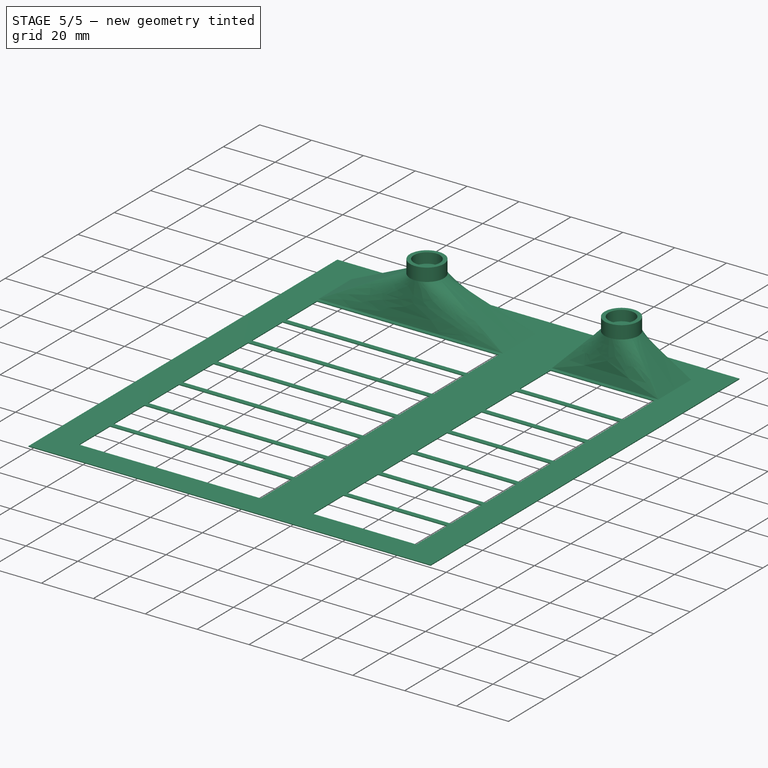
[diagram: stage 5 of 5 — iso view after this stage's code; geometry added in this stage tinted green]
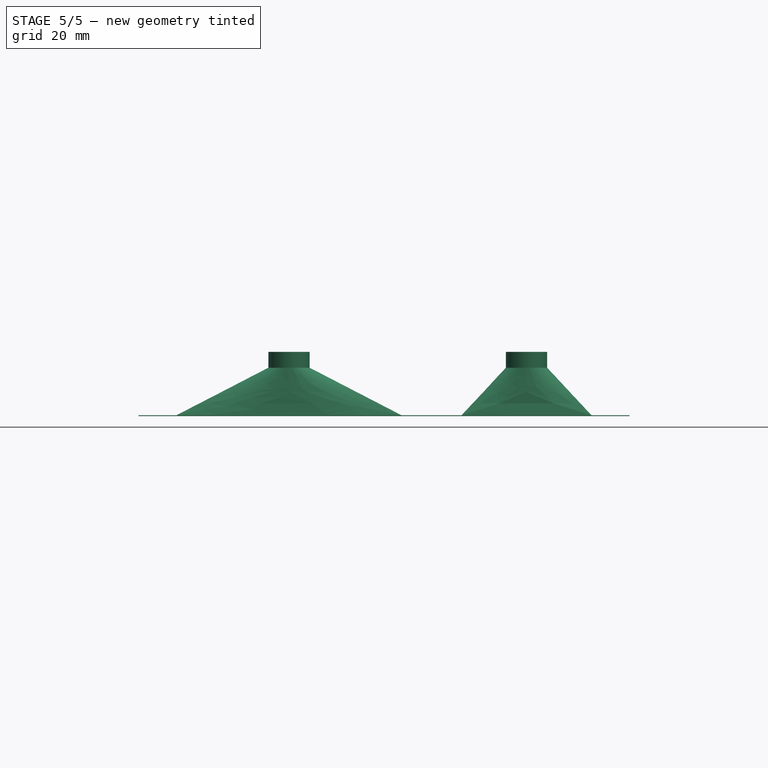
[diagram: stage 5 of 5 — front view after this stage's code; geometry added in this stage tinted green]
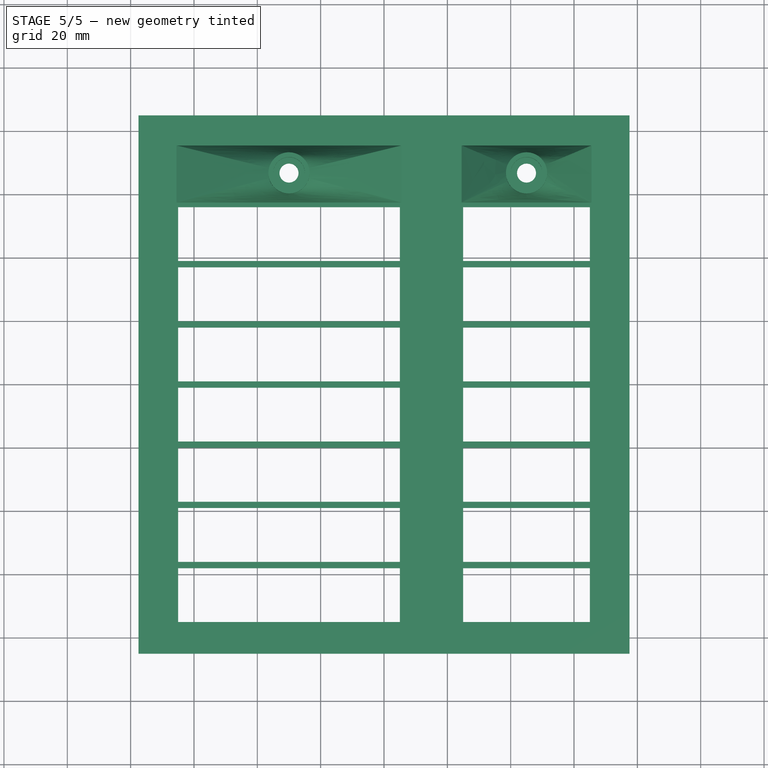
[diagram: stage 5 of 5 — top view after this stage's code; geometry added in this stage tinted green]
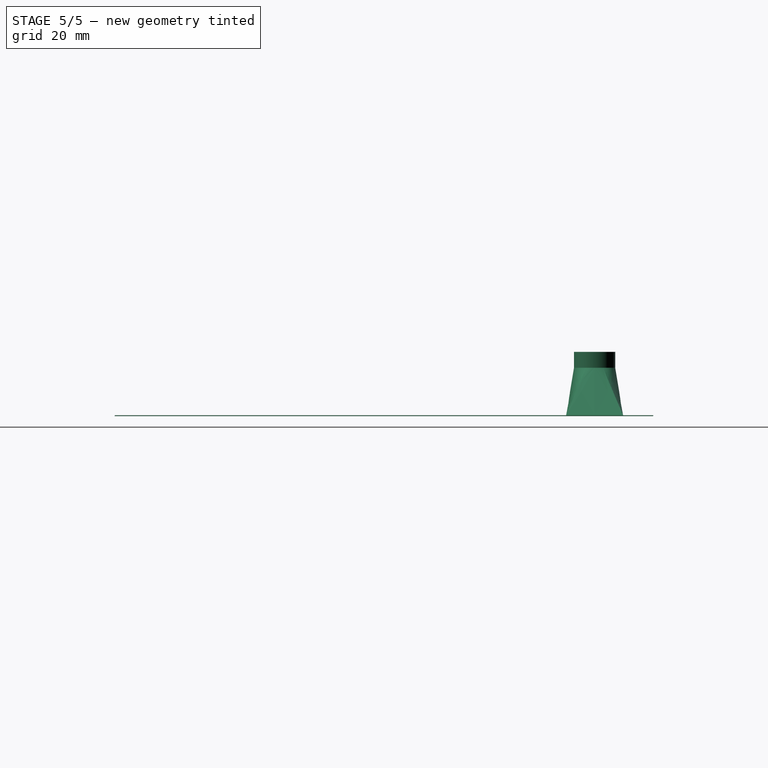
[diagram: stage 5 of 5 — right view after this stage's code; geometry added in this stage tinted green]
FEATURE [Sketcher::SketchObject] Sketch
  FullyConstrained = true
  MapMode = 5
  Support = -> [XY_Plane]
  sketch-geometry (72):
    g0: LineSegment StartX=-77.5 StartY=85 StartZ=0 EndX=77.5 EndY=85 EndZ=0
    g1: LineSegment StartX=77.5 StartY=85 StartZ=0 EndX=77.5 EndY=-85 EndZ=0
    g2: LineSegment StartX=77.5 StartY=-85 StartZ=0 EndX=-77.5 EndY=-85 EndZ=0
    g3: LineSegment StartX=-77.5 StartY=-85 StartZ=0 EndX=-77.5 EndY=85 EndZ=0
    g4: LineSegment StartX=-65 StartY=75 StartZ=0 EndX=65 EndY=75 EndZ=0
    g5: LineSegment StartX=65 StartY=75 StartZ=0 EndX=65 EndY=-75 EndZ=0
    g6: LineSegment StartX=65 StartY=-75 StartZ=0 EndX=-65 EndY=-75 EndZ=0
    g7: LineSegment StartX=-65 StartY=-75 StartZ=0 EndX=-65 EndY=75 EndZ=0
    g8: LineSegment StartX=-65 StartY=75 StartZ=0 EndX=5 EndY=75 EndZ=0
    g9: LineSegment StartX=5 StartY=75 StartZ=0 EndX=5 EndY=58 EndZ=0
    g10: LineSegment StartX=5 StartY=58 StartZ=0 EndX=-65 EndY=58 EndZ=0
    g11: LineSegment StartX=-65 StartY=58 StartZ=0 EndX=-65 EndY=75 EndZ=0
    g12: LineSegment StartX=25 StartY=75 StartZ=0 EndX=65 EndY=75 EndZ=0
    g13: LineSegment StartX=65 StartY=75 StartZ=0 EndX=65 EndY=58 EndZ=0
    g14: LineSegment StartX=65 StartY=58 StartZ=0 EndX=25 EndY=58 EndZ=0
    g15: LineSegment StartX=25 StartY=58 StartZ=0 EndX=25 EndY=75 EndZ=0
    g16: LineSegment StartX=-65 StartY=56 StartZ=0 EndX=5 EndY=56 EndZ=0
    g17: LineSegment StartX=5 StartY=56 StartZ=0 EndX=5 EndY=39 EndZ=0
    g18: LineSegment StartX=5 StartY=39 StartZ=0 EndX=-65 EndY=39 EndZ=0
    g19: LineSegment StartX=-65 StartY=39 StartZ=0 EndX=-65 EndY=56 EndZ=0
    g20: LineSegment StartX=25 StartY=56 StartZ=0 EndX=65 EndY=56 EndZ=0
    g21: LineSegment StartX=65 StartY=56 StartZ=0 EndX=65 EndY=39 EndZ=0
    g22: LineSegment StartX=65 StartY=39 StartZ=0 EndX=25 EndY=39 EndZ=0
    g23: LineSegment StartX=25 StartY=39 StartZ=0 EndX=25 EndY=56 EndZ=0
    g24: LineSegment StartX=-65 StartY=37 StartZ=0 EndX=5 EndY=37 EndZ=0
    g25: LineSegment StartX=5 StartY=37 StartZ=0 EndX=5 EndY=20 EndZ=0
    g26: LineSegment StartX=5 StartY=20 StartZ=0 EndX=-65 EndY=20 EndZ=0
    g27: LineSegment StartX=-65 StartY=20 StartZ=0 EndX=-65 EndY=37 EndZ=0
    g28: LineSegment StartX=25 StartY=37 StartZ=0 EndX=65 EndY=37 EndZ=0
    g29: LineSegment StartX=65 StartY=37 StartZ=0 EndX=65 EndY=20 EndZ=0
    g30: LineSegment StartX=65 StartY=20 StartZ=0 EndX=25 EndY=20 EndZ=0
    g31: LineSegment StartX=25 StartY=20 StartZ=0 EndX=25 EndY=37 EndZ=0
    g32: LineSegment StartX=-65 StartY=18 StartZ=0 EndX=5 EndY=18 EndZ=0
    g33: LineSegment StartX=5 StartY=18 StartZ=0 EndX=5 EndY=1 EndZ=0
    g34: LineSegment StartX=5 StartY=1 StartZ=0 EndX=-65 EndY=1 EndZ=0
    g35: LineSegment StartX=-65 StartY=1 StartZ=0 EndX=-65 EndY=18 EndZ=0
    g36: LineSegment StartX=25 StartY=18 StartZ=0 EndX=65 EndY=18 EndZ=0
    g37: LineSegment StartX=65 StartY=18 StartZ=0 EndX=65 EndY=1 EndZ=0
    g38: LineSegment StartX=65 StartY=1 StartZ=0 EndX=25 EndY=1 EndZ=0
    g39: LineSegment StartX=25 StartY=1 StartZ=0 EndX=25 EndY=18 EndZ=0
    g40: LineSegment StartX=-65 StartY=-1 StartZ=0 EndX=5 EndY=-1 EndZ=0
    g41: LineSegment StartX=5 StartY=-1 StartZ=0 EndX=5 EndY=-18 EndZ=0
    g42: LineSegment StartX=5 StartY=-18 StartZ=0 EndX=-65 EndY=-18 EndZ=0
    g43: LineSegment StartX=-65 StartY=-18 StartZ=0 EndX=-65 EndY=-1 EndZ=0
    g44: LineSegment StartX=25 StartY=-1 StartZ=0 EndX=65 EndY=-1 EndZ=0
    g45: LineSegment StartX=65 StartY=-1 StartZ=0 EndX=65 EndY=-18 EndZ=0
    g46: LineSegment StartX=65 StartY=-18 StartZ=0 EndX=25 EndY=-18 EndZ=0
    g47: LineSegment StartX=25 StartY=-18 StartZ=0 EndX=25 EndY=-1 EndZ=0
    g48: LineSegment StartX=-65 StartY=-20 StartZ=0 EndX=5 EndY=-20 EndZ=0
    g49: LineSegment StartX=5 StartY=-20 StartZ=0 EndX=5 EndY=-37 EndZ=0
    g50: LineSegment StartX=5 StartY=-37 StartZ=0 EndX=-65 EndY=-37 EndZ=0
    g51: LineSegment StartX=-65 StartY=-37 StartZ=0 EndX=-65 EndY=-20 EndZ=0
    g52: LineSegment StartX=25 StartY=-20 StartZ=0 EndX=65 EndY=-20 EndZ=0
    g53: LineSegment StartX=65 StartY=-20 StartZ=0 EndX=65 EndY=-37 EndZ=0
    g54: LineSegment StartX=65 StartY=-37 StartZ=0 EndX=25 EndY=-37 EndZ=0
    g55: LineSegment StartX=25 StartY=-37 StartZ=0 EndX=25 EndY=-20 EndZ=0
    g56: LineSegment StartX=-65 StartY=-39 StartZ=0 EndX=5 EndY=-39 EndZ=0
    g57: LineSegment StartX=5 StartY=-39 StartZ=0 EndX=5 EndY=-56 EndZ=0
    g58: LineSegment StartX=5 StartY=-56 StartZ=0 EndX=-65 EndY=-56 EndZ=0
    g59: LineSegment StartX=-65 StartY=-56 StartZ=0 EndX=-65 EndY=-39 EndZ=0
    g60: LineSegment StartX=25 StartY=-39 StartZ=0 EndX=65 EndY=-39 EndZ=0
    g61: LineSegment StartX=65 StartY=-39 StartZ=0 EndX=65 EndY=-56 EndZ=0
    g62: LineSegment StartX=65 StartY=-56 StartZ=0 EndX=25 EndY=-56 EndZ=0
    g63: LineSegment StartX=25 StartY=-56 StartZ=0 EndX=25 EndY=-39 EndZ=0
    g64: LineSegment StartX=-65 StartY=-58 StartZ=0 EndX=5 EndY=-58 EndZ=0
    g65: LineSegment StartX=5 StartY=-58 StartZ=0 EndX=5 EndY=-75 EndZ=0
    g66: LineSegment StartX=5 StartY=-75 StartZ=0 EndX=-65 EndY=-75 EndZ=0
    g67: LineSegment StartX=-65 StartY=-75 StartZ=0 EndX=-65 EndY=-58 EndZ=0
    g68: LineSegment StartX=25 StartY=-58 StartZ=0 EndX=65 EndY=-58 EndZ=0
    g69: LineSegment StartX=65 StartY=-58 StartZ=0 EndX=65 EndY=-75 EndZ=0
    g70: LineSegment StartX=65 StartY=-75 StartZ=0 EndX=25 EndY=-75 EndZ=0
    g71: LineSegment StartX=25 StartY=-75 StartZ=0 EndX=25 EndY=-58 EndZ=0
  constraints (212):
    c: Coincident(g0,g1)
    c: Coincident(g1,g2)
    c: Coincident(g2,g3)
    c: Coincident(g3,g0)
    c: Horizontal(g2)
    c: Vertical(g1)
    c: Symmetric(g0,g0,g-2)
    c: Symmetric(g0,g2,g-1)
    c: Distance(g0) = 155
    c: Distance(g1) = 170
    c: Coincident(g4,g5)
    c: Coincident(g5,g6)
    c: Coincident(g6,g7)
    c: Horizontal(g6)
    c: Vertical(g5)
    c: Symmetric(g4,g4,g-2)
    c: Symmetric(g4,g6,g-1)
    c: Distance(g4) = 130
    c: Distance(g5) = 150
    c: Coincident(g8,g9)
    c: Coincident(g9,g10)
    c: Coincident(g10,g11)
    c: Coincident(g11,g8)
    c: Horizontal(g8)
    c: Horizontal(g10)
    c: Vertical(g9)
    c: Vertical(g11)
    c: Distance(g8) = 70
    c: Distance(g9) = 17
    c: Coincident(g12,g13)
    c: Coincident(g13,g14)
    c: Coincident(g14,g15)
    c: Coincident(g15,g12)
    c: Horizontal(g12)
    c: Horizontal(g14)
    c: Vertical(g13)
    c: Vertical(g15)
    c: Distance(g12) = 40
    c: Distance(g13) = 17
    c: Coincident(g8,g4)
    c: Coincident(g12,g4)
    c: Vertical(g7)
    c: Equal(g7,g5)
    c: Coincident(g16,g17)
    c: Coincident(g17,g18)
    c: Coincident(g18,g19)
    c: Coincident(g19,g16)
    c: Horizontal(g16)
    c: Horizontal(g18)
    c: Vertical(g17)
    c: Vertical(g19)
    c: Equal(g8,g16) = 70
    c: Equal(g9,g17) = 20
    c: Coincident(g20,g21)
    c: Coincident(g21,g22)
    c: Coincident(g22,g23)
    c: Coincident(g23,g20)
    c: Horizontal(g20)
    c: Horizontal(g22)
    c: Vertical(g21)
    c: Vertical(g23)
    c: Equal(g12,g20) = 40
    c: Equal(g13,g21) = 20
    c: DistanceX(g16,g4) = 0
    c: DistanceX(g20,g4) = 0
    c: DistanceY(g16,g9) = 2
    c: DistanceY(g20,g14) = 2
    c: Coincident(g24,g25)
    c: Coincident(g25,g26)
    c: Coincident(g26,g27)
    c: Coincident(g27,g24)
    c: Horizontal(g24)
    c: Horizontal(g26)
    c: Vertical(g25)
    c: Vertical(g27)
    c: Equal(g8,g24) = 70
    c: Equal(g9,g25) = 20
    c: Coincident(g28,g29)
    c: Coincident(g29,g30)
    c: Coincident(g30,g31)
    c: Coincident(g31,g28)
    c: Horizontal(g28)
    c: Horizontal(g30)
    c: Vertical(g29)
    c: Vertical(g31)
    c: Equal(g12,g28) = 40
    c: Equal(g13,g29) = 20
    c: Coincident(g32,g33)
    c: Coincident(g33,g34)
    c: Coincident(g34,g35)
    c: Coincident(g35,g32)
    c: Horizontal(g32)
    c: Horizontal(g34)
    c: Vertical(g33)
    c: Vertical(g35)
    c: Equal(g24,g32) = 70
    c: Equal(g25,g33) = 20
    c: Coincident(g36,g37)
    c: Coincident(g37,g38)
    c: Coincident(g38,g39)
    c: Coincident(g39,g36)
    c: Horizontal(g36)
    c: Horizontal(g38)
    c: Vertical(g37)
    c: Vertical(g39)
    c: Equal(g28,g36) = 40
    c: Equal(g29,g37) = 20
    c: DistanceY(g32,g25) = 2
    c: DistanceY(g36,g30) = 2
    c: DistanceX(g4,g24) = 0
    c: DistanceX(g4,g28) = 0
    c: DistanceX(g4,g36) = 0
    c: DistanceY(g28,g22) = 2
    c: DistanceY(g24,g17) = 2
    c: DistanceX(g32,g4) = 0
    c: Coincident(g41,g42)
    c: Coincident(g42,g43)
    c: Coincident(g43,g40)
    c: Horizontal(g40)
    c: Horizontal(g42)
    c: Vertical(g41)
    c: Vertical(g43)
    c: Equal(g8,g40) = 70
    c: Equal(g9,g41) = 20
    c: Coincident(g44,g45)
    c: Coincident(g45,g46)
    c: Coincident(g46,g47)
    c: Coincident(g47,g44)
    c: Horizontal(g44)
    c: Horizontal(g46)
    c: Vertical(g45)
    c: Vertical(g47)
    c: Equal(g12,g44) = 40
    c: Equal(g13,g45) = 20
    c: Coincident(g48,g49)
    c: Coincident(g49,g50)
    c: Coincident(g50,g51)
    c: Coincident(g51,g48)
    c: Horizontal(g48)
    c: Horizontal(g50)
    c: Vertical(g49)
    c: Vertical(g51)
    c: Equal(g40,g48) = 70
    c: Equal(g41,g49) = 20
    c: Coincident(g52,g53)
    c: Coincident(g53,g54)
    c: Coincident(g54,g55)
    c: Coincident(g55,g52)
    c: Horizontal(g52)
    c: Horizontal(g54)
    c: Vertical(g53)
    c: Vertical(g55)
    c: Equal(g44,g52) = 40
    c: Equal(g45,g53) = 20
    c: DistanceY(g48,g41) = 2
    c: DistanceY(g52,g46) = 2
    c: Coincident(g56,g57)
    c: Coincident(g57,g58)
    c: Coincident(g58,g59)
    c: Coincident(g59,g56)
    c: Horizontal(g56)
    c: Horizontal(g58)
    c: Vertical(g57)
    c: Vertical(g59)
    c: Equal(g40,g56) = 70
    c: Equal(g41,g57) = 20
    c: Coincident(g60,g61)
    c: Coincident(g61,g62)
    c: Coincident(g62,g63)
    c: Coincident(g63,g60)
    c: Horizontal(g60)
    c: Horizontal(g62)
    c: Vertical(g61)
    c: Vertical(g63)
    c: Equal(g44,g60) = 40
    c: Equal(g45,g61) = 20
    c: Coincident(g64,g65)
    c: Coincident(g65,g66)
    c: Coincident(g66,g67)
    c: Coincident(g67,g64)
    c: Horizontal(g64)
    c: Horizontal(g66)
    c: Vertical(g65)
    c: Vertical(g67)
    c: Equal(g56,g64) = 70
    c: Equal(g57,g65) = 20
    c: Coincident(g68,g69)
    c: Coincident(g69,g70)
    c: Coincident(g70,g71)
    c: Coincident(g71,g68)
    c: Horizontal(g68)
    c: Horizontal(g70)
    c: Vertical(g69)
    c: Vertical(g71)
    c: Equal(g60,g68) = 40
    c: Equal(g61,g69) = 20
    c: DistanceY(g64,g57) = 2
    c: DistanceY(g68,g62) = 2
    c: DistanceY(g60,g54) = 2
    c: DistanceY(g56,g49) = 2
    c: DistanceX(g4,g48) = 0
    c: DistanceX(g56,g4) = 0
    c: DistanceX(g64,g4) = 0
    c: DistanceX(g4,g40) = 0
    c: DistanceY(g44,g38) = 2
    c: DistanceX(g4,g52) = 0
    c: DistanceX(g60,g4) = 0
    c: DistanceX(g68,g4) = 0
    c: Equal(g43,g41)
    c: Equal(g40,g42)
    c: DistanceY(g40,g34) = 2
    c: DistanceX(g44,g4) = 0
FEATURE [PartDesign::Pad] Pad
  Direction = (0,0,1)
  Length = 0.3
  Length2 = 100
  Profile = -> Sketch
  ReferenceAxis = -> Sketch [N_Axis]
  Type = 0
FEATURE [PartDesign::Body] Body  label="Baseplate"
  Group = -> [Sketch,Pad]
  Origin = -> Origin
  Tip = -> Pad
FEATURE [PartDesign::ShapeBinder] ShapeBinder
  Placement = pos=(0,0,0.3) rot=(0,0,1;0rad)
  Support = -> [Pad]
  TraceSupport = false
FEATURE [Sketcher::SketchObject] Sketch001
  ExternalGeometry = -> [ShapeBinder]
  FullyConstrained = true
  MapMode = 5
  Placement = pos=(0,0,0.3) rot=(0,0,1;0rad)
  Support = -> [ShapeBinder]
  sketch-geometry (8):
    g0: LineSegment StartX=-65.5 StartY=75.5 StartZ=0 EndX=5.5 EndY=75.5 EndZ=0
    g1: LineSegment StartX=5.5 StartY=75.5 StartZ=0 EndX=5.5 EndY=57.5 EndZ=0
    g2: LineSegment StartX=5.5 StartY=57.5 StartZ=0 EndX=-65.5 EndY=57.5 EndZ=0
    g3: LineSegment StartX=-65.5 StartY=57.5 StartZ=0 EndX=-65.5 EndY=75.5 EndZ=0
    g4: LineSegment StartX=-65 StartY=75 StartZ=0 EndX=5 EndY=75 EndZ=0
    g5: LineSegment StartX=5 StartY=75 StartZ=0 EndX=5 EndY=58 EndZ=0
    g6: LineSegment StartX=5 StartY=58 StartZ=0 EndX=-65 EndY=58 EndZ=0
    g7: LineSegment StartX=-65 StartY=58 StartZ=0 EndX=-65 EndY=75 EndZ=0
  constraints (22):
    c: Coincident(g0,g1)
    c: Coincident(g1,g2)
    c: Coincident(g2,g3)
    c: Coincident(g3,g0)
    c: Horizontal(g0)
    c: Horizontal(g2)
    c: Vertical(g1)
    c: Vertical(g3)
    c: DistanceY(g-4,g0) = 0.5
    c: DistanceX(g0,g-4) = 0.5
    c: DistanceY(g2,g-6) = 0.5
    c: DistanceX(g-5,g0) = 0.5
    c: Coincident(g4,g5)
    c: Coincident(g5,g6)
    c: Coincident(g6,g7)
    c: Coincident(g7,g4)
    c: Horizontal(g4)
    c: Horizontal(g6)
    c: Vertical(g5)
    c: Vertical(g7)
    c: Coincident(g4,g-4)
    c: Coincident(g5,g-6)
FEATURE [Sketcher::SketchObject] Sketch002
  AttachmentOffset = pos=(0,0,15) rot=(0,0,1;0rad)
  ExternalGeometry = -> [Sketch001]
  FullyConstrained = true
  MapMode = 5
  Placement = pos=(0,0,15.3) rot=(0,0,1;0rad)
  Support = -> [ShapeBinder]
  sketch-geometry (4):
    g0: LineSegment StartX=-65.5 StartY=66.5 StartZ=0 EndX=5.5 EndY=66.5 EndZ=0
    g1: LineSegment StartX=-30 StartY=75.5 StartZ=0 EndX=-30 EndY=57.5 EndZ=0
    g2: Circle CenterX=-30 CenterY=66.5 CenterZ=0 NormalX=0 NormalY=0 NormalZ=1 AngleXU=0 Radius=6.5
    g3: Circle CenterX=-30 CenterY=66.5 CenterZ=0 NormalX=0 NormalY=0 NormalZ=1 AngleXU=0 Radius=6
  constraints (11):
    c: Symmetric(g-6,g-5,g1)
    c: Symmetric(g-6,g-6,g0)
    c: PointOnObject(g1,g-4)
    c: PointOnObject(g1,g-3)
    c: PointOnObject(g0,g-6)
    c: PointOnObject(g0,g-5)
    c: PointOnObject(g2,g0)
    c: PointOnObject(g2,g1)
    c: Diameter(g2) = 13
    c: Coincident(g3,g2)
    c: Diameter(g3) = 12
FEATURE [PartDesign::AdditiveLoft] AdditiveLoft
  Closed = false
  Placement = pos=(0,0,0.3) rot=(0,0,1;0rad)
  Profile = -> Sketch001
  Ruled = false
  Sections = -> [Sketch002]
FEATURE [Sketcher::SketchObject] Sketch003
  ExternalGeometry = -> [AdditiveLoft]
  FullyConstrained = true
  MapMode = 5
  Placement = pos=(0,0,15.3) rot=(0,0,1;0rad)
  Support = -> [AdditiveLoft]
  sketch-geometry (1):
    g0: Circle CenterX=-30 CenterY=66.5 CenterZ=0 NormalX=0 NormalY=0 NormalZ=1 AngleXU=0 Radius=6.5
  constraints (2):
    c: Coincident(g0,g-3)
    c: Diameter(g0) = 13
FEATURE [PartDesign::Pad] Pad001
  BaseFeature = -> AdditiveLoft
  Direction = (0,0,1)
  Length = 5
  Length2 = 100
  Placement = pos=(0,0,0.3) rot=(0,0,1;0rad)
  Profile = -> Sketch003
  ReferenceAxis = -> Sketch003 [N_Axis]
  Type = 0
FEATURE [Sketcher::SketchObject] Sketch004
  ExternalGeometry = -> [Pad001]
  FullyConstrained = true
  MapMode = 5
  Placement = pos=(0,0,20.3) rot=(0,0,1;0rad)
  Support = -> [Pad001]
  sketch-geometry (1):
    g0: Circle CenterX=-30 CenterY=66.5 CenterZ=0 NormalX=0 NormalY=0 NormalZ=1 AngleXU=0 Radius=5
  constraints (2):
    c: Coincident(g0,g-3)
    c: Diameter(g0) = 10
FEATURE [PartDesign::Pocket] Pocket
  BaseFeature = -> Pad001
  Direction = (0,0,-1)
  Length = 4
  Length2 = 100
  Placement = pos=(0,0,0.3) rot=(0,0,1;0rad)
  Profile = -> Sketch004
  ReferenceAxis = -> Sketch004 [N_Axis]
  Type = 0
FEATURE [PartDesign::Hole] Hole
  BaseFeature = -> Pocket
  CustomThreadClearance = 0
  Depth = 25
  DepthType = 0
  Diameter = 6
  DrillForDepth = false
  DrillPoint = 1
  DrillPointAngle = 118
  HoleCutCountersinkAngle = 90
  HoleCutCustomValues = false
  HoleCutDepth = 0
  HoleCutDiameter = 6.1
  HoleCutType = 0
  ModelThread = false
  Placement = pos=(0,0,0.3) rot=(0,0,1;0rad)
  Profile = -> Pocket [Face16]
  Tapered = false
  TaperedAngle = 90
  ThreadClass = 0
  ThreadDepth = 25
  ThreadDepthType = 0
  ThreadDirection = 0
  ThreadFit = 0
  ThreadSize = 0
  ThreadType = 0
  Threaded = false
  UseCustomThreadClearance = false
FEATURE [PartDesign::ShapeBinder] ShapeBinder001
  Placement = pos=(0,0,0.3) rot=(0,0,1;0rad)
  Support = -> [Pad002]
  TraceSupport = false
FEATURE [Sketcher::SketchObject] Sketch008
  ExternalGeometry = -> [ShapeBinder001]
  FullyConstrained = true
  MapMode = 5
  Placement = pos=(0,0,0.3) rot=(0,0,1;0rad)
  Support = -> [ShapeBinder001]
  sketch-geometry (8):
    g0: LineSegment StartX=-65.5 StartY=75.5 StartZ=0 EndX=5.5 EndY=75.5 EndZ=0
    g1: LineSegment StartX=5.5 StartY=75.5 StartZ=0 EndX=5.5 EndY=57.5 EndZ=0
    g2: LineSegment StartX=5.5 StartY=57.5 StartZ=0 EndX=-65.5 EndY=57.5 EndZ=0
    g3: LineSegment StartX=-65.5 StartY=57.5 StartZ=0 EndX=-65.5 EndY=75.5 EndZ=0
    g4: LineSegment StartX=-65 StartY=75 StartZ=0 EndX=5 EndY=75 EndZ=0
    g5: LineSegment StartX=5 StartY=75 StartZ=0 EndX=5 EndY=58 EndZ=0
    g6: LineSegment StartX=5 StartY=58 StartZ=0 EndX=-65 EndY=58 EndZ=0
    g7: LineSegment StartX=-65 StartY=58 StartZ=0 EndX=-65 EndY=75 EndZ=0
  constraints (22):
    c: Coincident(g0,g1)
    c: Coincident(g1,g2)
    c: Coincident(g2,g3)
    c: Coincident(g3,g0)
    c: Horizontal(g0)
    c: Horizontal(g2)
    c: Vertical(g1)
    c: Vertical(g3)
    c: DistanceY(g-4,g0) = 0.5
    c: DistanceX(g0,g-4) = 0.5
    c: DistanceY(g2,g-6) = 0.5
    c: DistanceX(g-5,g0) = 0.5
    c: Coincident(g4,g5)
    c: Coincident(g5,g6)
    c: Coincident(g6,g7)
    c: Coincident(g7,g4)
    c: Horizontal(g4)
    c: Horizontal(g6)
    c: Vertical(g5)
    c: Vertical(g7)
    c: Coincident(g4,g-4)
    c: Coincident(g5,g-6)
FEATURE [Sketcher::SketchObject] Sketch007
  AttachmentOffset = pos=(0,0,15) rot=(0,0,1;0rad)
  ExternalGeometry = -> [Sketch008]
  FullyConstrained = true
  MapMode = 5
  Placement = pos=(0,0,15.3) rot=(0,0,1;0rad)
  Support = -> [ShapeBinder001]
  sketch-geometry (4):
    g0: LineSegment StartX=-65.5 StartY=66.5 StartZ=0 EndX=5.5 EndY=66.5 EndZ=0
    g1: LineSegment StartX=-30 StartY=75.5 StartZ=0 EndX=-30 EndY=57.5 EndZ=0
    g2: Circle CenterX=-30 CenterY=66.5 CenterZ=0 NormalX=0 NormalY=0 NormalZ=1 AngleXU=0 Radius=6.5
    g3: Circle CenterX=-30 CenterY=66.5 CenterZ=0 NormalX=0 NormalY=0 NormalZ=1 AngleXU=0 Radius=6
  constraints (11):
    c: Symmetric(g-6,g-5,g1)
    c: Symmetric(g-6,g-6,g0)
    c: PointOnObject(g1,g-4)
    c: PointOnObject(g1,g-3)
    c: PointOnObject(g0,g-6)
    c: PointOnObject(g0,g-5)
    c: PointOnObject(g2,g0)
    c: PointOnObject(g2,g1)
    c: Diameter(g2) = 13
    c: Coincident(g3,g2)
    c: Diameter(g3) = 12
FEATURE [PartDesign::AdditiveLoft] AdditiveLoft001
  Closed = false
  Placement = pos=(0,0,0.3) rot=(0,0,1;0rad)
  Profile = -> Sketch008
  Ruled = false
  Sections = -> [Sketch007]
FEATURE [Sketcher::SketchObject] Sketch009
  ExternalGeometry = -> [AdditiveLoft001]
  FullyConstrained = true
  MapMode = 5
  Placement = pos=(0,0,15.3) rot=(0,0,1;0rad)
  Support = -> [AdditiveLoft001]
  sketch-geometry (1):
    g0: Circle CenterX=-30 CenterY=66.5 CenterZ=0 NormalX=0 NormalY=0 NormalZ=1 AngleXU=0 Radius=6.5
  constraints (2):
    c: Coincident(g0,g-3)
    c: Diameter(g0) = 13
FEATURE [PartDesign::Pad] Pad003
  BaseFeature = -> AdditiveLoft001
  Direction = (0,0,1)
  Length = 5
  Length2 = 100
  Placement = pos=(0,0,0.3) rot=(0,0,1;0rad)
  Profile = -> Sketch009
  ReferenceAxis = -> Sketch009 [N_Axis]
  Type = 0
FEATURE [Sketcher::SketchObject] Sketch005
  ExternalGeometry = -> [Pad003]
  FullyConstrained = true
  MapMode = 5
  Placement = pos=(0,0,20.3) rot=(0,0,1;0rad)
  Support = -> [Pad003]
  sketch-geometry (1):
    g0: Circle CenterX=-30 CenterY=66.5 CenterZ=0 NormalX=0 NormalY=0 NormalZ=1 AngleXU=0 Radius=5
  constraints (2):
    c: Coincident(g0,g-3)
    c: Diameter(g0) = 10
FEATURE [PartDesign::Pocket] Pocket001
  BaseFeature = -> Pad003
  Direction = (0,0,-1)
  Length = 4
  Length2 = 100
  Placement = pos=(0,0,0.3) rot=(0,0,1;0rad)
  Profile = -> Sketch005
  ReferenceAxis = -> Sketch005 [N_Axis]
  Type = 0
FEATURE [PartDesign::Hole] Hole001
  BaseFeature = -> Pocket001
  CustomThreadClearance = 0
  Depth = 25
  DepthType = 0
  Diameter = 6
  DrillForDepth = false
  DrillPoint = 1
  DrillPointAngle = 118
  HoleCutCountersinkAngle = 90
  HoleCutCustomValues = false
  HoleCutDepth = 0
  HoleCutDiameter = 6.1
  HoleCutType = 0
  ModelThread = false
  Placement = pos=(0,0,0.3) rot=(0,0,1;0rad)
  Profile = -> Pocket001 [Face16]
  Tapered = false
  TaperedAngle = 90
  ThreadClass = 0
  ThreadDepth = 25
  ThreadDepthType = 0
  ThreadDirection = 0
  ThreadFit = 0
  ThreadSize = 0
  ThreadType = 0
  Threaded = false
  UseCustomThreadClearance = false
FEATURE [PartDesign::Body] Body002  label="Reflector002"
  Group = -> [ShapeBinder001,Sketch008,Sketch007,AdditiveLoft001,Sketch009,Pad003,Sketch005,Pocket001,Hole001]
  Origin = -> Origin002
  Placement = pos=(0,-19,0) rot=(0,0,1;0rad)
  Tip = -> Hole001
FEATURE [Sketcher::SketchObject] Sketch010
  FullyConstrained = true
  MapMode = 5
  Support = -> [XY_Plane004]
  sketch-geometry (72):
    g0: LineSegment StartX=-77.5 StartY=85 StartZ=0 EndX=77.5 EndY=85 EndZ=0
    g1: LineSegment StartX=77.5 StartY=85 StartZ=0 EndX=77.5 EndY=-85 EndZ=0
    g2: LineSegment StartX=77.5 StartY=-85 StartZ=0 EndX=-77.5 EndY=-85 EndZ=0
    g3: LineSegment StartX=-77.5 StartY=-85 StartZ=0 EndX=-77.5 EndY=85 EndZ=0
    g4: LineSegment StartX=-65 StartY=75 StartZ=0 EndX=65 EndY=75 EndZ=0
    g5: LineSegment StartX=65 StartY=75 StartZ=0 EndX=65 EndY=-75 EndZ=0
    g6: LineSegment StartX=65 StartY=-75 StartZ=0 EndX=-65 EndY=-75 EndZ=0
    g7: LineSegment StartX=-65 StartY=-75 StartZ=0 EndX=-65 EndY=75 EndZ=0
    g8: LineSegment StartX=-65 StartY=75 StartZ=0 EndX=5 EndY=75 EndZ=0
    g9: LineSegment StartX=5 StartY=75 StartZ=0 EndX=5 EndY=58 EndZ=0
    g10: LineSegment StartX=5 StartY=58 StartZ=0 EndX=-65 EndY=58 EndZ=0
    g11: LineSegment StartX=-65 StartY=58 StartZ=0 EndX=-65 EndY=75 EndZ=0
    g12: LineSegment StartX=25 StartY=75 StartZ=0 EndX=65 EndY=75 EndZ=0
    g13: LineSegment StartX=65 StartY=75 StartZ=0 EndX=65 EndY=58 EndZ=0
    g14: LineSegment StartX=65 StartY=58 StartZ=0 EndX=25 EndY=58 EndZ=0
    g15: LineSegment StartX=25 StartY=58 StartZ=0 EndX=25 EndY=75 EndZ=0
    g16: LineSegment StartX=-65 StartY=56 StartZ=0 EndX=5 EndY=56 EndZ=0
    g17: LineSegment StartX=5 StartY=56 StartZ=0 EndX=5 EndY=39 EndZ=0
    g18: LineSegment StartX=5 StartY=39 StartZ=0 EndX=-65 EndY=39 EndZ=0
    g19: LineSegment StartX=-65 StartY=39 StartZ=0 EndX=-65 EndY=56 EndZ=0
    g20: LineSegment StartX=25 StartY=56 StartZ=0 EndX=65 EndY=56 EndZ=0
    g21: LineSegment StartX=65 StartY=56 StartZ=0 EndX=65 EndY=39 EndZ=0
    g22: LineSegment StartX=65 StartY=39 StartZ=0 EndX=25 EndY=39 EndZ=0
    g23: LineSegment StartX=25 StartY=39 StartZ=0 EndX=25 EndY=56 EndZ=0
    g24: LineSegment StartX=-65 StartY=37 StartZ=0 EndX=5 EndY=37 EndZ=0
    g25: LineSegment StartX=5 StartY=37 StartZ=0 EndX=5 EndY=20 EndZ=0
    g26: LineSegment StartX=5 StartY=20 StartZ=0 EndX=-65 EndY=20 EndZ=0
    g27: LineSegment StartX=-65 StartY=20 StartZ=0 EndX=-65 EndY=37 EndZ=0
    g28: LineSegment StartX=25 StartY=37 StartZ=0 EndX=65 EndY=37 EndZ=0
    g29: LineSegment StartX=65 StartY=37 StartZ=0 EndX=65 EndY=20 EndZ=0
    g30: LineSegment StartX=65 StartY=20 StartZ=0 EndX=25 EndY=20 EndZ=0
    g31: LineSegment StartX=25 StartY=20 StartZ=0 EndX=25 EndY=37 EndZ=0
    g32: LineSegment StartX=-65 StartY=18 StartZ=0 EndX=5 EndY=18 EndZ=0
    g33: LineSegment StartX=5 StartY=18 StartZ=0 EndX=5 EndY=1 EndZ=0
    g34: LineSegment StartX=5 StartY=1 StartZ=0 EndX=-65 EndY=1 EndZ=0
    g35: LineSegment StartX=-65 StartY=1 StartZ=0 EndX=-65 EndY=18 EndZ=0
    g36: LineSegment StartX=25 StartY=18 StartZ=0 EndX=65 EndY=18 EndZ=0
    g37: LineSegment StartX=65 StartY=18 StartZ=0 EndX=65 EndY=1 EndZ=0
    g38: LineSegment StartX=65 StartY=1 StartZ=0 EndX=25 EndY=1 EndZ=0
    g39: LineSegment StartX=25 StartY=1 StartZ=0 EndX=25 EndY=18 EndZ=0
    g40: LineSegment StartX=-65 StartY=-1 StartZ=0 EndX=5 EndY=-1 EndZ=0
    g41: LineSegment StartX=5 StartY=-1 StartZ=0 EndX=5 EndY=-18 EndZ=0
    g42: LineSegment StartX=5 StartY=-18 StartZ=0 EndX=-65 EndY=-18 EndZ=0
    g43: LineSegment StartX=-65 StartY=-18 StartZ=0 EndX=-65 EndY=-1 EndZ=0
    g44: LineSegment StartX=25 StartY=-1 StartZ=0 EndX=65 EndY=-1 EndZ=0
    g45: LineSegment StartX=65 StartY=-1 StartZ=0 EndX=65 EndY=-18 EndZ=0
    g46: LineSegment StartX=65 StartY=-18 StartZ=0 EndX=25 EndY=-18 EndZ=0
    g47: LineSegment StartX=25 StartY=-18 StartZ=0 EndX=25 EndY=-1 EndZ=0
    g48: LineSegment StartX=-65 StartY=-20 StartZ=0 EndX=5 EndY=-20 EndZ=0
    g49: LineSegment StartX=5 StartY=-20 StartZ=0 EndX=5 EndY=-37 EndZ=0
    g50: LineSegment StartX=5 StartY=-37 StartZ=0 EndX=-65 EndY=-37 EndZ=0
    g51: LineSegment StartX=-65 StartY=-37 StartZ=0 EndX=-65 EndY=-20 EndZ=0
    g52: LineSegment StartX=25 StartY=-20 StartZ=0 EndX=65 EndY=-20 EndZ=0
    g53: LineSegment StartX=65 StartY=-20 StartZ=0 EndX=65 EndY=-37 EndZ=0
    g54: LineSegment StartX=65 StartY=-37 StartZ=0 EndX=25 EndY=-37 EndZ=0
    g55: LineSegment StartX=25 StartY=-37 StartZ=0 EndX=25 EndY=-20 EndZ=0
    g56: LineSegment StartX=-65 StartY=-39 StartZ=0 EndX=5 EndY=-39 EndZ=0
    g57: LineSegment StartX=5 StartY=-39 StartZ=0 EndX=5 EndY=-56 EndZ=0
    g58: LineSegment StartX=5 StartY=-56 StartZ=0 EndX=-65 EndY=-56 EndZ=0
    g59: LineSegment StartX=-65 StartY=-56 StartZ=0 EndX=-65 EndY=-39 EndZ=0
    g60: LineSegment StartX=25 StartY=-39 StartZ=0 EndX=65 EndY=-39 EndZ=0
    g61: LineSegment StartX=65 StartY=-39 StartZ=0 EndX=65 EndY=-56 EndZ=0
    g62: LineSegment StartX=65 StartY=-56 StartZ=0 EndX=25 EndY=-56 EndZ=0
    g63: LineSegment StartX=25 StartY=-56 StartZ=0 EndX=25 EndY=-39 EndZ=0
    g64: LineSegment StartX=-65 StartY=-58 StartZ=0 EndX=5 EndY=-58 EndZ=0
    g65: LineSegment StartX=5 StartY=-58 StartZ=0 EndX=5 EndY=-75 EndZ=0
    g66: LineSegment StartX=5 StartY=-75 StartZ=0 EndX=-65 EndY=-75 EndZ=0
    g67: LineSegment StartX=-65 StartY=-75 StartZ=0 EndX=-65 EndY=-58 EndZ=0
    g68: LineSegment StartX=25 StartY=-58 StartZ=0 EndX=65 EndY=-58 EndZ=0
    g69: LineSegment StartX=65 StartY=-58 StartZ=0 EndX=65 EndY=-75 EndZ=0
    g70: LineSegment StartX=65 StartY=-75 StartZ=0 EndX=25 EndY=-75 EndZ=0
    g71: LineSegment StartX=25 StartY=-75 StartZ=0 EndX=25 EndY=-58 EndZ=0
  constraints (212):
    c: Coincident(g0,g1)
    c: Coincident(g1,g2)
    c: Coincident(g2,g3)
    c: Coincident(g3,g0)
    c: Horizontal(g2)
    c: Vertical(g1)
    c: Symmetric(g0,g0,g-2)
    c: Symmetric(g0,g2,g-1)
    c: Distance(g0) = 155
    c: Distance(g1) = 170
    c: Coincident(g4,g5)
    c: Coincident(g5,g6)
    c: Coincident(g6,g7)
    c: Horizontal(g6)
    c: Vertical(g5)
    c: Symmetric(g4,g4,g-2)
    c: Symmetric(g4,g6,g-1)
    c: Distance(g4) = 130
    c: Distance(g5) = 150
    c: Coincident(g8,g9)
    c: Coincident(g9,g10)
    c: Coincident(g10,g11)
    c: Coincident(g11,g8)
    c: Horizontal(g8)
    c: Horizontal(g10)
    c: Vertical(g9)
    c: Vertical(g11)
    c: Distance(g8) = 70
    c: Distance(g9) = 17
    c: Coincident(g12,g13)
    c: Coincident(g13,g14)
    c: Coincident(g14,g15)
    c: Coincident(g15,g12)
    c: Horizontal(g12)
    c: Horizontal(g14)
    c: Vertical(g13)
    c: Vertical(g15)
    c: Distance(g12) = 40
    c: Distance(g13) = 17
    c: Coincident(g8,g4)
    c: Coincident(g12,g4)
    c: Vertical(g7)
    c: Equal(g7,g5)
    c: Coincident(g16,g17)
    c: Coincident(g17,g18)
    c: Coincident(g18,g19)
    c: Coincident(g19,g16)
    c: Horizontal(g16)
    c: Horizontal(g18)
    c: Vertical(g17)
    c: Vertical(g19)
    c: Equal(g8,g16) = 70
    c: Equal(g9,g17) = 20
    c: Coincident(g20,g21)
    c: Coincident(g21,g22)
    c: Coincident(g22,g23)
    c: Coincident(g23,g20)
    c: Horizontal(g20)
    c: Horizontal(g22)
    c: Vertical(g21)
    c: Vertical(g23)
    c: Equal(g12,g20) = 40
    c: Equal(g13,g21) = 20
    c: DistanceX(g16,g4) = 0
    c: DistanceX(g20,g4) = 0
    c: DistanceY(g16,g9) = 2
    c: DistanceY(g20,g14) = 2
    c: Coincident(g24,g25)
    c: Coincident(g25,g26)
    c: Coincident(g26,g27)
    c: Coincident(g27,g24)
    c: Horizontal(g24)
    c: Horizontal(g26)
    c: Vertical(g25)
    c: Vertical(g27)
    c: Equal(g8,g24) = 70
    c: Equal(g9,g25) = 20
    c: Coincident(g28,g29)
    c: Coincident(g29,g30)
    c: Coincident(g30,g31)
    c: Coincident(g31,g28)
    c: Horizontal(g28)
    c: Horizontal(g30)
    c: Vertical(g29)
    c: Vertical(g31)
    c: Equal(g12,g28) = 40
    c: Equal(g13,g29) = 20
    c: Coincident(g32,g33)
    c: Coincident(g33,g34)
    c: Coincident(g34,g35)
    c: Coincident(g35,g32)
    c: Horizontal(g32)
    c: Horizontal(g34)
    c: Vertical(g33)
    c: Vertical(g35)
    c: Equal(g24,g32) = 70
    c: Equal(g25,g33) = 20
    c: Coincident(g36,g37)
    c: Coincident(g37,g38)
    c: Coincident(g38,g39)
    c: Coincident(g39,g36)
    c: Horizontal(g36)
    c: Horizontal(g38)
    c: Vertical(g37)
    c: Vertical(g39)
    c: Equal(g28,g36) = 40
    c: Equal(g29,g37) = 20
    c: DistanceY(g32,g25) = 2
    c: DistanceY(g36,g30) = 2
    c: DistanceX(g4,g24) = 0
    c: DistanceX(g4,g28) = 0
    c: DistanceX(g4,g36) = 0
    c: DistanceY(g28,g22) = 2
    c: DistanceY(g24,g17) = 2
    c: DistanceX(g32,g4) = 0
    c: Coincident(g41,g42)
    c: Coincident(g42,g43)
    c: Coincident(g43,g40)
    c: Horizontal(g40)
    c: Horizontal(g42)
    c: Vertical(g41)
    c: Vertical(g43)
    c: Equal(g8,g40) = 70
    c: Equal(g9,g41) = 20
    c: Coincident(g44,g45)
    c: Coincident(g45,g46)
    c: Coincident(g46,g47)
    c: Coincident(g47,g44)
    c: Horizontal(g44)
    c: Horizontal(g46)
    c: Vertical(g45)
    c: Vertical(g47)
    c: Equal(g12,g44) = 40
    c: Equal(g13,g45) = 20
    c: Coincident(g48,g49)
    c: Coincident(g49,g50)
    c: Coincident(g50,g51)
    c: Coincident(g51,g48)
    c: Horizontal(g48)
    c: Horizontal(g50)
    c: Vertical(g49)
    c: Vertical(g51)
    c: Equal(g40,g48) = 70
    c: Equal(g41,g49) = 20
    c: Coincident(g52,g53)
    c: Coincident(g53,g54)
    c: Coincident(g54,g55)
    c: Coincident(g55,g52)
    c: Horizontal(g52)
    c: Horizontal(g54)
    c: Vertical(g53)
    c: Vertical(g55)
    c: Equal(g44,g52) = 40
    c: Equal(g45,g53) = 20
    c: DistanceY(g48,g41) = 2
    c: DistanceY(g52,g46) = 2
    c: Coincident(g56,g57)
    c: Coincident(g57,g58)
    c: Coincident(g58,g59)
    c: Coincident(g59,g56)
    c: Horizontal(g56)
    c: Horizontal(g58)
    c: Vertical(g57)
    c: Vertical(g59)
    c: Equal(g40,g56) = 70
    c: Equal(g41,g57) = 20
    c: Coincident(g60,g61)
    c: Coincident(g61,g62)
    c: Coincident(g62,g63)
    c: Coincident(g63,g60)
    c: Horizontal(g60)
    c: Horizontal(g62)
    c: Vertical(g61)
    c: Vertical(g63)
    c: Equal(g44,g60) = 40
    c: Equal(g45,g61) = 20
    c: Coincident(g64,g65)
    c: Coincident(g65,g66)
    c: Coincident(g66,g67)
    c: Coincident(g67,g64)
    c: Horizontal(g64)
    c: Horizontal(g66)
    c: Vertical(g65)
    c: Vertical(g67)
    c: Equal(g56,g64) = 70
    c: Equal(g57,g65) = 20
    c: Coincident(g68,g69)
    c: Coincident(g69,g70)
    c: Coincident(g70,g71)
    c: Coincident(g71,g68)
    c: Horizontal(g68)
    c: Horizontal(g70)
    c: Vertical(g69)
    c: Vertical(g71)
    c: Equal(g60,g68) = 40
    c: Equal(g61,g69) = 20
    c: DistanceY(g64,g57) = 2
    c: DistanceY(g68,g62) = 2
    c: DistanceY(g60,g54) = 2
    c: DistanceY(g56,g49) = 2
    c: DistanceX(g4,g48) = 0
    c: DistanceX(g56,g4) = 0
    c: DistanceX(g64,g4) = 0
    c: DistanceX(g4,g40) = 0
    c: DistanceY(g44,g38) = 2
    c: DistanceX(g4,g52) = 0
    c: DistanceX(g60,g4) = 0
    c: DistanceX(g68,g4) = 0
    c: Equal(g43,g41)
    c: Equal(g40,g42)
    c: DistanceY(g40,g34) = 2
    c: DistanceX(g44,g4) = 0
FEATURE [PartDesign::Pad] Pad004
  Direction = (0,0,1)
  Length = 0.3
  Length2 = 100
  Profile = -> Sketch010
  ReferenceAxis = -> Sketch010 [N_Axis]
  Type = 0
FEATURE [PartDesign::ShapeBinder] ShapeBinder002
  Placement = pos=(0,0,0.3) rot=(0,0,1;0rad)
  Support = -> [Pad004]
  TraceSupport = false
FEATURE [Sketcher::SketchObject] Sketch014
  ExternalGeometry = -> [ShapeBinder002]
  FullyConstrained = true
  MapMode = 5
  Placement = pos=(0,0,0.3) rot=(0,0,1;0rad)
  Support = -> [ShapeBinder002]
  sketch-geometry (8):
    g0: LineSegment StartX=-65.5 StartY=75.5 StartZ=0 EndX=5.5 EndY=75.5 EndZ=0
    g1: LineSegment StartX=5.5 StartY=75.5 StartZ=0 EndX=5.5 EndY=57.5 EndZ=0
    g2: LineSegment StartX=5.5 StartY=57.5 StartZ=0 EndX=-65.5 EndY=57.5 EndZ=0
    g3: LineSegment StartX=-65.5 StartY=57.5 StartZ=0 EndX=-65.5 EndY=75.5 EndZ=0
    g4: LineSegment StartX=-65 StartY=75 StartZ=0 EndX=5 EndY=75 EndZ=0
    g5: LineSegment StartX=5 StartY=75 StartZ=0 EndX=5 EndY=58 EndZ=0
    g6: LineSegment StartX=5 StartY=58 StartZ=0 EndX=-65 EndY=58 EndZ=0
    g7: LineSegment StartX=-65 StartY=58 StartZ=0 EndX=-65 EndY=75 EndZ=0
  constraints (22):
    c: Coincident(g0,g1)
    c: Coincident(g1,g2)
    c: Coincident(g2,g3)
    c: Coincident(g3,g0)
    c: Horizontal(g0)
    c: Horizontal(g2)
    c: Vertical(g1)
    c: Vertical(g3)
    c: DistanceY(g-4,g0) = 0.5
    c: DistanceX(g0,g-4) = 0.5
    c: DistanceY(g2,g-6) = 0.5
    c: DistanceX(g-5,g0) = 0.5
    c: Coincident(g4,g5)
    c: Coincident(g5,g6)
    c: Coincident(g6,g7)
    c: Coincident(g7,g4)
    c: Horizontal(g4)
    c: Horizontal(g6)
    c: Vertical(g5)
    c: Vertical(g7)
    c: Coincident(g4,g-4)
    c: Coincident(g5,g-6)
FEATURE [Sketcher::SketchObject] Sketch011
  AttachmentOffset = pos=(0,0,15) rot=(0,0,1;0rad)
  ExternalGeometry = -> [Sketch014]
  FullyConstrained = true
  MapMode = 5
  Placement = pos=(0,0,15.3) rot=(0,0,1;0rad)
  Support = -> [ShapeBinder002]
  sketch-geometry (4):
    g0: LineSegment StartX=-65.5 StartY=66.5 StartZ=0 EndX=5.5 EndY=66.5 EndZ=0
    g1: LineSegment StartX=-30 StartY=75.5 StartZ=0 EndX=-30 EndY=57.5 EndZ=0
    g2: Circle CenterX=-30 CenterY=66.5 CenterZ=0 NormalX=0 NormalY=0 NormalZ=1 AngleXU=0 Radius=6.5
    g3: Circle CenterX=-30 CenterY=66.5 CenterZ=0 NormalX=0 NormalY=0 NormalZ=1 AngleXU=0 Radius=6
  constraints (11):
    c: Symmetric(g-6,g-5,g1)
    c: Symmetric(g-6,g-6,g0)
    c: PointOnObject(g1,g-4)
    c: PointOnObject(g1,g-3)
    c: PointOnObject(g0,g-6)
    c: PointOnObject(g0,g-5)
    c: PointOnObject(g2,g0)
    c: PointOnObject(g2,g1)
    c: Diameter(g2) = 13
    c: Coincident(g3,g2)
    c: Diameter(g3) = 12
FEATURE [PartDesign::AdditiveLoft] AdditiveLoft002
  Closed = false
  Placement = pos=(0,0,0.3) rot=(0,0,1;0rad)
  Profile = -> Sketch014
  Ruled = false
  Sections = -> [Sketch011]
FEATURE [Sketcher::SketchObject] Sketch013
  ExternalGeometry = -> [AdditiveLoft002]
  FullyConstrained = true
  MapMode = 5
  Placement = pos=(0,0,15.3) rot=(0,0,1;0rad)
  Support = -> [AdditiveLoft002]
  sketch-geometry (1):
    g0: Circle CenterX=-30 CenterY=66.5 CenterZ=0 NormalX=0 NormalY=0 NormalZ=1 AngleXU=0 Radius=6.5
  constraints (2):
    c: Coincident(g0,g-3)
    c: Diameter(g0) = 13
FEATURE [PartDesign::Pad] Pad005
  BaseFeature = -> AdditiveLoft002
  Direction = (0,0,1)
  Length = 5
  Length2 = 100
  Placement = pos=(0,0,0.3) rot=(0,0,1;0rad)
  Profile = -> Sketch013
  ReferenceAxis = -> Sketch013 [N_Axis]
  Type = 0
FEATURE [Sketcher::SketchObject] Sketch012
  ExternalGeometry = -> [Pad005]
  FullyConstrained = true
  MapMode = 5
  Placement = pos=(0,0,20.3) rot=(0,0,1;0rad)
  Support = -> [Pad005]
  sketch-geometry (1):
    g0: Circle CenterX=-30 CenterY=66.5 CenterZ=0 NormalX=0 NormalY=0 NormalZ=1 AngleXU=0 Radius=5
  constraints (2):
    c: Coincident(g0,g-3)
    c: Diameter(g0) = 10
FEATURE [PartDesign::Pocket] Pocket002
  BaseFeature = -> Pad005
  Direction = (0,0,-1)
  Length = 4
  Length2 = 100
  Placement = pos=(0,0,0.3) rot=(0,0,1;0rad)
  Profile = -> Sketch012
  ReferenceAxis = -> Sketch012 [N_Axis]
  Type = 0
FEATURE [PartDesign::Hole] Hole002
  BaseFeature = -> Pocket002
  CustomThreadClearance = 0
  Depth = 25
  DepthType = 0
  Diameter = 6
  DrillForDepth = false
  DrillPoint = 1
  DrillPointAngle = 118
  HoleCutCountersinkAngle = 90
  HoleCutCustomValues = false
  HoleCutDepth = 0
  HoleCutDiameter = 6.1
  HoleCutType = 0
  ModelThread = false
  Placement = pos=(0,0,0.3) rot=(0,0,1;0rad)
  Profile = -> Pocket002 [Face16]
  Tapered = false
  TaperedAngle = 90
  ThreadClass = 0
  ThreadDepth = 25
  ThreadDepthType = 0
  ThreadDirection = 0
  ThreadFit = 0
  ThreadSize = 0
  ThreadType = 0
  Threaded = false
  UseCustomThreadClearance = false
FEATURE [Sketcher::SketchObject] Sketch016
  ExternalGeometry = -> [Pad007]
  FullyConstrained = true
  MapMode = 5
  Placement = pos=(0,0,20.3) rot=(0,0,1;0rad)
  Support = -> [Pad007]
  sketch-geometry (1):
    g0: Circle CenterX=-30 CenterY=66.5 CenterZ=0 NormalX=0 NormalY=0 NormalZ=1 AngleXU=0 Radius=5
  constraints (2):
    c: Coincident(g0,g-3)
    c: Diameter(g0) = 10
FEATURE [PartDesign::Pocket] Pocket003
  BaseFeature = -> Pad007
  Direction = (0,0,-1)
  Length = 4
  Length2 = 100
  Placement = pos=(0,0,0.3) rot=(0,0,1;0rad)
  Profile = -> Sketch016
  ReferenceAxis = -> Sketch016 [N_Axis]
  Type = 0
FEATURE [PartDesign::Hole] Hole003
  BaseFeature = -> Pocket003
  CustomThreadClearance = 0
  Depth = 25
  DepthType = 0
  Diameter = 6
  DrillForDepth = false
  DrillPoint = 1
  DrillPointAngle = 118
  HoleCutCountersinkAngle = 90
  HoleCutCustomValues = false
  HoleCutDepth = 0
  HoleCutDiameter = 6.1
  HoleCutType = 0
  ModelThread = false
  Placement = pos=(0,0,0.3) rot=(0,0,1;0rad)
  Profile = -> Pocket003 [Face16]
  Tapered = false
  TaperedAngle = 90
  ThreadClass = 0
  ThreadDepth = 25
  ThreadDepthType = 0
  ThreadDirection = 0
  ThreadFit = 0
  ThreadSize = 0
  ThreadType = 0
  Threaded = false
  UseCustomThreadClearance = false
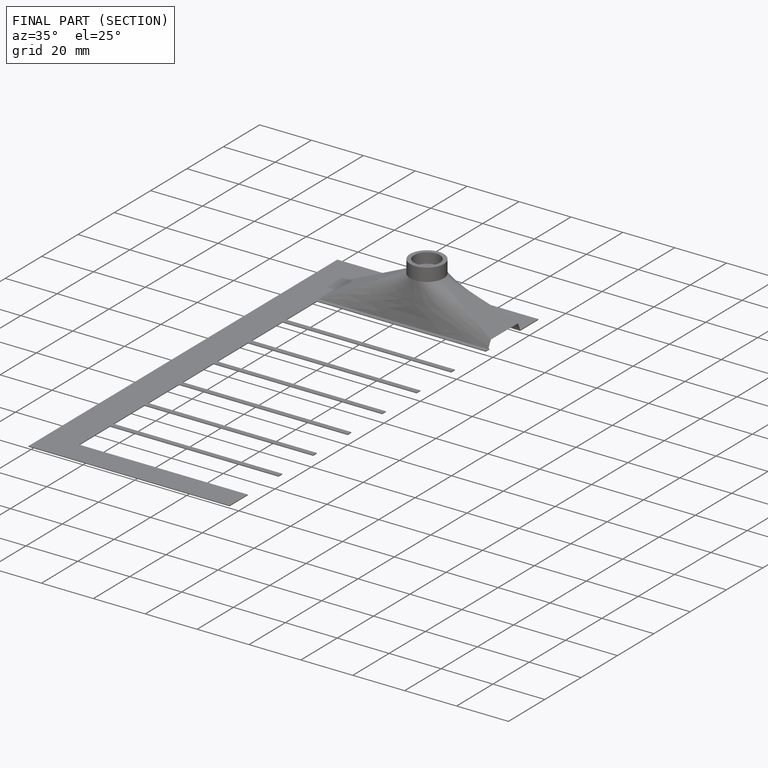
[diagram: finished part — half-section view (interior)]
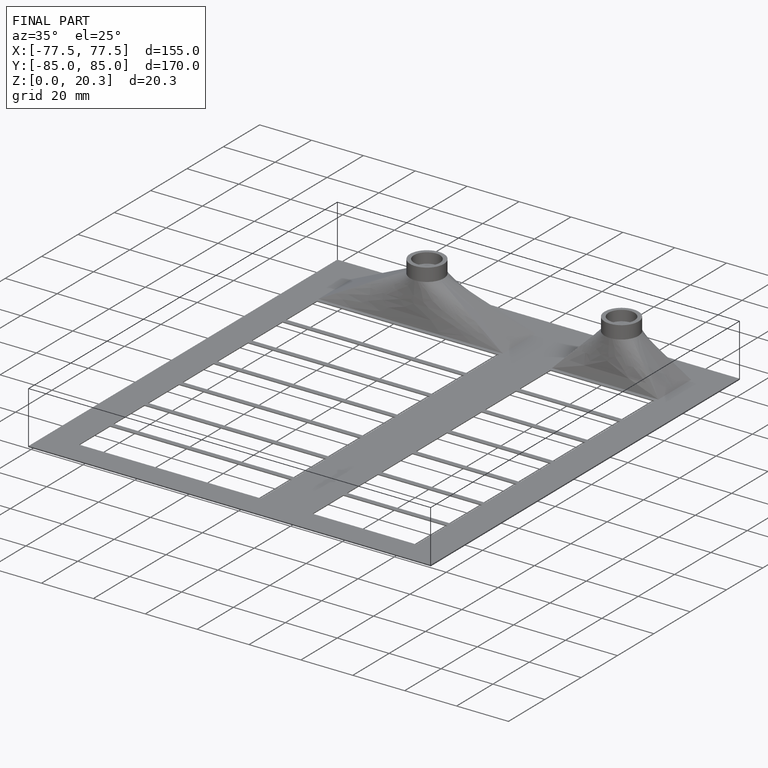
[diagram: finished part — iso view with bounding-box wireframe]
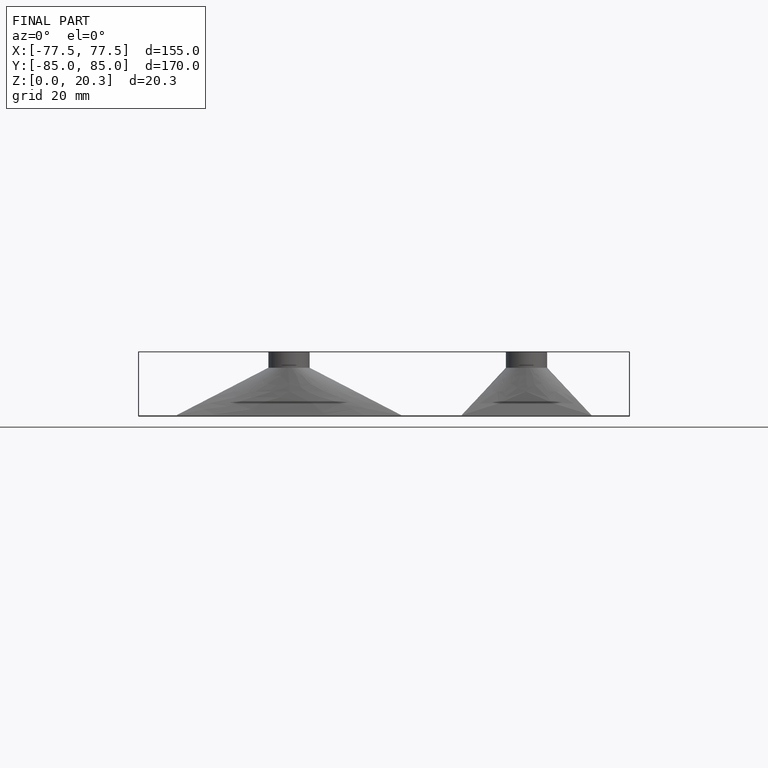
[diagram: finished part — front view with bounding-box wireframe]
